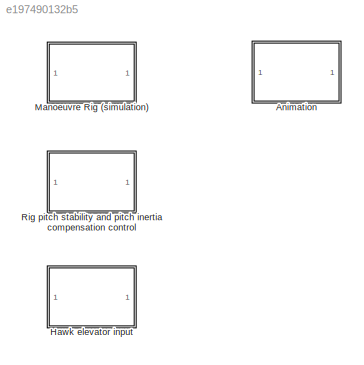
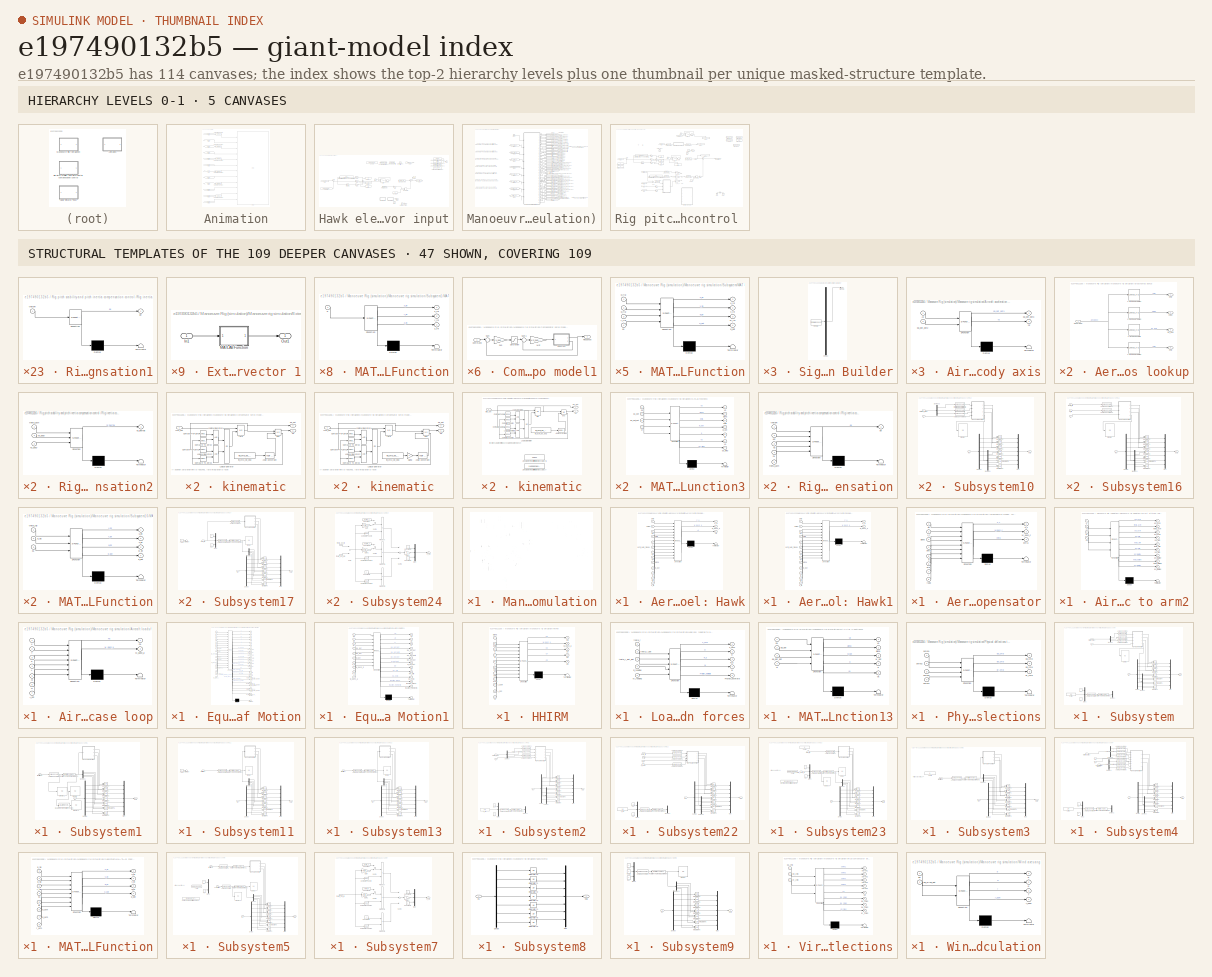
[diagram: thumbnail index - top-2 hierarchy levels (5 canvases) + 47 structural-template representatives of the remaining 109 canvases]
MODEL slx_e197490132b5
KIND model
CONFIG AbsTol = auto
CONFIG FixedStep = 0.001
CONFIG InitFcn = gen_signal\nRead_aero_spreadsheet\nmodel_params3
CONFIG MaxStep = 0.01
CONFIG MinStep = auto
CONFIG RelTol = 1e-3
CONFIG SampleTimeConstraint = Unconstrained
CONFIG Solver = ode4
CONFIG SolverMode = SingleTasking
CONFIG SolverName = ode4
CONFIG StartTime = 0.0
CONFIG StopTime = 20
BLOCK [SubSystem] Animation
  Ports = []
  RequestExecContextInheritance = off
BLOCK [From] Animation/From
  GotoTag = animation_cmp_rotation
  TagVisibility = global
BLOCK [From] Animation/From1
  GotoTag = animation_arm_rotation
  TagVisibility = global
BLOCK [From] Animation/From10
  GotoTag = animation_load_cell_rotation
  TagVisibility = global
BLOCK [From] Animation/From11
  GotoTag = animation_load_cell_translation
  TagVisibility = global
BLOCK [From] Animation/From12
  GotoTag = animation_link_rotation
  TagVisibility = global
BLOCK [From] Animation/From13
  GotoTag = animation_link_translation
  TagVisibility = global
BLOCK [From] Animation/From2
  GotoTag = animation_acm_rotation
  TagVisibility = global
BLOCK [From] Animation/From3
  GotoTag = animation_mass_rotation
  TagVisibility = global
BLOCK [From] Animation/From4
  GotoTag = animation_cmp_translation
  TagVisibility = global
BLOCK [From] Animation/From5
  GotoTag = animation_arm_translation
  TagVisibility = global
BLOCK [From] Animation/From6
  GotoTag = animation_acm_translation
  TagVisibility = global
BLOCK [From] Animation/From7
  GotoTag = animation_mass_translation
  TagVisibility = global
BLOCK [Reference] Animation/Rotation Matrix to VRML Rotation  REF=vrlib/Utilities/Rotation Matrix
to VRML Rotation
  Ports = [1, 1]
  SourceBlock = vrlib/Utilities/Rotation Matrix\nto VRML Rotation
  SourceType = Rotation Matrix to VRML Rotation
  maxzero = 1e-12
BLOCK [Reference] Animation/Rotation Matrix to VRML Rotation1  REF=vrlib/Utilities/Rotation Matrix
to VRML Rotation
  Ports = [1, 1]
  SourceBlock = vrlib/Utilities/Rotation Matrix\nto VRML Rotation
  SourceType = Rotation Matrix to VRML Rotation
  maxzero = 1e-12
BLOCK [Reference] Animation/Rotation Matrix to VRML Rotation3  REF=vrlib/Utilities/Rotation Matrix
to VRML Rotation
  Ports = [1, 1]
  SourceBlock = vrlib/Utilities/Rotation Matrix\nto VRML Rotation
  SourceType = Rotation Matrix to VRML Rotation
  maxzero = 1e-12
BLOCK [Reference] Animation/Rotation Matrix to VRML Rotation4  REF=vrlib/Utilities/Rotation Matrix
to VRML Rotation
  Ports = [1, 1]
  SourceBlock = vrlib/Utilities/Rotation Matrix\nto VRML Rotation
  SourceType = Rotation Matrix to VRML Rotation
  maxzero = 1e-12
BLOCK [Reference] Animation/Rotation Matrix to VRML Rotation5  REF=vrlib/Utilities/Rotation Matrix
to VRML Rotation
  Ports = [1, 1]
  SourceBlock = vrlib/Utilities/Rotation Matrix\nto VRML Rotation
  SourceType = Rotation Matrix to VRML Rotation
  maxzero = 1e-12
BLOCK [Reference] Animation/Rotation Matrix to VRML Rotation6  REF=vrlib/Utilities/Rotation Matrix
to VRML Rotation
  Ports = [1, 1]
  SourceBlock = vrlib/Utilities/Rotation Matrix\nto VRML Rotation
  SourceType = Rotation Matrix to VRML Rotation
  maxzero = 1e-12
BLOCK [Reference] Animation/VR Sink  REF=vrlib/VR Sink
  AllowVariableSize = off
  AutoView = on
  FieldsWritten = Compensator.rotation.4.1.1.double#Compensator.translation.3.1.1.double#Arm.rotation.4.1.1.double#Arm.translation.3.1.1.double#Aircraft_model.rotation.4.1.1.double#Aircraft_model.translation.3.1.1.double#Back_added_mass.rotation.4.1.1.double#Back_added_mass.translation.3.1.1.double#Load_cell.rotation.4.1.1.double#Load_cell.translation.3.1.1.double#Link.rotation.4.1.1.double#Link.translation.3.1.1.d...<+5ch>
  FigureProperties = {'Position', 'Name', 'Viewpoint', 'CameraBound', 'CameraDirection', 'CameraPosition', 'CameraUpVector', 'ZoomFactor', 'Antialiasing', 'Headlight', 'Lighting', 'NavPanel', 'Sound', 'StatusBar', 'Stereo3D', 'Stereo3DCameraOffset', 'Stereo3DHIT', 'ToolBar', 'Textures', 'Transparency', 'Triad', 'Wireframe', 'NavZones', 'NavMode', 'NavSpeed', 'CaptureFileFormat', 'CaptureFileName', 'Record2DCompressMet...<+706ch>
  InstantiateOnLoad = on
  Ports = [12]
  RemoteChange = off
  RemoteView = off
  SampleTime = -1
  SourceBlock = vrlib/VR Sink
  SourceType = Virtual Reality Sink
  VideoDimensions = []
  ViewEnable = on
  WorldFileName = Animation.wrl
BLOCK [SubSystem] Hawk elevator input
  Ports = []
  RequestExecContextInheritance = off
BLOCK [TransferFcn] Hawk elevator input/Butterworth filter (cutoff frequency 10Hz) + differentiating
  Denominator = [2.5330e-04 0.0225 1]
  Numerator = [1 0]
BLOCK [Reference] Hawk elevator input/Chirp Signal  REF=simulink/Sources/Chirp Signal
  Ports = [0, 1]
  SourceBlock = simulink/Sources/Chirp Signal
  SourceType = chirp
  T = 100
  VectorParams1D = on
  f1 = 0.1
  f2 = 1
BLOCK [Clock] Hawk elevator input/Clock
BLOCK [Constant] Hawk elevator input/Constant1
  Value = 2.9881840554008
BLOCK [Constant] Hawk elevator input/Constant2
  Value = 0
BLOCK [Constant] Hawk elevator input/Constant4
  Value = 2.9881840554008
BLOCK [Display] Hawk elevator input/Display2
  Decimation = 1
  Ports = [1]
BLOCK [Display] Hawk elevator input/Display3
  Decimation = 1
  Ports = [1]
BLOCK [Display] Hawk elevator input/Display4
  Decimation = 1
  Ports = [1]
BLOCK [From] Hawk elevator input/From
  GotoTag = AoA_deg
  TagVisibility = global
BLOCK [FromWorkspace] Hawk elevator input/From Workspace
  OutputAfterFinalValue = Setting to zero
  SampleTime = 0
  VariableName = signal
  ZeroCross = on
BLOCK [Gain] Hawk elevator input/Gain
  Gain = 0.2
  OutDataTypeStr = Inherit: Inherit via internal rule
  ParamDataTypeStr = Inherit: Inherit via internal rule
  SaturateOnIntegerOverflow = off
BLOCK [Gain] Hawk elevator input/Gain1
  Gain = 1-0.00001
  OutDataTypeStr = Inherit: Inherit via internal rule
  ParamDataTypeStr = Inherit: Inherit via internal rule
  SaturateOnIntegerOverflow = off
BLOCK [Gain] Hawk elevator input/Gain2
  Gain = 0.1
  OutDataTypeStr = Inherit: Inherit via internal rule
  ParamDataTypeStr = Inherit: Inherit via internal rule
  SaturateOnIntegerOverflow = off
BLOCK [Gain] Hawk elevator input/Gain3
  Gain = 2
  OutDataTypeStr = Inherit: Inherit via internal rule
  ParamDataTypeStr = Inherit: Inherit via internal rule
  SaturateOnIntegerOverflow = off
BLOCK [Gain] Hawk elevator input/Gain4
  Gain = 0.01
  OutDataTypeStr = Inherit: Inherit via internal rule
  ParamDataTypeStr = Inherit: Inherit via internal rule
  SaturateOnIntegerOverflow = off
BLOCK [Gain] Hawk elevator input/Gain5
  Gain = 0.5
  OutDataTypeStr = Inherit: Inherit via internal rule
  ParamDataTypeStr = Inherit: Inherit via internal rule
  SaturateOnIntegerOverflow = off
BLOCK [Gain] Hawk elevator input/Gain6
  Gain = 30
  OutDataTypeStr = Inherit: Inherit via internal rule
  ParamDataTypeStr = Inherit: Inherit via internal rule
  SaturateOnIntegerOverflow = off
BLOCK [Goto] Hawk elevator input/Goto2
  GotoTag = De_cmd_acm_deg
  TagVisibility = global
BLOCK [Integrator] Hawk elevator input/Integrator2
  Ports = [1, 1]
BLOCK [Constant] Hawk elevator input/Linear aero model trim
  Value = 1.165893
BLOCK [Constant] Hawk elevator input/Linear aero model trim (higher accuracy)
  Value = 1.1658924813874
BLOCK [Constant] Hawk elevator input/Linear aero model trim (higher accuracy)1
  Value = 1.1658924813874
BLOCK [Constant] Hawk elevator input/Linear aero model trim (higher accuracy)2
  Value = 3.45
BLOCK [Constant] Hawk elevator input/Linear aero model trim (higher accuracy)3
  Value = 4.4011
BLOCK [ManualSwitch] Hawk elevator input/Manual Switch
BLOCK [Memory] Hawk elevator input/Memory
BLOCK [Constant] Hawk elevator input/Nanjing aero model trim elev (deg)
  Value = -0.76130041477498
BLOCK [Constant] Hawk elevator input/Non-linear model trim
  Value = 4.054
BLOCK [Scope] Hawk elevator input/Scope
  Floating = off
  NumInputPorts = 1
  Ports = [1]
  SaveName = ScopeData7
BLOCK [SubSystem] Hawk elevator input/Signal Builder
  ClipboardFcn = sigbuilder_block('clipboard');
  CloseFcn = sigbuilder_block('close');
  ContinueFcn = sigbuilder_block('continue');
  CopyFcn = sigbuilder_block('copy');
  DeleteFcn = sigbuilder_block('delete');
  LoadFcn = sigbuilder_block('load');
  MaskHideContents = on
  ModelCloseFcn = sigbuilder_block('modelClose');
  NameChangeFcn = sigbuilder_block('namechange');
  OpenFcn = sigbuilder_block('open',[437.6 199.2 550.4 400 ]);
  PauseFcn = sigbuilder_block('pause');
  Ports = [0, 1]
  PreSaveFcn = sigbuilder_block('preSave');
  RequestExecContextInheritance = off
  StartFcn = sigbuilder_block('start');
  StopFcn = sigbuilder_block('stop');
  Tag = STV Subsys
BLOCK [Demux] Hawk elevator input/Signal Builder/Demux
  Outputs = 1
  Ports = [1, 1]
  Tag = STV Demux
BLOCK [FromWorkspace] Hawk elevator input/Signal Builder/FromWs
  SampleTime = 0
  Tag = STV FromWs
  VariableName = tuvar
  ZeroCross = on
BLOCK [Outport] Hawk elevator input/Signal Builder/Signal 1
  IconDisplay = Port number
  Tag = STV Outport
BLOCK [SubSystem] Hawk elevator input/Signal Builder1
  ClipboardFcn = sigbuilder_block('clipboard');
  CloseFcn = sigbuilder_block('close');
  ContinueFcn = sigbuilder_block('continue');
  CopyFcn = sigbuilder_block('copy');
  DeleteFcn = sigbuilder_block('delete');
  LoadFcn = sigbuilder_block('load');
  MaskHideContents = on
  ModelCloseFcn = sigbuilder_block('modelClose');
  NameChangeFcn = sigbuilder_block('namechange');
  OpenFcn = sigbuilder_block('open',[437.6 199.2 550.4 400 ]);
  PauseFcn = sigbuilder_block('pause');
  Ports = [0, 1]
  PreSaveFcn = sigbuilder_block('preSave');
  RequestExecContextInheritance = off
  StartFcn = sigbuilder_block('start');
  StopFcn = sigbuilder_block('stop');
  Tag = STV Subsys
BLOCK [Demux] Hawk elevator input/Signal Builder1/Demux
  Outputs = 1
  Ports = [1, 1]
  Tag = STV Demux
BLOCK [FromWorkspace] Hawk elevator input/Signal Builder1/FromWs
  SampleTime = 0
  Tag = STV FromWs
  VariableName = tuvar
  ZeroCross = on
BLOCK [Outport] Hawk elevator input/Signal Builder1/Signal 1
  IconDisplay = Port number
  Tag = STV Outport
BLOCK [Step] Hawk elevator input/Step1
  After = 40-4.4011
  SampleTime = 0
BLOCK [Sum] Hawk elevator input/Sum
  IconShape = round
  InputSameDT = off
  Inputs = |++
  OutDataTypeStr = Inherit: Inherit via internal rule
  Ports = [2, 1]
  SaturateOnIntegerOverflow = off
BLOCK [Sum] Hawk elevator input/Sum1
  IconShape = round
  InputSameDT = off
  Inputs = +++
  OutDataTypeStr = Inherit: Inherit via internal rule
  Ports = [3, 1]
  SaturateOnIntegerOverflow = off
BLOCK [Sum] Hawk elevator input/Sum2
  IconShape = round
  InputSameDT = off
  Inputs = |+-
  OutDataTypeStr = Inherit: Inherit via internal rule
  Ports = [2, 1]
  SaturateOnIntegerOverflow = off
BLOCK [Sum] Hawk elevator input/Sum3
  IconShape = round
  InputSameDT = off
  Inputs = +-+
  OutDataTypeStr = Inherit: Inherit via internal rule
  Ports = [3, 1]
  SaturateOnIntegerOverflow = off
BLOCK [Switch] Hawk elevator input/Switch
  Criteria = u2 > Threshold
  InputSameDT = off
  SaturateOnIntegerOverflow = off
  Threshold = 40
BLOCK [Constant] Hawk elevator input/ini_acm_de_deg
  Value = ini_acm_de_deg
BLOCK [SubSystem] Manoeuvre Rig (simulation)
  Ports = []
  RequestExecContextInheritance = off
BLOCK [Clock] Manoeuvre Rig (simulation)/Clock
BLOCK [From] Manoeuvre Rig (simulation)/From1
  GotoTag = Da_cmd_acm_deg
BLOCK [From] Manoeuvre Rig (simulation)/From2
  GotoTag = Dae_cmd_acm_deg
BLOCK [From] Manoeuvre Rig (simulation)/From3
  GotoTag = De_cmd_acm_deg
  TagVisibility = global
BLOCK [From] Manoeuvre Rig (simulation)/From4
  GotoTag = Dr_cmd_acm_deg
BLOCK [From] Manoeuvre Rig (simulation)/From5
  GotoTag = Da_cmd_cmp_deg
BLOCK [From] Manoeuvre Rig (simulation)/From6
  GotoTag = De_cmd_cmp_deg
  TagVisibility = global
BLOCK [From] Manoeuvre Rig (simulation)/From7
  GotoTag = Dr_cmd_cmp_deg
BLOCK [From] Manoeuvre Rig (simulation)/From8
  GotoTag = extra_outputs
BLOCK [Goto] Manoeuvre Rig (simulation)/Goto
  GotoTag = Gx_acm_deg_sec
  TagVisibility = global
BLOCK [Goto] Manoeuvre Rig (simulation)/Goto1
  GotoTag = Gy_acm_deg_sec
  TagVisibility = global
BLOCK [Goto] Manoeuvre Rig (simulation)/Goto10
  GotoTag = yaw_acm_deg
  TagVisibility = global
BLOCK [Goto] Manoeuvre Rig (simulation)/Goto11
  GotoTag = yawrate_acm_deg_sec
  TagVisibility = global
BLOCK [Goto] Manoeuvre Rig (simulation)/Goto12
  GotoTag = T_acm_sec
  TagVisibility = global
BLOCK [Goto] Manoeuvre Rig (simulation)/Goto14
  GotoTag = roll_rig_deg
  TagVisibility = global
BLOCK [Goto] Manoeuvre Rig (simulation)/Goto15
  GotoTag = rollrate_rig_deg_sec
  TagVisibility = global
BLOCK [Goto] Manoeuvre Rig (simulation)/Goto16
  GotoTag = pitch_rig_deg
  TagVisibility = global
BLOCK [Goto] Manoeuvre Rig (simulation)/Goto17
  GotoTag = pitchrate_rig_deg_sec
  TagVisibility = global
BLOCK [Goto] Manoeuvre Rig (simulation)/Goto18
  GotoTag = yaw_rig_deg
  TagVisibility = global
BLOCK [Goto] Manoeuvre Rig (simulation)/Goto19
  GotoTag = yawrate_rig_deg_sec
  TagVisibility = global
BLOCK [Goto] Manoeuvre Rig (simulation)/Goto2
  GotoTag = Gz_acm_deg_sec
  TagVisibility = global
BLOCK [Goto] Manoeuvre Rig (simulation)/Goto20
  GotoTag = delta_al_c_deg
  TagVisibility = global
BLOCK [Goto] Manoeuvre Rig (simulation)/Goto21
  GotoTag = delta_al_deg
  TagVisibility = global
BLOCK [Goto] Manoeuvre Rig (simulation)/Goto22
  GotoTag = delta_ar_c_deg
  TagVisibility = global
BLOCK [Goto] Manoeuvre Rig (simulation)/Goto23
  GotoTag = delta_ar_deg
  TagVisibility = global
BLOCK [Goto] Manoeuvre Rig (simulation)/Goto24
  GotoTag = delta_r_c_deg
  TagVisibility = global
BLOCK [Goto] Manoeuvre Rig (simulation)/Goto25
  GotoTag = delta_r_deg
  TagVisibility = global
BLOCK [Goto] Manoeuvre Rig (simulation)/Goto26
  GotoTag = delta_el_c_deg
  TagVisibility = global
BLOCK [Goto] Manoeuvre Rig (simulation)/Goto27
  GotoTag = delta_el_deg
  TagVisibility = global
BLOCK [Goto] Manoeuvre Rig (simulation)/Goto28
  GotoTag = delta_er_c_deg
  TagVisibility = global
BLOCK [Goto] Manoeuvre Rig (simulation)/Goto29
  GotoTag = delta_er_deg
  TagVisibility = global
BLOCK [Goto] Manoeuvre Rig (simulation)/Goto3
  GotoTag = Nx_acm
  TagVisibility = global
BLOCK [Goto] Manoeuvre Rig (simulation)/Goto30
  GotoTag = delta_cmp1_c_deg
  TagVisibility = global
BLOCK [Goto] Manoeuvre Rig (simulation)/Goto31
  GotoTag = delta_cmp1_deg
  TagVisibility = global
BLOCK [Goto] Manoeuvre Rig (simulation)/Goto32
  GotoTag = delta_cmp2_c_deg
  TagVisibility = global
BLOCK [Goto] Manoeuvre Rig (simulation)/Goto33
  GotoTag = delta_cmp2_deg
  TagVisibility = global
BLOCK [Goto] Manoeuvre Rig (simulation)/Goto34
  GotoTag = delta_cmp3_c_deg
  TagVisibility = global
BLOCK [Goto] Manoeuvre Rig (simulation)/Goto35
  GotoTag = delta_cmp3_deg
  TagVisibility = global
BLOCK [Goto] Manoeuvre Rig (simulation)/Goto36
  GotoTag = delta_cmp4_c_deg
  TagVisibility = global
BLOCK [Goto] Manoeuvre Rig (simulation)/Goto37
  GotoTag = delta_cmp4_deg
  TagVisibility = global
BLOCK [Goto] Manoeuvre Rig (simulation)/Goto38
  GotoTag = windspeed_mps
  TagVisibility = global
BLOCK [Goto] Manoeuvre Rig (simulation)/Goto4
  GotoTag = Ny_acm
  TagVisibility = global
BLOCK [Goto] Manoeuvre Rig (simulation)/Goto40
  GotoTag = AoA_deg
  TagVisibility = global
BLOCK [Goto] Manoeuvre Rig (simulation)/Goto41
  GotoTag = AoS_deg
  TagVisibility = global
BLOCK [Goto] Manoeuvre Rig (simulation)/Goto42
  GotoTag = roll_ac_deg
  TagVisibility = global
BLOCK [Goto] Manoeuvre Rig (simulation)/Goto43
  GotoTag = pitch_ac_deg
  TagVisibility = global
BLOCK [Goto] Manoeuvre Rig (simulation)/Goto5
  GotoTag = Nz_acm
  TagVisibility = global
BLOCK [Goto] Manoeuvre Rig (simulation)/Goto6
  GotoTag = roll_acm_deg
  TagVisibility = global
BLOCK [Goto] Manoeuvre Rig (simulation)/Goto7
  GotoTag = rollrate_acm_deg_sec
  TagVisibility = global
BLOCK [Goto] Manoeuvre Rig (simulation)/Goto8
  GotoTag = pitch_acm_deg
  TagVisibility = global
BLOCK [Goto] Manoeuvre Rig (simulation)/Goto9
  GotoTag = pitchrate_acm_deg_sec
  TagVisibility = global
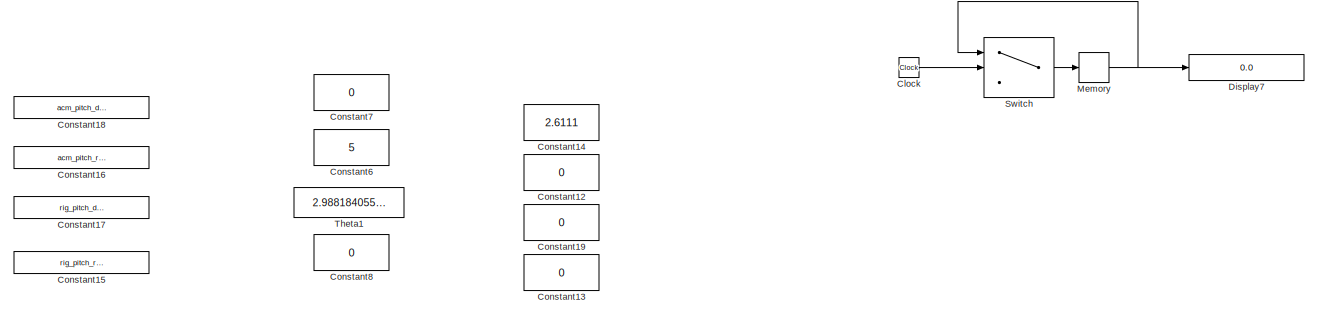
[diagram: Manoeuvre Rig (simulation)/Manoeuvre rig simulation - part 1/30, top left region]
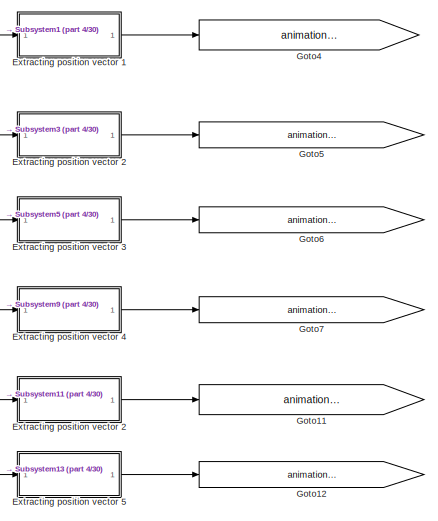
[diagram: Manoeuvre Rig (simulation)/Manoeuvre rig simulation - part 2/30, top left region]
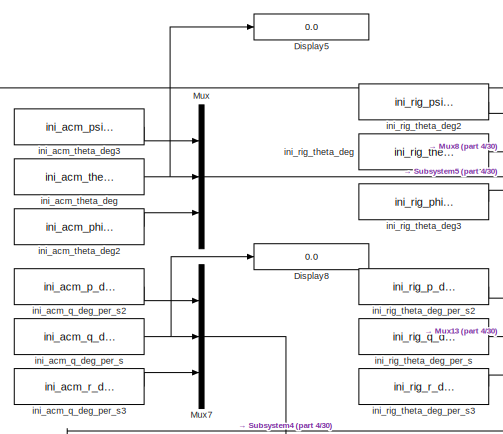
[diagram: Manoeuvre Rig (simulation)/Manoeuvre rig simulation - part 3/30, top left region]
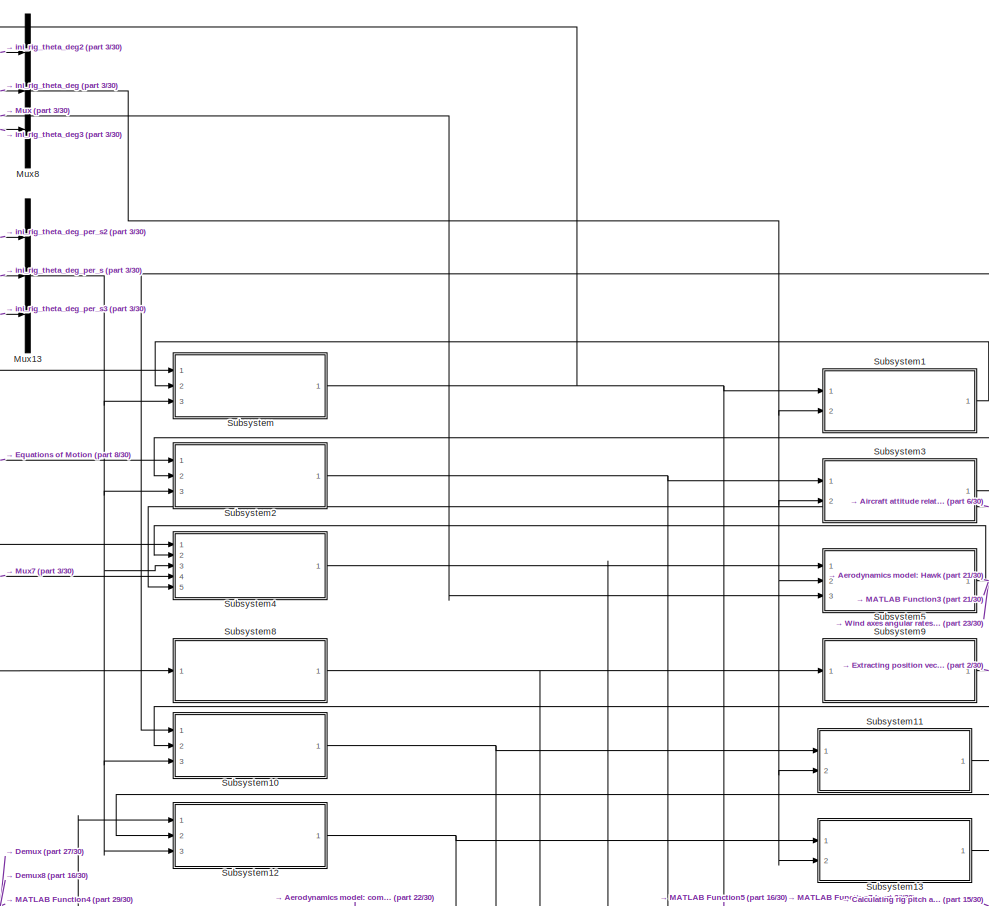
[diagram: Manoeuvre Rig (simulation)/Manoeuvre rig simulation - part 4/30, top left region]
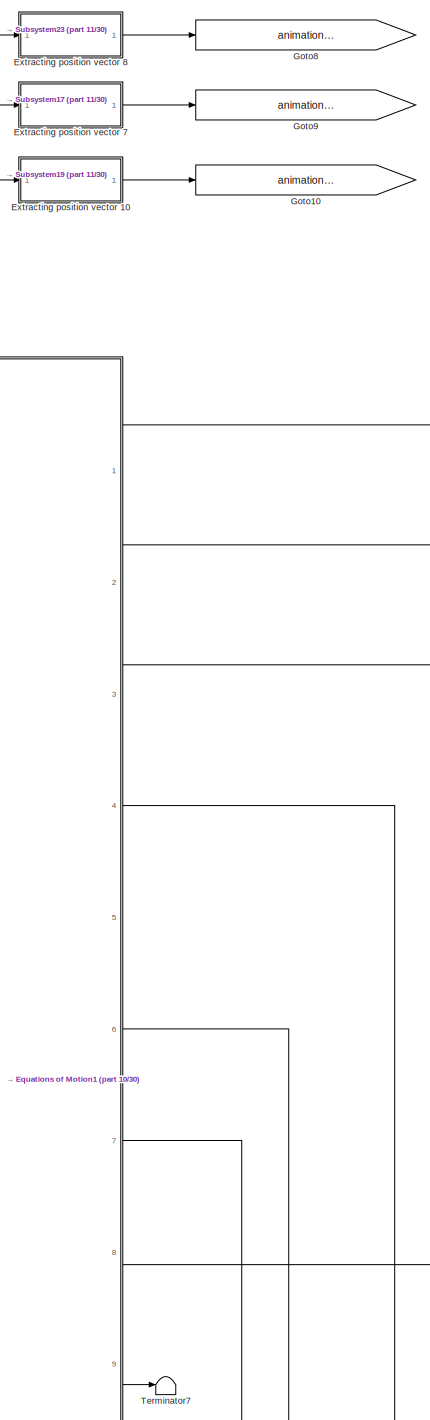
[diagram: Manoeuvre Rig (simulation)/Manoeuvre rig simulation - part 5/30, top right region]
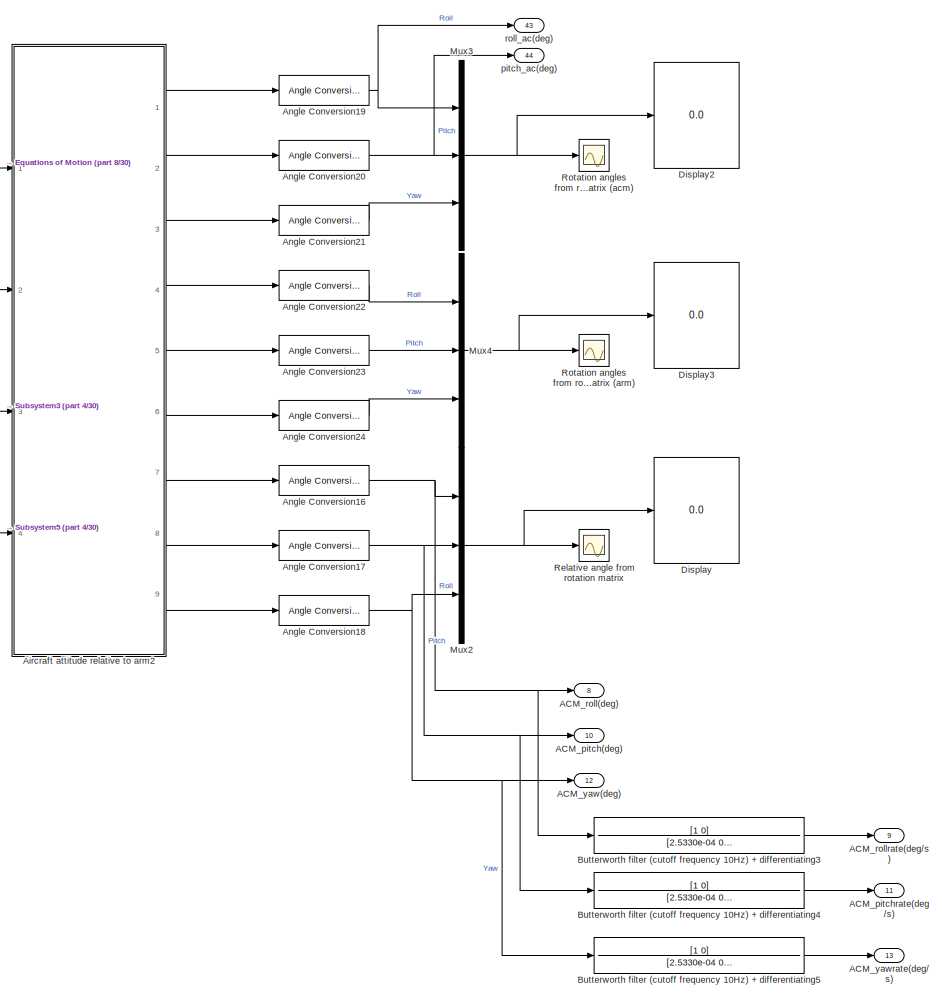
[diagram: Manoeuvre Rig (simulation)/Manoeuvre rig simulation - part 6/30, top center region]
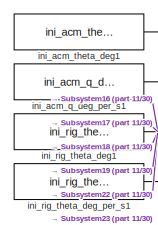
[diagram: Manoeuvre Rig (simulation)/Manoeuvre rig simulation - part 7/30, top center region]
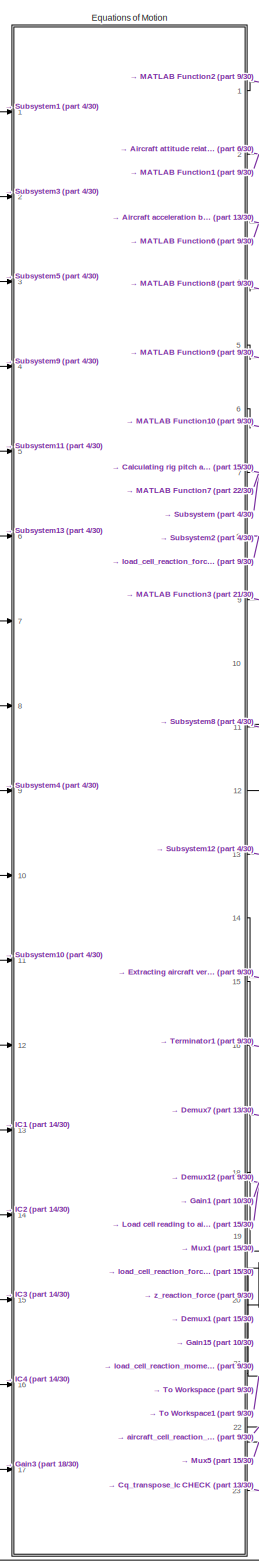
[diagram: Manoeuvre Rig (simulation)/Manoeuvre rig simulation - part 8/30, top left region]
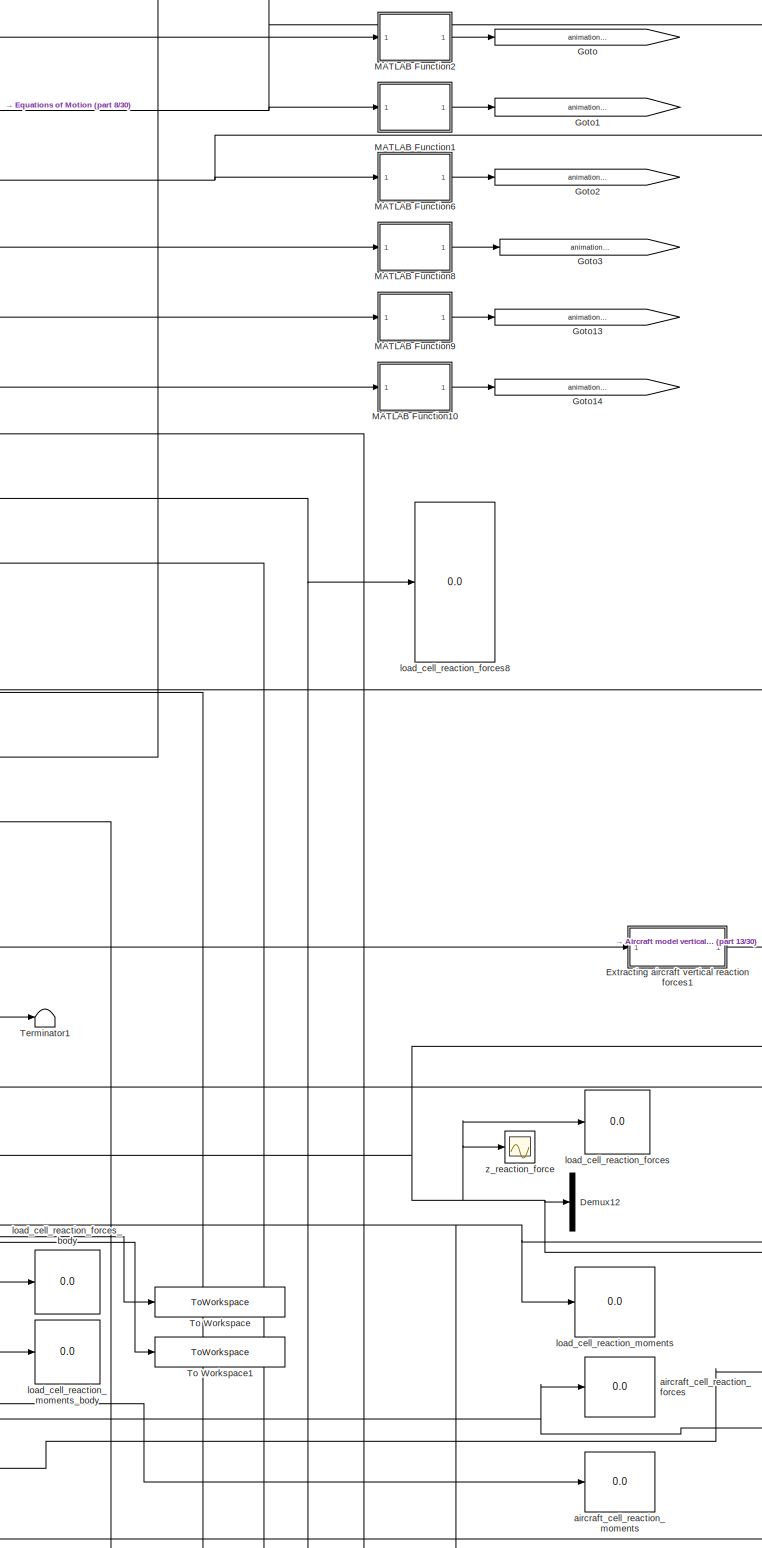
[diagram: Manoeuvre Rig (simulation)/Manoeuvre rig simulation - part 9/30, top left region]
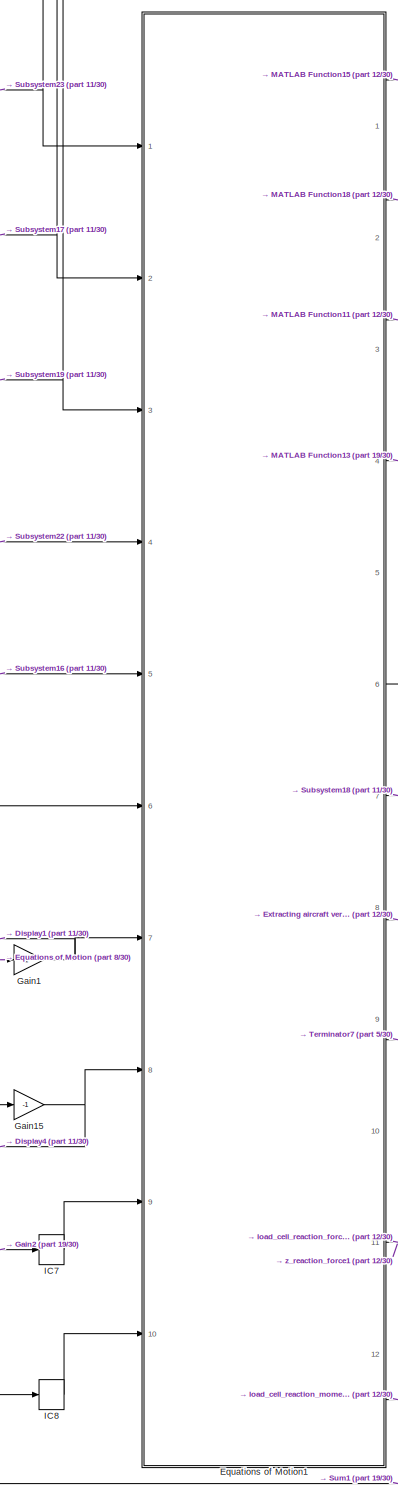
[diagram: Manoeuvre Rig (simulation)/Manoeuvre rig simulation - part 10/30, top right region]
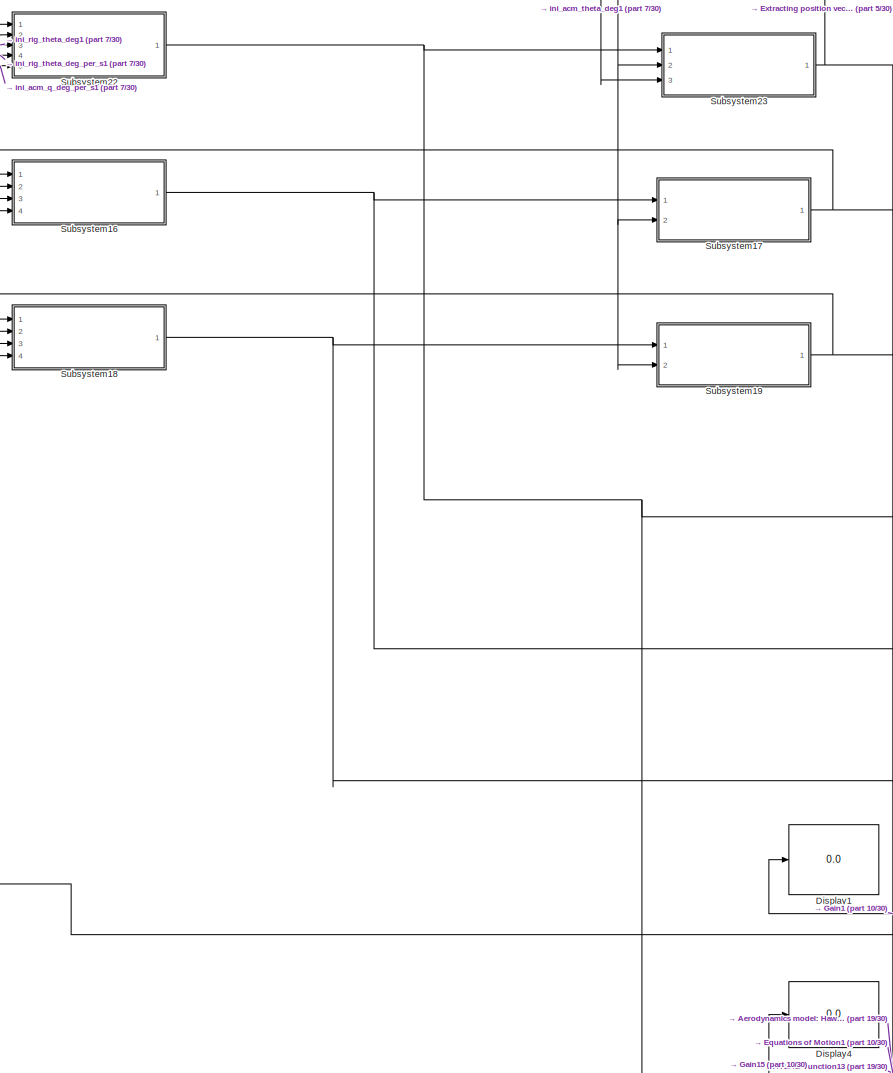
[diagram: Manoeuvre Rig (simulation)/Manoeuvre rig simulation - part 11/30, top right region]
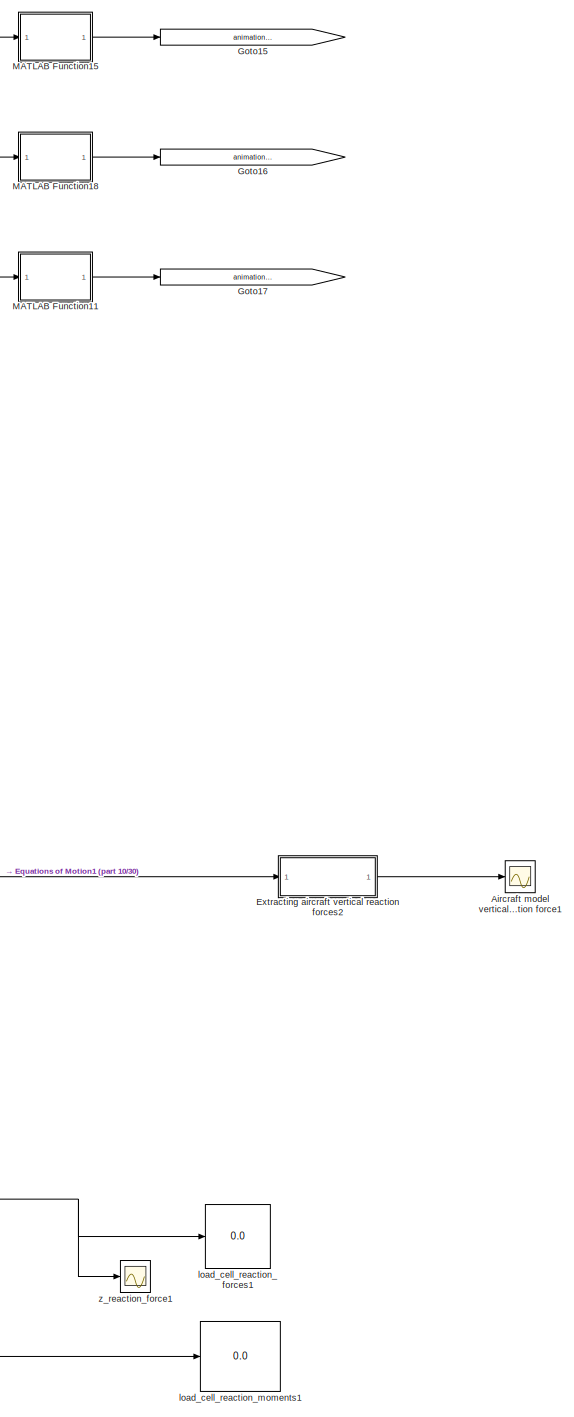
[diagram: Manoeuvre Rig (simulation)/Manoeuvre rig simulation - part 12/30, top right region]
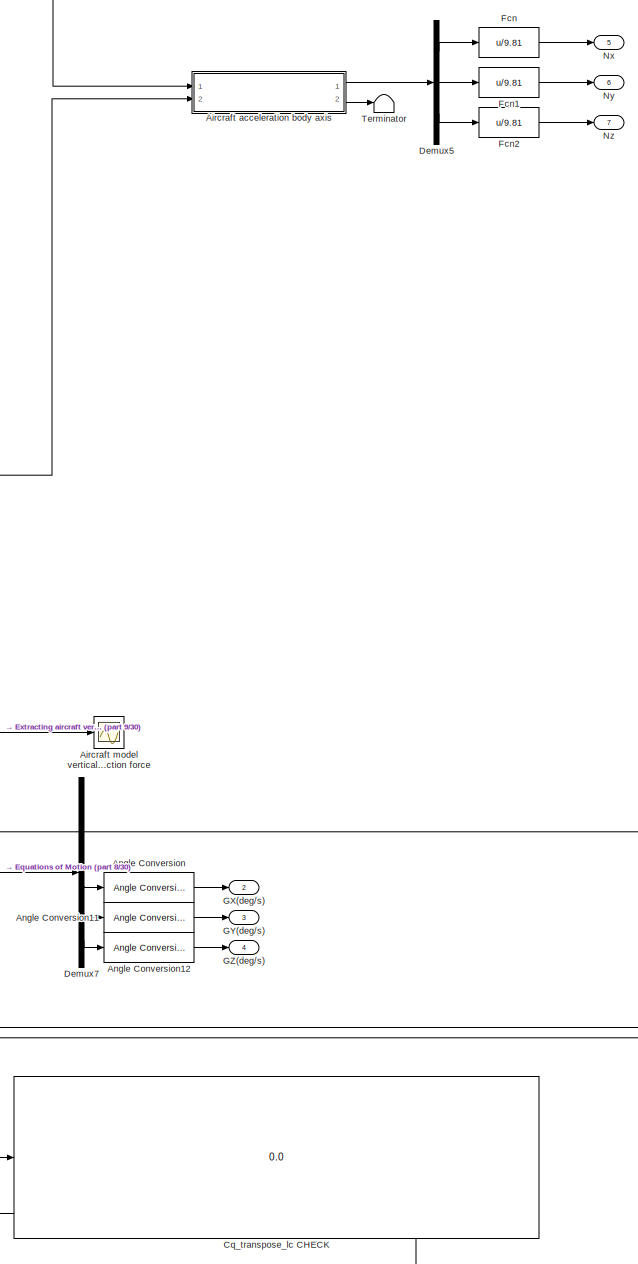
[diagram: Manoeuvre Rig (simulation)/Manoeuvre rig simulation - part 13/30, top center region]
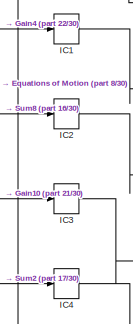
[diagram: Manoeuvre Rig (simulation)/Manoeuvre rig simulation - part 14/30, top left region]
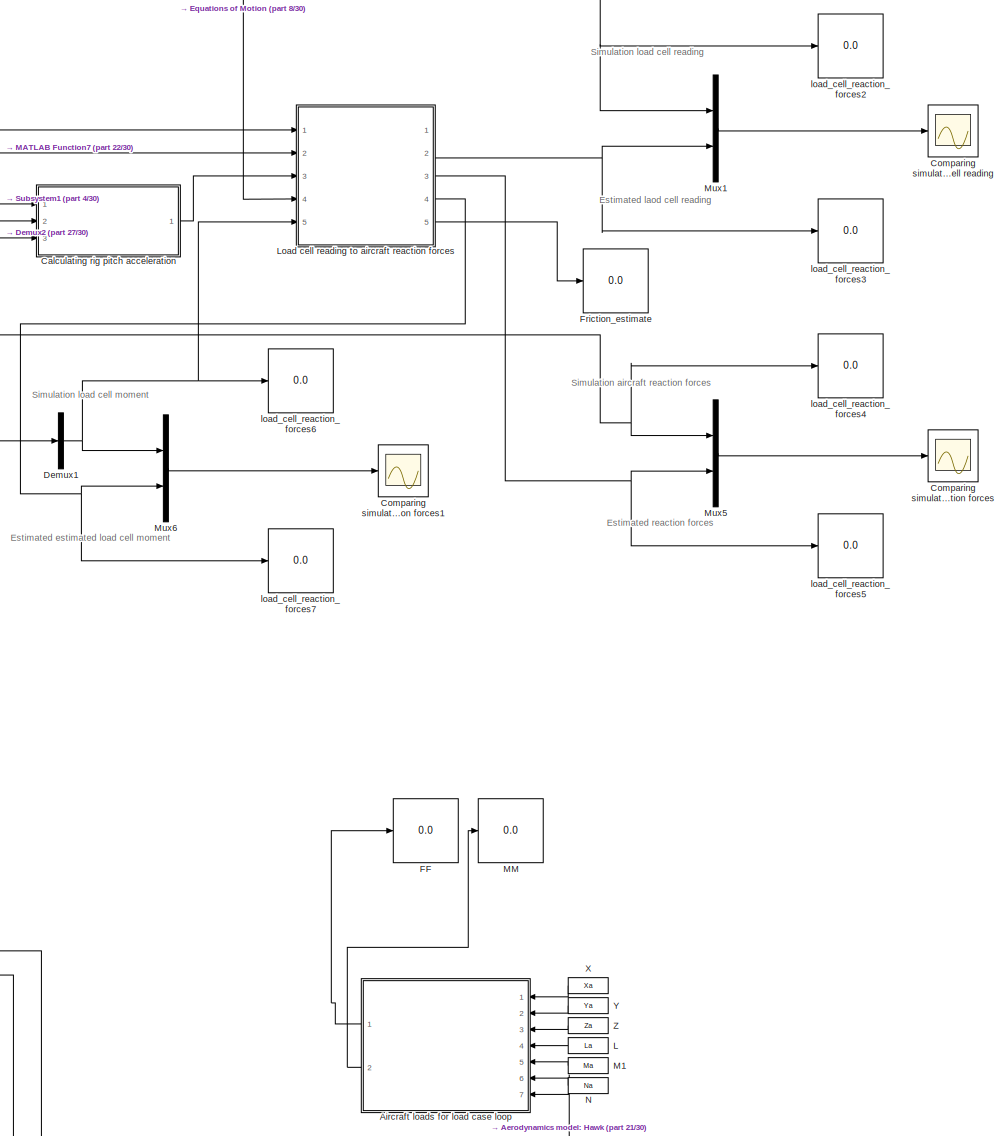
[diagram: Manoeuvre Rig (simulation)/Manoeuvre rig simulation - part 15/30, central region]
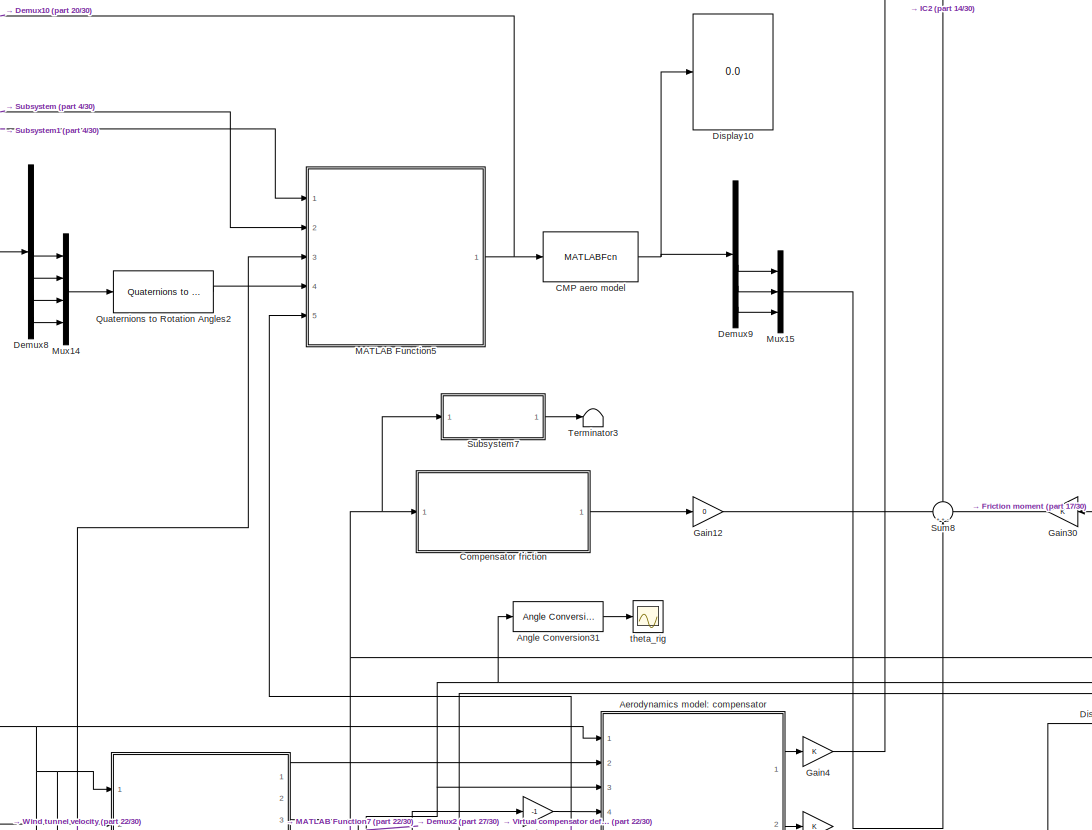
[diagram: Manoeuvre Rig (simulation)/Manoeuvre rig simulation - part 16/30, middle left region]
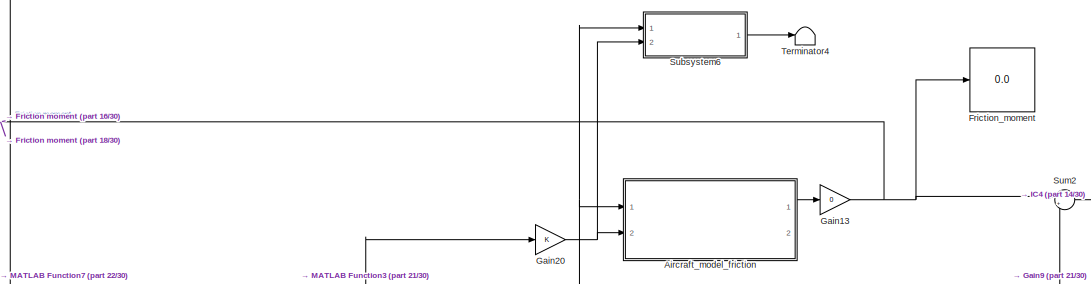
[diagram: Manoeuvre Rig (simulation)/Manoeuvre rig simulation - part 17/30, central region]
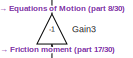
[diagram: Manoeuvre Rig (simulation)/Manoeuvre rig simulation - part 18/30, middle left region]
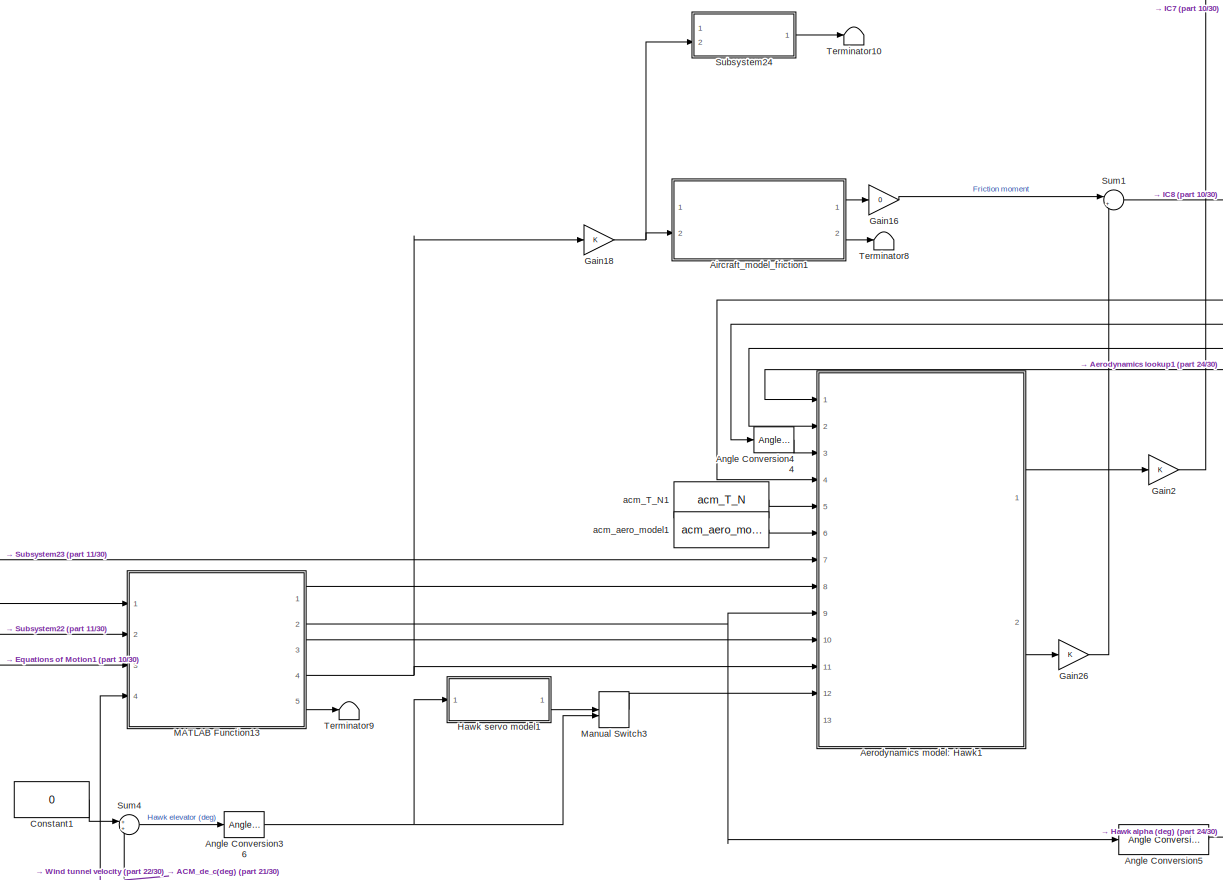
[diagram: Manoeuvre Rig (simulation)/Manoeuvre rig simulation - part 19/30, middle right region]
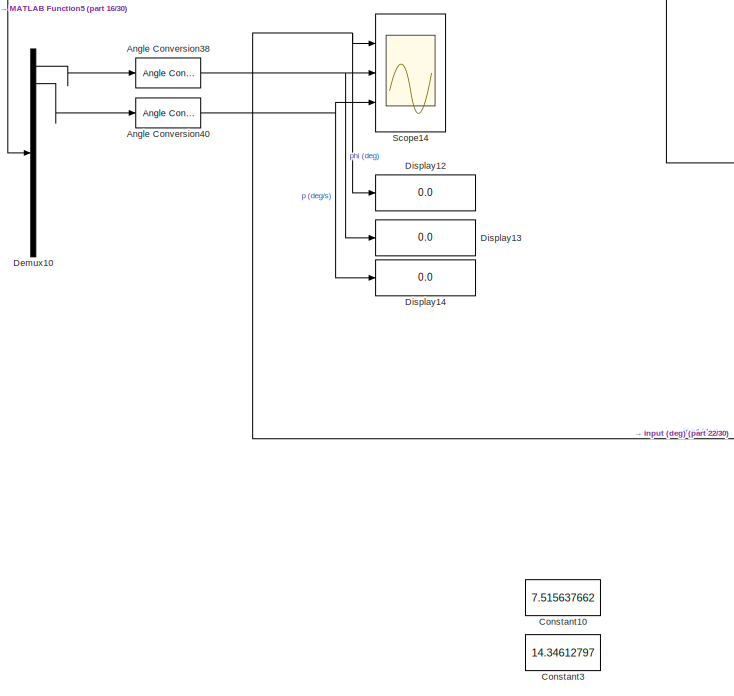
[diagram: Manoeuvre Rig (simulation)/Manoeuvre rig simulation - part 20/30, middle left region]
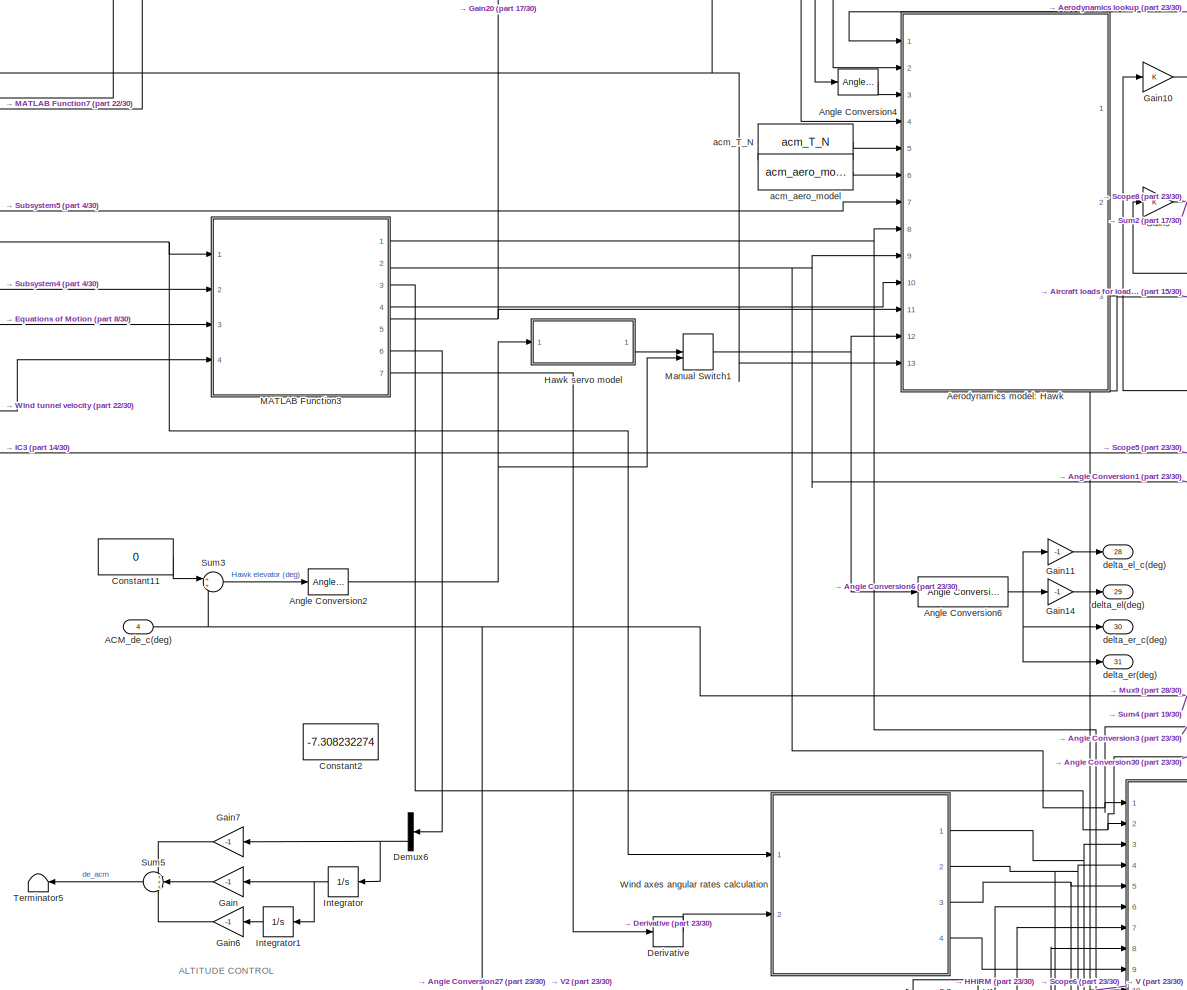
[diagram: Manoeuvre Rig (simulation)/Manoeuvre rig simulation - part 21/30, middle left region]
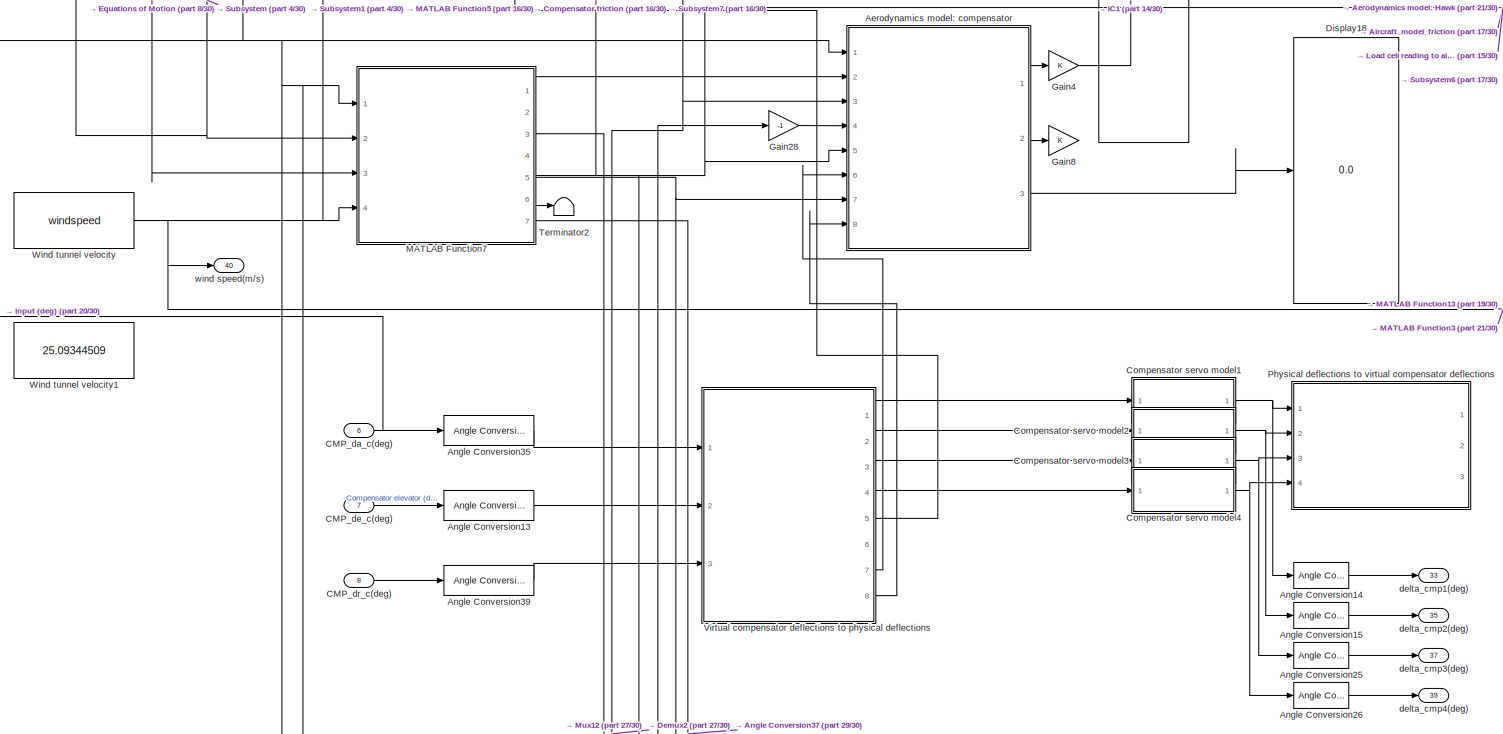
[diagram: Manoeuvre Rig (simulation)/Manoeuvre rig simulation - part 22/30, middle left region]
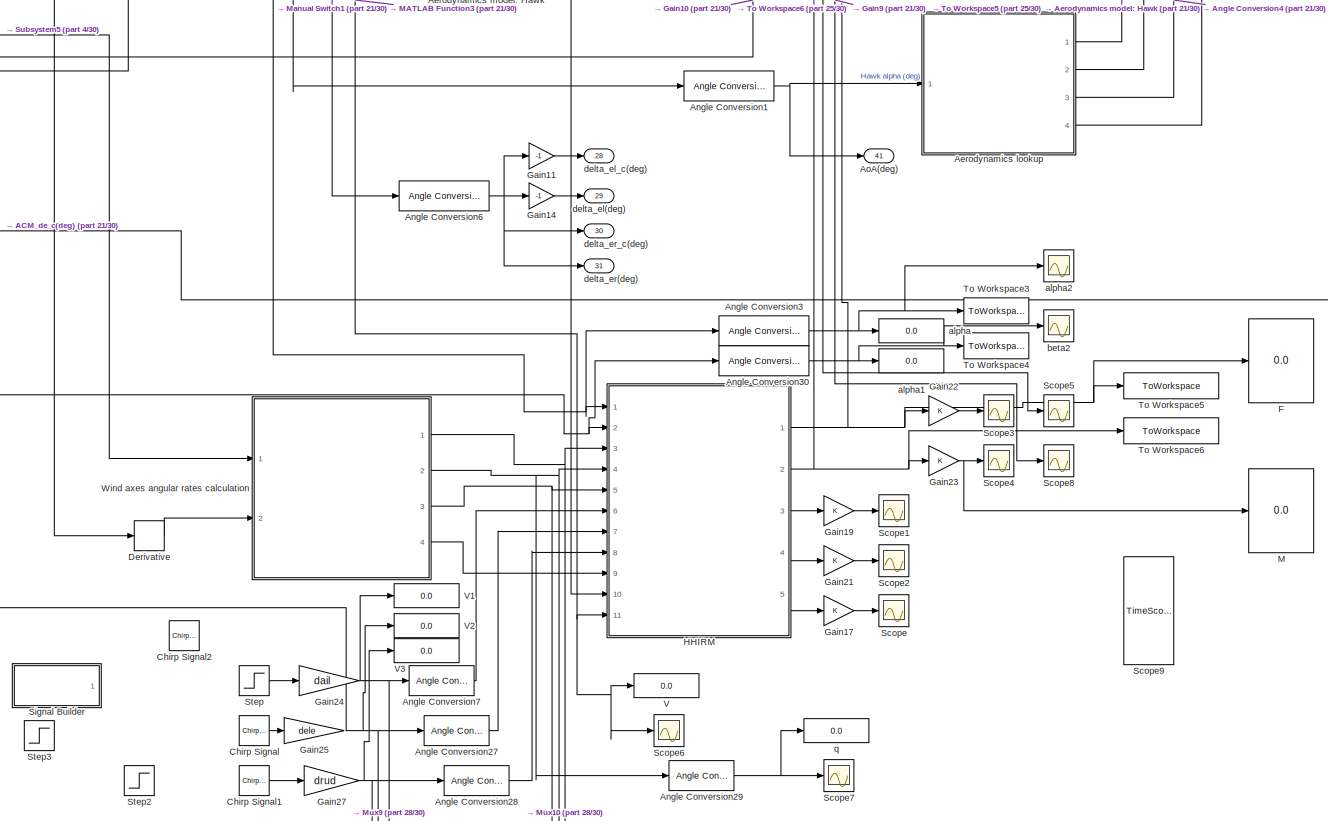
[diagram: Manoeuvre Rig (simulation)/Manoeuvre rig simulation - part 23/30, central region]
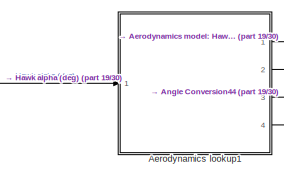
[diagram: Manoeuvre Rig (simulation)/Manoeuvre rig simulation - part 24/30, middle right region]
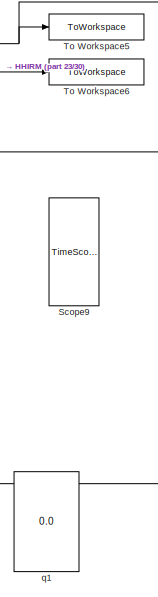
[diagram: Manoeuvre Rig (simulation)/Manoeuvre rig simulation - part 25/30, central region]
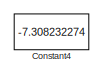
[diagram: Manoeuvre Rig (simulation)/Manoeuvre rig simulation - part 26/30, middle right region]
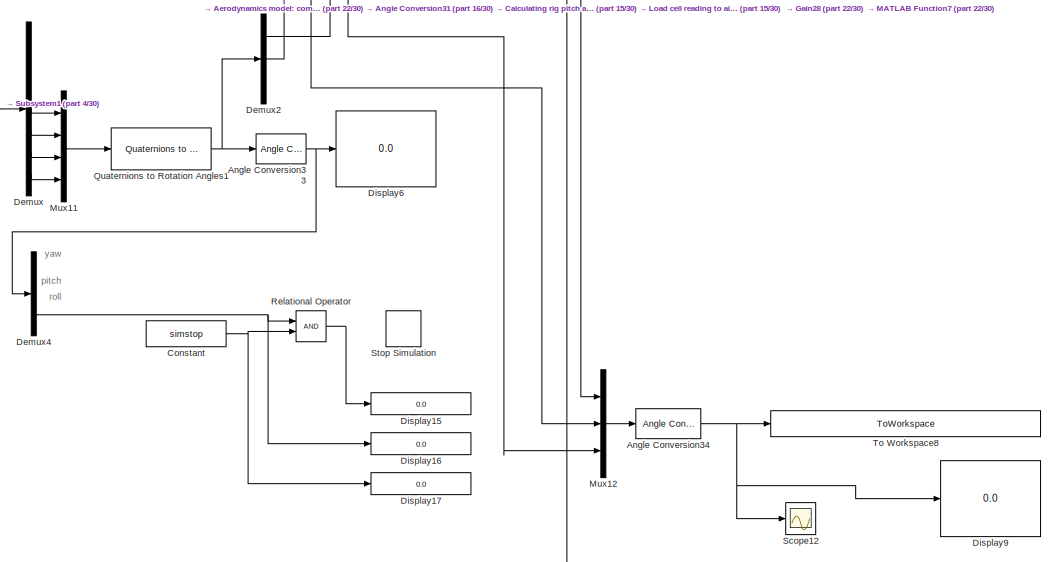
[diagram: Manoeuvre Rig (simulation)/Manoeuvre rig simulation - part 27/30, middle left region]
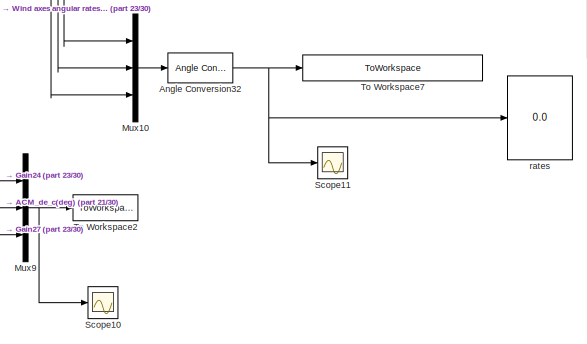
[diagram: Manoeuvre Rig (simulation)/Manoeuvre rig simulation - part 28/30, bottom center region]
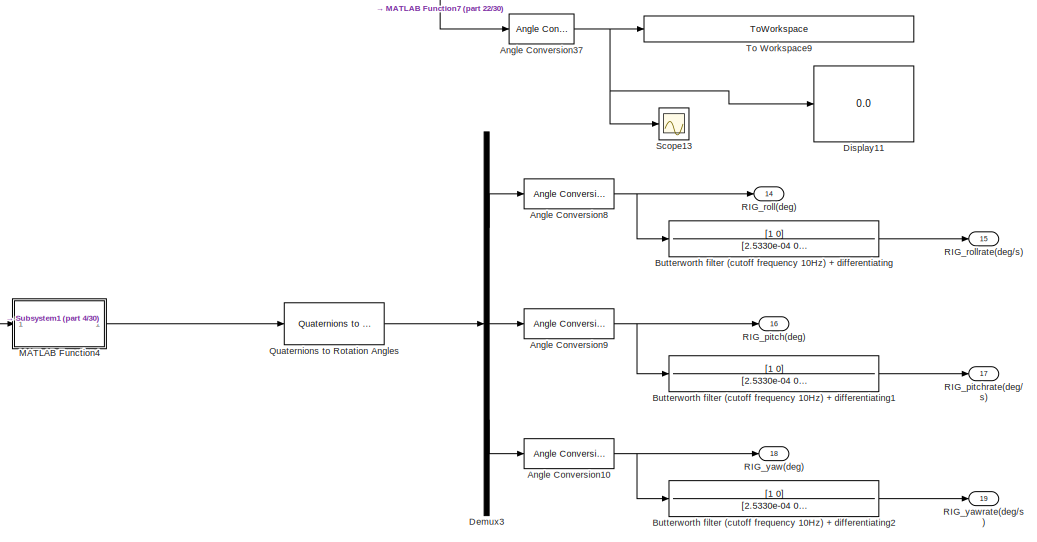
[diagram: Manoeuvre Rig (simulation)/Manoeuvre rig simulation - part 29/30, bottom left region]
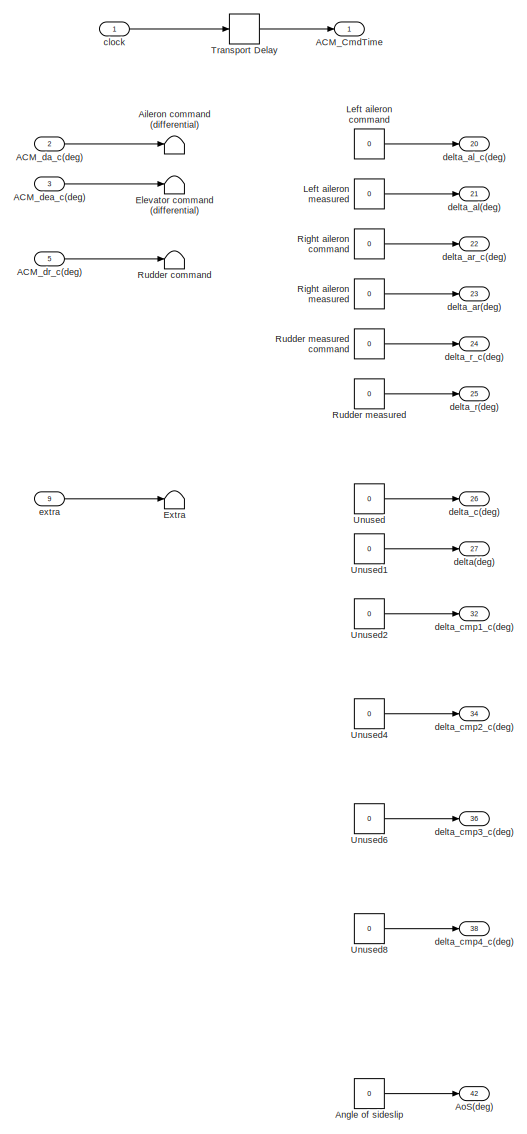
[diagram: Manoeuvre Rig (simulation)/Manoeuvre rig simulation - part 30/30, bottom left region]
BLOCK [SubSystem] Manoeuvre Rig (simulation)/Manoeuvre rig simulation
  Ports = [9, 44]
  RequestExecContextInheritance = off
BLOCK [Outport] Manoeuvre Rig (simulation)/Manoeuvre rig simulation/ACM_CmdTime
  IconDisplay = Port number
BLOCK [Inport] Manoeuvre Rig (simulation)/Manoeuvre rig simulation/ACM_da_c(deg)
  IconDisplay = Port number
  Port = 2
BLOCK [Inport] Manoeuvre Rig (simulation)/Manoeuvre rig simulation/ACM_de_c(deg)
  IconDisplay = Port number
  Port = 4
BLOCK [Inport] Manoeuvre Rig (simulation)/Manoeuvre rig simulation/ACM_dea_c(deg)
  IconDisplay = Port number
  Port = 3
BLOCK [Inport] Manoeuvre Rig (simulation)/Manoeuvre rig simulation/ACM_dr_c(deg)
  IconDisplay = Port number
  Port = 5
BLOCK [Outport] Manoeuvre Rig (simulation)/Manoeuvre rig simulation/ACM_pitch(deg)
  IconDisplay = Port number
  Port = 10
BLOCK [Outport] Manoeuvre Rig (simulation)/Manoeuvre rig simulation/ACM_pitchrate(deg//s)
  IconDisplay = Port number
  Port = 11
BLOCK [Outport] Manoeuvre Rig (simulation)/Manoeuvre rig simulation/ACM_roll(deg)
  IconDisplay = Port number
  Port = 8
BLOCK [Outport] Manoeuvre Rig (simulation)/Manoeuvre rig simulation/ACM_rollrate(deg//s)
  IconDisplay = Port number
  Port = 9
BLOCK [Outport] Manoeuvre Rig (simulation)/Manoeuvre rig simulation/ACM_yaw(deg)
  IconDisplay = Port number
  Port = 12
BLOCK [Outport] Manoeuvre Rig (simulation)/Manoeuvre rig simulation/ACM_yawrate(deg//s)
  IconDisplay = Port number
  Port = 13
BLOCK [SubSystem] Manoeuvre Rig (simulation)/Manoeuvre rig simulation/Aerodynamics lookup
  Commented = on
  Ports = [1, 4]
  RequestExecContextInheritance = off
BLOCK [Lookup_n-D] Manoeuvre Rig (simulation)/Manoeuvre rig simulation/Aerodynamics lookup/1-D Lookup Table
  BreakpointsForDimension1 = breakpoints1
  DiagnosticForOutOfRangeInput = Warning
  InternalRulePriority = Speed
  NumberOfTableDimensions = 1
  Ports = [1, 1]
  RndMeth = Simplest
  Table = de
BLOCK [Lookup_n-D] Manoeuvre Rig (simulation)/Manoeuvre rig simulation/Aerodynamics lookup/1-D Lookup Table1
  BreakpointsForDimension1 = breakpoints1
  DiagnosticForOutOfRangeInput = Warning
  InternalRulePriority = Speed
  NumberOfTableDimensions = 1
  Ports = [1, 1]
  RndMeth = Simplest
  Table = Cm0
BLOCK [Lookup_n-D] Manoeuvre Rig (simulation)/Manoeuvre rig simulation/Aerodynamics lookup/1-D Lookup Table2
  BreakpointsForDimension1 = breakpoints1
  DiagnosticForOutOfRangeInput = Warning
  InternalRulePriority = Speed
  NumberOfTableDimensions = 1
  Ports = [1, 1]
  RndMeth = Simplest
  Table = Cmde
BLOCK [Lookup_n-D] Manoeuvre Rig (simulation)/Manoeuvre rig simulation/Aerodynamics lookup/1-D Lookup Table3
  BreakpointsForDimension1 = breakpoints1
  DiagnosticForOutOfRangeInput = Warning
  InternalRulePriority = Speed
  NumberOfTableDimensions = 1
  Ports = [1, 1]
  RndMeth = Simplest
  Table = Cmq
BLOCK [Inport] Manoeuvre Rig (simulation)/Manoeuvre rig simulation/Aerodynamics lookup/Alpha (deg)
  IconDisplay = Port number
BLOCK [Outport] Manoeuvre Rig (simulation)/Manoeuvre rig simulation/Aerodynamics lookup/Cm0
  IconDisplay = Port number
BLOCK [Outport] Manoeuvre Rig (simulation)/Manoeuvre rig simulation/Aerodynamics lookup/Cmde
  IconDisplay = Port number
  Port = 2
BLOCK [Outport] Manoeuvre Rig (simulation)/Manoeuvre rig simulation/Aerodynamics lookup/Cmq
  IconDisplay = Port number
  Port = 4
BLOCK [Outport] Manoeuvre Rig (simulation)/Manoeuvre rig simulation/Aerodynamics lookup/de_deg
  IconDisplay = Port number
  Port = 3
BLOCK [SubSystem] Manoeuvre Rig (simulation)/Manoeuvre rig simulation/Aerodynamics lookup1
  Commented = on
  Ports = [1, 4]
  RequestExecContextInheritance = off
BLOCK [Lookup_n-D] Manoeuvre Rig (simulation)/Manoeuvre rig simulation/Aerodynamics lookup1/1-D Lookup Table
  BreakpointsForDimension1 = breakpoints1
  DiagnosticForOutOfRangeInput = Warning
  InternalRulePriority = Speed
  NumberOfTableDimensions = 1
  Ports = [1, 1]
  RndMeth = Simplest
  Table = de
BLOCK [Lookup_n-D] Manoeuvre Rig (simulation)/Manoeuvre rig simulation/Aerodynamics lookup1/1-D Lookup Table1
  BreakpointsForDimension1 = breakpoints1
  DiagnosticForOutOfRangeInput = Warning
  InternalRulePriority = Speed
  NumberOfTableDimensions = 1
  Ports = [1, 1]
  RndMeth = Simplest
  Table = Cm0
BLOCK [Lookup_n-D] Manoeuvre Rig (simulation)/Manoeuvre rig simulation/Aerodynamics lookup1/1-D Lookup Table2
  BreakpointsForDimension1 = breakpoints1
  DiagnosticForOutOfRangeInput = Warning
  InternalRulePriority = Speed
  NumberOfTableDimensions = 1
  Ports = [1, 1]
  RndMeth = Simplest
  Table = Cmde
BLOCK [Lookup_n-D] Manoeuvre Rig (simulation)/Manoeuvre rig simulation/Aerodynamics lookup1/1-D Lookup Table3
  BreakpointsForDimension1 = breakpoints1
  DiagnosticForOutOfRangeInput = Warning
  InternalRulePriority = Speed
  NumberOfTableDimensions = 1
  Ports = [1, 1]
  RndMeth = Simplest
  Table = Cmq
BLOCK [Inport] Manoeuvre Rig (simulation)/Manoeuvre rig simulation/Aerodynamics lookup1/Alpha (deg)
  IconDisplay = Port number
BLOCK [Outport] Manoeuvre Rig (simulation)/Manoeuvre rig simulation/Aerodynamics lookup1/Cm0
  IconDisplay = Port number
BLOCK [Outport] Manoeuvre Rig (simulation)/Manoeuvre rig simulation/Aerodynamics lookup1/Cmde
  IconDisplay = Port number
  Port = 2
BLOCK [Outport] Manoeuvre Rig (simulation)/Manoeuvre rig simulation/Aerodynamics lookup1/Cmq
  IconDisplay = Port number
  Port = 4
BLOCK [Outport] Manoeuvre Rig (simulation)/Manoeuvre rig simulation/Aerodynamics lookup1/de_deg
  IconDisplay = Port number
  Port = 3
BLOCK [SubSystem] Manoeuvre Rig (simulation)/Manoeuvre rig simulation/Aerodynamics model: Hawk
  ErrorFcn = Stateflow.Translate.translate
  MinAlgLoopOccurrences = on
  PermitHierarchicalResolution = ExplicitOnly
  Ports = [13, 3]
  RequestExecContextInheritance = off
  SFBlockType = MATLAB Function
BLOCK [Demux] Manoeuvre Rig (simulation)/Manoeuvre rig simulation/Aerodynamics model: Hawk/ Demux 
  Outputs = 1
  Ports = [1, 1]
BLOCK [S-Function] Manoeuvre Rig (simulation)/Manoeuvre rig simulation/Aerodynamics model: Hawk/ SFunction 
  EnableBusSupport = on
  FunctionName = sf_sfun
  PortCounts = [13 4]
  Ports = [13, 4]
  Tag = Stateflow S-Function Simulation_wrapped_4 17
BLOCK [Terminator] Manoeuvre Rig (simulation)/Manoeuvre rig simulation/Aerodynamics model: Hawk/ Terminator 
BLOCK [Outport] Manoeuvre Rig (simulation)/Manoeuvre rig simulation/Aerodynamics model: Hawk/Aa
  IconDisplay = Port number
  Port = 3
BLOCK [Inport] Manoeuvre Rig (simulation)/Manoeuvre rig simulation/Aerodynamics model: Hawk/Cm0
  IconDisplay = Port number
BLOCK [Inport] Manoeuvre Rig (simulation)/Manoeuvre rig simulation/Aerodynamics model: Hawk/Cmde
  IconDisplay = Port number
  Port = 2
BLOCK [Inport] Manoeuvre Rig (simulation)/Manoeuvre rig simulation/Aerodynamics model: Hawk/Cmq
  IconDisplay = Port number
  Port = 4
BLOCK [Outport] Manoeuvre Rig (simulation)/Manoeuvre rig simulation/Aerodynamics model: Hawk/F_a
  IconDisplay = Port number
BLOCK [Outport] Manoeuvre Rig (simulation)/Manoeuvre rig simulation/Aerodynamics model: Hawk/M_dash_a
  IconDisplay = Port number
  Port = 2
BLOCK [Inport] Manoeuvre Rig (simulation)/Manoeuvre rig simulation/Aerodynamics model: Hawk/T
  IconDisplay = Port number
  Port = 5
BLOCK [Inport] Manoeuvre Rig (simulation)/Manoeuvre rig simulation/Aerodynamics model: Hawk/V0
  IconDisplay = Port number
  Port = 8
BLOCK [Inport] Manoeuvre Rig (simulation)/Manoeuvre rig simulation/Aerodynamics model: Hawk/acm_aero_model
  IconDisplay = Port number
  Port = 6
BLOCK [Inport] Manoeuvre Rig (simulation)/Manoeuvre rig simulation/Aerodynamics model: Hawk/alpha
  IconDisplay = Port number
  Port = 9
BLOCK [Inport] Manoeuvre Rig (simulation)/Manoeuvre rig simulation/Aerodynamics model: Hawk/de
  IconDisplay = Port number
  Port = 3
BLOCK [Inport] Manoeuvre Rig (simulation)/Manoeuvre rig simulation/Aerodynamics model: Hawk/eta
  IconDisplay = Port number
  Port = 12
BLOCK [Inport] Manoeuvre Rig (simulation)/Manoeuvre rig simulation/Aerodynamics model: Hawk/q
  IconDisplay = Port number
  Port = 11
BLOCK [Inport] Manoeuvre Rig (simulation)/Manoeuvre rig simulation/Aerodynamics model: Hawk/q_rig
  IconDisplay = Port number
  Port = 13
BLOCK [Inport] Manoeuvre Rig (simulation)/Manoeuvre rig simulation/Aerodynamics model: Hawk/qa
  IconDisplay = Port number
  Port = 7
BLOCK [Inport] Manoeuvre Rig (simulation)/Manoeuvre rig simulation/Aerodynamics model: Hawk/w_dot
  IconDisplay = Port number
  Port = 10
BLOCK [SubSystem] Manoeuvre Rig (simulation)/Manoeuvre rig simulation/Aerodynamics model: Hawk1
  Commented = on
  ErrorFcn = Stateflow.Translate.translate
  MinAlgLoopOccurrences = on
  PermitHierarchicalResolution = ExplicitOnly
  Ports = [13, 2]
  RequestExecContextInheritance = off
  SFBlockType = MATLAB Function
BLOCK [Demux] Manoeuvre Rig (simulation)/Manoeuvre rig simulation/Aerodynamics model: Hawk1/ Demux 
  Outputs = 1
  Ports = [1, 1]
BLOCK [S-Function] Manoeuvre Rig (simulation)/Manoeuvre rig simulation/Aerodynamics model: Hawk1/ SFunction 
  EnableBusSupport = on
  FunctionName = sf_sfun
  PortCounts = [13 3]
  Ports = [13, 3]
  Tag = Stateflow S-Function Simulation_wrapped_4 55
BLOCK [Terminator] Manoeuvre Rig (simulation)/Manoeuvre rig simulation/Aerodynamics model: Hawk1/ Terminator 
BLOCK [Inport] Manoeuvre Rig (simulation)/Manoeuvre rig simulation/Aerodynamics model: Hawk1/Cm0
  IconDisplay = Port number
BLOCK [Inport] Manoeuvre Rig (simulation)/Manoeuvre rig simulation/Aerodynamics model: Hawk1/Cmde
  IconDisplay = Port number
  Port = 2
BLOCK [Inport] Manoeuvre Rig (simulation)/Manoeuvre rig simulation/Aerodynamics model: Hawk1/Cmq
  IconDisplay = Port number
  Port = 4
BLOCK [Outport] Manoeuvre Rig (simulation)/Manoeuvre rig simulation/Aerodynamics model: Hawk1/F_a
  IconDisplay = Port number
BLOCK [Outport] Manoeuvre Rig (simulation)/Manoeuvre rig simulation/Aerodynamics model: Hawk1/M_dash_a
  IconDisplay = Port number
  Port = 2
BLOCK [Inport] Manoeuvre Rig (simulation)/Manoeuvre rig simulation/Aerodynamics model: Hawk1/T
  IconDisplay = Port number
  Port = 5
BLOCK [Inport] Manoeuvre Rig (simulation)/Manoeuvre rig simulation/Aerodynamics model: Hawk1/V0
  IconDisplay = Port number
  Port = 8
BLOCK [Inport] Manoeuvre Rig (simulation)/Manoeuvre rig simulation/Aerodynamics model: Hawk1/acm_aero_model
  IconDisplay = Port number
  Port = 6
BLOCK [Inport] Manoeuvre Rig (simulation)/Manoeuvre rig simulation/Aerodynamics model: Hawk1/alpha
  IconDisplay = Port number
  Port = 9
BLOCK [Inport] Manoeuvre Rig (simulation)/Manoeuvre rig simulation/Aerodynamics model: Hawk1/de
  IconDisplay = Port number
  Port = 3
BLOCK [Inport] Manoeuvre Rig (simulation)/Manoeuvre rig simulation/Aerodynamics model: Hawk1/eta
  IconDisplay = Port number
  Port = 12
BLOCK [Inport] Manoeuvre Rig (simulation)/Manoeuvre rig simulation/Aerodynamics model: Hawk1/q
  IconDisplay = Port number
  Port = 11
BLOCK [Inport] Manoeuvre Rig (simulation)/Manoeuvre rig simulation/Aerodynamics model: Hawk1/q_rig
  IconDisplay = Port number
  Port = 13
BLOCK [Inport] Manoeuvre Rig (simulation)/Manoeuvre rig simulation/Aerodynamics model: Hawk1/qa
  IconDisplay = Port number
  Port = 7
BLOCK [Inport] Manoeuvre Rig (simulation)/Manoeuvre rig simulation/Aerodynamics model: Hawk1/w_dot
  IconDisplay = Port number
  Port = 10
BLOCK [SubSystem] Manoeuvre Rig (simulation)/Manoeuvre rig simulation/Aerodynamics model: compensator
  ErrorFcn = Stateflow.Translate.translate
  MinAlgLoopOccurrences = on
  PermitHierarchicalResolution = ExplicitOnly
  Ports = [8, 3]
  RequestExecContextInheritance = off
  SFBlockType = MATLAB Function
BLOCK [Demux] Manoeuvre Rig (simulation)/Manoeuvre rig simulation/Aerodynamics model: compensator/ Demux 
  Outputs = 1
  Ports = [1, 1]
BLOCK [S-Function] Manoeuvre Rig (simulation)/Manoeuvre rig simulation/Aerodynamics model: compensator/ SFunction 
  EnableBusSupport = on
  FunctionName = sf_sfun
  PortCounts = [8 4]
  Ports = [8, 4]
  Tag = Stateflow S-Function Simulation_wrapped_4 15
BLOCK [Terminator] Manoeuvre Rig (simulation)/Manoeuvre rig simulation/Aerodynamics model: compensator/ Terminator 
BLOCK [Outport] Manoeuvre Rig (simulation)/Manoeuvre rig simulation/Aerodynamics model: compensator/F_c
  IconDisplay = Port number
BLOCK [Outport] Manoeuvre Rig (simulation)/Manoeuvre rig simulation/Aerodynamics model: compensator/M_dash_c
  IconDisplay = Port number
  Port = 2
BLOCK [Inport] Manoeuvre Rig (simulation)/Manoeuvre rig simulation/Aerodynamics model: compensator/V_t
  IconDisplay = Port number
  Port = 2
BLOCK [Inport] Manoeuvre Rig (simulation)/Manoeuvre rig simulation/Aerodynamics model: compensator/alpha
  IconDisplay = Port number
  Port = 3
BLOCK [Inport] Manoeuvre Rig (simulation)/Manoeuvre rig simulation/Aerodynamics model: compensator/beta
  IconDisplay = Port number
  Port = 4
BLOCK [Inport] Manoeuvre Rig (simulation)/Manoeuvre rig simulation/Aerodynamics model: compensator/eta
  IconDisplay = Port number
  Port = 6
BLOCK [Outport] Manoeuvre Rig (simulation)/Manoeuvre rig simulation/Aerodynamics model: compensator/extra
  IconDisplay = Port number
  Port = 3
BLOCK [Inport] Manoeuvre Rig (simulation)/Manoeuvre rig simulation/Aerodynamics model: compensator/q
  IconDisplay = Port number
  Port = 5
BLOCK [Inport] Manoeuvre Rig (simulation)/Manoeuvre rig simulation/Aerodynamics model: compensator/qc
  IconDisplay = Port number
BLOCK [Inport] Manoeuvre Rig (simulation)/Manoeuvre rig simulation/Aerodynamics model: compensator/r
  IconDisplay = Port number
  Port = 7
BLOCK [Inport] Manoeuvre Rig (simulation)/Manoeuvre rig simulation/Aerodynamics model: compensator/rudd
  IconDisplay = Port number
  Port = 8
BLOCK [Terminator] Manoeuvre Rig (simulation)/Manoeuvre rig simulation/Aileron command (differential)
BLOCK [SubSystem] Manoeuvre Rig (simulation)/Manoeuvre rig simulation/Aircraft acceleration body axis
  Commented = on
  ErrorFcn = Stateflow.Translate.translate
  PermitHierarchicalResolution = ExplicitOnly
  Ports = [2, 2]
  RequestExecContextInheritance = off
  SFBlockType = MATLAB Function
  TreatAsAtomicUnit = on
BLOCK [Demux] Manoeuvre Rig (simulation)/Manoeuvre rig simulation/Aircraft acceleration body axis/ Demux 
  Outputs = 1
  Ports = [1, 1]
BLOCK [S-Function] Manoeuvre Rig (simulation)/Manoeuvre rig simulation/Aircraft acceleration body axis/ SFunction 
  EnableBusSupport = on
  FunctionName = sf_sfun
  PortCounts = [2 3]
  Ports = [2, 3]
  Tag = Stateflow S-Function Simulation_wrapped_4 14
BLOCK [Terminator] Manoeuvre Rig (simulation)/Manoeuvre rig simulation/Aircraft acceleration body axis/ Terminator 
BLOCK [Inport] Manoeuvre Rig (simulation)/Manoeuvre rig simulation/Aircraft acceleration body axis/Aa
  IconDisplay = Port number
BLOCK [Outport] Manoeuvre Rig (simulation)/Manoeuvre rig simulation/Aircraft acceleration body axis/nz
  IconDisplay = Port number
  Port = 2
BLOCK [Inport] Manoeuvre Rig (simulation)/Manoeuvre rig simulation/Aircraft acceleration body axis/qa_dot_dot2
  IconDisplay = Port number
  Port = 2
BLOCK [Outport] Manoeuvre Rig (simulation)/Manoeuvre rig simulation/Aircraft acceleration body axis/qa_dot_dot3
  IconDisplay = Port number
BLOCK [SubSystem] Manoeuvre Rig (simulation)/Manoeuvre rig simulation/Aircraft attitude relative to arm2
  Commented = on
  ErrorFcn = Stateflow.Translate.translate
  PermitHierarchicalResolution = ExplicitOnly
  Ports = [4, 9]
  RequestExecContextInheritance = off
  SFBlockType = MATLAB Function
  TreatAsAtomicUnit = on
BLOCK [Demux] Manoeuvre Rig (simulation)/Manoeuvre rig simulation/Aircraft attitude relative to arm2/ Demux 
  Outputs = 1
  Ports = [1, 1]
BLOCK [S-Function] Manoeuvre Rig (simulation)/Manoeuvre rig simulation/Aircraft attitude relative to arm2/ SFunction 
  EnableBusSupport = on
  FunctionName = sf_sfun
  PortCounts = [4 10]
  Ports = [4, 10]
  Tag = Stateflow S-Function Simulation_wrapped_4 22
BLOCK [Terminator] Manoeuvre Rig (simulation)/Manoeuvre rig simulation/Aircraft attitude relative to arm2/ Terminator 
BLOCK [Inport] Manoeuvre Rig (simulation)/Manoeuvre rig simulation/Aircraft attitude relative to arm2/Aa
  IconDisplay = Port number
  Port = 2
BLOCK [Inport] Manoeuvre Rig (simulation)/Manoeuvre rig simulation/Aircraft attitude relative to arm2/Ar
  IconDisplay = Port number
BLOCK [Outport] Manoeuvre Rig (simulation)/Manoeuvre rig simulation/Aircraft attitude relative to arm2/phi_acm
  IconDisplay = Port number
BLOCK [Outport] Manoeuvre Rig (simulation)/Manoeuvre rig simulation/Aircraft attitude relative to arm2/phi_arm
  IconDisplay = Port number
  Port = 4
BLOCK [Outport] Manoeuvre Rig (simulation)/Manoeuvre rig simulation/Aircraft attitude relative to arm2/phi_relative
  IconDisplay = Port number
  Port = 7
BLOCK [Outport] Manoeuvre Rig (simulation)/Manoeuvre rig simulation/Aircraft attitude relative to arm2/psi_acm
  IconDisplay = Port number
  Port = 3
BLOCK [Outport] Manoeuvre Rig (simulation)/Manoeuvre rig simulation/Aircraft attitude relative to arm2/psi_arm
  IconDisplay = Port number
  Port = 6
BLOCK [Outport] Manoeuvre Rig (simulation)/Manoeuvre rig simulation/Aircraft attitude relative to arm2/psi_relative
  IconDisplay = Port number
  Port = 9
BLOCK [Inport] Manoeuvre Rig (simulation)/Manoeuvre rig simulation/Aircraft attitude relative to arm2/qa
  IconDisplay = Port number
  Port = 4
BLOCK [Inport] Manoeuvre Rig (simulation)/Manoeuvre rig simulation/Aircraft attitude relative to arm2/qr
  IconDisplay = Port number
  Port = 3
BLOCK [Outport] Manoeuvre Rig (simulation)/Manoeuvre rig simulation/Aircraft attitude relative to arm2/theta_acm
  IconDisplay = Port number
  Port = 2
BLOCK [Outport] Manoeuvre Rig (simulation)/Manoeuvre rig simulation/Aircraft attitude relative to arm2/theta_arm
  IconDisplay = Port number
  Port = 5
BLOCK [Outport] Manoeuvre Rig (simulation)/Manoeuvre rig simulation/Aircraft attitude relative to arm2/theta_relative
  IconDisplay = Port number
  Port = 8
BLOCK [SubSystem] Manoeuvre Rig (simulation)/Manoeuvre rig simulation/Aircraft loads for load case loop
  Commented = on
  ErrorFcn = Stateflow.Translate.translate
  MinAlgLoopOccurrences = on
  PermitHierarchicalResolution = ExplicitOnly
  Ports = [7, 2]
  RequestExecContextInheritance = off
  SFBlockType = MATLAB Function
BLOCK [Demux] Manoeuvre Rig (simulation)/Manoeuvre rig simulation/Aircraft loads for load case loop/ Demux 
  Outputs = 1
  Ports = [1, 1]
BLOCK [S-Function] Manoeuvre Rig (simulation)/Manoeuvre rig simulation/Aircraft loads for load case loop/ SFunction 
  EnableBusSupport = on
  FunctionName = sf_sfun
  PortCounts = [7 3]
  Ports = [7, 3]
  Tag = Stateflow S-Function Simulation_wrapped_4 65
BLOCK [Terminator] Manoeuvre Rig (simulation)/Manoeuvre rig simulation/Aircraft loads for load case loop/ Terminator 
BLOCK [Inport] Manoeuvre Rig (simulation)/Manoeuvre rig simulation/Aircraft loads for load case loop/A_b2i
  IconDisplay = Port number
  Port = 7
BLOCK [Outport] Manoeuvre Rig (simulation)/Manoeuvre rig simulation/Aircraft loads for load case loop/Fa
  IconDisplay = Port number
BLOCK [Inport] Manoeuvre Rig (simulation)/Manoeuvre rig simulation/Aircraft loads for load case loop/L
  IconDisplay = Port number
  Port = 4
BLOCK [Inport] Manoeuvre Rig (simulation)/Manoeuvre rig simulation/Aircraft loads for load case loop/M
  IconDisplay = Port number
  Port = 5
BLOCK [Outport] Manoeuvre Rig (simulation)/Manoeuvre rig simulation/Aircraft loads for load case loop/M_dash_a
  IconDisplay = Port number
  Port = 2
BLOCK [Inport] Manoeuvre Rig (simulation)/Manoeuvre rig simulation/Aircraft loads for load case loop/N
  IconDisplay = Port number
  Port = 6
BLOCK [Inport] Manoeuvre Rig (simulation)/Manoeuvre rig simulation/Aircraft loads for load case loop/X
  IconDisplay = Port number
BLOCK [Inport] Manoeuvre Rig (simulation)/Manoeuvre rig simulation/Aircraft loads for load case loop/Y
  IconDisplay = Port number
  Port = 2
BLOCK [Inport] Manoeuvre Rig (simulation)/Manoeuvre rig simulation/Aircraft loads for load case loop/Z
  IconDisplay = Port number
  Port = 3
BLOCK [Scope] Manoeuvre Rig (simulation)/Manoeuvre rig simulation/Aircraft model vertical reaction force
  Floating = off
  NumInputPorts = 1
  Ports = [1]
  SaveName = ScopeData38
  YMax = 24
  YMin = 5
  ZoomMode = yonly
BLOCK [Scope] Manoeuvre Rig (simulation)/Manoeuvre rig simulation/Aircraft model vertical reaction force1
  Commented = on
  Floating = off
  NumInputPorts = 1
  Ports = [1]
  SaveName = ScopeData1
  YMax = 24
  YMin = 5
  ZoomMode = yonly
BLOCK [SubSystem] Manoeuvre Rig (simulation)/Manoeuvre rig simulation/Aircraft_model_friction
  ErrorFcn = Stateflow.Translate.translate
  MinAlgLoopOccurrences = on
  PermitHierarchicalResolution = ExplicitOnly
  Ports = [2, 2]
  RequestExecContextInheritance = off
  SFBlockType = MATLAB Function
BLOCK [Demux] Manoeuvre Rig (simulation)/Manoeuvre rig simulation/Aircraft_model_friction/ Demux 
  Outputs = 1
  Ports = [1, 1]
BLOCK [S-Function] Manoeuvre Rig (simulation)/Manoeuvre rig simulation/Aircraft_model_friction/ SFunction 
  EnableBusSupport = on
  FunctionName = sf_sfun
  PortCounts = [2 3]
  Ports = [2, 3]
  Tag = Stateflow S-Function Simulation_wrapped_4 19
BLOCK [Terminator] Manoeuvre Rig (simulation)/Manoeuvre rig simulation/Aircraft_model_friction/ Terminator 
BLOCK [Outport] Manoeuvre Rig (simulation)/Manoeuvre rig simulation/Aircraft_model_friction/Fr_mp
  IconDisplay = Port number
BLOCK [Inport] Manoeuvre Rig (simulation)/Manoeuvre rig simulation/Aircraft_model_friction/theta_dot_mp
  IconDisplay = Port number
  Port = 2
BLOCK [Outport] Manoeuvre Rig (simulation)/Manoeuvre rig simulation/Aircraft_model_friction/theta_dot_relative
  IconDisplay = Port number
  Port = 2
BLOCK [Inport] Manoeuvre Rig (simulation)/Manoeuvre rig simulation/Aircraft_model_friction/theta_dot_rp
  IconDisplay = Port number
BLOCK [SubSystem] Manoeuvre Rig (simulation)/Manoeuvre rig simulation/Aircraft_model_friction1
  Commented = on
  ErrorFcn = Stateflow.Translate.translate
  MinAlgLoopOccurrences = on
  PermitHierarchicalResolution = ExplicitOnly
  Ports = [2, 2]
  RequestExecContextInheritance = off
  SFBlockType = MATLAB Function
BLOCK [Demux] Manoeuvre Rig (simulation)/Manoeuvre rig simulation/Aircraft_model_friction1/ Demux 
  Outputs = 1
  Ports = [1, 1]
BLOCK [S-Function] Manoeuvre Rig (simulation)/Manoeuvre rig simulation/Aircraft_model_friction1/ SFunction 
  EnableBusSupport = on
  FunctionName = sf_sfun
  PortCounts = [2 3]
  Ports = [2, 3]
  Tag = Stateflow S-Function Simulation_wrapped_4 59
BLOCK [Terminator] Manoeuvre Rig (simulation)/Manoeuvre rig simulation/Aircraft_model_friction1/ Terminator 
BLOCK [Outport] Manoeuvre Rig (simulation)/Manoeuvre rig simulation/Aircraft_model_friction1/Fr_mp
  IconDisplay = Port number
BLOCK [Inport] Manoeuvre Rig (simulation)/Manoeuvre rig simulation/Aircraft_model_friction1/theta_dot_mp
  IconDisplay = Port number
  Port = 2
BLOCK [Outport] Manoeuvre Rig (simulation)/Manoeuvre rig simulation/Aircraft_model_friction1/theta_dot_relative
  IconDisplay = Port number
  Port = 2
BLOCK [Inport] Manoeuvre Rig (simulation)/Manoeuvre rig simulation/Aircraft_model_friction1/theta_dot_rp
  IconDisplay = Port number
BLOCK [Reference] Manoeuvre Rig (simulation)/Manoeuvre rig simulation/Angle Conversion  REF=aerolibconvert2/Angle Conversion
  IU = rad
  OU = deg
  Ports = [1, 1]
  SourceBlock = aerolibconvert2/Angle Conversion
  SourceType = Angle Conversion
BLOCK [Reference] Manoeuvre Rig (simulation)/Manoeuvre rig simulation/Angle Conversion1  REF=aerolibconvert2/Angle Conversion
  IU = rad
  OU = deg
  Ports = [1, 1]
  SourceBlock = aerolibconvert2/Angle Conversion
  SourceType = Angle Conversion
BLOCK [Reference] Manoeuvre Rig (simulation)/Manoeuvre rig simulation/Angle Conversion10  REF=aerolibconvert2/Angle Conversion
  IU = rad
  OU = deg
  Ports = [1, 1]
  SourceBlock = aerolibconvert2/Angle Conversion
  SourceType = Angle Conversion
BLOCK [Reference] Manoeuvre Rig (simulation)/Manoeuvre rig simulation/Angle Conversion11  REF=aerolibconvert2/Angle Conversion
  IU = rad
  OU = deg
  Ports = [1, 1]
  SourceBlock = aerolibconvert2/Angle Conversion
  SourceType = Angle Conversion
BLOCK [Reference] Manoeuvre Rig (simulation)/Manoeuvre rig simulation/Angle Conversion12  REF=aerolibconvert2/Angle Conversion
  IU = rad
  OU = deg
  Ports = [1, 1]
  SourceBlock = aerolibconvert2/Angle Conversion
  SourceType = Angle Conversion
BLOCK [Reference] Manoeuvre Rig (simulation)/Manoeuvre rig simulation/Angle Conversion13  REF=aerolibconvert2/Angle Conversion
  IU = deg
  OU = rad
  Ports = [1, 1]
  SourceBlock = aerolibconvert2/Angle Conversion
  SourceType = Angle Conversion
BLOCK [Reference] Manoeuvre Rig (simulation)/Manoeuvre rig simulation/Angle Conversion14  REF=aerolibconvert2/Angle Conversion
  IU = rad
  OU = deg
  Ports = [1, 1]
  SourceBlock = aerolibconvert2/Angle Conversion
  SourceType = Angle Conversion
BLOCK [Reference] Manoeuvre Rig (simulation)/Manoeuvre rig simulation/Angle Conversion15  REF=aerolibconvert2/Angle Conversion
  IU = rad
  OU = deg
  Ports = [1, 1]
  SourceBlock = aerolibconvert2/Angle Conversion
  SourceType = Angle Conversion
BLOCK [Reference] Manoeuvre Rig (simulation)/Manoeuvre rig simulation/Angle Conversion16  REF=aerolibconvert2/Angle Conversion
  IU = rad
  OU = deg
  Ports = [1, 1]
  SourceBlock = aerolibconvert2/Angle Conversion
  SourceType = Angle Conversion
BLOCK [Reference] Manoeuvre Rig (simulation)/Manoeuvre rig simulation/Angle Conversion17  REF=aerolibconvert2/Angle Conversion
  IU = rad
  OU = deg
  Ports = [1, 1]
  SourceBlock = aerolibconvert2/Angle Conversion
  SourceType = Angle Conversion
BLOCK [Reference] Manoeuvre Rig (simulation)/Manoeuvre rig simulation/Angle Conversion18  REF=aerolibconvert2/Angle Conversion
  IU = rad
  OU = deg
  Ports = [1, 1]
  SourceBlock = aerolibconvert2/Angle Conversion
  SourceType = Angle Conversion
BLOCK [Reference] Manoeuvre Rig (simulation)/Manoeuvre rig simulation/Angle Conversion19  REF=aerolibconvert2/Angle Conversion
  IU = rad
  OU = deg
  Ports = [1, 1]
  SourceBlock = aerolibconvert2/Angle Conversion
  SourceType = Angle Conversion
BLOCK [Reference] Manoeuvre Rig (simulation)/Manoeuvre rig simulation/Angle Conversion2  REF=aerolibconvert2/Angle Conversion
  IU = deg
  OU = rad
  Ports = [1, 1]
  SourceBlock = aerolibconvert2/Angle Conversion
  SourceType = Angle Conversion
BLOCK [Reference] Manoeuvre Rig (simulation)/Manoeuvre rig simulation/Angle Conversion20  REF=aerolibconvert2/Angle Conversion
  IU = rad
  OU = deg
  Ports = [1, 1]
  SourceBlock = aerolibconvert2/Angle Conversion
  SourceType = Angle Conversion
BLOCK [Reference] Manoeuvre Rig (simulation)/Manoeuvre rig simulation/Angle Conversion21  REF=aerolibconvert2/Angle Conversion
  IU = rad
  OU = deg
  Ports = [1, 1]
  SourceBlock = aerolibconvert2/Angle Conversion
  SourceType = Angle Conversion
BLOCK [Reference] Manoeuvre Rig (simulation)/Manoeuvre rig simulation/Angle Conversion22  REF=aerolibconvert2/Angle Conversion
  IU = rad
  OU = deg
  Ports = [1, 1]
  SourceBlock = aerolibconvert2/Angle Conversion
  SourceType = Angle Conversion
BLOCK [Reference] Manoeuvre Rig (simulation)/Manoeuvre rig simulation/Angle Conversion23  REF=aerolibconvert2/Angle Conversion
  IU = rad
  OU = deg
  Ports = [1, 1]
  SourceBlock = aerolibconvert2/Angle Conversion
  SourceType = Angle Conversion
BLOCK [Reference] Manoeuvre Rig (simulation)/Manoeuvre rig simulation/Angle Conversion24  REF=aerolibconvert2/Angle Conversion
  IU = rad
  OU = deg
  Ports = [1, 1]
  SourceBlock = aerolibconvert2/Angle Conversion
  SourceType = Angle Conversion
BLOCK [Reference] Manoeuvre Rig (simulation)/Manoeuvre rig simulation/Angle Conversion25  REF=aerolibconvert2/Angle Conversion
  IU = rad
  OU = deg
  Ports = [1, 1]
  SourceBlock = aerolibconvert2/Angle Conversion
  SourceType = Angle Conversion
BLOCK [Reference] Manoeuvre Rig (simulation)/Manoeuvre rig simulation/Angle Conversion26  REF=aerolibconvert2/Angle Conversion
  IU = rad
  OU = deg
  Ports = [1, 1]
  SourceBlock = aerolibconvert2/Angle Conversion
  SourceType = Angle Conversion
BLOCK [Reference] Manoeuvre Rig (simulation)/Manoeuvre rig simulation/Angle Conversion27  REF=aerolibconvert2/Angle Conversion
  IU = deg
  OU = rad
  Ports = [1, 1]
  SourceBlock = aerolibconvert2/Angle Conversion
  SourceType = Angle Conversion
BLOCK [Reference] Manoeuvre Rig (simulation)/Manoeuvre rig simulation/Angle Conversion28  REF=aerolibconvert2/Angle Conversion
  IU = deg
  OU = rad
  Ports = [1, 1]
  SourceBlock = aerolibconvert2/Angle Conversion
  SourceType = Angle Conversion
BLOCK [Reference] Manoeuvre Rig (simulation)/Manoeuvre rig simulation/Angle Conversion29  REF=aerolibconvert2/Angle Conversion
  IU = rad
  OU = deg
  Ports = [1, 1]
  SourceBlock = aerolibconvert2/Angle Conversion
  SourceType = Angle Conversion
BLOCK [Reference] Manoeuvre Rig (simulation)/Manoeuvre rig simulation/Angle Conversion3  REF=aerolibconvert2/Angle Conversion
  IU = rad
  OU = deg
  Ports = [1, 1]
  SourceBlock = aerolibconvert2/Angle Conversion
  SourceType = Angle Conversion
BLOCK [Reference] Manoeuvre Rig (simulation)/Manoeuvre rig simulation/Angle Conversion30  REF=aerolibconvert2/Angle Conversion
  IU = rad
  OU = deg
  Ports = [1, 1]
  SourceBlock = aerolibconvert2/Angle Conversion
  SourceType = Angle Conversion
BLOCK [Reference] Manoeuvre Rig (simulation)/Manoeuvre rig simulation/Angle Conversion31  REF=aerolibconvert2/Angle Conversion
  IU = rad
  OU = deg
  Ports = [1, 1]
  SourceBlock = aerolibconvert2/Angle Conversion
  SourceType = Angle Conversion
BLOCK [Reference] Manoeuvre Rig (simulation)/Manoeuvre rig simulation/Angle Conversion32  REF=aerolibconvert2/Angle Conversion
  IU = rad
  OU = deg
  Ports = [1, 1]
  SourceBlock = aerolibconvert2/Angle Conversion
  SourceType = Angle Conversion
BLOCK [Reference] Manoeuvre Rig (simulation)/Manoeuvre rig simulation/Angle Conversion33  REF=aerolibconvert2/Angle Conversion
  IU = rad
  OU = deg
  Ports = [1, 1]
  SourceBlock = aerolibconvert2/Angle Conversion
  SourceType = Angle Conversion
BLOCK [Reference] Manoeuvre Rig (simulation)/Manoeuvre rig simulation/Angle Conversion34  REF=aerolibconvert2/Angle Conversion
  IU = rad
  OU = deg
  Ports = [1, 1]
  SourceBlock = aerolibconvert2/Angle Conversion
  SourceType = Angle Conversion
BLOCK [Reference] Manoeuvre Rig (simulation)/Manoeuvre rig simulation/Angle Conversion35  REF=aerolibconvert2/Angle Conversion
  IU = deg
  OU = rad
  Ports = [1, 1]
  SourceBlock = aerolibconvert2/Angle Conversion
  SourceType = Angle Conversion
BLOCK [Reference] Manoeuvre Rig (simulation)/Manoeuvre rig simulation/Angle Conversion36  REF=aerolibconvert2/Angle Conversion
  Commented = on
  IU = deg
  OU = rad
  Ports = [1, 1]
  SourceBlock = aerolibconvert2/Angle Conversion
  SourceType = Angle Conversion
BLOCK [Reference] Manoeuvre Rig (simulation)/Manoeuvre rig simulation/Angle Conversion37  REF=aerolibconvert2/Angle Conversion
  IU = rad
  OU = deg
  Ports = [1, 1]
  SourceBlock = aerolibconvert2/Angle Conversion
  SourceType = Angle Conversion
BLOCK [Reference] Manoeuvre Rig (simulation)/Manoeuvre rig simulation/Angle Conversion38  REF=aerolibconvert2/Angle Conversion
  IU = rad
  OU = deg
  Ports = [1, 1]
  SourceBlock = aerolibconvert2/Angle Conversion
  SourceType = Angle Conversion
BLOCK [Reference] Manoeuvre Rig (simulation)/Manoeuvre rig simulation/Angle Conversion39  REF=aerolibconvert2/Angle Conversion
  IU = deg
  OU = rad
  Ports = [1, 1]
  SourceBlock = aerolibconvert2/Angle Conversion
  SourceType = Angle Conversion
BLOCK [Reference] Manoeuvre Rig (simulation)/Manoeuvre rig simulation/Angle Conversion4  REF=aerolibconvert2/Angle Conversion
  IU = deg
  OU = rad
  Ports = [1, 1]
  SourceBlock = aerolibconvert2/Angle Conversion
  SourceType = Angle Conversion
BLOCK [Reference] Manoeuvre Rig (simulation)/Manoeuvre rig simulation/Angle Conversion40  REF=aerolibconvert2/Angle Conversion
  IU = rad
  OU = deg
  Ports = [1, 1]
  SourceBlock = aerolibconvert2/Angle Conversion
  SourceType = Angle Conversion
BLOCK [Reference] Manoeuvre Rig (simulation)/Manoeuvre rig simulation/Angle Conversion44  REF=aerolibconvert2/Angle Conversion
  Commented = on
  IU = deg
  OU = rad
  Ports = [1, 1]
  SourceBlock = aerolibconvert2/Angle Conversion
  SourceType = Angle Conversion
BLOCK [Reference] Manoeuvre Rig (simulation)/Manoeuvre rig simulation/Angle Conversion5  REF=aerolibconvert2/Angle Conversion
  Commented = on
  IU = rad
  OU = deg
  Ports = [1, 1]
  SourceBlock = aerolibconvert2/Angle Conversion
  SourceType = Angle Conversion
BLOCK [Reference] Manoeuvre Rig (simulation)/Manoeuvre rig simulation/Angle Conversion6  REF=aerolibconvert2/Angle Conversion
  IU = rad
  OU = deg
  Ports = [1, 1]
  SourceBlock = aerolibconvert2/Angle Conversion
  SourceType = Angle Conversion
BLOCK [Reference] Manoeuvre Rig (simulation)/Manoeuvre rig simulation/Angle Conversion7  REF=aerolibconvert2/Angle Conversion
  IU = deg
  OU = rad
  Ports = [1, 1]
  SourceBlock = aerolibconvert2/Angle Conversion
  SourceType = Angle Conversion
BLOCK [Reference] Manoeuvre Rig (simulation)/Manoeuvre rig simulation/Angle Conversion8  REF=aerolibconvert2/Angle Conversion
  IU = rad
  OU = deg
  Ports = [1, 1]
  SourceBlock = aerolibconvert2/Angle Conversion
  SourceType = Angle Conversion
BLOCK [Reference] Manoeuvre Rig (simulation)/Manoeuvre rig simulation/Angle Conversion9  REF=aerolibconvert2/Angle Conversion
  IU = rad
  OU = deg
  Ports = [1, 1]
  SourceBlock = aerolibconvert2/Angle Conversion
  SourceType = Angle Conversion
BLOCK [Constant] Manoeuvre Rig (simulation)/Manoeuvre rig simulation/Angle of sideslip
  Value = 0
BLOCK [Outport] Manoeuvre Rig (simulation)/Manoeuvre rig simulation/AoA(deg)
  IconDisplay = Port number
  Port = 41
BLOCK [Outport] Manoeuvre Rig (simulation)/Manoeuvre rig simulation/AoS(deg)
  IconDisplay = Port number
  Port = 42
BLOCK [TransferFcn] Manoeuvre Rig (simulation)/Manoeuvre rig simulation/Butterworth filter (cutoff frequency 10Hz) + differentiating
  Denominator = [2.5330e-04 0.0225 1]
  Numerator = [1 0]
BLOCK [TransferFcn] Manoeuvre Rig (simulation)/Manoeuvre rig simulation/Butterworth filter (cutoff frequency 10Hz) + differentiating1
  Denominator = [2.5330e-04 0.0225 1]
  Numerator = [1 0]
BLOCK [TransferFcn] Manoeuvre Rig (simulation)/Manoeuvre rig simulation/Butterworth filter (cutoff frequency 10Hz) + differentiating2
  Denominator = [2.5330e-04 0.0225 1]
  Numerator = [1 0]
BLOCK [TransferFcn] Manoeuvre Rig (simulation)/Manoeuvre rig simulation/Butterworth filter (cutoff frequency 10Hz) + differentiating3
  Denominator = [2.5330e-04 0.0225 1]
  Numerator = [1 0]
BLOCK [TransferFcn] Manoeuvre Rig (simulation)/Manoeuvre rig simulation/Butterworth filter (cutoff frequency 10Hz) + differentiating4
  Denominator = [2.5330e-04 0.0225 1]
  Numerator = [1 0]
BLOCK [TransferFcn] Manoeuvre Rig (simulation)/Manoeuvre rig simulation/Butterworth filter (cutoff frequency 10Hz) + differentiating5
  Denominator = [2.5330e-04 0.0225 1]
  Numerator = [1 0]
BLOCK [MATLABFcn] Manoeuvre Rig (simulation)/Manoeuvre rig simulation/CMP aero model
  MATLABFcn = Cmp_aero_model
  Ports = [1, 1]
BLOCK [Inport] Manoeuvre Rig (simulation)/Manoeuvre rig simulation/CMP_da_c(deg)
  IconDisplay = Port number
  Port = 6
BLOCK [Inport] Manoeuvre Rig (simulation)/Manoeuvre rig simulation/CMP_de_c(deg)
  IconDisplay = Port number
  Port = 7
BLOCK [Inport] Manoeuvre Rig (simulation)/Manoeuvre rig simulation/CMP_dr_c(deg)
  IconDisplay = Port number
  Port = 8
BLOCK [SubSystem] Manoeuvre Rig (simulation)/Manoeuvre rig simulation/Calculating rig pitch acceleration
  ErrorFcn = Stateflow.Translate.translate
  PermitHierarchicalResolution = ExplicitOnly
  Ports = [3, 1]
  RequestExecContextInheritance = off
  SFBlockType = MATLAB Function
  TreatAsAtomicUnit = on
BLOCK [Demux] Manoeuvre Rig (simulation)/Manoeuvre rig simulation/Calculating rig pitch acceleration/ Demux 
  Outputs = 1
  Ports = [1, 1]
BLOCK [S-Function] Manoeuvre Rig (simulation)/Manoeuvre rig simulation/Calculating rig pitch acceleration/ SFunction 
  EnableBusSupport = on
  FunctionName = sf_sfun
  PortCounts = [3 2]
  Ports = [3, 2]
  Tag = Stateflow S-Function Simulation_wrapped_4 57
BLOCK [Terminator] Manoeuvre Rig (simulation)/Manoeuvre rig simulation/Calculating rig pitch acceleration/ Terminator 
BLOCK [Inport] Manoeuvre Rig (simulation)/Manoeuvre rig simulation/Calculating rig pitch acceleration/qc
  IconDisplay = Port number
BLOCK [Inport] Manoeuvre Rig (simulation)/Manoeuvre rig simulation/Calculating rig pitch acceleration/qc_dot_dot
  IconDisplay = Port number
  Port = 2
BLOCK [Inport] Manoeuvre Rig (simulation)/Manoeuvre rig simulation/Calculating rig pitch acceleration/theta_r
  IconDisplay = Port number
  Port = 3
BLOCK [Outport] Manoeuvre Rig (simulation)/Manoeuvre rig simulation/Calculating rig pitch acceleration/theta_r_dot_dot
  IconDisplay = Port number
BLOCK [Reference] Manoeuvre Rig (simulation)/Manoeuvre rig simulation/Chirp Signal  REF=simulink/Sources/Chirp Signal
  Commented = on
  Ports = [0, 1]
  SourceBlock = simulink/Sources/Chirp Signal
  SourceType = chirp
  T = 120
  VectorParams1D = on
  f1 = 0.5
  f2 = 3
BLOCK [Reference] Manoeuvre Rig (simulation)/Manoeuvre rig simulation/Chirp Signal1  REF=simulink/Sources/Chirp Signal
  Commented = on
  Ports = [0, 1]
  SourceBlock = simulink/Sources/Chirp Signal
  SourceType = chirp
  T = 120
  VectorParams1D = on
  f1 = 0.5
  f2 = 3
BLOCK [Reference] Manoeuvre Rig (simulation)/Manoeuvre rig simulation/Chirp Signal2  REF=simulink/Sources/Chirp Signal
  Ports = [0, 1]
  SourceBlock = simulink/Sources/Chirp Signal
  SourceType = chirp
  T = 120
  VectorParams1D = on
  f1 = 0.5
  f2 = 3
BLOCK [Clock] Manoeuvre Rig (simulation)/Manoeuvre rig simulation/Clock
BLOCK [Scope] Manoeuvre Rig (simulation)/Manoeuvre rig simulation/Comparing simulation aircraft reaction forces and estimated reaction forces
  Floating = off
  NumInputPorts = 1
  Ports = [1]
  SaveName = ScopeData3
  YMax = 15
  YMin = -35
BLOCK [Scope] Manoeuvre Rig (simulation)/Manoeuvre rig simulation/Comparing simulation aircraft reaction forces and estimated reaction forces1
  Floating = off
  NumInputPorts = 1
  Ports = [1]
  SaveName = ScopeData4
  YMax = 15
  YMin = -35
BLOCK [Scope] Manoeuvre Rig (simulation)/Manoeuvre rig simulation/Comparing simulation load cell reading and estimated load cell reading
  Floating = off
  NumInputPorts = 1
  Ports = [1]
  SaveName = ScopeData2
  YMax = 37.5
  YMin = -17.5
BLOCK [SubSystem] Manoeuvre Rig (simulation)/Manoeuvre rig simulation/Compensator friction
  ErrorFcn = Stateflow.Translate.translate
  MinAlgLoopOccurrences = on
  PermitHierarchicalResolution = ExplicitOnly
  Ports = [1, 1]
  RequestExecContextInheritance = off
  SFBlockType = MATLAB Function
BLOCK [Demux] Manoeuvre Rig (simulation)/Manoeuvre rig simulation/Compensator friction/ Demux 
  Outputs = 1
  Ports = [1, 1]
BLOCK [S-Function] Manoeuvre Rig (simulation)/Manoeuvre rig simulation/Compensator friction/ SFunction 
  EnableBusSupport = on
  FunctionName = sf_sfun
  PortCounts = [1 2]
  Ports = [1, 2]
  Tag = Stateflow S-Function Simulation_wrapped_4 20
BLOCK [Terminator] Manoeuvre Rig (simulation)/Manoeuvre rig simulation/Compensator friction/ Terminator 
BLOCK [Outport] Manoeuvre Rig (simulation)/Manoeuvre rig simulation/Compensator friction/Fr_rp
  IconDisplay = Port number
BLOCK [Inport] Manoeuvre Rig (simulation)/Manoeuvre rig simulation/Compensator friction/theta_dot_rp
  IconDisplay = Port number
BLOCK [SubSystem] Manoeuvre Rig (simulation)/Manoeuvre rig simulation/Compensator servo model1
  Commented = on
  Ports = [1, 1]
  RequestExecContextInheritance = off
BLOCK [Inport] Manoeuvre Rig (simulation)/Manoeuvre rig simulation/Compensator servo model1/Command
  IconDisplay = Port number
BLOCK [Gain] Manoeuvre Rig (simulation)/Manoeuvre rig simulation/Compensator servo model1/Mot
  Gain = K2_svo_cmp
  OutDataTypeStr = Inherit: Inherit via internal rule
  ParamDataTypeStr = Inherit: Inherit via internal rule
  SaturateOnIntegerOverflow = off
BLOCK [Outport] Manoeuvre Rig (simulation)/Manoeuvre rig simulation/Compensator servo model1/Response
  IconDisplay = Port number
BLOCK [Saturate] Manoeuvre Rig (simulation)/Manoeuvre rig simulation/Compensator servo model1/Saturation
  InputPortMap = u0
  LowerLimit = -max_rate_sat_cmp
  Ports = [1, 1]
  UpperLimit = max_rate_sat_cmp
BLOCK [Sum] Manoeuvre Rig (simulation)/Manoeuvre rig simulation/Compensator servo model1/Sum
  IconShape = round
  InputSameDT = off
  Inputs = |+-
  OutDataTypeStr = Inherit: Inherit via internal rule
  Ports = [2, 1]
  SaturateOnIntegerOverflow = off
BLOCK [Sum] Manoeuvre Rig (simulation)/Manoeuvre rig simulation/Compensator servo model1/Sum1
  IconShape = round
  InputSameDT = off
  Inputs = |+-
  OutDataTypeStr = Inherit: Inherit via internal rule
  Ports = [2, 1]
  SaturateOnIntegerOverflow = off
BLOCK [Gain] Manoeuvre Rig (simulation)/Manoeuvre rig simulation/Compensator servo model1/Svo
  Gain = K1_svo_cmp
  OutDataTypeStr = Inherit: Inherit via internal rule
  ParamDataTypeStr = Inherit: Inherit via internal rule
  SaturateOnIntegerOverflow = off
BLOCK [SubSystem] Manoeuvre Rig (simulation)/Manoeuvre rig simulation/Compensator servo model1/kinematic
  Ports = [1, 2]
  RequestExecContextInheritance = off
BLOCK [Reference] Manoeuvre Rig (simulation)/Manoeuvre rig simulation/Compensator servo model1/kinematic/Angle Conversion  REF=aerolibconvert2/Angle Conversion
  IU = deg
  OU = rad
  Ports = [1, 1]
  SourceBlock = aerolibconvert2/Angle Conversion
  SourceType = Angle Conversion
BLOCK [Reference] Manoeuvre Rig (simulation)/Manoeuvre rig simulation/Compensator servo model1/kinematic/Compare To Zero  REF=simulink/Logic and Bit
Operations/Compare
To Zero
  OutDataTypeStr = boolean
  Ports = [1, 1]
  SourceBlock = simulink/Logic and Bit\nOperations/Compare\nTo Zero
  SourceType = Compare To Zero
  ZeroCross = off
  relop = >
BLOCK [Reference] Manoeuvre Rig (simulation)/Manoeuvre rig simulation/Compensator servo model1/kinematic/Compare To Zero1  REF=simulink/Logic and Bit
Operations/Compare
To Zero
  OutDataTypeStr = boolean
  Ports = [1, 1]
  SourceBlock = simulink/Logic and Bit\nOperations/Compare\nTo Zero
  SourceType = Compare To Zero
  ZeroCross = off
  relop = <
BLOCK [Reference] Manoeuvre Rig (simulation)/Manoeuvre rig simulation/Compensator servo model1/kinematic/Compare To Zero2  REF=simulink/Logic and Bit
Operations/Compare
To Zero
  OutDataTypeStr = boolean
  Ports = [1, 1]
  SourceBlock = simulink/Logic and Bit\nOperations/Compare\nTo Zero
  SourceType = Compare To Zero
  ZeroCross = off
  relop = >
BLOCK [Reference] Manoeuvre Rig (simulation)/Manoeuvre rig simulation/Compensator servo model1/kinematic/Compare To Zero3  REF=simulink/Logic and Bit
Operations/Compare
To Zero
  OutDataTypeStr = boolean
  Ports = [1, 1]
  SourceBlock = simulink/Logic and Bit\nOperations/Compare\nTo Zero
  SourceType = Compare To Zero
  ZeroCross = off
  relop = <
BLOCK [Logic] Manoeuvre Rig (simulation)/Manoeuvre rig simulation/Compensator servo model1/kinematic/Logical Operator
  AllPortsSameDT = off
  Operator = OR
  OutDataTypeStr = boolean
  Ports = [2, 1]
BLOCK [Logic] Manoeuvre Rig (simulation)/Manoeuvre rig simulation/Compensator servo model1/kinematic/Logical Operator1
  AllPortsSameDT = off
  OutDataTypeStr = boolean
  Ports = [2, 1]
BLOCK [Logic] Manoeuvre Rig (simulation)/Manoeuvre rig simulation/Compensator servo model1/kinematic/Logical Operator2
  AllPortsSameDT = off
  OutDataTypeStr = boolean
  Ports = [2, 1]
BLOCK [Outport] Manoeuvre Rig (simulation)/Manoeuvre rig simulation/Compensator servo model1/kinematic/de
  IconDisplay = Port number
BLOCK [Outport] Manoeuvre Rig (simulation)/Manoeuvre rig simulation/Compensator servo model1/kinematic/de_dot
  IconDisplay = Port number
  Port = 2
BLOCK [Constant] Manoeuvre Rig (simulation)/Manoeuvre rig simulation/Compensator servo model1/kinematic/ini_cmp_de_deg
  Value = ini_cmp_de_deg
BLOCK [Integrator] Manoeuvre Rig (simulation)/Manoeuvre rig simulation/Compensator servo model1/kinematic/pos
  InitialConditionSource = external
  LimitOutput = on
  LowerSaturationLimit = -max_defl_sat_cmp
  Ports = [2, 2]
  ShowSaturationPort = on
  UpperSaturationLimit = max_defl_sat_cmp
  ZeroCross = off
BLOCK [Integrator] Manoeuvre Rig (simulation)/Manoeuvre rig simulation/Compensator servo model1/kinematic/rate
  ExternalReset = level hold
  LowerSaturationLimit = -max_rate_sat
  Ports = [2, 1]
  UpperSaturationLimit = max_rate_sat
  ZeroCross = off
BLOCK [Inport] Manoeuvre Rig (simulation)/Manoeuvre rig simulation/Compensator servo model1/kinematic/rate_dot
  IconDisplay = Port number
BLOCK [SubSystem] Manoeuvre Rig (simulation)/Manoeuvre rig simulation/Compensator servo model2
  Commented = on
  Ports = [1, 1]
  RequestExecContextInheritance = off
BLOCK [Inport] Manoeuvre Rig (simulation)/Manoeuvre rig simulation/Compensator servo model2/Command
  IconDisplay = Port number
BLOCK [Gain] Manoeuvre Rig (simulation)/Manoeuvre rig simulation/Compensator servo model2/Mot
  Gain = K2_svo_cmp
  OutDataTypeStr = Inherit: Inherit via internal rule
  ParamDataTypeStr = Inherit: Inherit via internal rule
  SaturateOnIntegerOverflow = off
BLOCK [Outport] Manoeuvre Rig (simulation)/Manoeuvre rig simulation/Compensator servo model2/Response
  IconDisplay = Port number
BLOCK [Saturate] Manoeuvre Rig (simulation)/Manoeuvre rig simulation/Compensator servo model2/Saturation
  InputPortMap = u0
  LowerLimit = -max_rate_sat_cmp
  Ports = [1, 1]
  UpperLimit = max_rate_sat_cmp
BLOCK [Sum] Manoeuvre Rig (simulation)/Manoeuvre rig simulation/Compensator servo model2/Sum
  IconShape = round
  InputSameDT = off
  Inputs = |+-
  OutDataTypeStr = Inherit: Inherit via internal rule
  Ports = [2, 1]
  SaturateOnIntegerOverflow = off
BLOCK [Sum] Manoeuvre Rig (simulation)/Manoeuvre rig simulation/Compensator servo model2/Sum1
  IconShape = round
  InputSameDT = off
  Inputs = |+-
  OutDataTypeStr = Inherit: Inherit via internal rule
  Ports = [2, 1]
  SaturateOnIntegerOverflow = off
BLOCK [Gain] Manoeuvre Rig (simulation)/Manoeuvre rig simulation/Compensator servo model2/Svo
  Gain = K1_svo_cmp
  OutDataTypeStr = Inherit: Inherit via internal rule
  ParamDataTypeStr = Inherit: Inherit via internal rule
  SaturateOnIntegerOverflow = off
BLOCK [SubSystem] Manoeuvre Rig (simulation)/Manoeuvre rig simulation/Compensator servo model2/kinematic
  Ports = [1, 2]
  RequestExecContextInheritance = off
BLOCK [Reference] Manoeuvre Rig (simulation)/Manoeuvre rig simulation/Compensator servo model2/kinematic/Angle Conversion  REF=aerolibconvert2/Angle Conversion
  IU = deg
  OU = rad
  Ports = [1, 1]
  SourceBlock = aerolibconvert2/Angle Conversion
  SourceType = Angle Conversion
BLOCK [Reference] Manoeuvre Rig (simulation)/Manoeuvre rig simulation/Compensator servo model2/kinematic/Compare To Zero  REF=simulink/Logic and Bit
Operations/Compare
To Zero
  OutDataTypeStr = boolean
  Ports = [1, 1]
  SourceBlock = simulink/Logic and Bit\nOperations/Compare\nTo Zero
  SourceType = Compare To Zero
  ZeroCross = off
  relop = >
BLOCK [Reference] Manoeuvre Rig (simulation)/Manoeuvre rig simulation/Compensator servo model2/kinematic/Compare To Zero1  REF=simulink/Logic and Bit
Operations/Compare
To Zero
  OutDataTypeStr = boolean
  Ports = [1, 1]
  SourceBlock = simulink/Logic and Bit\nOperations/Compare\nTo Zero
  SourceType = Compare To Zero
  ZeroCross = off
  relop = <
BLOCK [Reference] Manoeuvre Rig (simulation)/Manoeuvre rig simulation/Compensator servo model2/kinematic/Compare To Zero2  REF=simulink/Logic and Bit
Operations/Compare
To Zero
  OutDataTypeStr = boolean
  Ports = [1, 1]
  SourceBlock = simulink/Logic and Bit\nOperations/Compare\nTo Zero
  SourceType = Compare To Zero
  ZeroCross = off
  relop = >
BLOCK [Reference] Manoeuvre Rig (simulation)/Manoeuvre rig simulation/Compensator servo model2/kinematic/Compare To Zero3  REF=simulink/Logic and Bit
Operations/Compare
To Zero
  OutDataTypeStr = boolean
  Ports = [1, 1]
  SourceBlock = simulink/Logic and Bit\nOperations/Compare\nTo Zero
  SourceType = Compare To Zero
  ZeroCross = off
  relop = <
BLOCK [Gain] Manoeuvre Rig (simulation)/Manoeuvre rig simulation/Compensator servo model2/kinematic/Gain8
  Gain = -1
  OutDataTypeStr = Inherit: Inherit via internal rule
  ParamDataTypeStr = Inherit: Inherit via internal rule
  SaturateOnIntegerOverflow = off
BLOCK [Logic] Manoeuvre Rig (simulation)/Manoeuvre rig simulation/Compensator servo model2/kinematic/Logical Operator
  AllPortsSameDT = off
  Operator = OR
  OutDataTypeStr = boolean
  Ports = [2, 1]
BLOCK [Logic] Manoeuvre Rig (simulation)/Manoeuvre rig simulation/Compensator servo model2/kinematic/Logical Operator1
  AllPortsSameDT = off
  OutDataTypeStr = boolean
  Ports = [2, 1]
BLOCK [Logic] Manoeuvre Rig (simulation)/Manoeuvre rig simulation/Compensator servo model2/kinematic/Logical Operator2
  AllPortsSameDT = off
  OutDataTypeStr = boolean
  Ports = [2, 1]
BLOCK [Outport] Manoeuvre Rig (simulation)/Manoeuvre rig simulation/Compensator servo model2/kinematic/de
  IconDisplay = Port number
BLOCK [Outport] Manoeuvre Rig (simulation)/Manoeuvre rig simulation/Compensator servo model2/kinematic/de_dot
  IconDisplay = Port number
  Port = 2
BLOCK [Constant] Manoeuvre Rig (simulation)/Manoeuvre rig simulation/Compensator servo model2/kinematic/ini_cmp_de_deg
  Value = ini_cmp_de_deg
BLOCK [Integrator] Manoeuvre Rig (simulation)/Manoeuvre rig simulation/Compensator servo model2/kinematic/pos
  InitialConditionSource = external
  LimitOutput = on
  LowerSaturationLimit = -max_defl_sat_cmp
  Ports = [2, 2]
  ShowSaturationPort = on
  UpperSaturationLimit = max_defl_sat_cmp
  ZeroCross = off
BLOCK [Integrator] Manoeuvre Rig (simulation)/Manoeuvre rig simulation/Compensator servo model2/kinematic/rate
  ExternalReset = level hold
  LowerSaturationLimit = -max_rate_sat
  Ports = [2, 1]
  UpperSaturationLimit = max_rate_sat
  ZeroCross = off
BLOCK [Inport] Manoeuvre Rig (simulation)/Manoeuvre rig simulation/Compensator servo model2/kinematic/rate_dot
  IconDisplay = Port number
BLOCK [SubSystem] Manoeuvre Rig (simulation)/Manoeuvre rig simulation/Compensator servo model3
  Commented = on
  Ports = [1, 1]
  RequestExecContextInheritance = off
BLOCK [Inport] Manoeuvre Rig (simulation)/Manoeuvre rig simulation/Compensator servo model3/Command
  IconDisplay = Port number
BLOCK [Gain] Manoeuvre Rig (simulation)/Manoeuvre rig simulation/Compensator servo model3/Mot
  Gain = K2_svo_cmp
  OutDataTypeStr = Inherit: Inherit via internal rule
  ParamDataTypeStr = Inherit: Inherit via internal rule
  SaturateOnIntegerOverflow = off
BLOCK [Outport] Manoeuvre Rig (simulation)/Manoeuvre rig simulation/Compensator servo model3/Response
  IconDisplay = Port number
BLOCK [Saturate] Manoeuvre Rig (simulation)/Manoeuvre rig simulation/Compensator servo model3/Saturation
  InputPortMap = u0
  LowerLimit = -max_rate_sat_cmp
  Ports = [1, 1]
  UpperLimit = max_rate_sat_cmp
BLOCK [Sum] Manoeuvre Rig (simulation)/Manoeuvre rig simulation/Compensator servo model3/Sum
  IconShape = round
  InputSameDT = off
  Inputs = |+-
  OutDataTypeStr = Inherit: Inherit via internal rule
  Ports = [2, 1]
  SaturateOnIntegerOverflow = off
BLOCK [Sum] Manoeuvre Rig (simulation)/Manoeuvre rig simulation/Compensator servo model3/Sum1
  IconShape = round
  InputSameDT = off
  Inputs = |+-
  OutDataTypeStr = Inherit: Inherit via internal rule
  Ports = [2, 1]
  SaturateOnIntegerOverflow = off
BLOCK [Gain] Manoeuvre Rig (simulation)/Manoeuvre rig simulation/Compensator servo model3/Svo
  Gain = K1_svo_cmp
  OutDataTypeStr = Inherit: Inherit via internal rule
  ParamDataTypeStr = Inherit: Inherit via internal rule
  SaturateOnIntegerOverflow = off
BLOCK [SubSystem] Manoeuvre Rig (simulation)/Manoeuvre rig simulation/Compensator servo model3/kinematic
  Ports = [1, 2]
  RequestExecContextInheritance = off
BLOCK [Reference] Manoeuvre Rig (simulation)/Manoeuvre rig simulation/Compensator servo model3/kinematic/Angle Conversion  REF=aerolibconvert2/Angle Conversion
  IU = deg
  OU = rad
  Ports = [1, 1]
  SourceBlock = aerolibconvert2/Angle Conversion
  SourceType = Angle Conversion
BLOCK [Reference] Manoeuvre Rig (simulation)/Manoeuvre rig simulation/Compensator servo model3/kinematic/Compare To Zero  REF=simulink/Logic and Bit
Operations/Compare
To Zero
  OutDataTypeStr = boolean
  Ports = [1, 1]
  SourceBlock = simulink/Logic and Bit\nOperations/Compare\nTo Zero
  SourceType = Compare To Zero
  ZeroCross = off
  relop = >
BLOCK [Reference] Manoeuvre Rig (simulation)/Manoeuvre rig simulation/Compensator servo model3/kinematic/Compare To Zero1  REF=simulink/Logic and Bit
Operations/Compare
To Zero
  OutDataTypeStr = boolean
  Ports = [1, 1]
  SourceBlock = simulink/Logic and Bit\nOperations/Compare\nTo Zero
  SourceType = Compare To Zero
  ZeroCross = off
  relop = <
BLOCK [Reference] Manoeuvre Rig (simulation)/Manoeuvre rig simulation/Compensator servo model3/kinematic/Compare To Zero2  REF=simulink/Logic and Bit
Operations/Compare
To Zero
  OutDataTypeStr = boolean
  Ports = [1, 1]
  SourceBlock = simulink/Logic and Bit\nOperations/Compare\nTo Zero
  SourceType = Compare To Zero
  ZeroCross = off
  relop = >
BLOCK [Reference] Manoeuvre Rig (simulation)/Manoeuvre rig simulation/Compensator servo model3/kinematic/Compare To Zero3  REF=simulink/Logic and Bit
Operations/Compare
To Zero
  OutDataTypeStr = boolean
  Ports = [1, 1]
  SourceBlock = simulink/Logic and Bit\nOperations/Compare\nTo Zero
  SourceType = Compare To Zero
  ZeroCross = off
  relop = <
BLOCK [Gain] Manoeuvre Rig (simulation)/Manoeuvre rig simulation/Compensator servo model3/kinematic/Gain8
  Gain = -1
  OutDataTypeStr = Inherit: Inherit via internal rule
  ParamDataTypeStr = Inherit: Inherit via internal rule
  SaturateOnIntegerOverflow = off
BLOCK [Logic] Manoeuvre Rig (simulation)/Manoeuvre rig simulation/Compensator servo model3/kinematic/Logical Operator
  AllPortsSameDT = off
  Operator = OR
  OutDataTypeStr = boolean
  Ports = [2, 1]
BLOCK [Logic] Manoeuvre Rig (simulation)/Manoeuvre rig simulation/Compensator servo model3/kinematic/Logical Operator1
  AllPortsSameDT = off
  OutDataTypeStr = boolean
  Ports = [2, 1]
BLOCK [Logic] Manoeuvre Rig (simulation)/Manoeuvre rig simulation/Compensator servo model3/kinematic/Logical Operator2
  AllPortsSameDT = off
  OutDataTypeStr = boolean
  Ports = [2, 1]
BLOCK [Outport] Manoeuvre Rig (simulation)/Manoeuvre rig simulation/Compensator servo model3/kinematic/de
  IconDisplay = Port number
BLOCK [Outport] Manoeuvre Rig (simulation)/Manoeuvre rig simulation/Compensator servo model3/kinematic/de_dot
  IconDisplay = Port number
  Port = 2
BLOCK [Constant] Manoeuvre Rig (simulation)/Manoeuvre rig simulation/Compensator servo model3/kinematic/ini_cmp_de_deg
  Value = ini_cmp_de_deg
BLOCK [Integrator] Manoeuvre Rig (simulation)/Manoeuvre rig simulation/Compensator servo model3/kinematic/pos
  InitialConditionSource = external
  LimitOutput = on
  LowerSaturationLimit = -max_defl_sat_cmp
  Ports = [2, 2]
  ShowSaturationPort = on
  UpperSaturationLimit = max_defl_sat_cmp
  ZeroCross = off
BLOCK [Integrator] Manoeuvre Rig (simulation)/Manoeuvre rig simulation/Compensator servo model3/kinematic/rate
  ExternalReset = level hold
  LowerSaturationLimit = -max_rate_sat
  Ports = [2, 1]
  UpperSaturationLimit = max_rate_sat
  ZeroCross = off
BLOCK [Inport] Manoeuvre Rig (simulation)/Manoeuvre rig simulation/Compensator servo model3/kinematic/rate_dot
  IconDisplay = Port number
BLOCK [SubSystem] Manoeuvre Rig (simulation)/Manoeuvre rig simulation/Compensator servo model4
  Commented = on
  Ports = [1, 1]
  RequestExecContextInheritance = off
BLOCK [Inport] Manoeuvre Rig (simulation)/Manoeuvre rig simulation/Compensator servo model4/Command
  IconDisplay = Port number
BLOCK [Gain] Manoeuvre Rig (simulation)/Manoeuvre rig simulation/Compensator servo model4/Mot
  Gain = K2_svo_cmp
  OutDataTypeStr = Inherit: Inherit via internal rule
  ParamDataTypeStr = Inherit: Inherit via internal rule
  SaturateOnIntegerOverflow = off
BLOCK [Outport] Manoeuvre Rig (simulation)/Manoeuvre rig simulation/Compensator servo model4/Response
  IconDisplay = Port number
BLOCK [Saturate] Manoeuvre Rig (simulation)/Manoeuvre rig simulation/Compensator servo model4/Saturation
  InputPortMap = u0
  LowerLimit = -max_rate_sat_cmp
  Ports = [1, 1]
  UpperLimit = max_rate_sat_cmp
BLOCK [Sum] Manoeuvre Rig (simulation)/Manoeuvre rig simulation/Compensator servo model4/Sum
  IconShape = round
  InputSameDT = off
  Inputs = |+-
  OutDataTypeStr = Inherit: Inherit via internal rule
  Ports = [2, 1]
  SaturateOnIntegerOverflow = off
BLOCK [Sum] Manoeuvre Rig (simulation)/Manoeuvre rig simulation/Compensator servo model4/Sum1
  IconShape = round
  InputSameDT = off
  Inputs = |+-
  OutDataTypeStr = Inherit: Inherit via internal rule
  Ports = [2, 1]
  SaturateOnIntegerOverflow = off
BLOCK [Gain] Manoeuvre Rig (simulation)/Manoeuvre rig simulation/Compensator servo model4/Svo
  Gain = K1_svo_cmp
  OutDataTypeStr = Inherit: Inherit via internal rule
  ParamDataTypeStr = Inherit: Inherit via internal rule
  SaturateOnIntegerOverflow = off
BLOCK [SubSystem] Manoeuvre Rig (simulation)/Manoeuvre rig simulation/Compensator servo model4/kinematic
  Ports = [1, 2]
  RequestExecContextInheritance = off
BLOCK [Reference] Manoeuvre Rig (simulation)/Manoeuvre rig simulation/Compensator servo model4/kinematic/Angle Conversion  REF=aerolibconvert2/Angle Conversion
  IU = deg
  OU = rad
  Ports = [1, 1]
  SourceBlock = aerolibconvert2/Angle Conversion
  SourceType = Angle Conversion
BLOCK [Reference] Manoeuvre Rig (simulation)/Manoeuvre rig simulation/Compensator servo model4/kinematic/Compare To Zero  REF=simulink/Logic and Bit
Operations/Compare
To Zero
  OutDataTypeStr = boolean
  Ports = [1, 1]
  SourceBlock = simulink/Logic and Bit\nOperations/Compare\nTo Zero
  SourceType = Compare To Zero
  ZeroCross = off
  relop = >
BLOCK [Reference] Manoeuvre Rig (simulation)/Manoeuvre rig simulation/Compensator servo model4/kinematic/Compare To Zero1  REF=simulink/Logic and Bit
Operations/Compare
To Zero
  OutDataTypeStr = boolean
  Ports = [1, 1]
  SourceBlock = simulink/Logic and Bit\nOperations/Compare\nTo Zero
  SourceType = Compare To Zero
  ZeroCross = off
  relop = <
BLOCK [Reference] Manoeuvre Rig (simulation)/Manoeuvre rig simulation/Compensator servo model4/kinematic/Compare To Zero2  REF=simulink/Logic and Bit
Operations/Compare
To Zero
  OutDataTypeStr = boolean
  Ports = [1, 1]
  SourceBlock = simulink/Logic and Bit\nOperations/Compare\nTo Zero
  SourceType = Compare To Zero
  ZeroCross = off
  relop = >
BLOCK [Reference] Manoeuvre Rig (simulation)/Manoeuvre rig simulation/Compensator servo model4/kinematic/Compare To Zero3  REF=simulink/Logic and Bit
Operations/Compare
To Zero
  OutDataTypeStr = boolean
  Ports = [1, 1]
  SourceBlock = simulink/Logic and Bit\nOperations/Compare\nTo Zero
  SourceType = Compare To Zero
  ZeroCross = off
  relop = <
BLOCK [Logic] Manoeuvre Rig (simulation)/Manoeuvre rig simulation/Compensator servo model4/kinematic/Logical Operator
  AllPortsSameDT = off
  Operator = OR
  OutDataTypeStr = boolean
  Ports = [2, 1]
BLOCK [Logic] Manoeuvre Rig (simulation)/Manoeuvre rig simulation/Compensator servo model4/kinematic/Logical Operator1
  AllPortsSameDT = off
  OutDataTypeStr = boolean
  Ports = [2, 1]
BLOCK [Logic] Manoeuvre Rig (simulation)/Manoeuvre rig simulation/Compensator servo model4/kinematic/Logical Operator2
  AllPortsSameDT = off
  OutDataTypeStr = boolean
  Ports = [2, 1]
BLOCK [Outport] Manoeuvre Rig (simulation)/Manoeuvre rig simulation/Compensator servo model4/kinematic/de
  IconDisplay = Port number
BLOCK [Outport] Manoeuvre Rig (simulation)/Manoeuvre rig simulation/Compensator servo model4/kinematic/de_dot
  IconDisplay = Port number
  Port = 2
BLOCK [Constant] Manoeuvre Rig (simulation)/Manoeuvre rig simulation/Compensator servo model4/kinematic/ini_cmp_de_deg
  Value = ini_cmp_de_deg
BLOCK [Integrator] Manoeuvre Rig (simulation)/Manoeuvre rig simulation/Compensator servo model4/kinematic/pos
  InitialConditionSource = external
  LimitOutput = on
  LowerSaturationLimit = -max_defl_sat_cmp
  Ports = [2, 2]
  ShowSaturationPort = on
  UpperSaturationLimit = max_defl_sat_cmp
  ZeroCross = off
BLOCK [Integrator] Manoeuvre Rig (simulation)/Manoeuvre rig simulation/Compensator servo model4/kinematic/rate
  ExternalReset = level hold
  LowerSaturationLimit = -max_rate_sat
  Ports = [2, 1]
  UpperSaturationLimit = max_rate_sat
  ZeroCross = off
BLOCK [Inport] Manoeuvre Rig (simulation)/Manoeuvre rig simulation/Compensator servo model4/kinematic/rate_dot
  IconDisplay = Port number
BLOCK [Constant] Manoeuvre Rig (simulation)/Manoeuvre rig simulation/Constant
  Commented = on
  Value = simstop
BLOCK [Constant] Manoeuvre Rig (simulation)/Manoeuvre rig simulation/Constant1
  Commented = on
  Value = 0
BLOCK [Constant] Manoeuvre Rig (simulation)/Manoeuvre rig simulation/Constant10
  Value = 7.515637662
BLOCK [Constant] Manoeuvre Rig (simulation)/Manoeuvre rig simulation/Constant11
  Value = 0
BLOCK [Constant] Manoeuvre Rig (simulation)/Manoeuvre rig simulation/Constant12
  Commented = on
  Value = 0
BLOCK [Constant] Manoeuvre Rig (simulation)/Manoeuvre rig simulation/Constant13
  Commented = on
  Value = 0
BLOCK [Constant] Manoeuvre Rig (simulation)/Manoeuvre rig simulation/Constant14
  Commented = on
  Value = 2.6111
BLOCK [Constant] Manoeuvre Rig (simulation)/Manoeuvre rig simulation/Constant15
  Commented = on
  Value = rig_pitch_rate_deg_s_ini
BLOCK [Constant] Manoeuvre Rig (simulation)/Manoeuvre rig simulation/Constant16
  Commented = on
  Value = acm_pitch_rate_deg_s_ini
BLOCK [Constant] Manoeuvre Rig (simulation)/Manoeuvre rig simulation/Constant17
  Commented = on
  Value = rig_pitch_deg_ini
BLOCK [Constant] Manoeuvre Rig (simulation)/Manoeuvre rig simulation/Constant18
  Commented = on
  Value = acm_pitch_deg_ini
BLOCK [Constant] Manoeuvre Rig (simulation)/Manoeuvre rig simulation/Constant19
  Commented = on
  Value = 0
BLOCK [Constant] Manoeuvre Rig (simulation)/Manoeuvre rig simulation/Constant2
  Value = -7.308232274
BLOCK [Constant] Manoeuvre Rig (simulation)/Manoeuvre rig simulation/Constant3
  Value = 14.34612797
BLOCK [Constant] Manoeuvre Rig (simulation)/Manoeuvre rig simulation/Constant4
  Commented = on
  Value = -7.308232274
BLOCK [Constant] Manoeuvre Rig (simulation)/Manoeuvre rig simulation/Constant6
  Commented = on
  Value = 5
BLOCK [Constant] Manoeuvre Rig (simulation)/Manoeuvre rig simulation/Constant7
  Commented = on
  Value = 0
BLOCK [Constant] Manoeuvre Rig (simulation)/Manoeuvre rig simulation/Constant8
  Commented = on
  Value = 0
BLOCK [Display] Manoeuvre Rig (simulation)/Manoeuvre rig simulation/Cq_transpose_lc CHECK
  Decimation = 1
  Ports = [1]
BLOCK [Demux] Manoeuvre Rig (simulation)/Manoeuvre rig simulation/Demux
  DisplayOption = bar
  Outputs = 7
  Ports = [1, 7]
BLOCK [Demux] Manoeuvre Rig (simulation)/Manoeuvre rig simulation/Demux1
  DisplayOption = bar
  Outputs = 3
  Ports = [1, 3]
BLOCK [Demux] Manoeuvre Rig (simulation)/Manoeuvre rig simulation/Demux10
  DisplayOption = bar
  Outputs = 11
  Ports = [1, 11]
BLOCK [Demux] Manoeuvre Rig (simulation)/Manoeuvre rig simulation/Demux12
  DisplayOption = bar
  Outputs = 3
  Ports = [1, 3]
BLOCK [Demux] Manoeuvre Rig (simulation)/Manoeuvre rig simulation/Demux2
  DisplayOption = bar
  Outputs = 3
  Ports = [1, 3]
BLOCK [Demux] Manoeuvre Rig (simulation)/Manoeuvre rig simulation/Demux3
  DisplayOption = bar
  Outputs = 3
  Ports = [1, 3]
BLOCK [Demux] Manoeuvre Rig (simulation)/Manoeuvre rig simulation/Demux4
  Commented = on
  DisplayOption = bar
  Outputs = 3
  Ports = [1, 3]
BLOCK [Demux] Manoeuvre Rig (simulation)/Manoeuvre rig simulation/Demux5
  DisplayOption = bar
  Outputs = 3
  Ports = [1, 3]
BLOCK [Demux] Manoeuvre Rig (simulation)/Manoeuvre rig simulation/Demux6
  DisplayOption = bar
  Outputs = 3
  Ports = [1, 3]
BLOCK [Demux] Manoeuvre Rig (simulation)/Manoeuvre rig simulation/Demux7
  DisplayOption = bar
  Outputs = 6
  Ports = [1, 6]
BLOCK [Demux] Manoeuvre Rig (simulation)/Manoeuvre rig simulation/Demux8
  DisplayOption = bar
  Outputs = 7
  Ports = [1, 7]
BLOCK [Demux] Manoeuvre Rig (simulation)/Manoeuvre rig simulation/Demux9
  DisplayOption = bar
  Outputs = 6
  Ports = [1, 6]
BLOCK [Derivative] Manoeuvre Rig (simulation)/Manoeuvre rig simulation/Derivative
BLOCK [Display] Manoeuvre Rig (simulation)/Manoeuvre rig simulation/Display
  Decimation = 1
  Ports = [1]
BLOCK [Display] Manoeuvre Rig (simulation)/Manoeuvre rig simulation/Display1
  Commented = on
  Decimation = 1
  Ports = [1]
BLOCK [Display] Manoeuvre Rig (simulation)/Manoeuvre rig simulation/Display10
  Decimation = 1
  Ports = [1]
BLOCK [Display] Manoeuvre Rig (simulation)/Manoeuvre rig simulation/Display11
  Decimation = 1
  Ports = [1]
BLOCK [Display] Manoeuvre Rig (simulation)/Manoeuvre rig simulation/Display12
  Decimation = 1
  Ports = [1]
BLOCK [Display] Manoeuvre Rig (simulation)/Manoeuvre rig simulation/Display13
  Decimation = 1
  Ports = [1]
BLOCK [Display] Manoeuvre Rig (simulation)/Manoeuvre rig simulation/Display14
  Decimation = 1
  Ports = [1]
BLOCK [Display] Manoeuvre Rig (simulation)/Manoeuvre rig simulation/Display15
  Commented = on
  Decimation = 1
  Ports = [1]
BLOCK [Display] Manoeuvre Rig (simulation)/Manoeuvre rig simulation/Display16
  Commented = on
  Decimation = 1
  Ports = [1]
BLOCK [Display] Manoeuvre Rig (simulation)/Manoeuvre rig simulation/Display17
  Commented = on
  Decimation = 1
  Ports = [1]
BLOCK [Display] Manoeuvre Rig (simulation)/Manoeuvre rig simulation/Display18
  Decimation = 1
  Ports = [1]
BLOCK [Display] Manoeuvre Rig (simulation)/Manoeuvre rig simulation/Display2
  Decimation = 1
  Ports = [1]
BLOCK [Display] Manoeuvre Rig (simulation)/Manoeuvre rig simulation/Display3
  Decimation = 1
  Ports = [1]
BLOCK [Display] Manoeuvre Rig (simulation)/Manoeuvre rig simulation/Display4
  Commented = on
  Decimation = 1
  Ports = [1]
BLOCK [Display] Manoeuvre Rig (simulation)/Manoeuvre rig simulation/Display5
  Decimation = 1
  Format = long
  Ports = [1]
BLOCK [Display] Manoeuvre Rig (simulation)/Manoeuvre rig simulation/Display6
  Decimation = 1
  Ports = [1]
BLOCK [Display] Manoeuvre Rig (simulation)/Manoeuvre rig simulation/Display7
  Decimation = 1
  Format = long
  Ports = [1]
BLOCK [Display] Manoeuvre Rig (simulation)/Manoeuvre rig simulation/Display8
  Decimation = 1
  Format = long
  Ports = [1]
BLOCK [Display] Manoeuvre Rig (simulation)/Manoeuvre rig simulation/Display9
  Decimation = 1
  Ports = [1]
BLOCK [Terminator] Manoeuvre Rig (simulation)/Manoeuvre rig simulation/Elevator command (differential)
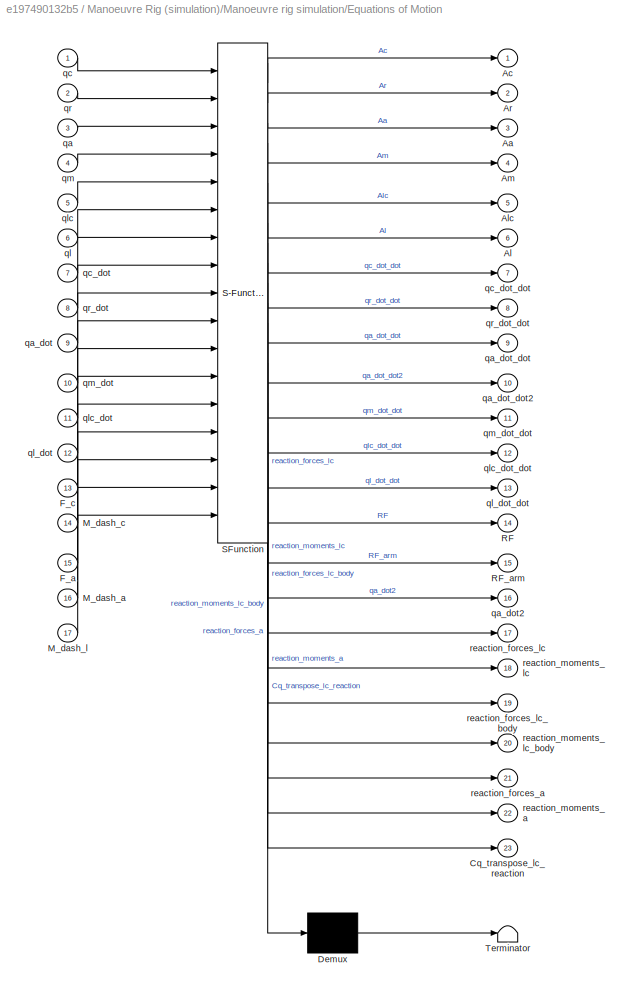
BLOCK [SubSystem] Manoeuvre Rig (simulation)/Manoeuvre rig simulation/Equations of Motion
  ErrorFcn = Stateflow.Translate.translate
  MinAlgLoopOccurrences = on
  PermitHierarchicalResolution = ExplicitOnly
  Ports = [17, 23]
  RequestExecContextInheritance = off
  SFBlockType = MATLAB Function
BLOCK [Demux] Manoeuvre Rig (simulation)/Manoeuvre rig simulation/Equations of Motion/ Demux 
  Outputs = 1
  Ports = [1, 1]
BLOCK [S-Function] Manoeuvre Rig (simulation)/Manoeuvre rig simulation/Equations of Motion/ SFunction 
  EnableBusSupport = on
  FunctionName = sf_sfun
  PortCounts = [17 24]
  Ports = [17, 24]
  Tag = Stateflow S-Function Simulation_wrapped_4 2
BLOCK [Terminator] Manoeuvre Rig (simulation)/Manoeuvre rig simulation/Equations of Motion/ Terminator 
BLOCK [Outport] Manoeuvre Rig (simulation)/Manoeuvre rig simulation/Equations of Motion/Aa
  IconDisplay = Port number
  Port = 3
BLOCK [Outport] Manoeuvre Rig (simulation)/Manoeuvre rig simulation/Equations of Motion/Ac
  IconDisplay = Port number
BLOCK [Outport] Manoeuvre Rig (simulation)/Manoeuvre rig simulation/Equations of Motion/Al
  IconDisplay = Port number
  Port = 6
BLOCK [Outport] Manoeuvre Rig (simulation)/Manoeuvre rig simulation/Equations of Motion/Alc
  IconDisplay = Port number
  Port = 5
BLOCK [Outport] Manoeuvre Rig (simulation)/Manoeuvre rig simulation/Equations of Motion/Am
  IconDisplay = Port number
  Port = 4
BLOCK [Outport] Manoeuvre Rig (simulation)/Manoeuvre rig simulation/Equations of Motion/Ar
  IconDisplay = Port number
  Port = 2
BLOCK [Outport] Manoeuvre Rig (simulation)/Manoeuvre rig simulation/Equations of Motion/Cq_transpose_lc_reaction
  IconDisplay = Port number
  Port = 23
BLOCK [Inport] Manoeuvre Rig (simulation)/Manoeuvre rig simulation/Equations of Motion/F_a
  IconDisplay = Port number
  Port = 15
BLOCK [Inport] Manoeuvre Rig (simulation)/Manoeuvre rig simulation/Equations of Motion/F_c
  IconDisplay = Port number
  Port = 13
BLOCK [Inport] Manoeuvre Rig (simulation)/Manoeuvre rig simulation/Equations of Motion/M_dash_a
  IconDisplay = Port number
  Port = 16
BLOCK [Inport] Manoeuvre Rig (simulation)/Manoeuvre rig simulation/Equations of Motion/M_dash_c
  IconDisplay = Port number
  Port = 14
BLOCK [Inport] Manoeuvre Rig (simulation)/Manoeuvre rig simulation/Equations of Motion/M_dash_l
  IconDisplay = Port number
  Port = 17
BLOCK [Outport] Manoeuvre Rig (simulation)/Manoeuvre rig simulation/Equations of Motion/RF
  IconDisplay = Port number
  Port = 14
BLOCK [Outport] Manoeuvre Rig (simulation)/Manoeuvre rig simulation/Equations of Motion/RF_arm
  IconDisplay = Port number
  Port = 15
BLOCK [Inport] Manoeuvre Rig (simulation)/Manoeuvre rig simulation/Equations of Motion/qa
  IconDisplay = Port number
  Port = 3
BLOCK [Inport] Manoeuvre Rig (simulation)/Manoeuvre rig simulation/Equations of Motion/qa_dot
  IconDisplay = Port number
  Port = 9
BLOCK [Outport] Manoeuvre Rig (simulation)/Manoeuvre rig simulation/Equations of Motion/qa_dot2
  IconDisplay = Port number
  Port = 16
BLOCK [Outport] Manoeuvre Rig (simulation)/Manoeuvre rig simulation/Equations of Motion/qa_dot_dot
  IconDisplay = Port number
  Port = 9
BLOCK [Outport] Manoeuvre Rig (simulation)/Manoeuvre rig simulation/Equations of Motion/qa_dot_dot2
  IconDisplay = Port number
  Port = 10
BLOCK [Inport] Manoeuvre Rig (simulation)/Manoeuvre rig simulation/Equations of Motion/qc
  IconDisplay = Port number
BLOCK [Inport] Manoeuvre Rig (simulation)/Manoeuvre rig simulation/Equations of Motion/qc_dot
  IconDisplay = Port number
  Port = 7
BLOCK [Outport] Manoeuvre Rig (simulation)/Manoeuvre rig simulation/Equations of Motion/qc_dot_dot
  IconDisplay = Port number
  Port = 7
BLOCK [Inport] Manoeuvre Rig (simulation)/Manoeuvre rig simulation/Equations of Motion/ql
  IconDisplay = Port number
  Port = 6
BLOCK [Inport] Manoeuvre Rig (simulation)/Manoeuvre rig simulation/Equations of Motion/ql_dot
  IconDisplay = Port number
  Port = 12
BLOCK [Outport] Manoeuvre Rig (simulation)/Manoeuvre rig simulation/Equations of Motion/ql_dot_dot
  IconDisplay = Port number
  Port = 13
BLOCK [Inport] Manoeuvre Rig (simulation)/Manoeuvre rig simulation/Equations of Motion/qlc
  IconDisplay = Port number
  Port = 5
BLOCK [Inport] Manoeuvre Rig (simulation)/Manoeuvre rig simulation/Equations of Motion/qlc_dot
  IconDisplay = Port number
  Port = 11
BLOCK [Outport] Manoeuvre Rig (simulation)/Manoeuvre rig simulation/Equations of Motion/qlc_dot_dot
  IconDisplay = Port number
  Port = 12
BLOCK [Inport] Manoeuvre Rig (simulation)/Manoeuvre rig simulation/Equations of Motion/qm
  IconDisplay = Port number
  Port = 4
BLOCK [Inport] Manoeuvre Rig (simulation)/Manoeuvre rig simulation/Equations of Motion/qm_dot
  IconDisplay = Port number
  Port = 10
BLOCK [Outport] Manoeuvre Rig (simulation)/Manoeuvre rig simulation/Equations of Motion/qm_dot_dot
  IconDisplay = Port number
  Port = 11
BLOCK [Inport] Manoeuvre Rig (simulation)/Manoeuvre rig simulation/Equations of Motion/qr
  IconDisplay = Port number
  Port = 2
BLOCK [Inport] Manoeuvre Rig (simulation)/Manoeuvre rig simulation/Equations of Motion/qr_dot
  IconDisplay = Port number
  Port = 8
BLOCK [Outport] Manoeuvre Rig (simulation)/Manoeuvre rig simulation/Equations of Motion/qr_dot_dot
  IconDisplay = Port number
  Port = 8
BLOCK [Outport] Manoeuvre Rig (simulation)/Manoeuvre rig simulation/Equations of Motion/reaction_forces_a
  IconDisplay = Port number
  Port = 21
BLOCK [Outport] Manoeuvre Rig (simulation)/Manoeuvre rig simulation/Equations of Motion/reaction_forces_lc
  IconDisplay = Port number
  Port = 17
BLOCK [Outport] Manoeuvre Rig (simulation)/Manoeuvre rig simulation/Equations of Motion/reaction_forces_lc_body
  IconDisplay = Port number
  Port = 19
BLOCK [Outport] Manoeuvre Rig (simulation)/Manoeuvre rig simulation/Equations of Motion/reaction_moments_a
  IconDisplay = Port number
  Port = 22
BLOCK [Outport] Manoeuvre Rig (simulation)/Manoeuvre rig simulation/Equations of Motion/reaction_moments_lc
  IconDisplay = Port number
  Port = 18
BLOCK [Outport] Manoeuvre Rig (simulation)/Manoeuvre rig simulation/Equations of Motion/reaction_moments_lc_body
  IconDisplay = Port number
  Port = 20
BLOCK [SubSystem] Manoeuvre Rig (simulation)/Manoeuvre rig simulation/Equations of Motion1
  Commented = on
  ErrorFcn = Stateflow.Translate.translate
  MinAlgLoopOccurrences = on
  PermitHierarchicalResolution = ExplicitOnly
  Ports = [10, 12]
  RequestExecContextInheritance = off
  SFBlockType = MATLAB Function
BLOCK [Demux] Manoeuvre Rig (simulation)/Manoeuvre rig simulation/Equations of Motion1/ Demux 
  Outputs = 1
  Ports = [1, 1]
BLOCK [S-Function] Manoeuvre Rig (simulation)/Manoeuvre rig simulation/Equations of Motion1/ SFunction 
  EnableBusSupport = on
  FunctionName = sf_sfun
  PortCounts = [10 13]
  Ports = [10, 13]
  Tag = Stateflow S-Function Simulation_wrapped_4 61
BLOCK [Terminator] Manoeuvre Rig (simulation)/Manoeuvre rig simulation/Equations of Motion1/ Terminator 
BLOCK [Outport] Manoeuvre Rig (simulation)/Manoeuvre rig simulation/Equations of Motion1/Aa
  IconDisplay = Port number
BLOCK [Outport] Manoeuvre Rig (simulation)/Manoeuvre rig simulation/Equations of Motion1/Al
  IconDisplay = Port number
  Port = 3
BLOCK [Outport] Manoeuvre Rig (simulation)/Manoeuvre rig simulation/Equations of Motion1/Alc
  IconDisplay = Port number
  Port = 2
BLOCK [Inport] Manoeuvre Rig (simulation)/Manoeuvre rig simulation/Equations of Motion1/F_a
  IconDisplay = Port number
  Port = 9
BLOCK [Inport] Manoeuvre Rig (simulation)/Manoeuvre rig simulation/Equations of Motion1/F_lc
  IconDisplay = Port number
  Port = 7
BLOCK [Inport] Manoeuvre Rig (simulation)/Manoeuvre rig simulation/Equations of Motion1/M_dash_a
  IconDisplay = Port number
  Port = 10
BLOCK [Inport] Manoeuvre Rig (simulation)/Manoeuvre rig simulation/Equations of Motion1/M_dash_lc
  IconDisplay = Port number
  Port = 8
BLOCK [Outport] Manoeuvre Rig (simulation)/Manoeuvre rig simulation/Equations of Motion1/RF
  IconDisplay = Port number
  Port = 8
BLOCK [Outport] Manoeuvre Rig (simulation)/Manoeuvre rig simulation/Equations of Motion1/RF_arm
  IconDisplay = Port number
  Port = 9
BLOCK [Inport] Manoeuvre Rig (simulation)/Manoeuvre rig simulation/Equations of Motion1/qa
  IconDisplay = Port number
BLOCK [Inport] Manoeuvre Rig (simulation)/Manoeuvre rig simulation/Equations of Motion1/qa_dot
  IconDisplay = Port number
  Port = 4
BLOCK [Outport] Manoeuvre Rig (simulation)/Manoeuvre rig simulation/Equations of Motion1/qa_dot2
  IconDisplay = Port number
  Port = 10
BLOCK [Outport] Manoeuvre Rig (simulation)/Manoeuvre rig simulation/Equations of Motion1/qa_dot_dot
  IconDisplay = Port number
  Port = 4
BLOCK [Outport] Manoeuvre Rig (simulation)/Manoeuvre rig simulation/Equations of Motion1/qa_dot_dot2
  IconDisplay = Port number
  Port = 5
BLOCK [Inport] Manoeuvre Rig (simulation)/Manoeuvre rig simulation/Equations of Motion1/ql
  IconDisplay = Port number
  Port = 3
BLOCK [Inport] Manoeuvre Rig (simulation)/Manoeuvre rig simulation/Equations of Motion1/ql_dot
  IconDisplay = Port number
  Port = 6
BLOCK [Outport] Manoeuvre Rig (simulation)/Manoeuvre rig simulation/Equations of Motion1/ql_dot_dot
  IconDisplay = Port number
  Port = 7
BLOCK [Inport] Manoeuvre Rig (simulation)/Manoeuvre rig simulation/Equations of Motion1/qlc
  IconDisplay = Port number
  Port = 2
BLOCK [Inport] Manoeuvre Rig (simulation)/Manoeuvre rig simulation/Equations of Motion1/qlc_dot
  IconDisplay = Port number
  Port = 5
BLOCK [Outport] Manoeuvre Rig (simulation)/Manoeuvre rig simulation/Equations of Motion1/qlc_dot_dot
  IconDisplay = Port number
  Port = 6
BLOCK [Outport] Manoeuvre Rig (simulation)/Manoeuvre rig simulation/Equations of Motion1/reaction_forces
  IconDisplay = Port number
  Port = 11
BLOCK [Outport] Manoeuvre Rig (simulation)/Manoeuvre rig simulation/Equations of Motion1/reaction_moments
  IconDisplay = Port number
  Port = 12
BLOCK [Terminator] Manoeuvre Rig (simulation)/Manoeuvre rig simulation/Extra
BLOCK [SubSystem] Manoeuvre Rig (simulation)/Manoeuvre rig simulation/Extracting aircraft vertical reaction forces1
  ErrorFcn = Stateflow.Translate.translate
  PermitHierarchicalResolution = ExplicitOnly
  Ports = [1, 1]
  RequestExecContextInheritance = off
  SFBlockType = MATLAB Function
  TreatAsAtomicUnit = on
BLOCK [Demux] Manoeuvre Rig (simulation)/Manoeuvre rig simulation/Extracting aircraft vertical reaction forces1/ Demux 
  Outputs = 1
  Ports = [1, 1]
BLOCK [S-Function] Manoeuvre Rig (simulation)/Manoeuvre rig simulation/Extracting aircraft vertical reaction forces1/ SFunction 
  EnableBusSupport = on
  FunctionName = sf_sfun
  PortCounts = [1 2]
  Ports = [1, 2]
  Tag = Stateflow S-Function Simulation_wrapped_4 43
BLOCK [Terminator] Manoeuvre Rig (simulation)/Manoeuvre rig simulation/Extracting aircraft vertical reaction forces1/ Terminator 
BLOCK [Inport] Manoeuvre Rig (simulation)/Manoeuvre rig simulation/Extracting aircraft vertical reaction forces1/RF
  IconDisplay = Port number
BLOCK [Outport] Manoeuvre Rig (simulation)/Manoeuvre rig simulation/Extracting aircraft vertical reaction forces1/RF_a
  IconDisplay = Port number
BLOCK [SubSystem] Manoeuvre Rig (simulation)/Manoeuvre rig simulation/Extracting aircraft vertical reaction forces2
  Commented = on
  ErrorFcn = Stateflow.Translate.translate
  PermitHierarchicalResolution = ExplicitOnly
  Ports = [1, 1]
  RequestExecContextInheritance = off
  SFBlockType = MATLAB Function
  TreatAsAtomicUnit = on
BLOCK [Demux] Manoeuvre Rig (simulation)/Manoeuvre rig simulation/Extracting aircraft vertical reaction forces2/ Demux 
  Outputs = 1
  Ports = [1, 1]
BLOCK [S-Function] Manoeuvre Rig (simulation)/Manoeuvre rig simulation/Extracting aircraft vertical reaction forces2/ SFunction 
  EnableBusSupport = on
  FunctionName = sf_sfun
  PortCounts = [1 2]
  Ports = [1, 2]
  Tag = Stateflow S-Function Simulation_wrapped_4 62
BLOCK [Terminator] Manoeuvre Rig (simulation)/Manoeuvre rig simulation/Extracting aircraft vertical reaction forces2/ Terminator 
BLOCK [Inport] Manoeuvre Rig (simulation)/Manoeuvre rig simulation/Extracting aircraft vertical reaction forces2/RF
  IconDisplay = Port number
BLOCK [Outport] Manoeuvre Rig (simulation)/Manoeuvre rig simulation/Extracting aircraft vertical reaction forces2/RF_a
  IconDisplay = Port number
BLOCK [SubSystem] Manoeuvre Rig (simulation)/Manoeuvre rig simulation/Extracting position vector 1
  Ports = [1, 1]
  RequestExecContextInheritance = off
BLOCK [Inport] Manoeuvre Rig (simulation)/Manoeuvre rig simulation/Extracting position vector 1/In1
  IconDisplay = Port number
BLOCK [SubSystem] Manoeuvre Rig (simulation)/Manoeuvre rig simulation/Extracting position vector 1/MATLAB Function
  ErrorFcn = Stateflow.Translate.translate
  PermitHierarchicalResolution = ExplicitOnly
  Ports = [1, 1]
  RequestExecContextInheritance = off
  SFBlockType = MATLAB Function
  TreatAsAtomicUnit = on
BLOCK [Demux] Manoeuvre Rig (simulation)/Manoeuvre rig simulation/Extracting position vector 1/MATLAB Function/ Demux 
  Outputs = 1
  Ports = [1, 1]
BLOCK [S-Function] Manoeuvre Rig (simulation)/Manoeuvre rig simulation/Extracting position vector 1/MATLAB Function/ SFunction 
  EnableBusSupport = on
  FunctionName = sf_sfun
  PortCounts = [1 2]
  Ports = [1, 2]
  Tag = Stateflow S-Function Simulation_wrapped_4 8
BLOCK [Terminator] Manoeuvre Rig (simulation)/Manoeuvre rig simulation/Extracting position vector 1/MATLAB Function/ Terminator 
BLOCK [Inport] Manoeuvre Rig (simulation)/Manoeuvre rig simulation/Extracting position vector 1/MATLAB Function/u
  IconDisplay = Port number
BLOCK [Outport] Manoeuvre Rig (simulation)/Manoeuvre rig simulation/Extracting position vector 1/MATLAB Function/y
  IconDisplay = Port number
BLOCK [Outport] Manoeuvre Rig (simulation)/Manoeuvre rig simulation/Extracting position vector 1/Out1
  IconDisplay = Port number
BLOCK [SubSystem] Manoeuvre Rig (simulation)/Manoeuvre rig simulation/Extracting position vector 10
  Commented = on
  Ports = [1, 1]
  RequestExecContextInheritance = off
BLOCK [Inport] Manoeuvre Rig (simulation)/Manoeuvre rig simulation/Extracting position vector 10/In1
  IconDisplay = Port number
BLOCK [SubSystem] Manoeuvre Rig (simulation)/Manoeuvre rig simulation/Extracting position vector 10/MATLAB Function
  ErrorFcn = Stateflow.Translate.translate
  PermitHierarchicalResolution = ExplicitOnly
  Ports = [1, 1]
  RequestExecContextInheritance = off
  SFBlockType = MATLAB Function
  TreatAsAtomicUnit = on
BLOCK [Demux] Manoeuvre Rig (simulation)/Manoeuvre rig simulation/Extracting position vector 10/MATLAB Function/ Demux 
  Outputs = 1
  Ports = [1, 1]
BLOCK [S-Function] Manoeuvre Rig (simulation)/Manoeuvre rig simulation/Extracting position vector 10/MATLAB Function/ SFunction 
  EnableBusSupport = on
  FunctionName = sf_sfun
  PortCounts = [1 2]
  Ports = [1, 2]
  Tag = Stateflow S-Function Simulation_wrapped_4 63
BLOCK [Terminator] Manoeuvre Rig (simulation)/Manoeuvre rig simulation/Extracting position vector 10/MATLAB Function/ Terminator 
BLOCK [Inport] Manoeuvre Rig (simulation)/Manoeuvre rig simulation/Extracting position vector 10/MATLAB Function/u
  IconDisplay = Port number
BLOCK [Outport] Manoeuvre Rig (simulation)/Manoeuvre rig simulation/Extracting position vector 10/MATLAB Function/y
  IconDisplay = Port number
BLOCK [Outport] Manoeuvre Rig (simulation)/Manoeuvre rig simulation/Extracting position vector 10/Out1
  IconDisplay = Port number
BLOCK [SubSystem] Manoeuvre Rig (simulation)/Manoeuvre rig simulation/Extracting position vector 2
  Ports = [1, 1]
  RequestExecContextInheritance = off
BLOCK [SubSystem] Manoeuvre Rig (simulation)/Manoeuvre rig simulation/Extracting position vector 2 
  Ports = [1, 1]
  RequestExecContextInheritance = off
BLOCK [Inport] Manoeuvre Rig (simulation)/Manoeuvre rig simulation/Extracting position vector 2 /In1
  IconDisplay = Port number
BLOCK [SubSystem] Manoeuvre Rig (simulation)/Manoeuvre rig simulation/Extracting position vector 2 /MATLAB Function
  ErrorFcn = Stateflow.Translate.translate
  PermitHierarchicalResolution = ExplicitOnly
  Ports = [1, 1]
  RequestExecContextInheritance = off
  SFBlockType = MATLAB Function
  TreatAsAtomicUnit = on
BLOCK [Demux] Manoeuvre Rig (simulation)/Manoeuvre rig simulation/Extracting position vector 2 /MATLAB Function/ Demux 
  Outputs = 1
  Ports = [1, 1]
BLOCK [S-Function] Manoeuvre Rig (simulation)/Manoeuvre rig simulation/Extracting position vector 2 /MATLAB Function/ SFunction 
  EnableBusSupport = on
  FunctionName = sf_sfun
  PortCounts = [1 2]
  Ports = [1, 2]
  Tag = Stateflow S-Function Simulation_wrapped_4 9
BLOCK [Terminator] Manoeuvre Rig (simulation)/Manoeuvre rig simulation/Extracting position vector 2 /MATLAB Function/ Terminator 
BLOCK [Inport] Manoeuvre Rig (simulation)/Manoeuvre rig simulation/Extracting position vector 2 /MATLAB Function/u
  IconDisplay = Port number
BLOCK [Outport] Manoeuvre Rig (simulation)/Manoeuvre rig simulation/Extracting position vector 2 /MATLAB Function/y
  IconDisplay = Port number
BLOCK [Outport] Manoeuvre Rig (simulation)/Manoeuvre rig simulation/Extracting position vector 2 /Out1
  IconDisplay = Port number
BLOCK [Inport] Manoeuvre Rig (simulation)/Manoeuvre rig simulation/Extracting position vector 2/In1
  IconDisplay = Port number
BLOCK [SubSystem] Manoeuvre Rig (simulation)/Manoeuvre rig simulation/Extracting position vector 2/MATLAB Function
  ErrorFcn = Stateflow.Translate.translate
  PermitHierarchicalResolution = ExplicitOnly
  Ports = [1, 1]
  RequestExecContextInheritance = off
  SFBlockType = MATLAB Function
  TreatAsAtomicUnit = on
BLOCK [Demux] Manoeuvre Rig (simulation)/Manoeuvre rig simulation/Extracting position vector 2/MATLAB Function/ Demux 
  Outputs = 1
  Ports = [1, 1]
BLOCK [S-Function] Manoeuvre Rig (simulation)/Manoeuvre rig simulation/Extracting position vector 2/MATLAB Function/ SFunction 
  EnableBusSupport = on
  FunctionName = sf_sfun
  PortCounts = [1 2]
  Ports = [1, 2]
  Tag = Stateflow S-Function Simulation_wrapped_4 50
BLOCK [Terminator] Manoeuvre Rig (simulation)/Manoeuvre rig simulation/Extracting position vector 2/MATLAB Function/ Terminator 
BLOCK [Inport] Manoeuvre Rig (simulation)/Manoeuvre rig simulation/Extracting position vector 2/MATLAB Function/u
  IconDisplay = Port number
BLOCK [Outport] Manoeuvre Rig (simulation)/Manoeuvre rig simulation/Extracting position vector 2/MATLAB Function/y
  IconDisplay = Port number
BLOCK [Outport] Manoeuvre Rig (simulation)/Manoeuvre rig simulation/Extracting position vector 2/Out1
  IconDisplay = Port number
BLOCK [SubSystem] Manoeuvre Rig (simulation)/Manoeuvre rig simulation/Extracting position vector 3
  Ports = [1, 1]
  RequestExecContextInheritance = off
BLOCK [Inport] Manoeuvre Rig (simulation)/Manoeuvre rig simulation/Extracting position vector 3/In1
  IconDisplay = Port number
BLOCK [SubSystem] Manoeuvre Rig (simulation)/Manoeuvre rig simulation/Extracting position vector 3/MATLAB Function
  ErrorFcn = Stateflow.Translate.translate
  PermitHierarchicalResolution = ExplicitOnly
  Ports = [1, 1]
  RequestExecContextInheritance = off
  SFBlockType = MATLAB Function
  TreatAsAtomicUnit = on
BLOCK [Demux] Manoeuvre Rig (simulation)/Manoeuvre rig simulation/Extracting position vector 3/MATLAB Function/ Demux 
  Outputs = 1
  Ports = [1, 1]
BLOCK [S-Function] Manoeuvre Rig (simulation)/Manoeuvre rig simulation/Extracting position vector 3/MATLAB Function/ SFunction 
  EnableBusSupport = on
  FunctionName = sf_sfun
  PortCounts = [1 2]
  Ports = [1, 2]
  Tag = Stateflow S-Function Simulation_wrapped_4 10
BLOCK [Terminator] Manoeuvre Rig (simulation)/Manoeuvre rig simulation/Extracting position vector 3/MATLAB Function/ Terminator 
BLOCK [Inport] Manoeuvre Rig (simulation)/Manoeuvre rig simulation/Extracting position vector 3/MATLAB Function/u
  IconDisplay = Port number
BLOCK [Outport] Manoeuvre Rig (simulation)/Manoeuvre rig simulation/Extracting position vector 3/MATLAB Function/y
  IconDisplay = Port number
BLOCK [Outport] Manoeuvre Rig (simulation)/Manoeuvre rig simulation/Extracting position vector 3/Out1
  IconDisplay = Port number
BLOCK [SubSystem] Manoeuvre Rig (simulation)/Manoeuvre rig simulation/Extracting position vector 4
  Ports = [1, 1]
  RequestExecContextInheritance = off
BLOCK [Inport] Manoeuvre Rig (simulation)/Manoeuvre rig simulation/Extracting position vector 4/In1
  IconDisplay = Port number
BLOCK [SubSystem] Manoeuvre Rig (simulation)/Manoeuvre rig simulation/Extracting position vector 4/MATLAB Function
  ErrorFcn = Stateflow.Translate.translate
  PermitHierarchicalResolution = ExplicitOnly
  Ports = [1, 1]
  RequestExecContextInheritance = off
  SFBlockType = MATLAB Function
  TreatAsAtomicUnit = on
BLOCK [Demux] Manoeuvre Rig (simulation)/Manoeuvre rig simulation/Extracting position vector 4/MATLAB Function/ Demux 
  Outputs = 1
  Ports = [1, 1]
BLOCK [S-Function] Manoeuvre Rig (simulation)/Manoeuvre rig simulation/Extracting position vector 4/MATLAB Function/ SFunction 
  EnableBusSupport = on
  FunctionName = sf_sfun
  PortCounts = [1 2]
  Ports = [1, 2]
  Tag = Stateflow S-Function Simulation_wrapped_4 5
BLOCK [Terminator] Manoeuvre Rig (simulation)/Manoeuvre rig simulation/Extracting position vector 4/MATLAB Function/ Terminator 
BLOCK [Inport] Manoeuvre Rig (simulation)/Manoeuvre rig simulation/Extracting position vector 4/MATLAB Function/u
  IconDisplay = Port number
BLOCK [Outport] Manoeuvre Rig (simulation)/Manoeuvre rig simulation/Extracting position vector 4/MATLAB Function/y
  IconDisplay = Port number
BLOCK [Outport] Manoeuvre Rig (simulation)/Manoeuvre rig simulation/Extracting position vector 4/Out1
  IconDisplay = Port number
BLOCK [SubSystem] Manoeuvre Rig (simulation)/Manoeuvre rig simulation/Extracting position vector 5
  Ports = [1, 1]
  RequestExecContextInheritance = off
BLOCK [Inport] Manoeuvre Rig (simulation)/Manoeuvre rig simulation/Extracting position vector 5/In1
  IconDisplay = Port number
BLOCK [SubSystem] Manoeuvre Rig (simulation)/Manoeuvre rig simulation/Extracting position vector 5/MATLAB Function
  ErrorFcn = Stateflow.Translate.translate
  PermitHierarchicalResolution = ExplicitOnly
  Ports = [1, 1]
  RequestExecContextInheritance = off
  SFBlockType = MATLAB Function
  TreatAsAtomicUnit = on
BLOCK [Demux] Manoeuvre Rig (simulation)/Manoeuvre rig simulation/Extracting position vector 5/MATLAB Function/ Demux 
  Outputs = 1
  Ports = [1, 1]
BLOCK [S-Function] Manoeuvre Rig (simulation)/Manoeuvre rig simulation/Extracting position vector 5/MATLAB Function/ SFunction 
  EnableBusSupport = on
  FunctionName = sf_sfun
  PortCounts = [1 2]
  Ports = [1, 2]
  Tag = Stateflow S-Function Simulation_wrapped_4 51
BLOCK [Terminator] Manoeuvre Rig (simulation)/Manoeuvre rig simulation/Extracting position vector 5/MATLAB Function/ Terminator 
BLOCK [Inport] Manoeuvre Rig (simulation)/Manoeuvre rig simulation/Extracting position vector 5/MATLAB Function/u
  IconDisplay = Port number
BLOCK [Outport] Manoeuvre Rig (simulation)/Manoeuvre rig simulation/Extracting position vector 5/MATLAB Function/y
  IconDisplay = Port number
BLOCK [Outport] Manoeuvre Rig (simulation)/Manoeuvre rig simulation/Extracting position vector 5/Out1
  IconDisplay = Port number
BLOCK [SubSystem] Manoeuvre Rig (simulation)/Manoeuvre rig simulation/Extracting position vector 7
  Commented = on
  Ports = [1, 1]
  RequestExecContextInheritance = off
BLOCK [Inport] Manoeuvre Rig (simulation)/Manoeuvre rig simulation/Extracting position vector 7/In1
  IconDisplay = Port number
BLOCK [SubSystem] Manoeuvre Rig (simulation)/Manoeuvre rig simulation/Extracting position vector 7/MATLAB Function
  ErrorFcn = Stateflow.Translate.translate
  PermitHierarchicalResolution = ExplicitOnly
  Ports = [1, 1]
  RequestExecContextInheritance = off
  SFBlockType = MATLAB Function
  TreatAsAtomicUnit = on
BLOCK [Demux] Manoeuvre Rig (simulation)/Manoeuvre rig simulation/Extracting position vector 7/MATLAB Function/ Demux 
  Outputs = 1
  Ports = [1, 1]
BLOCK [S-Function] Manoeuvre Rig (simulation)/Manoeuvre rig simulation/Extracting position vector 7/MATLAB Function/ SFunction 
  EnableBusSupport = on
  FunctionName = sf_sfun
  PortCounts = [1 2]
  Ports = [1, 2]
  Tag = Stateflow S-Function Simulation_wrapped_4 66
BLOCK [Terminator] Manoeuvre Rig (simulation)/Manoeuvre rig simulation/Extracting position vector 7/MATLAB Function/ Terminator 
BLOCK [Inport] Manoeuvre Rig (simulation)/Manoeuvre rig simulation/Extracting position vector 7/MATLAB Function/u
  IconDisplay = Port number
BLOCK [Outport] Manoeuvre Rig (simulation)/Manoeuvre rig simulation/Extracting position vector 7/MATLAB Function/y
  IconDisplay = Port number
BLOCK [Outport] Manoeuvre Rig (simulation)/Manoeuvre rig simulation/Extracting position vector 7/Out1
  IconDisplay = Port number
BLOCK [SubSystem] Manoeuvre Rig (simulation)/Manoeuvre rig simulation/Extracting position vector 8
  Commented = on
  Ports = [1, 1]
  RequestExecContextInheritance = off
BLOCK [Inport] Manoeuvre Rig (simulation)/Manoeuvre rig simulation/Extracting position vector 8/In1
  IconDisplay = Port number
BLOCK [SubSystem] Manoeuvre Rig (simulation)/Manoeuvre rig simulation/Extracting position vector 8/MATLAB Function
  ErrorFcn = Stateflow.Translate.translate
  PermitHierarchicalResolution = ExplicitOnly
  Ports = [1, 1]
  RequestExecContextInheritance = off
  SFBlockType = MATLAB Function
  TreatAsAtomicUnit = on
BLOCK [Demux] Manoeuvre Rig (simulation)/Manoeuvre rig simulation/Extracting position vector 8/MATLAB Function/ Demux 
  Outputs = 1
  Ports = [1, 1]
BLOCK [S-Function] Manoeuvre Rig (simulation)/Manoeuvre rig simulation/Extracting position vector 8/MATLAB Function/ SFunction 
  EnableBusSupport = on
  FunctionName = sf_sfun
  PortCounts = [1 2]
  Ports = [1, 2]
  Tag = Stateflow S-Function Simulation_wrapped_4 67
BLOCK [Terminator] Manoeuvre Rig (simulation)/Manoeuvre rig simulation/Extracting position vector 8/MATLAB Function/ Terminator 
BLOCK [Inport] Manoeuvre Rig (simulation)/Manoeuvre rig simulation/Extracting position vector 8/MATLAB Function/u
  IconDisplay = Port number
BLOCK [Outport] Manoeuvre Rig (simulation)/Manoeuvre rig simulation/Extracting position vector 8/MATLAB Function/y
  IconDisplay = Port number
BLOCK [Outport] Manoeuvre Rig (simulation)/Manoeuvre rig simulation/Extracting position vector 8/Out1
  IconDisplay = Port number
BLOCK [Display] Manoeuvre Rig (simulation)/Manoeuvre rig simulation/F
  Decimation = 1
  Ports = [1]
BLOCK [Display] Manoeuvre Rig (simulation)/Manoeuvre rig simulation/FF
  Decimation = 1
  Ports = [1]
BLOCK [Fcn] Manoeuvre Rig (simulation)/Manoeuvre rig simulation/Fcn
  Expr = u/9.81
BLOCK [Fcn] Manoeuvre Rig (simulation)/Manoeuvre rig simulation/Fcn1
  Expr = u/9.81
BLOCK [Fcn] Manoeuvre Rig (simulation)/Manoeuvre rig simulation/Fcn2
  Expr = u/9.81
BLOCK [Display] Manoeuvre Rig (simulation)/Manoeuvre rig simulation/Friction_estimate
  Decimation = 1
  Ports = [1]
BLOCK [Display] Manoeuvre Rig (simulation)/Manoeuvre rig simulation/Friction_moment
  Decimation = 1
  Ports = [1]
BLOCK [Outport] Manoeuvre Rig (simulation)/Manoeuvre rig simulation/GX(deg//s)
  IconDisplay = Port number
  Port = 2
BLOCK [Outport] Manoeuvre Rig (simulation)/Manoeuvre rig simulation/GY(deg//s)
  IconDisplay = Port number
  Port = 3
BLOCK [Outport] Manoeuvre Rig (simulation)/Manoeuvre rig simulation/GZ(deg//s)
  IconDisplay = Port number
  Port = 4
BLOCK [Gain] Manoeuvre Rig (simulation)/Manoeuvre rig simulation/Gain
  Gain = -1
  OutDataTypeStr = Inherit: Inherit via internal rule
  ParamDataTypeStr = Inherit: Inherit via internal rule
  SaturateOnIntegerOverflow = off
BLOCK [Gain] Manoeuvre Rig (simulation)/Manoeuvre rig simulation/Gain1
  Commented = on
  Gain = -1
  OutDataTypeStr = Inherit: Inherit via internal rule
  ParamDataTypeStr = Inherit: Inherit via internal rule
  SaturateOnIntegerOverflow = off
BLOCK [Gain] Manoeuvre Rig (simulation)/Manoeuvre rig simulation/Gain10
  OutDataTypeStr = Inherit: Inherit via internal rule
  ParamDataTypeStr = Inherit: Inherit via internal rule
  SaturateOnIntegerOverflow = off
BLOCK [Gain] Manoeuvre Rig (simulation)/Manoeuvre rig simulation/Gain11
  Gain = -1
  OutDataTypeStr = Inherit: Inherit via internal rule
  ParamDataTypeStr = Inherit: Inherit via internal rule
  SaturateOnIntegerOverflow = off
BLOCK [Gain] Manoeuvre Rig (simulation)/Manoeuvre rig simulation/Gain12
  Gain = 0
  OutDataTypeStr = Inherit: Inherit via internal rule
  ParamDataTypeStr = Inherit: Inherit via internal rule
  SaturateOnIntegerOverflow = off
BLOCK [Gain] Manoeuvre Rig (simulation)/Manoeuvre rig simulation/Gain13
  Gain = 0
  OutDataTypeStr = Inherit: Inherit via internal rule
  ParamDataTypeStr = Inherit: Inherit via internal rule
  SaturateOnIntegerOverflow = off
BLOCK [Gain] Manoeuvre Rig (simulation)/Manoeuvre rig simulation/Gain14
  Gain = -1
  OutDataTypeStr = Inherit: Inherit via internal rule
  ParamDataTypeStr = Inherit: Inherit via internal rule
  SaturateOnIntegerOverflow = off
BLOCK [Gain] Manoeuvre Rig (simulation)/Manoeuvre rig simulation/Gain15
  Commented = on
  Gain = -1
  OutDataTypeStr = Inherit: Inherit via internal rule
  ParamDataTypeStr = Inherit: Inherit via internal rule
  SaturateOnIntegerOverflow = off
BLOCK [Gain] Manoeuvre Rig (simulation)/Manoeuvre rig simulation/Gain16
  Commented = on
  Gain = 0
  OutDataTypeStr = Inherit: Inherit via internal rule
  ParamDataTypeStr = Inherit: Inherit via internal rule
  SaturateOnIntegerOverflow = off
BLOCK [Gain] Manoeuvre Rig (simulation)/Manoeuvre rig simulation/Gain17
  OutDataTypeStr = Inherit: Inherit via internal rule
  ParamDataTypeStr = Inherit: Inherit via internal rule
  SaturateOnIntegerOverflow = off
BLOCK [Gain] Manoeuvre Rig (simulation)/Manoeuvre rig simulation/Gain18
  Commented = on
  OutDataTypeStr = Inherit: Inherit via internal rule
  ParamDataTypeStr = Inherit: Inherit via internal rule
  SaturateOnIntegerOverflow = off
BLOCK [Gain] Manoeuvre Rig (simulation)/Manoeuvre rig simulation/Gain19
  OutDataTypeStr = Inherit: Inherit via internal rule
  ParamDataTypeStr = Inherit: Inherit via internal rule
  SaturateOnIntegerOverflow = off
BLOCK [Gain] Manoeuvre Rig (simulation)/Manoeuvre rig simulation/Gain2
  Commented = on
  OutDataTypeStr = Inherit: Inherit via internal rule
  ParamDataTypeStr = Inherit: Inherit via internal rule
  SaturateOnIntegerOverflow = off
BLOCK [Gain] Manoeuvre Rig (simulation)/Manoeuvre rig simulation/Gain20
  OutDataTypeStr = Inherit: Inherit via internal rule
  ParamDataTypeStr = Inherit: Inherit via internal rule
  SaturateOnIntegerOverflow = off
BLOCK [Gain] Manoeuvre Rig (simulation)/Manoeuvre rig simulation/Gain21
  OutDataTypeStr = Inherit: Inherit via internal rule
  ParamDataTypeStr = Inherit: Inherit via internal rule
  SaturateOnIntegerOverflow = off
BLOCK [Gain] Manoeuvre Rig (simulation)/Manoeuvre rig simulation/Gain22
  OutDataTypeStr = Inherit: Inherit via internal rule
  ParamDataTypeStr = Inherit: Inherit via internal rule
  SaturateOnIntegerOverflow = off
BLOCK [Gain] Manoeuvre Rig (simulation)/Manoeuvre rig simulation/Gain23
  OutDataTypeStr = Inherit: Inherit via internal rule
  ParamDataTypeStr = Inherit: Inherit via internal rule
  SaturateOnIntegerOverflow = off
BLOCK [Gain] Manoeuvre Rig (simulation)/Manoeuvre rig simulation/Gain24
  Commented = on
  Gain = dail
  OutDataTypeStr = Inherit: Inherit via internal rule
  ParamDataTypeStr = Inherit: Inherit via internal rule
  SaturateOnIntegerOverflow = off
BLOCK [Gain] Manoeuvre Rig (simulation)/Manoeuvre rig simulation/Gain25
  Commented = on
  Gain = dele
  OutDataTypeStr = Inherit: Inherit via internal rule
  ParamDataTypeStr = Inherit: Inherit via internal rule
  SaturateOnIntegerOverflow = off
BLOCK [Gain] Manoeuvre Rig (simulation)/Manoeuvre rig simulation/Gain26
  Commented = on
  OutDataTypeStr = Inherit: Inherit via internal rule
  ParamDataTypeStr = Inherit: Inherit via internal rule
  SaturateOnIntegerOverflow = off
BLOCK [Gain] Manoeuvre Rig (simulation)/Manoeuvre rig simulation/Gain27
  Commented = on
  Gain = drud
  OutDataTypeStr = Inherit: Inherit via internal rule
  ParamDataTypeStr = Inherit: Inherit via internal rule
  SaturateOnIntegerOverflow = off
BLOCK [Gain] Manoeuvre Rig (simulation)/Manoeuvre rig simulation/Gain28
  Gain = -1
  OutDataTypeStr = Inherit: Inherit via internal rule
  ParamDataTypeStr = Inherit: Inherit via internal rule
  SaturateOnIntegerOverflow = off
BLOCK [Gain] Manoeuvre Rig (simulation)/Manoeuvre rig simulation/Gain3
  Gain = -1
  OutDataTypeStr = Inherit: Inherit via internal rule
  ParamDataTypeStr = Inherit: Inherit via internal rule
  SaturateOnIntegerOverflow = off
BLOCK [Gain] Manoeuvre Rig (simulation)/Manoeuvre rig simulation/Gain30
  OutDataTypeStr = Inherit: Inherit via internal rule
  ParamDataTypeStr = Inherit: Inherit via internal rule
  SaturateOnIntegerOverflow = off
BLOCK [Gain] Manoeuvre Rig (simulation)/Manoeuvre rig simulation/Gain4
  OutDataTypeStr = Inherit: Inherit via internal rule
  ParamDataTypeStr = Inherit: Inherit via internal rule
  SaturateOnIntegerOverflow = off
BLOCK [Gain] Manoeuvre Rig (simulation)/Manoeuvre rig simulation/Gain6
  Gain = -1
  OutDataTypeStr = Inherit: Inherit via internal rule
  ParamDataTypeStr = Inherit: Inherit via internal rule
  SaturateOnIntegerOverflow = off
BLOCK [Gain] Manoeuvre Rig (simulation)/Manoeuvre rig simulation/Gain7
  Gain = -1
  OutDataTypeStr = Inherit: Inherit via internal rule
  ParamDataTypeStr = Inherit: Inherit via internal rule
  SaturateOnIntegerOverflow = off
BLOCK [Gain] Manoeuvre Rig (simulation)/Manoeuvre rig simulation/Gain8
  OutDataTypeStr = Inherit: Inherit via internal rule
  ParamDataTypeStr = Inherit: Inherit via internal rule
  SaturateOnIntegerOverflow = off
BLOCK [Gain] Manoeuvre Rig (simulation)/Manoeuvre rig simulation/Gain9
  OutDataTypeStr = Inherit: Inherit via internal rule
  ParamDataTypeStr = Inherit: Inherit via internal rule
  SaturateOnIntegerOverflow = off
BLOCK [Goto] Manoeuvre Rig (simulation)/Manoeuvre rig simulation/Goto
  GotoTag = animation_cmp_rotation
  TagVisibility = global
BLOCK [Goto] Manoeuvre Rig (simulation)/Manoeuvre rig simulation/Goto1
  GotoTag = animation_arm_rotation
  TagVisibility = global
BLOCK [Goto] Manoeuvre Rig (simulation)/Manoeuvre rig simulation/Goto10
  Commented = on
  GotoTag = animation_l2_translation
  TagVisibility = global
BLOCK [Goto] Manoeuvre Rig (simulation)/Manoeuvre rig simulation/Goto11
  GotoTag = animation_load_cell_translation
  TagVisibility = global
BLOCK [Goto] Manoeuvre Rig (simulation)/Manoeuvre rig simulation/Goto12
  GotoTag = animation_link_translation
  TagVisibility = global
BLOCK [Goto] Manoeuvre Rig (simulation)/Manoeuvre rig simulation/Goto13
  GotoTag = animation_load_cell_rotation
  TagVisibility = global
BLOCK [Goto] Manoeuvre Rig (simulation)/Manoeuvre rig simulation/Goto14
  GotoTag = animation_link_rotation
  TagVisibility = global
BLOCK [Goto] Manoeuvre Rig (simulation)/Manoeuvre rig simulation/Goto15
  Commented = on
  GotoTag = animation_acm2_rotation
  TagVisibility = global
BLOCK [Goto] Manoeuvre Rig (simulation)/Manoeuvre rig simulation/Goto16
  Commented = on
  GotoTag = animation_lc2_rotation
  TagVisibility = global
BLOCK [Goto] Manoeuvre Rig (simulation)/Manoeuvre rig simulation/Goto17
  Commented = on
  GotoTag = animation_l2_rotation
  TagVisibility = global
BLOCK [Goto] Manoeuvre Rig (simulation)/Manoeuvre rig simulation/Goto2
  GotoTag = animation_acm_rotation
  TagVisibility = global
BLOCK [Goto] Manoeuvre Rig (simulation)/Manoeuvre rig simulation/Goto3
  GotoTag = animation_mass_rotation
  TagVisibility = global
BLOCK [Goto] Manoeuvre Rig (simulation)/Manoeuvre rig simulation/Goto4
  GotoTag = animation_cmp_translation
  TagVisibility = global
BLOCK [Goto] Manoeuvre Rig (simulation)/Manoeuvre rig simulation/Goto5
  GotoTag = animation_arm_translation
  TagVisibility = global
BLOCK [Goto] Manoeuvre Rig (simulation)/Manoeuvre rig simulation/Goto6
  GotoTag = animation_acm_translation
  TagVisibility = global
BLOCK [Goto] Manoeuvre Rig (simulation)/Manoeuvre rig simulation/Goto7
  GotoTag = animation_mass_translation
  TagVisibility = global
BLOCK [Goto] Manoeuvre Rig (simulation)/Manoeuvre rig simulation/Goto8
  Commented = on
  GotoTag = animation_acm2_translation
  TagVisibility = global
BLOCK [Goto] Manoeuvre Rig (simulation)/Manoeuvre rig simulation/Goto9
  Commented = on
  GotoTag = animation_lc2_translation
  TagVisibility = global
BLOCK [SubSystem] Manoeuvre Rig (simulation)/Manoeuvre rig simulation/HHIRM
  ErrorFcn = Stateflow.Translate.translate
  MinAlgLoopOccurrences = on
  PermitHierarchicalResolution = ExplicitOnly
  Ports = [11, 5]
  RequestExecContextInheritance = off
  SFBlockType = MATLAB Function
BLOCK [Demux] Manoeuvre Rig (simulation)/Manoeuvre rig simulation/HHIRM/ Demux 
  Outputs = 1
  Ports = [1, 1]
BLOCK [S-Function] Manoeuvre Rig (simulation)/Manoeuvre rig simulation/HHIRM/ SFunction 
  EnableBusSupport = on
  FunctionName = sf_sfun
  PortCounts = [11 6]
  Ports = [11, 6]
  Tag = Stateflow S-Function Simulation_wrapped_4 60
BLOCK [Terminator] Manoeuvre Rig (simulation)/Manoeuvre rig simulation/HHIRM/ Terminator 
BLOCK [Inport] Manoeuvre Rig (simulation)/Manoeuvre rig simulation/HHIRM/A_b2i
  IconDisplay = Port number
  Port = 10
BLOCK [Inport] Manoeuvre Rig (simulation)/Manoeuvre rig simulation/HHIRM/A_b2w
  IconDisplay = Port number
  Port = 9
BLOCK [Outport] Manoeuvre Rig (simulation)/Manoeuvre rig simulation/HHIRM/CX
  IconDisplay = Port number
  Port = 3
BLOCK [Outport] Manoeuvre Rig (simulation)/Manoeuvre rig simulation/HHIRM/CY
  IconDisplay = Port number
  Port = 4
BLOCK [Outport] Manoeuvre Rig (simulation)/Manoeuvre rig simulation/HHIRM/CZ
  IconDisplay = Port number
  Port = 5
BLOCK [Outport] Manoeuvre Rig (simulation)/Manoeuvre rig simulation/HHIRM/Fa
  IconDisplay = Port number
BLOCK [Outport] Manoeuvre Rig (simulation)/Manoeuvre rig simulation/HHIRM/M_dash_a
  IconDisplay = Port number
  Port = 2
BLOCK [Inport] Manoeuvre Rig (simulation)/Manoeuvre rig simulation/HHIRM/V
  IconDisplay = Port number
  Port = 11
BLOCK [Inport] Manoeuvre Rig (simulation)/Manoeuvre rig simulation/HHIRM/alpha
  IconDisplay = Port number
BLOCK [Inport] Manoeuvre Rig (simulation)/Manoeuvre rig simulation/HHIRM/beta
  IconDisplay = Port number
  Port = 2
BLOCK [Inport] Manoeuvre Rig (simulation)/Manoeuvre rig simulation/HHIRM/dail
  IconDisplay = Port number
  Port = 6
BLOCK [Inport] Manoeuvre Rig (simulation)/Manoeuvre rig simulation/HHIRM/dele
  IconDisplay = Port number
  Port = 7
BLOCK [Inport] Manoeuvre Rig (simulation)/Manoeuvre rig simulation/HHIRM/drud
  IconDisplay = Port number
  Port = 8
BLOCK [Inport] Manoeuvre Rig (simulation)/Manoeuvre rig simulation/HHIRM/p
  IconDisplay = Port number
  Port = 3
BLOCK [Inport] Manoeuvre Rig (simulation)/Manoeuvre rig simulation/HHIRM/q
  IconDisplay = Port number
  Port = 4
BLOCK [Inport] Manoeuvre Rig (simulation)/Manoeuvre rig simulation/HHIRM/r
  IconDisplay = Port number
  Port = 5
BLOCK [SubSystem] Manoeuvre Rig (simulation)/Manoeuvre rig simulation/Hawk servo model
  Ports = [1, 1]
  RequestExecContextInheritance = off
BLOCK [Inport] Manoeuvre Rig (simulation)/Manoeuvre rig simulation/Hawk servo model/Command
  IconDisplay = Port number
BLOCK [Gain] Manoeuvre Rig (simulation)/Manoeuvre rig simulation/Hawk servo model/Mot
  Gain = K2_svo_acm
  OutDataTypeStr = Inherit: Inherit via internal rule
  ParamDataTypeStr = Inherit: Inherit via internal rule
  SaturateOnIntegerOverflow = off
BLOCK [Outport] Manoeuvre Rig (simulation)/Manoeuvre rig simulation/Hawk servo model/Response
  IconDisplay = Port number
BLOCK [Saturate] Manoeuvre Rig (simulation)/Manoeuvre rig simulation/Hawk servo model/Saturation
  InputPortMap = u0
  LowerLimit = -max_rate_sat_acm
  Ports = [1, 1]
  UpperLimit = max_rate_sat_acm
BLOCK [Sum] Manoeuvre Rig (simulation)/Manoeuvre rig simulation/Hawk servo model/Sum
  IconShape = round
  InputSameDT = off
  Inputs = |+-
  OutDataTypeStr = Inherit: Inherit via internal rule
  Ports = [2, 1]
  SaturateOnIntegerOverflow = off
BLOCK [Sum] Manoeuvre Rig (simulation)/Manoeuvre rig simulation/Hawk servo model/Sum1
  IconShape = round
  InputSameDT = off
  Inputs = |+-
  OutDataTypeStr = Inherit: Inherit via internal rule
  Ports = [2, 1]
  SaturateOnIntegerOverflow = off
BLOCK [Gain] Manoeuvre Rig (simulation)/Manoeuvre rig simulation/Hawk servo model/Svo
  Gain = K1_svo_acm
  OutDataTypeStr = Inherit: Inherit via internal rule
  ParamDataTypeStr = Inherit: Inherit via internal rule
  SaturateOnIntegerOverflow = off
BLOCK [SubSystem] Manoeuvre Rig (simulation)/Manoeuvre rig simulation/Hawk servo model/kinematic
  Ports = [1, 2]
  RequestExecContextInheritance = off
BLOCK [Reference] Manoeuvre Rig (simulation)/Manoeuvre rig simulation/Hawk servo model/kinematic/Angle Conversion  REF=aerolibconvert2/Angle Conversion
  IU = deg
  OU = rad
  Ports = [1, 1]
  SourceBlock = aerolibconvert2/Angle Conversion
  SourceType = Angle Conversion
BLOCK [Reference] Manoeuvre Rig (simulation)/Manoeuvre rig simulation/Hawk servo model/kinematic/Compare To Zero  REF=simulink/Logic and Bit
Operations/Compare
To Zero
  OutDataTypeStr = boolean
  Ports = [1, 1]
  SourceBlock = simulink/Logic and Bit\nOperations/Compare\nTo Zero
  SourceType = Compare To Zero
  ZeroCross = off
  relop = >
BLOCK [Reference] Manoeuvre Rig (simulation)/Manoeuvre rig simulation/Hawk servo model/kinematic/Compare To Zero1  REF=simulink/Logic and Bit
Operations/Compare
To Zero
  OutDataTypeStr = boolean
  Ports = [1, 1]
  SourceBlock = simulink/Logic and Bit\nOperations/Compare\nTo Zero
  SourceType = Compare To Zero
  ZeroCross = off
  relop = <
BLOCK [Reference] Manoeuvre Rig (simulation)/Manoeuvre rig simulation/Hawk servo model/kinematic/Compare To Zero2  REF=simulink/Logic and Bit
Operations/Compare
To Zero
  OutDataTypeStr = boolean
  Ports = [1, 1]
  SourceBlock = simulink/Logic and Bit\nOperations/Compare\nTo Zero
  SourceType = Compare To Zero
  ZeroCross = off
  relop = >
BLOCK [Reference] Manoeuvre Rig (simulation)/Manoeuvre rig simulation/Hawk servo model/kinematic/Compare To Zero3  REF=simulink/Logic and Bit
Operations/Compare
To Zero
  OutDataTypeStr = boolean
  Ports = [1, 1]
  SourceBlock = simulink/Logic and Bit\nOperations/Compare\nTo Zero
  SourceType = Compare To Zero
  ZeroCross = off
  relop = <
BLOCK [Constant] Manoeuvre Rig (simulation)/Manoeuvre rig simulation/Hawk servo model/kinematic/Linear aero model trim (higher accuracy)
  Value = 1.1658924813874*pi/180
BLOCK [Constant] Manoeuvre Rig (simulation)/Manoeuvre rig simulation/Hawk servo model/kinematic/Linear aero model trim (higher accuracy)1
  Value = 4.4011
BLOCK [Logic] Manoeuvre Rig (simulation)/Manoeuvre rig simulation/Hawk servo model/kinematic/Logical Operator
  AllPortsSameDT = off
  Operator = OR
  OutDataTypeStr = boolean
  Ports = [2, 1]
BLOCK [Logic] Manoeuvre Rig (simulation)/Manoeuvre rig simulation/Hawk servo model/kinematic/Logical Operator1
  AllPortsSameDT = off
  OutDataTypeStr = boolean
  Ports = [2, 1]
BLOCK [Logic] Manoeuvre Rig (simulation)/Manoeuvre rig simulation/Hawk servo model/kinematic/Logical Operator2
  AllPortsSameDT = off
  OutDataTypeStr = boolean
  Ports = [2, 1]
BLOCK [Outport] Manoeuvre Rig (simulation)/Manoeuvre rig simulation/Hawk servo model/kinematic/de
  IconDisplay = Port number
BLOCK [Outport] Manoeuvre Rig (simulation)/Manoeuvre rig simulation/Hawk servo model/kinematic/de_dot
  IconDisplay = Port number
  Port = 2
BLOCK [Constant] Manoeuvre Rig (simulation)/Manoeuvre rig simulation/Hawk servo model/kinematic/ini_acm_de_deg
  Value = ini_acm_de_deg
BLOCK [Integrator] Manoeuvre Rig (simulation)/Manoeuvre rig simulation/Hawk servo model/kinematic/pos
  InitialConditionSource = external
  LimitOutput = on
  LowerSaturationLimit = -max_defl_sat_acm
  Ports = [2, 2]
  ShowSaturationPort = on
  UpperSaturationLimit = max_defl_sat_acm
  ZeroCross = off
BLOCK [Integrator] Manoeuvre Rig (simulation)/Manoeuvre rig simulation/Hawk servo model/kinematic/rate
  ExternalReset = level hold
  LowerSaturationLimit = -max_rate_sat
  Ports = [2, 1]
  UpperSaturationLimit = max_rate_sat
  ZeroCross = off
BLOCK [Inport] Manoeuvre Rig (simulation)/Manoeuvre rig simulation/Hawk servo model/kinematic/rate_dot
  IconDisplay = Port number
BLOCK [SubSystem] Manoeuvre Rig (simulation)/Manoeuvre rig simulation/Hawk servo model1
  Commented = on
  Ports = [1, 1]
  RequestExecContextInheritance = off
BLOCK [Inport] Manoeuvre Rig (simulation)/Manoeuvre rig simulation/Hawk servo model1/Command
  IconDisplay = Port number
BLOCK [Gain] Manoeuvre Rig (simulation)/Manoeuvre rig simulation/Hawk servo model1/Mot
  Gain = K2_svo_acm
  OutDataTypeStr = Inherit: Inherit via internal rule
  ParamDataTypeStr = Inherit: Inherit via internal rule
  SaturateOnIntegerOverflow = off
BLOCK [Outport] Manoeuvre Rig (simulation)/Manoeuvre rig simulation/Hawk servo model1/Response
  IconDisplay = Port number
BLOCK [Saturate] Manoeuvre Rig (simulation)/Manoeuvre rig simulation/Hawk servo model1/Saturation
  InputPortMap = u0
  LowerLimit = -max_rate_sat_acm
  Ports = [1, 1]
  UpperLimit = max_rate_sat_acm
BLOCK [Sum] Manoeuvre Rig (simulation)/Manoeuvre rig simulation/Hawk servo model1/Sum
  IconShape = round
  InputSameDT = off
  Inputs = |+-
  OutDataTypeStr = Inherit: Inherit via internal rule
  Ports = [2, 1]
  SaturateOnIntegerOverflow = off
BLOCK [Sum] Manoeuvre Rig (simulation)/Manoeuvre rig simulation/Hawk servo model1/Sum1
  IconShape = round
  InputSameDT = off
  Inputs = |+-
  OutDataTypeStr = Inherit: Inherit via internal rule
  Ports = [2, 1]
  SaturateOnIntegerOverflow = off
BLOCK [Gain] Manoeuvre Rig (simulation)/Manoeuvre rig simulation/Hawk servo model1/Svo
  Gain = K1_svo_acm
  OutDataTypeStr = Inherit: Inherit via internal rule
  ParamDataTypeStr = Inherit: Inherit via internal rule
  SaturateOnIntegerOverflow = off
BLOCK [SubSystem] Manoeuvre Rig (simulation)/Manoeuvre rig simulation/Hawk servo model1/kinematic
  Ports = [1, 2]
  RequestExecContextInheritance = off
BLOCK [Reference] Manoeuvre Rig (simulation)/Manoeuvre rig simulation/Hawk servo model1/kinematic/Angle Conversion  REF=aerolibconvert2/Angle Conversion
  IU = deg
  OU = rad
  Ports = [1, 1]
  SourceBlock = aerolibconvert2/Angle Conversion
  SourceType = Angle Conversion
BLOCK [Reference] Manoeuvre Rig (simulation)/Manoeuvre rig simulation/Hawk servo model1/kinematic/Compare To Zero  REF=simulink/Logic and Bit
Operations/Compare
To Zero
  OutDataTypeStr = boolean
  Ports = [1, 1]
  SourceBlock = simulink/Logic and Bit\nOperations/Compare\nTo Zero
  SourceType = Compare To Zero
  ZeroCross = off
  relop = >
BLOCK [Reference] Manoeuvre Rig (simulation)/Manoeuvre rig simulation/Hawk servo model1/kinematic/Compare To Zero1  REF=simulink/Logic and Bit
Operations/Compare
To Zero
  OutDataTypeStr = boolean
  Ports = [1, 1]
  SourceBlock = simulink/Logic and Bit\nOperations/Compare\nTo Zero
  SourceType = Compare To Zero
  ZeroCross = off
  relop = <
BLOCK [Reference] Manoeuvre Rig (simulation)/Manoeuvre rig simulation/Hawk servo model1/kinematic/Compare To Zero2  REF=simulink/Logic and Bit
Operations/Compare
To Zero
  OutDataTypeStr = boolean
  Ports = [1, 1]
  SourceBlock = simulink/Logic and Bit\nOperations/Compare\nTo Zero
  SourceType = Compare To Zero
  ZeroCross = off
  relop = >
BLOCK [Reference] Manoeuvre Rig (simulation)/Manoeuvre rig simulation/Hawk servo model1/kinematic/Compare To Zero3  REF=simulink/Logic and Bit
Operations/Compare
To Zero
  OutDataTypeStr = boolean
  Ports = [1, 1]
  SourceBlock = simulink/Logic and Bit\nOperations/Compare\nTo Zero
  SourceType = Compare To Zero
  ZeroCross = off
  relop = <
BLOCK [Constant] Manoeuvre Rig (simulation)/Manoeuvre rig simulation/Hawk servo model1/kinematic/Linear aero model trim (higher accuracy)
  Value = 1.1658924813874*pi/180
BLOCK [Constant] Manoeuvre Rig (simulation)/Manoeuvre rig simulation/Hawk servo model1/kinematic/Linear aero model trim (higher accuracy)1
  Value = 4.4011
BLOCK [Logic] Manoeuvre Rig (simulation)/Manoeuvre rig simulation/Hawk servo model1/kinematic/Logical Operator
  AllPortsSameDT = off
  Operator = OR
  OutDataTypeStr = boolean
  Ports = [2, 1]
BLOCK [Logic] Manoeuvre Rig (simulation)/Manoeuvre rig simulation/Hawk servo model1/kinematic/Logical Operator1
  AllPortsSameDT = off
  OutDataTypeStr = boolean
  Ports = [2, 1]
BLOCK [Logic] Manoeuvre Rig (simulation)/Manoeuvre rig simulation/Hawk servo model1/kinematic/Logical Operator2
  AllPortsSameDT = off
  OutDataTypeStr = boolean
  Ports = [2, 1]
BLOCK [Outport] Manoeuvre Rig (simulation)/Manoeuvre rig simulation/Hawk servo model1/kinematic/de
  IconDisplay = Port number
BLOCK [Outport] Manoeuvre Rig (simulation)/Manoeuvre rig simulation/Hawk servo model1/kinematic/de_dot
  IconDisplay = Port number
  Port = 2
BLOCK [Constant] Manoeuvre Rig (simulation)/Manoeuvre rig simulation/Hawk servo model1/kinematic/ini_acm_de_deg
  Value = ini_acm_de_deg
BLOCK [Integrator] Manoeuvre Rig (simulation)/Manoeuvre rig simulation/Hawk servo model1/kinematic/pos
  InitialConditionSource = external
  LimitOutput = on
  LowerSaturationLimit = -max_defl_sat_acm
  Ports = [2, 2]
  ShowSaturationPort = on
  UpperSaturationLimit = max_defl_sat_acm
  ZeroCross = off
BLOCK [Integrator] Manoeuvre Rig (simulation)/Manoeuvre rig simulation/Hawk servo model1/kinematic/rate
  ExternalReset = level hold
  LowerSaturationLimit = -max_rate_sat
  Ports = [2, 1]
  UpperSaturationLimit = max_rate_sat
  ZeroCross = off
BLOCK [Inport] Manoeuvre Rig (simulation)/Manoeuvre rig simulation/Hawk servo model1/kinematic/rate_dot
  IconDisplay = Port number
BLOCK [InitialCondition] Manoeuvre Rig (simulation)/Manoeuvre rig simulation/IC1
  Value = 0
BLOCK [InitialCondition] Manoeuvre Rig (simulation)/Manoeuvre rig simulation/IC2
  Value = 0
BLOCK [InitialCondition] Manoeuvre Rig (simulation)/Manoeuvre rig simulation/IC3
  Value = 0
BLOCK [InitialCondition] Manoeuvre Rig (simulation)/Manoeuvre rig simulation/IC4
  Value = 0
BLOCK [InitialCondition] Manoeuvre Rig (simulation)/Manoeuvre rig simulation/IC7
  Commented = on
  Value = 0
BLOCK [InitialCondition] Manoeuvre Rig (simulation)/Manoeuvre rig simulation/IC8
  Commented = on
  Value = 0
BLOCK [Integrator] Manoeuvre Rig (simulation)/Manoeuvre rig simulation/Integrator
  Ports = [1, 1]
BLOCK [Integrator] Manoeuvre Rig (simulation)/Manoeuvre rig simulation/Integrator1
  Ports = [1, 1]
BLOCK [Constant] Manoeuvre Rig (simulation)/Manoeuvre rig simulation/L
  Commented = on
  Value = La
BLOCK [Constant] Manoeuvre Rig (simulation)/Manoeuvre rig simulation/Left aileron command
  Value = 0
BLOCK [Constant] Manoeuvre Rig (simulation)/Manoeuvre rig simulation/Left aileron measured
  Value = 0
BLOCK [SubSystem] Manoeuvre Rig (simulation)/Manoeuvre rig simulation/Load cell reading to aircraft reaction forces
  ErrorFcn = Stateflow.Translate.translate
  PermitHierarchicalResolution = ExplicitOnly
  Ports = [5, 5]
  RequestExecContextInheritance = off
  SFBlockType = MATLAB Function
  TreatAsAtomicUnit = on
BLOCK [Demux] Manoeuvre Rig (simulation)/Manoeuvre rig simulation/Load cell reading to aircraft reaction forces/ Demux 
  Outputs = 1
  Ports = [1, 1]
BLOCK [S-Function] Manoeuvre Rig (simulation)/Manoeuvre rig simulation/Load cell reading to aircraft reaction forces/ SFunction 
  EnableBusSupport = on
  FunctionName = sf_sfun
  PortCounts = [5 6]
  Ports = [5, 6]
  Tag = Stateflow S-Function Simulation_wrapped_4 56
BLOCK [Terminator] Manoeuvre Rig (simulation)/Manoeuvre rig simulation/Load cell reading to aircraft reaction forces/ Terminator 
BLOCK [Outport] Manoeuvre Rig (simulation)/Manoeuvre rig simulation/Load cell reading to aircraft reaction forces/F_acm
  IconDisplay = Port number
BLOCK [Outport] Manoeuvre Rig (simulation)/Manoeuvre rig simulation/Load cell reading to aircraft reaction forces/Friction_estimate
  IconDisplay = Port number
  Port = 5
BLOCK [Outport] Manoeuvre Rig (simulation)/Manoeuvre rig simulation/Load cell reading to aircraft reaction forces/M
  IconDisplay = Port number
  Port = 4
BLOCK [Inport] Manoeuvre Rig (simulation)/Manoeuvre rig simulation/Load cell reading to aircraft reaction forces/M_reading
  IconDisplay = Port number
  Port = 5
BLOCK [Outport] Manoeuvre Rig (simulation)/Manoeuvre rig simulation/Load cell reading to aircraft reaction forces/R
  IconDisplay = Port number
  Port = 2
BLOCK [Outport] Manoeuvre Rig (simulation)/Manoeuvre rig simulation/Load cell reading to aircraft reaction forces/R_a
  IconDisplay = Port number
  Port = 3
BLOCK [Inport] Manoeuvre Rig (simulation)/Manoeuvre rig simulation/Load cell reading to aircraft reaction forces/R_reading
  IconDisplay = Port number
  Port = 4
BLOCK [Inport] Manoeuvre Rig (simulation)/Manoeuvre rig simulation/Load cell reading to aircraft reaction forces/theta_r
  IconDisplay = Port number
BLOCK [Inport] Manoeuvre Rig (simulation)/Manoeuvre rig simulation/Load cell reading to aircraft reaction forces/theta_r_dot
  IconDisplay = Port number
  Port = 2
BLOCK [Inport] Manoeuvre Rig (simulation)/Manoeuvre rig simulation/Load cell reading to aircraft reaction forces/theta_r_dot_dot
  IconDisplay = Port number
  Port = 3
BLOCK [Display] Manoeuvre Rig (simulation)/Manoeuvre rig simulation/M
  Decimation = 1
  Ports = [1]
BLOCK [Constant] Manoeuvre Rig (simulation)/Manoeuvre rig simulation/M1
  Commented = on
  Value = Ma
BLOCK [SubSystem] Manoeuvre Rig (simulation)/Manoeuvre rig simulation/MATLAB Function1
  ErrorFcn = Stateflow.Translate.translate
  PermitHierarchicalResolution = ExplicitOnly
  Ports = [1, 1]
  RequestExecContextInheritance = off
  SFBlockType = MATLAB Function
  TreatAsAtomicUnit = on
BLOCK [Demux] Manoeuvre Rig (simulation)/Manoeuvre rig simulation/MATLAB Function1/ Demux 
  Outputs = 1
  Ports = [1, 1]
BLOCK [S-Function] Manoeuvre Rig (simulation)/Manoeuvre rig simulation/MATLAB Function1/ SFunction 
  EnableBusSupport = on
  FunctionName = sf_sfun
  PortCounts = [1 2]
  Ports = [1, 2]
  Tag = Stateflow S-Function Simulation_wrapped_4 1
BLOCK [Terminator] Manoeuvre Rig (simulation)/Manoeuvre rig simulation/MATLAB Function1/ Terminator 
BLOCK [Inport] Manoeuvre Rig (simulation)/Manoeuvre rig simulation/MATLAB Function1/A2
  IconDisplay = Port number
BLOCK [Outport] Manoeuvre Rig (simulation)/Manoeuvre rig simulation/MATLAB Function1/A22
  IconDisplay = Port number
BLOCK [SubSystem] Manoeuvre Rig (simulation)/Manoeuvre rig simulation/MATLAB Function10
  ErrorFcn = Stateflow.Translate.translate
  PermitHierarchicalResolution = ExplicitOnly
  Ports = [1, 1]
  RequestExecContextInheritance = off
  SFBlockType = MATLAB Function
  TreatAsAtomicUnit = on
BLOCK [Demux] Manoeuvre Rig (simulation)/Manoeuvre rig simulation/MATLAB Function10/ Demux 
  Outputs = 1
  Ports = [1, 1]
BLOCK [S-Function] Manoeuvre Rig (simulation)/Manoeuvre rig simulation/MATLAB Function10/ SFunction 
  EnableBusSupport = on
  FunctionName = sf_sfun
  PortCounts = [1 2]
  Ports = [1, 2]
  Tag = Stateflow S-Function Simulation_wrapped_4 53
BLOCK [Terminator] Manoeuvre Rig (simulation)/Manoeuvre rig simulation/MATLAB Function10/ Terminator 
BLOCK [Inport] Manoeuvre Rig (simulation)/Manoeuvre rig simulation/MATLAB Function10/A3
  IconDisplay = Port number
BLOCK [Outport] Manoeuvre Rig (simulation)/Manoeuvre rig simulation/MATLAB Function10/A33
  IconDisplay = Port number
BLOCK [SubSystem] Manoeuvre Rig (simulation)/Manoeuvre rig simulation/MATLAB Function11
  Commented = on
  ErrorFcn = Stateflow.Translate.translate
  PermitHierarchicalResolution = ExplicitOnly
  Ports = [1, 1]
  RequestExecContextInheritance = off
  SFBlockType = MATLAB Function
  TreatAsAtomicUnit = on
BLOCK [Demux] Manoeuvre Rig (simulation)/Manoeuvre rig simulation/MATLAB Function11/ Demux 
  Outputs = 1
  Ports = [1, 1]
BLOCK [S-Function] Manoeuvre Rig (simulation)/Manoeuvre rig simulation/MATLAB Function11/ SFunction 
  EnableBusSupport = on
  FunctionName = sf_sfun
  PortCounts = [1 2]
  Ports = [1, 2]
  Tag = Stateflow S-Function Simulation_wrapped_4 69
BLOCK [Terminator] Manoeuvre Rig (simulation)/Manoeuvre rig simulation/MATLAB Function11/ Terminator 
BLOCK [Inport] Manoeuvre Rig (simulation)/Manoeuvre rig simulation/MATLAB Function11/A3
  IconDisplay = Port number
BLOCK [Outport] Manoeuvre Rig (simulation)/Manoeuvre rig simulation/MATLAB Function11/A33
  IconDisplay = Port number
BLOCK [SubSystem] Manoeuvre Rig (simulation)/Manoeuvre rig simulation/MATLAB Function13
  Commented = on
  ErrorFcn = Stateflow.Translate.translate
  MinAlgLoopOccurrences = on
  PermitHierarchicalResolution = ExplicitOnly
  Ports = [4, 5]
  RequestExecContextInheritance = off
  SFBlockType = MATLAB Function
BLOCK [Demux] Manoeuvre Rig (simulation)/Manoeuvre rig simulation/MATLAB Function13/ Demux 
  Outputs = 1
  Ports = [1, 1]
BLOCK [S-Function] Manoeuvre Rig (simulation)/Manoeuvre rig simulation/MATLAB Function13/ SFunction 
  EnableBusSupport = on
  FunctionName = sf_sfun
  PortCounts = [4 6]
  Ports = [4, 6]
  Tag = Stateflow S-Function Simulation_wrapped_4 71
BLOCK [Terminator] Manoeuvre Rig (simulation)/Manoeuvre rig simulation/MATLAB Function13/ Terminator 
BLOCK [Outport] Manoeuvre Rig (simulation)/Manoeuvre rig simulation/MATLAB Function13/V0
  IconDisplay = Port number
BLOCK [Outport] Manoeuvre Rig (simulation)/Manoeuvre rig simulation/MATLAB Function13/Va
  IconDisplay = Port number
  Port = 5
BLOCK [Inport] Manoeuvre Rig (simulation)/Manoeuvre rig simulation/MATLAB Function13/Vt
  IconDisplay = Port number
  Port = 4
BLOCK [Outport] Manoeuvre Rig (simulation)/Manoeuvre rig simulation/MATLAB Function13/alpha
  IconDisplay = Port number
  Port = 2
BLOCK [Outport] Manoeuvre Rig (simulation)/Manoeuvre rig simulation/MATLAB Function13/q
  IconDisplay = Port number
  Port = 4
BLOCK [Inport] Manoeuvre Rig (simulation)/Manoeuvre rig simulation/MATLAB Function13/qa
  IconDisplay = Port number
BLOCK [Inport] Manoeuvre Rig (simulation)/Manoeuvre rig simulation/MATLAB Function13/qa_dot
  IconDisplay = Port number
  Port = 2
BLOCK [Inport] Manoeuvre Rig (simulation)/Manoeuvre rig simulation/MATLAB Function13/qa_dot_dot
  IconDisplay = Port number
  Port = 3
BLOCK [Outport] Manoeuvre Rig (simulation)/Manoeuvre rig simulation/MATLAB Function13/w_dot
  IconDisplay = Port number
  Port = 3
BLOCK [SubSystem] Manoeuvre Rig (simulation)/Manoeuvre rig simulation/MATLAB Function15
  Commented = on
  ErrorFcn = Stateflow.Translate.translate
  PermitHierarchicalResolution = ExplicitOnly
  Ports = [1, 1]
  RequestExecContextInheritance = off
  SFBlockType = MATLAB Function
  TreatAsAtomicUnit = on
BLOCK [Demux] Manoeuvre Rig (simulation)/Manoeuvre rig simulation/MATLAB Function15/ Demux 
  Outputs = 1
  Ports = [1, 1]
BLOCK [S-Function] Manoeuvre Rig (simulation)/Manoeuvre rig simulation/MATLAB Function15/ SFunction 
  EnableBusSupport = on
  FunctionName = sf_sfun
  PortCounts = [1 2]
  Ports = [1, 2]
  Tag = Stateflow S-Function Simulation_wrapped_4 73
BLOCK [Terminator] Manoeuvre Rig (simulation)/Manoeuvre rig simulation/MATLAB Function15/ Terminator 
BLOCK [Inport] Manoeuvre Rig (simulation)/Manoeuvre rig simulation/MATLAB Function15/A3
  IconDisplay = Port number
BLOCK [Outport] Manoeuvre Rig (simulation)/Manoeuvre rig simulation/MATLAB Function15/A33
  IconDisplay = Port number
BLOCK [SubSystem] Manoeuvre Rig (simulation)/Manoeuvre rig simulation/MATLAB Function18
  Commented = on
  ErrorFcn = Stateflow.Translate.translate
  PermitHierarchicalResolution = ExplicitOnly
  Ports = [1, 1]
  RequestExecContextInheritance = off
  SFBlockType = MATLAB Function
  TreatAsAtomicUnit = on
BLOCK [Demux] Manoeuvre Rig (simulation)/Manoeuvre rig simulation/MATLAB Function18/ Demux 
  Outputs = 1
  Ports = [1, 1]
BLOCK [S-Function] Manoeuvre Rig (simulation)/Manoeuvre rig simulation/MATLAB Function18/ SFunction 
  EnableBusSupport = on
  FunctionName = sf_sfun
  PortCounts = [1 2]
  Ports = [1, 2]
  Tag = Stateflow S-Function Simulation_wrapped_4 76
BLOCK [Terminator] Manoeuvre Rig (simulation)/Manoeuvre rig simulation/MATLAB Function18/ Terminator 
BLOCK [Inport] Manoeuvre Rig (simulation)/Manoeuvre rig simulation/MATLAB Function18/A3
  IconDisplay = Port number
BLOCK [Outport] Manoeuvre Rig (simulation)/Manoeuvre rig simulation/MATLAB Function18/A33
  IconDisplay = Port number
BLOCK [SubSystem] Manoeuvre Rig (simulation)/Manoeuvre rig simulation/MATLAB Function2
  ErrorFcn = Stateflow.Translate.translate
  PermitHierarchicalResolution = ExplicitOnly
  Ports = [1, 1]
  RequestExecContextInheritance = off
  SFBlockType = MATLAB Function
  TreatAsAtomicUnit = on
BLOCK [Demux] Manoeuvre Rig (simulation)/Manoeuvre rig simulation/MATLAB Function2/ Demux 
  Outputs = 1
  Ports = [1, 1]
BLOCK [S-Function] Manoeuvre Rig (simulation)/Manoeuvre rig simulation/MATLAB Function2/ SFunction 
  EnableBusSupport = on
  FunctionName = sf_sfun
  PortCounts = [1 2]
  Ports = [1, 2]
  Tag = Stateflow S-Function Simulation_wrapped_4 3
BLOCK [Terminator] Manoeuvre Rig (simulation)/Manoeuvre rig simulation/MATLAB Function2/ Terminator 
BLOCK [Inport] Manoeuvre Rig (simulation)/Manoeuvre rig simulation/MATLAB Function2/A1
  IconDisplay = Port number
BLOCK [Outport] Manoeuvre Rig (simulation)/Manoeuvre rig simulation/MATLAB Function2/A11
  IconDisplay = Port number
BLOCK [SubSystem] Manoeuvre Rig (simulation)/Manoeuvre rig simulation/MATLAB Function3
  ErrorFcn = Stateflow.Translate.translate
  MinAlgLoopOccurrences = on
  PermitHierarchicalResolution = ExplicitOnly
  Ports = [4, 7]
  RequestExecContextInheritance = off
  SFBlockType = MATLAB Function
BLOCK [Demux] Manoeuvre Rig (simulation)/Manoeuvre rig simulation/MATLAB Function3/ Demux 
  Outputs = 1
  Ports = [1, 1]
BLOCK [S-Function] Manoeuvre Rig (simulation)/Manoeuvre rig simulation/MATLAB Function3/ SFunction 
  EnableBusSupport = on
  FunctionName = sf_sfun
  PortCounts = [4 8]
  Ports = [4, 8]
  Tag = Stateflow S-Function Simulation_wrapped_4 4
BLOCK [Terminator] Manoeuvre Rig (simulation)/Manoeuvre rig simulation/MATLAB Function3/ Terminator 
BLOCK [Outport] Manoeuvre Rig (simulation)/Manoeuvre rig simulation/MATLAB Function3/V0
  IconDisplay = Port number
BLOCK [Outport] Manoeuvre Rig (simulation)/Manoeuvre rig simulation/MATLAB Function3/Va
  IconDisplay = Port number
  Port = 6
BLOCK [Inport] Manoeuvre Rig (simulation)/Manoeuvre rig simulation/MATLAB Function3/Vt
  IconDisplay = Port number
  Port = 4
BLOCK [Outport] Manoeuvre Rig (simulation)/Manoeuvre rig simulation/MATLAB Function3/alpha
  IconDisplay = Port number
  Port = 2
BLOCK [Outport] Manoeuvre Rig (simulation)/Manoeuvre rig simulation/MATLAB Function3/beta
  IconDisplay = Port number
  Port = 3
BLOCK [Outport] Manoeuvre Rig (simulation)/Manoeuvre rig simulation/MATLAB Function3/q
  IconDisplay = Port number
  Port = 5
BLOCK [Inport] Manoeuvre Rig (simulation)/Manoeuvre rig simulation/MATLAB Function3/qa
  IconDisplay = Port number
BLOCK [Inport] Manoeuvre Rig (simulation)/Manoeuvre rig simulation/MATLAB Function3/qa_dot
  IconDisplay = Port number
  Port = 2
BLOCK [Inport] Manoeuvre Rig (simulation)/Manoeuvre rig simulation/MATLAB Function3/qa_dot_dot
  IconDisplay = Port number
  Port = 3
BLOCK [Outport] Manoeuvre Rig (simulation)/Manoeuvre rig simulation/MATLAB Function3/qa_wind
  IconDisplay = Port number
  Port = 7
BLOCK [Outport] Manoeuvre Rig (simulation)/Manoeuvre rig simulation/MATLAB Function3/w_dot
  IconDisplay = Port number
  Port = 4
BLOCK [SubSystem] Manoeuvre Rig (simulation)/Manoeuvre rig simulation/MATLAB Function4
  ErrorFcn = Stateflow.Translate.translate
  PermitHierarchicalResolution = ExplicitOnly
  Ports = [1, 1]
  RequestExecContextInheritance = off
  SFBlockType = MATLAB Function
  TreatAsAtomicUnit = on
BLOCK [Demux] Manoeuvre Rig (simulation)/Manoeuvre rig simulation/MATLAB Function4/ Demux 
  Outputs = 1
  Ports = [1, 1]
BLOCK [S-Function] Manoeuvre Rig (simulation)/Manoeuvre rig simulation/MATLAB Function4/ SFunction 
  EnableBusSupport = on
  FunctionName = sf_sfun
  PortCounts = [1 2]
  Ports = [1, 2]
  Tag = Stateflow S-Function Simulation_wrapped_4 11
BLOCK [Terminator] Manoeuvre Rig (simulation)/Manoeuvre rig simulation/MATLAB Function4/ Terminator 
BLOCK [Inport] Manoeuvre Rig (simulation)/Manoeuvre rig simulation/MATLAB Function4/q1
  IconDisplay = Port number
BLOCK [Outport] Manoeuvre Rig (simulation)/Manoeuvre rig simulation/MATLAB Function4/q2
  IconDisplay = Port number
BLOCK [SubSystem] Manoeuvre Rig (simulation)/Manoeuvre rig simulation/MATLAB Function5
  ErrorFcn = Stateflow.Translate.translate
  MinAlgLoopOccurrences = on
  PermitHierarchicalResolution = ExplicitOnly
  Ports = [5, 1]
  RequestExecContextInheritance = off
  SFBlockType = MATLAB Function
BLOCK [Demux] Manoeuvre Rig (simulation)/Manoeuvre rig simulation/MATLAB Function5/ Demux 
  Outputs = 1
  Ports = [1, 1]
BLOCK [S-Function] Manoeuvre Rig (simulation)/Manoeuvre rig simulation/MATLAB Function5/ SFunction 
  EnableBusSupport = on
  FunctionName = sf_sfun
  PortCounts = [5 2]
  Ports = [5, 2]
  Tag = Stateflow S-Function Simulation_wrapped_4 64
BLOCK [Terminator] Manoeuvre Rig (simulation)/Manoeuvre rig simulation/MATLAB Function5/ Terminator 
BLOCK [Inport] Manoeuvre Rig (simulation)/Manoeuvre rig simulation/MATLAB Function5/Vt
  IconDisplay = Port number
  Port = 3
BLOCK [Outport] Manoeuvre Rig (simulation)/Manoeuvre rig simulation/MATLAB Function5/input
  IconDisplay = Port number
BLOCK [Inport] Manoeuvre Rig (simulation)/Manoeuvre rig simulation/MATLAB Function5/qc
  IconDisplay = Port number
BLOCK [Inport] Manoeuvre Rig (simulation)/Manoeuvre rig simulation/MATLAB Function5/qc_dot
  IconDisplay = Port number
  Port = 2
BLOCK [Inport] Manoeuvre Rig (simulation)/Manoeuvre rig simulation/MATLAB Function5/rotation_angles
  IconDisplay = Port number
  Port = 4
BLOCK [Inport] Manoeuvre Rig (simulation)/Manoeuvre rig simulation/MATLAB Function5/s
  IconDisplay = Port number
  Port = 5
BLOCK [SubSystem] Manoeuvre Rig (simulation)/Manoeuvre rig simulation/MATLAB Function6
  ErrorFcn = Stateflow.Translate.translate
  PermitHierarchicalResolution = ExplicitOnly
  Ports = [1, 1]
  RequestExecContextInheritance = off
  SFBlockType = MATLAB Function
  TreatAsAtomicUnit = on
BLOCK [Demux] Manoeuvre Rig (simulation)/Manoeuvre rig simulation/MATLAB Function6/ Demux 
  Outputs = 1
  Ports = [1, 1]
BLOCK [S-Function] Manoeuvre Rig (simulation)/Manoeuvre rig simulation/MATLAB Function6/ SFunction 
  EnableBusSupport = on
  FunctionName = sf_sfun
  PortCounts = [1 2]
  Ports = [1, 2]
  Tag = Stateflow S-Function Simulation_wrapped_4 7
BLOCK [Terminator] Manoeuvre Rig (simulation)/Manoeuvre rig simulation/MATLAB Function6/ Terminator 
BLOCK [Inport] Manoeuvre Rig (simulation)/Manoeuvre rig simulation/MATLAB Function6/A3
  IconDisplay = Port number
BLOCK [Outport] Manoeuvre Rig (simulation)/Manoeuvre rig simulation/MATLAB Function6/A33
  IconDisplay = Port number
BLOCK [SubSystem] Manoeuvre Rig (simulation)/Manoeuvre rig simulation/MATLAB Function7
  ErrorFcn = Stateflow.Translate.translate
  MinAlgLoopOccurrences = on
  PermitHierarchicalResolution = ExplicitOnly
  Ports = [4, 7]
  RequestExecContextInheritance = off
  SFBlockType = MATLAB Function
BLOCK [Demux] Manoeuvre Rig (simulation)/Manoeuvre rig simulation/MATLAB Function7/ Demux 
  Outputs = 1
  Ports = [1, 1]
BLOCK [S-Function] Manoeuvre Rig (simulation)/Manoeuvre rig simulation/MATLAB Function7/ SFunction 
  EnableBusSupport = on
  FunctionName = sf_sfun
  PortCounts = [4 8]
  Ports = [4, 8]
  Tag = Stateflow S-Function Simulation_wrapped_4 16
BLOCK [Terminator] Manoeuvre Rig (simulation)/Manoeuvre rig simulation/MATLAB Function7/ Terminator 
BLOCK [Outport] Manoeuvre Rig (simulation)/Manoeuvre rig simulation/MATLAB Function7/V_t
  IconDisplay = Port number
BLOCK [Outport] Manoeuvre Rig (simulation)/Manoeuvre rig simulation/MATLAB Function7/Vc
  IconDisplay = Port number
  Port = 6
BLOCK [Inport] Manoeuvre Rig (simulation)/Manoeuvre rig simulation/MATLAB Function7/Vt
  IconDisplay = Port number
  Port = 4
BLOCK [Outport] Manoeuvre Rig (simulation)/Manoeuvre rig simulation/MATLAB Function7/omega_dashc_dot
  IconDisplay = Port number
  Port = 7
BLOCK [Outport] Manoeuvre Rig (simulation)/Manoeuvre rig simulation/MATLAB Function7/p
  IconDisplay = Port number
  Port = 3
BLOCK [Outport] Manoeuvre Rig (simulation)/Manoeuvre rig simulation/MATLAB Function7/q
  IconDisplay = Port number
  Port = 4
BLOCK [Inport] Manoeuvre Rig (simulation)/Manoeuvre rig simulation/MATLAB Function7/qc
  IconDisplay = Port number
BLOCK [Inport] Manoeuvre Rig (simulation)/Manoeuvre rig simulation/MATLAB Function7/qc_dot
  IconDisplay = Port number
  Port = 2
BLOCK [Inport] Manoeuvre Rig (simulation)/Manoeuvre rig simulation/MATLAB Function7/qc_dot_dot
  IconDisplay = Port number
  Port = 3
BLOCK [Outport] Manoeuvre Rig (simulation)/Manoeuvre rig simulation/MATLAB Function7/r
  IconDisplay = Port number
  Port = 5
BLOCK [Outport] Manoeuvre Rig (simulation)/Manoeuvre rig simulation/MATLAB Function7/theta_rig
  IconDisplay = Port number
  Port = 2
BLOCK [SubSystem] Manoeuvre Rig (simulation)/Manoeuvre rig simulation/MATLAB Function8
  ErrorFcn = Stateflow.Translate.translate
  PermitHierarchicalResolution = ExplicitOnly
  Ports = [1, 1]
  RequestExecContextInheritance = off
  SFBlockType = MATLAB Function
  TreatAsAtomicUnit = on
BLOCK [Demux] Manoeuvre Rig (simulation)/Manoeuvre rig simulation/MATLAB Function8/ Demux 
  Outputs = 1
  Ports = [1, 1]
BLOCK [S-Function] Manoeuvre Rig (simulation)/Manoeuvre rig simulation/MATLAB Function8/ SFunction 
  EnableBusSupport = on
  FunctionName = sf_sfun
  PortCounts = [1 2]
  Ports = [1, 2]
  Tag = Stateflow S-Function Simulation_wrapped_4 18
BLOCK [Terminator] Manoeuvre Rig (simulation)/Manoeuvre rig simulation/MATLAB Function8/ Terminator 
BLOCK [Inport] Manoeuvre Rig (simulation)/Manoeuvre rig simulation/MATLAB Function8/A3
  IconDisplay = Port number
BLOCK [Outport] Manoeuvre Rig (simulation)/Manoeuvre rig simulation/MATLAB Function8/A33
  IconDisplay = Port number
BLOCK [SubSystem] Manoeuvre Rig (simulation)/Manoeuvre rig simulation/MATLAB Function9
  ErrorFcn = Stateflow.Translate.translate
  PermitHierarchicalResolution = ExplicitOnly
  Ports = [1, 1]
  RequestExecContextInheritance = off
  SFBlockType = MATLAB Function
  TreatAsAtomicUnit = on
BLOCK [Demux] Manoeuvre Rig (simulation)/Manoeuvre rig simulation/MATLAB Function9/ Demux 
  Outputs = 1
  Ports = [1, 1]
BLOCK [S-Function] Manoeuvre Rig (simulation)/Manoeuvre rig simulation/MATLAB Function9/ SFunction 
  EnableBusSupport = on
  FunctionName = sf_sfun
  PortCounts = [1 2]
  Ports = [1, 2]
  Tag = Stateflow S-Function Simulation_wrapped_4 52
BLOCK [Terminator] Manoeuvre Rig (simulation)/Manoeuvre rig simulation/MATLAB Function9/ Terminator 
BLOCK [Inport] Manoeuvre Rig (simulation)/Manoeuvre rig simulation/MATLAB Function9/A3
  IconDisplay = Port number
BLOCK [Outport] Manoeuvre Rig (simulation)/Manoeuvre rig simulation/MATLAB Function9/A33
  IconDisplay = Port number
BLOCK [Display] Manoeuvre Rig (simulation)/Manoeuvre rig simulation/MM
  Decimation = 1
  Ports = [1]
BLOCK [ManualSwitch] Manoeuvre Rig (simulation)/Manoeuvre rig simulation/Manual Switch1
  CurrentSetting = 0
BLOCK [ManualSwitch] Manoeuvre Rig (simulation)/Manoeuvre rig simulation/Manual Switch3
  Commented = on
  CurrentSetting = 0
BLOCK [Memory] Manoeuvre Rig (simulation)/Manoeuvre rig simulation/Memory
BLOCK [Mux] Manoeuvre Rig (simulation)/Manoeuvre rig simulation/Mux
  DisplayOption = bar
  Inputs = 3
  Ports = [3, 1]
BLOCK [Mux] Manoeuvre Rig (simulation)/Manoeuvre rig simulation/Mux1
  DisplayOption = bar
  Inputs = 2
  Ports = [2, 1]
BLOCK [Mux] Manoeuvre Rig (simulation)/Manoeuvre rig simulation/Mux10
  DisplayOption = bar
  Inputs = 3
  Ports = [3, 1]
BLOCK [Mux] Manoeuvre Rig (simulation)/Manoeuvre rig simulation/Mux11
  DisplayOption = bar
  Ports = [4, 1]
BLOCK [Mux] Manoeuvre Rig (simulation)/Manoeuvre rig simulation/Mux12
  DisplayOption = bar
  Inputs = 3
  Ports = [3, 1]
BLOCK [Mux] Manoeuvre Rig (simulation)/Manoeuvre rig simulation/Mux13
  DisplayOption = bar
  Inputs = 3
  Ports = [3, 1]
BLOCK [Mux] Manoeuvre Rig (simulation)/Manoeuvre rig simulation/Mux14
  DisplayOption = bar
  Ports = [4, 1]
BLOCK [Mux] Manoeuvre Rig (simulation)/Manoeuvre rig simulation/Mux15
  DisplayOption = bar
  Inputs = 3
  Ports = [3, 1]
BLOCK [Mux] Manoeuvre Rig (simulation)/Manoeuvre rig simulation/Mux2
  DisplayOption = bar
  Inputs = 3
  Ports = [3, 1]
BLOCK [Mux] Manoeuvre Rig (simulation)/Manoeuvre rig simulation/Mux3
  DisplayOption = bar
  Inputs = 3
  Ports = [3, 1]
BLOCK [Mux] Manoeuvre Rig (simulation)/Manoeuvre rig simulation/Mux4
  DisplayOption = bar
  Inputs = 3
  Ports = [3, 1]
BLOCK [Mux] Manoeuvre Rig (simulation)/Manoeuvre rig simulation/Mux5
  DisplayOption = bar
  Inputs = 2
  Ports = [2, 1]
BLOCK [Mux] Manoeuvre Rig (simulation)/Manoeuvre rig simulation/Mux6
  DisplayOption = bar
  Inputs = 2
  Ports = [2, 1]
BLOCK [Mux] Manoeuvre Rig (simulation)/Manoeuvre rig simulation/Mux7
  DisplayOption = bar
  Inputs = 3
  Ports = [3, 1]
BLOCK [Mux] Manoeuvre Rig (simulation)/Manoeuvre rig simulation/Mux8
  DisplayOption = bar
  Inputs = 3
  Ports = [3, 1]
BLOCK [Mux] Manoeuvre Rig (simulation)/Manoeuvre rig simulation/Mux9
  DisplayOption = bar
  Inputs = 3
  Ports = [3, 1]
BLOCK [Constant] Manoeuvre Rig (simulation)/Manoeuvre rig simulation/N
  Commented = on
  Value = Na
BLOCK [Outport] Manoeuvre Rig (simulation)/Manoeuvre rig simulation/Nx
  IconDisplay = Port number
  Port = 5
BLOCK [Outport] Manoeuvre Rig (simulation)/Manoeuvre rig simulation/Ny
  IconDisplay = Port number
  Port = 6
BLOCK [Outport] Manoeuvre Rig (simulation)/Manoeuvre rig simulation/Nz
  IconDisplay = Port number
  Port = 7
BLOCK [SubSystem] Manoeuvre Rig (simulation)/Manoeuvre rig simulation/Physical deflections to virtual compensator deflections
  Commented = on
  ErrorFcn = Stateflow.Translate.translate
  PermitHierarchicalResolution = ExplicitOnly
  Ports = [4, 3]
  RequestExecContextInheritance = off
  SFBlockType = MATLAB Function
  TreatAsAtomicUnit = on
BLOCK [Demux] Manoeuvre Rig (simulation)/Manoeuvre rig simulation/Physical deflections to virtual compensator deflections/ Demux 
  Outputs = 1
  Ports = [1, 1]
BLOCK [S-Function] Manoeuvre Rig (simulation)/Manoeuvre rig simulation/Physical deflections to virtual compensator deflections/ SFunction 
  EnableBusSupport = on
  FunctionName = sf_sfun
  PortCounts = [4 4]
  Ports = [4, 4]
  Tag = Stateflow S-Function Simulation_wrapped_4 23
BLOCK [Terminator] Manoeuvre Rig (simulation)/Manoeuvre rig simulation/Physical deflections to virtual compensator deflections/ Terminator 
BLOCK [Outport] Manoeuvre Rig (simulation)/Manoeuvre rig simulation/Physical deflections to virtual compensator deflections/da_cmp
  IconDisplay = Port number
BLOCK [Outport] Manoeuvre Rig (simulation)/Manoeuvre rig simulation/Physical deflections to virtual compensator deflections/de_cmp
  IconDisplay = Port number
  Port = 2
BLOCK [Outport] Manoeuvre Rig (simulation)/Manoeuvre rig simulation/Physical deflections to virtual compensator deflections/dr_cmp
  IconDisplay = Port number
  Port = 3
BLOCK [Inport] Manoeuvre Rig (simulation)/Manoeuvre rig simulation/Physical deflections to virtual compensator deflections/servo1
  IconDisplay = Port number
BLOCK [Inport] Manoeuvre Rig (simulation)/Manoeuvre rig simulation/Physical deflections to virtual compensator deflections/servo2
  IconDisplay = Port number
  Port = 2
BLOCK [Inport] Manoeuvre Rig (simulation)/Manoeuvre rig simulation/Physical deflections to virtual compensator deflections/servo3
  IconDisplay = Port number
  Port = 3
BLOCK [Inport] Manoeuvre Rig (simulation)/Manoeuvre rig simulation/Physical deflections to virtual compensator deflections/servo4
  IconDisplay = Port number
  Port = 4
BLOCK [Reference] Manoeuvre Rig (simulation)/Manoeuvre rig simulation/Quaternions to Rotation Angles  REF=aerolibtransform2/Quaternions to Rotation Angles
  AttributesFormatString = Rotation Order: %<rotationOrder>
  Ports = [1, 1]
  SourceBlock = aerolibtransform2/Quaternions to Rotation Angles
  SourceType = Quat2Ang
  rotationOrder = ZYX
BLOCK [Reference] Manoeuvre Rig (simulation)/Manoeuvre rig simulation/Quaternions to Rotation Angles1  REF=aerolibtransform2/Quaternions to Rotation Angles
  AttributesFormatString = Rotation Order: %<rotationOrder>
  Ports = [1, 1]
  SourceBlock = aerolibtransform2/Quaternions to Rotation Angles
  SourceType = Quat2Ang
  rotationOrder = ZYX
BLOCK [Reference] Manoeuvre Rig (simulation)/Manoeuvre rig simulation/Quaternions to Rotation Angles2  REF=aerolibtransform2/Quaternions to Rotation Angles
  AttributesFormatString = Rotation Order: %<rotationOrder>
  Ports = [1, 1]
  SourceBlock = aerolibtransform2/Quaternions to Rotation Angles
  SourceType = Quat2Ang
  rotationOrder = ZYX
BLOCK [Outport] Manoeuvre Rig (simulation)/Manoeuvre rig simulation/RIG_pitch(deg)
  IconDisplay = Port number
  Port = 16
BLOCK [Outport] Manoeuvre Rig (simulation)/Manoeuvre rig simulation/RIG_pitchrate(deg//s)
  IconDisplay = Port number
  Port = 17
BLOCK [Outport] Manoeuvre Rig (simulation)/Manoeuvre rig simulation/RIG_roll(deg)
  IconDisplay = Port number
  Port = 14
BLOCK [Outport] Manoeuvre Rig (simulation)/Manoeuvre rig simulation/RIG_rollrate(deg//s)
  IconDisplay = Port number
  Port = 15
BLOCK [Outport] Manoeuvre Rig (simulation)/Manoeuvre rig simulation/RIG_yaw(deg)
  IconDisplay = Port number
  Port = 18
BLOCK [Outport] Manoeuvre Rig (simulation)/Manoeuvre rig simulation/RIG_yawrate(deg//s)
  IconDisplay = Port number
  Port = 19
BLOCK [RelationalOperator] Manoeuvre Rig (simulation)/Manoeuvre rig simulation/Relational Operator
  Commented = on
  InputSameDT = off
  OutDataTypeStr = boolean
  Ports = [2, 1]
BLOCK [Scope] Manoeuvre Rig (simulation)/Manoeuvre rig simulation/Relative angle from rotation matrix
  DataFormat = StructureWithTime
  Floating = off
  NumInputPorts = 1
  Ports = [1]
  SampleTime = 0
  SaveName = ScopeData17
  ShowLegends = on
  YMax = 12.5
  ZoomMode = yonly
BLOCK [Constant] Manoeuvre Rig (simulation)/Manoeuvre rig simulation/Right aileron command
  Value = 0
BLOCK [Constant] Manoeuvre Rig (simulation)/Manoeuvre rig simulation/Right aileron measured
  Value = 0
BLOCK [Scope] Manoeuvre Rig (simulation)/Manoeuvre rig simulation/Rotation angles from rotation matrix (acm)
  DataFormat = StructureWithTime
  Floating = off
  NumInputPorts = 1
  Ports = [1]
  SampleTime = 0
  SaveName = ScopeData19
  ShowLegends = on
  YMax = 12.5
  ZoomMode = yonly
BLOCK [Scope] Manoeuvre Rig (simulation)/Manoeuvre rig simulation/Rotation angles from rotation matrix (arm)
  DataFormat = StructureWithTime
  Floating = off
  NumInputPorts = 1
  Ports = [1]
  SampleTime = 0
  SaveName = ScopeData20
  ShowLegends = on
  YMax = 12.5
  ZoomMode = yonly
BLOCK [Terminator] Manoeuvre Rig (simulation)/Manoeuvre rig simulation/Rudder command
BLOCK [Constant] Manoeuvre Rig (simulation)/Manoeuvre rig simulation/Rudder measured
  Value = 0
BLOCK [Constant] Manoeuvre Rig (simulation)/Manoeuvre rig simulation/Rudder measured command
  Value = 0
BLOCK [Scope] Manoeuvre Rig (simulation)/Manoeuvre rig simulation/Scope
  Floating = off
  LimitDataPoints = off
  NumInputPorts = 1
  Ports = [1]
  SaveName = ScopeData6
  YMax = 0.2
  YMin = -0.5
  ZoomMode = yonly
BLOCK [Scope] Manoeuvre Rig (simulation)/Manoeuvre rig simulation/Scope1
  Floating = off
  LimitDataPoints = off
  NumInputPorts = 1
  Ports = [1]
  SaveName = ScopeData8
  YMax = 0.1775
  YMin = 0.12
BLOCK [Scope] Manoeuvre Rig (simulation)/Manoeuvre rig simulation/Scope10
  Floating = off
  NumInputPorts = 1
  Ports = [1]
  SaveName = ScopeData21
  YMax = 0
  YMin = -3.25
BLOCK [Scope] Manoeuvre Rig (simulation)/Manoeuvre rig simulation/Scope11
  Floating = off
  LimitDataPoints = off
  NumInputPorts = 1
  Ports = [1]
  SaveName = ScopeData30
  YMax = 0
  YMin = -17.5
BLOCK [Scope] Manoeuvre Rig (simulation)/Manoeuvre rig simulation/Scope12
  Floating = off
  LimitDataPoints = off
  NumInputPorts = 1
  Ports = [1]
  SaveName = ScopeData33
  YMax = 1000
  YMin = 0
BLOCK [Scope] Manoeuvre Rig (simulation)/Manoeuvre rig simulation/Scope13
  Floating = off
  LimitDataPoints = off
  NumInputPorts = 1
  Ports = [1]
  SaveName = ScopeData34
  YMax = 275
  YMin = -275
BLOCK [Scope] Manoeuvre Rig (simulation)/Manoeuvre rig simulation/Scope14
  Floating = off
  LimitDataPoints = off
  NumInputPorts = 3
  Ports = [3]
  SaveName = ScopeData35
  YMax = 42~157.5~-1190
  YMin = 38~127.5~-1240
  ZoomMode = yonly
BLOCK [Scope] Manoeuvre Rig (simulation)/Manoeuvre rig simulation/Scope2
  Floating = off
  LimitDataPoints = off
  NumInputPorts = 1
  Ports = [1]
  SaveName = ScopeData9
  YMax = 14
  YMin = 0
BLOCK [Scope] Manoeuvre Rig (simulation)/Manoeuvre rig simulation/Scope3
  Floating = off
  LimitDataPoints = off
  NumInputPorts = 1
  Ports = [1]
  SaveName = ScopeData10
  YMax = 700
  YMin = -700
  ZoomMode = xonly
BLOCK [Scope] Manoeuvre Rig (simulation)/Manoeuvre rig simulation/Scope4
  Floating = off
  LimitDataPoints = off
  NumInputPorts = 1
  Ports = [1]
  SaveName = ScopeData11
  YMax = 8
  YMin = -8
BLOCK [Scope] Manoeuvre Rig (simulation)/Manoeuvre rig simulation/Scope5
  Floating = off
  LimitDataPoints = off
  NumInputPorts = 1
  Ports = [1]
  SaveName = ScopeData12
  YMax = 1
  YMin = -21
  ZoomMode = yonly
BLOCK [Scope] Manoeuvre Rig (simulation)/Manoeuvre rig simulation/Scope6
  Floating = off
  NumInputPorts = 1
  Ports = [1]
  SaveName = ScopeData13
  YMax = 14
  YMin = 0
BLOCK [Scope] Manoeuvre Rig (simulation)/Manoeuvre rig simulation/Scope7
  Floating = off
  NumInputPorts = 1
  Ports = [1]
  SaveName = ScopeData15
  YMax = 14
  YMin = 0
BLOCK [Scope] Manoeuvre Rig (simulation)/Manoeuvre rig simulation/Scope8
  Floating = off
  LimitDataPoints = off
  NumInputPorts = 1
  Ports = [1]
  SaveName = ScopeData18
  YMax = 0.0225
  YMin = -0.02
BLOCK [TimeScope] Manoeuvre Rig (simulation)/Manoeuvre rig simulation/Scope9
  NumInputPorts = 5
  Ports = [5]
  ScopeSpecificationString = Simulink.scopes.TimeScopeBlockCfg('CurrentConfiguration', extmgr.ConfigurationSet(extmgr.Configuration('Core','General UI',true),extmgr.Configuration('Core','Source UI',true),extmgr.Configuration('Sources','WiredSimulink',true,'DataLoggingLimitDataPoints',true,'DataLoggingVariableName','ScopeData21','DataLoggingDecimation','1','DataLoggingDecimateData',true,'DataLoggingSaveFormat','Array'),extmgr....<+3777ch>
BLOCK [SubSystem] Manoeuvre Rig (simulation)/Manoeuvre rig simulation/Signal Builder
  ClipboardFcn = sigbuilder_block('clipboard');
  CloseFcn = sigbuilder_block('close');
  ContinueFcn = sigbuilder_block('continue');
  CopyFcn = sigbuilder_block('copy');
  DeleteFcn = sigbuilder_block('delete');
  LoadFcn = sigbuilder_block('load');
  MaskHideContents = on
  ModelCloseFcn = sigbuilder_block('modelClose');
  NameChangeFcn = sigbuilder_block('namechange');
  OpenFcn = sigbuilder_block('open',[437.6 199.2 550.4 400 ]);
  PauseFcn = sigbuilder_block('pause');
  Ports = [0, 1]
  PreSaveFcn = sigbuilder_block('preSave');
  RequestExecContextInheritance = off
  StartFcn = sigbuilder_block('start');
  StopFcn = sigbuilder_block('stop');
  Tag = STV Subsys
BLOCK [Demux] Manoeuvre Rig (simulation)/Manoeuvre rig simulation/Signal Builder/Demux
  Outputs = 1
  Ports = [1, 1]
  Tag = STV Demux
BLOCK [FromWorkspace] Manoeuvre Rig (simulation)/Manoeuvre rig simulation/Signal Builder/FromWs
  SampleTime = 0
  Tag = STV FromWs
  VariableName = tuvar
  ZeroCross = on
BLOCK [Outport] Manoeuvre Rig (simulation)/Manoeuvre rig simulation/Signal Builder/Signal 1
  IconDisplay = Port number
  Tag = STV Outport
BLOCK [Step] Manoeuvre Rig (simulation)/Manoeuvre rig simulation/Step
  Commented = on
  SampleTime = 0
  Time = 0.01
BLOCK [Step] Manoeuvre Rig (simulation)/Manoeuvre rig simulation/Step2
  SampleTime = 0
BLOCK [Step] Manoeuvre Rig (simulation)/Manoeuvre rig simulation/Step3
  SampleTime = 0
BLOCK [Stop] Manoeuvre Rig (simulation)/Manoeuvre rig simulation/Stop Simulation
  Commented = on
BLOCK [SubSystem] Manoeuvre Rig (simulation)/Manoeuvre rig simulation/Subsystem
  Ports = [3, 1]
  RequestExecContextInheritance = off
BLOCK [Reference] Manoeuvre Rig (simulation)/Manoeuvre rig simulation/Subsystem/Angle Conversion  REF=aerolibconvert2/Angle Conversion
  IU = deg
  OU = rad
  Ports = [1, 1]
  SourceBlock = aerolibconvert2/Angle Conversion
  SourceType = Angle Conversion
BLOCK [Reference] Manoeuvre Rig (simulation)/Manoeuvre rig simulation/Subsystem/Angle Conversion1  REF=aerolibconvert2/Angle Conversion
  IU = deg
  OU = rad
  Ports = [1, 1]
  SourceBlock = aerolibconvert2/Angle Conversion
  SourceType = Angle Conversion
BLOCK [Reference] Manoeuvre Rig (simulation)/Manoeuvre rig simulation/Subsystem/Angle Conversion2  REF=aerolibconvert2/Angle Conversion
  IU = deg
  OU = rad
  Ports = [1, 1]
  SourceBlock = aerolibconvert2/Angle Conversion
  SourceType = Angle Conversion
BLOCK [Reference] Manoeuvre Rig (simulation)/Manoeuvre rig simulation/Subsystem/Angle Conversion3  REF=aerolibconvert2/Angle Conversion
  IU = deg
  OU = rad
  Ports = [1, 1]
  SourceBlock = aerolibconvert2/Angle Conversion
  SourceType = Angle Conversion
BLOCK [Demux] Manoeuvre Rig (simulation)/Manoeuvre rig simulation/Subsystem/Demux
  DisplayOption = bar
  Outputs = 7
  Ports = [1, 7]
BLOCK [Demux] Manoeuvre Rig (simulation)/Manoeuvre rig simulation/Subsystem/Demux1
  DisplayOption = bar
  Ports = [1, 4]
BLOCK [Demux] Manoeuvre Rig (simulation)/Manoeuvre rig simulation/Subsystem/Demux2
  DisplayOption = bar
  Ports = [1, 4]
BLOCK [Demux] Manoeuvre Rig (simulation)/Manoeuvre rig simulation/Subsystem/Demux3
  DisplayOption = bar
  Outputs = 3
  Ports = [1, 3]
BLOCK [Display] Manoeuvre Rig (simulation)/Manoeuvre rig simulation/Subsystem/Display
  Decimation = 1
  Ports = [1]
BLOCK [Inport] Manoeuvre Rig (simulation)/Manoeuvre rig simulation/Subsystem/In1
  IconDisplay = Port number
BLOCK [Integrator] Manoeuvre Rig (simulation)/Manoeuvre rig simulation/Subsystem/Integrator70
  InitialConditionSource = external
  Ports = [2, 1]
BLOCK [Integrator] Manoeuvre Rig (simulation)/Manoeuvre rig simulation/Subsystem/Integrator71
  InitialConditionSource = external
  Ports = [2, 1]
BLOCK [Integrator] Manoeuvre Rig (simulation)/Manoeuvre rig simulation/Subsystem/Integrator72
  InitialConditionSource = external
  Ports = [2, 1]
BLOCK [Integrator] Manoeuvre Rig (simulation)/Manoeuvre rig simulation/Subsystem/Integrator73
  InitialConditionSource = external
  Ports = [2, 1]
BLOCK [Integrator] Manoeuvre Rig (simulation)/Manoeuvre rig simulation/Subsystem/Integrator74
  InitialConditionSource = external
  Ports = [2, 1]
BLOCK [Integrator] Manoeuvre Rig (simulation)/Manoeuvre rig simulation/Subsystem/Integrator75
  InitialConditionSource = external
  Ports = [2, 1]
BLOCK [Integrator] Manoeuvre Rig (simulation)/Manoeuvre rig simulation/Subsystem/Integrator76
  InitialConditionSource = external
  Ports = [2, 1]
BLOCK [SubSystem] Manoeuvre Rig (simulation)/Manoeuvre rig simulation/Subsystem/MATLAB Function
  ErrorFcn = Stateflow.Translate.translate
  PermitHierarchicalResolution = ExplicitOnly
  Ports = [4, 4]
  RequestExecContextInheritance = off
  SFBlockType = MATLAB Function
BLOCK [Demux] Manoeuvre Rig (simulation)/Manoeuvre rig simulation/Subsystem/MATLAB Function/ Demux 
  Outputs = 1
  Ports = [1, 1]
BLOCK [S-Function] Manoeuvre Rig (simulation)/Manoeuvre rig simulation/Subsystem/MATLAB Function/ SFunction 
  EnableBusSupport = on
  FunctionName = sf_sfun
  PortCounts = [4 5]
  Ports = [4, 5]
  Tag = Stateflow S-Function Simulation_wrapped_4 38
BLOCK [Terminator] Manoeuvre Rig (simulation)/Manoeuvre rig simulation/Subsystem/MATLAB Function/ Terminator 
BLOCK [Inport] Manoeuvre Rig (simulation)/Manoeuvre rig simulation/Subsystem/MATLAB Function/p_rig
  IconDisplay = Port number
BLOCK [Inport] Manoeuvre Rig (simulation)/Manoeuvre rig simulation/Subsystem/MATLAB Function/q1
  IconDisplay = Port number
  Port = 4
BLOCK [Outport] Manoeuvre Rig (simulation)/Manoeuvre rig simulation/Subsystem/MATLAB Function/q_dot
  IconDisplay = Port number
  Port = 4
BLOCK [Inport] Manoeuvre Rig (simulation)/Manoeuvre rig simulation/Subsystem/MATLAB Function/q_rig
  IconDisplay = Port number
  Port = 2
BLOCK [Inport] Manoeuvre Rig (simulation)/Manoeuvre rig simulation/Subsystem/MATLAB Function/r_rig
  IconDisplay = Port number
  Port = 3
BLOCK [Outport] Manoeuvre Rig (simulation)/Manoeuvre rig simulation/Subsystem/MATLAB Function/u_ini
  IconDisplay = Port number
BLOCK [Outport] Manoeuvre Rig (simulation)/Manoeuvre rig simulation/Subsystem/MATLAB Function/v_ini
  IconDisplay = Port number
  Port = 2
BLOCK [Outport] Manoeuvre Rig (simulation)/Manoeuvre rig simulation/Subsystem/MATLAB Function/w_ini
  IconDisplay = Port number
  Port = 3
BLOCK [Mux] Manoeuvre Rig (simulation)/Manoeuvre rig simulation/Subsystem/Mux
  DisplayOption = bar
  Inputs = 7
  Ports = [7, 1]
BLOCK [Mux] Manoeuvre Rig (simulation)/Manoeuvre rig simulation/Subsystem/Mux2
  DisplayOption = bar
  Inputs = 3
  Ports = [3, 1]
BLOCK [Outport] Manoeuvre Rig (simulation)/Manoeuvre rig simulation/Subsystem/Out1
  IconDisplay = Port number
BLOCK [Constant] Manoeuvre Rig (simulation)/Manoeuvre rig simulation/Subsystem/Phi
  Value = 0
BLOCK [Constant] Manoeuvre Rig (simulation)/Manoeuvre rig simulation/Subsystem/Psi
  Value = 0
BLOCK [Reference] Manoeuvre Rig (simulation)/Manoeuvre rig simulation/Subsystem/Rotation Angles to Quaternions  REF=aerolibtransform2/Rotation Angles to Quaternions
  AttributesFormatString = Rotation Order: %<rotationOrder>
  Ports = [1, 1]
  SourceBlock = aerolibtransform2/Rotation Angles to Quaternions
  SourceType = Ang2Quat
  rotationOrder = ZYX
BLOCK [Inport] Manoeuvre Rig (simulation)/Manoeuvre rig simulation/Subsystem/q
  IconDisplay = Port number
  Port = 2
BLOCK [Constant] Manoeuvre Rig (simulation)/Manoeuvre rig simulation/Subsystem/q_rig1
  Value = 10
BLOCK [Inport] Manoeuvre Rig (simulation)/Manoeuvre rig simulation/Subsystem/rotation_rates
  IconDisplay = Port number
  Port = 3
BLOCK [SubSystem] Manoeuvre Rig (simulation)/Manoeuvre rig simulation/Subsystem1
  Ports = [2, 1]
  RequestExecContextInheritance = off
BLOCK [Reference] Manoeuvre Rig (simulation)/Manoeuvre rig simulation/Subsystem1/Angle Conversion  REF=aerolibconvert2/Angle Conversion
  IU = deg
  OU = rad
  Ports = [1, 1]
  SourceBlock = aerolibconvert2/Angle Conversion
  SourceType = Angle Conversion
BLOCK [Demux] Manoeuvre Rig (simulation)/Manoeuvre rig simulation/Subsystem1/Demux
  DisplayOption = bar
  Outputs = 7
  Ports = [1, 7]
BLOCK [Demux] Manoeuvre Rig (simulation)/Manoeuvre rig simulation/Subsystem1/Demux1
  DisplayOption = bar
  Ports = [1, 4]
BLOCK [Display] Manoeuvre Rig (simulation)/Manoeuvre rig simulation/Subsystem1/Display
  Decimation = 1
  Ports = [1]
BLOCK [Display] Manoeuvre Rig (simulation)/Manoeuvre rig simulation/Subsystem1/Display1
  Decimation = 1
  Ports = [1]
BLOCK [Display] Manoeuvre Rig (simulation)/Manoeuvre rig simulation/Subsystem1/Display2
  Decimation = 1
  Ports = [1]
BLOCK [Inport] Manoeuvre Rig (simulation)/Manoeuvre rig simulation/Subsystem1/In1
  IconDisplay = Port number
BLOCK [Integrator] Manoeuvre Rig (simulation)/Manoeuvre rig simulation/Subsystem1/Integrator70
  InitialCondition = -0.38
  InitialConditionSource = external
  Ports = [2, 1]
BLOCK [Integrator] Manoeuvre Rig (simulation)/Manoeuvre rig simulation/Subsystem1/Integrator71
  InitialConditionSource = external
  Ports = [2, 1]
BLOCK [Integrator] Manoeuvre Rig (simulation)/Manoeuvre rig simulation/Subsystem1/Integrator72
  InitialConditionSource = external
  Ports = [2, 1]
BLOCK [Integrator] Manoeuvre Rig (simulation)/Manoeuvre rig simulation/Subsystem1/Integrator73
  InitialCondition = 1
  InitialConditionSource = external
  Ports = [2, 1]
BLOCK [Integrator] Manoeuvre Rig (simulation)/Manoeuvre rig simulation/Subsystem1/Integrator74
  InitialConditionSource = external
  Ports = [2, 1]
BLOCK [Integrator] Manoeuvre Rig (simulation)/Manoeuvre rig simulation/Subsystem1/Integrator75
  InitialConditionSource = external
  Ports = [2, 1]
BLOCK [Integrator] Manoeuvre Rig (simulation)/Manoeuvre rig simulation/Subsystem1/Integrator76
  InitialConditionSource = external
  Ports = [2, 1]
BLOCK [SubSystem] Manoeuvre Rig (simulation)/Manoeuvre rig simulation/Subsystem1/MATLAB Function
  ErrorFcn = Stateflow.Translate.translate
  PermitHierarchicalResolution = ExplicitOnly
  Ports = [1, 3]
  RequestExecContextInheritance = off
  SFBlockType = MATLAB Function
BLOCK [Demux] Manoeuvre Rig (simulation)/Manoeuvre rig simulation/Subsystem1/MATLAB Function/ Demux 
  Outputs = 1
  Ports = [1, 1]
BLOCK [S-Function] Manoeuvre Rig (simulation)/Manoeuvre rig simulation/Subsystem1/MATLAB Function/ SFunction 
  EnableBusSupport = on
  FunctionName = sf_sfun
  PortCounts = [1 4]
  Ports = [1, 4]
  Tag = Stateflow S-Function Simulation_wrapped_4 35
BLOCK [Terminator] Manoeuvre Rig (simulation)/Manoeuvre rig simulation/Subsystem1/MATLAB Function/ Terminator 
BLOCK [Inport] Manoeuvre Rig (simulation)/Manoeuvre rig simulation/Subsystem1/MATLAB Function/q
  IconDisplay = Port number
BLOCK [Outport] Manoeuvre Rig (simulation)/Manoeuvre rig simulation/Subsystem1/MATLAB Function/x_ini
  IconDisplay = Port number
BLOCK [Outport] Manoeuvre Rig (simulation)/Manoeuvre rig simulation/Subsystem1/MATLAB Function/y_ini
  IconDisplay = Port number
  Port = 2
BLOCK [Outport] Manoeuvre Rig (simulation)/Manoeuvre rig simulation/Subsystem1/MATLAB Function/z_ini
  IconDisplay = Port number
  Port = 3
BLOCK [Mux] Manoeuvre Rig (simulation)/Manoeuvre rig simulation/Subsystem1/Mux
  DisplayOption = bar
  Inputs = 7
  Ports = [7, 1]
BLOCK [Outport] Manoeuvre Rig (simulation)/Manoeuvre rig simulation/Subsystem1/Out1
  IconDisplay = Port number
BLOCK [Reference] Manoeuvre Rig (simulation)/Manoeuvre rig simulation/Subsystem1/Quaternions to Rotation Angles  REF=aerolibtransform2/Quaternions to Rotation Angles
  AttributesFormatString = Rotation Order: %<rotationOrder>
  Ports = [1, 1]
  SourceBlock = aerolibtransform2/Quaternions to Rotation Angles
  SourceType = Quat2Ang
  rotationOrder = ZYX
BLOCK [Reference] Manoeuvre Rig (simulation)/Manoeuvre rig simulation/Subsystem1/Rotation Angles to Quaternions  REF=aerolibtransform2/Rotation Angles to Quaternions
  AttributesFormatString = Rotation Order: %<rotationOrder>
  Ports = [1, 1]
  SourceBlock = aerolibtransform2/Rotation Angles to Quaternions
  SourceType = Ang2Quat
  rotationOrder = ZYX
BLOCK [Inport] Manoeuvre Rig (simulation)/Manoeuvre rig simulation/Subsystem1/rig attitude
  IconDisplay = Port number
  Port = 2
BLOCK [SubSystem] Manoeuvre Rig (simulation)/Manoeuvre rig simulation/Subsystem10
  Ports = [3, 1]
  RequestExecContextInheritance = off
BLOCK [Reference] Manoeuvre Rig (simulation)/Manoeuvre rig simulation/Subsystem10/Angle Conversion1  REF=aerolibconvert2/Angle Conversion
  IU = deg
  OU = rad
  Ports = [1, 1]
  SourceBlock = aerolibconvert2/Angle Conversion
  SourceType = Angle Conversion
BLOCK [Reference] Manoeuvre Rig (simulation)/Manoeuvre rig simulation/Subsystem10/Angle Conversion2  REF=aerolibconvert2/Angle Conversion
  IU = deg
  OU = rad
  Ports = [1, 1]
  SourceBlock = aerolibconvert2/Angle Conversion
  SourceType = Angle Conversion
BLOCK [Reference] Manoeuvre Rig (simulation)/Manoeuvre rig simulation/Subsystem10/Angle Conversion3  REF=aerolibconvert2/Angle Conversion
  IU = deg
  OU = rad
  Ports = [1, 1]
  SourceBlock = aerolibconvert2/Angle Conversion
  SourceType = Angle Conversion
BLOCK [Demux] Manoeuvre Rig (simulation)/Manoeuvre rig simulation/Subsystem10/Demux
  DisplayOption = bar
  Outputs = 7
  Ports = [1, 7]
BLOCK [Demux] Manoeuvre Rig (simulation)/Manoeuvre rig simulation/Subsystem10/Demux1
  DisplayOption = bar
  Ports = [1, 4]
BLOCK [Demux] Manoeuvre Rig (simulation)/Manoeuvre rig simulation/Subsystem10/Demux3
  DisplayOption = bar
  Outputs = 3
  Ports = [1, 3]
BLOCK [Display] Manoeuvre Rig (simulation)/Manoeuvre rig simulation/Subsystem10/Display
  Decimation = 1
  Ports = [1]
BLOCK [Inport] Manoeuvre Rig (simulation)/Manoeuvre rig simulation/Subsystem10/In1
  IconDisplay = Port number
BLOCK [Integrator] Manoeuvre Rig (simulation)/Manoeuvre rig simulation/Subsystem10/Integrator70
  InitialConditionSource = external
  Ports = [2, 1]
BLOCK [Integrator] Manoeuvre Rig (simulation)/Manoeuvre rig simulation/Subsystem10/Integrator71
  InitialConditionSource = external
  Ports = [2, 1]
BLOCK [Integrator] Manoeuvre Rig (simulation)/Manoeuvre rig simulation/Subsystem10/Integrator72
  InitialConditionSource = external
  Ports = [2, 1]
BLOCK [Integrator] Manoeuvre Rig (simulation)/Manoeuvre rig simulation/Subsystem10/Integrator73
  InitialConditionSource = external
  Ports = [2, 1]
BLOCK [Integrator] Manoeuvre Rig (simulation)/Manoeuvre rig simulation/Subsystem10/Integrator74
  InitialConditionSource = external
  Ports = [2, 1]
BLOCK [Integrator] Manoeuvre Rig (simulation)/Manoeuvre rig simulation/Subsystem10/Integrator75
  InitialConditionSource = external
  Ports = [2, 1]
BLOCK [Integrator] Manoeuvre Rig (simulation)/Manoeuvre rig simulation/Subsystem10/Integrator76
  InitialConditionSource = external
  Ports = [2, 1]
BLOCK [SubSystem] Manoeuvre Rig (simulation)/Manoeuvre rig simulation/Subsystem10/MATLAB Function
  ErrorFcn = Stateflow.Translate.translate
  PermitHierarchicalResolution = ExplicitOnly
  Ports = [4, 4]
  RequestExecContextInheritance = off
  SFBlockType = MATLAB Function
BLOCK [Demux] Manoeuvre Rig (simulation)/Manoeuvre rig simulation/Subsystem10/MATLAB Function/ Demux 
  Outputs = 1
  Ports = [1, 1]
BLOCK [S-Function] Manoeuvre Rig (simulation)/Manoeuvre rig simulation/Subsystem10/MATLAB Function/ SFunction 
  EnableBusSupport = on
  FunctionName = sf_sfun
  PortCounts = [4 5]
  Ports = [4, 5]
  Tag = Stateflow S-Function Simulation_wrapped_4 29
BLOCK [Terminator] Manoeuvre Rig (simulation)/Manoeuvre rig simulation/Subsystem10/MATLAB Function/ Terminator 
BLOCK [Inport] Manoeuvre Rig (simulation)/Manoeuvre rig simulation/Subsystem10/MATLAB Function/p_rig
  IconDisplay = Port number
BLOCK [Inport] Manoeuvre Rig (simulation)/Manoeuvre rig simulation/Subsystem10/MATLAB Function/q1
  IconDisplay = Port number
  Port = 4
BLOCK [Outport] Manoeuvre Rig (simulation)/Manoeuvre rig simulation/Subsystem10/MATLAB Function/q_dot
  IconDisplay = Port number
  Port = 4
BLOCK [Inport] Manoeuvre Rig (simulation)/Manoeuvre rig simulation/Subsystem10/MATLAB Function/q_rig
  IconDisplay = Port number
  Port = 2
BLOCK [Inport] Manoeuvre Rig (simulation)/Manoeuvre rig simulation/Subsystem10/MATLAB Function/r_rig
  IconDisplay = Port number
  Port = 3
BLOCK [Outport] Manoeuvre Rig (simulation)/Manoeuvre rig simulation/Subsystem10/MATLAB Function/u_ini
  IconDisplay = Port number
BLOCK [Outport] Manoeuvre Rig (simulation)/Manoeuvre rig simulation/Subsystem10/MATLAB Function/v_ini
  IconDisplay = Port number
  Port = 2
BLOCK [Outport] Manoeuvre Rig (simulation)/Manoeuvre rig simulation/Subsystem10/MATLAB Function/w_ini
  IconDisplay = Port number
  Port = 3
BLOCK [Mux] Manoeuvre Rig (simulation)/Manoeuvre rig simulation/Subsystem10/Mux
  DisplayOption = bar
  Inputs = 7
  Ports = [7, 1]
BLOCK [Outport] Manoeuvre Rig (simulation)/Manoeuvre rig simulation/Subsystem10/Out1
  IconDisplay = Port number
BLOCK [Inport] Manoeuvre Rig (simulation)/Manoeuvre rig simulation/Subsystem10/q
  IconDisplay = Port number
  Port = 2
BLOCK [Inport] Manoeuvre Rig (simulation)/Manoeuvre rig simulation/Subsystem10/rotation_rates
  IconDisplay = Port number
  Port = 3
BLOCK [SubSystem] Manoeuvre Rig (simulation)/Manoeuvre rig simulation/Subsystem11
  Ports = [2, 1]
  RequestExecContextInheritance = off
BLOCK [Reference] Manoeuvre Rig (simulation)/Manoeuvre rig simulation/Subsystem11/Angle Conversion  REF=aerolibconvert2/Angle Conversion
  IU = deg
  OU = rad
  Ports = [1, 1]
  SourceBlock = aerolibconvert2/Angle Conversion
  SourceType = Angle Conversion
BLOCK [Demux] Manoeuvre Rig (simulation)/Manoeuvre rig simulation/Subsystem11/Demux
  DisplayOption = bar
  Outputs = 7
  Ports = [1, 7]
BLOCK [Demux] Manoeuvre Rig (simulation)/Manoeuvre rig simulation/Subsystem11/Demux1
  DisplayOption = bar
  Ports = [1, 4]
BLOCK [Display] Manoeuvre Rig (simulation)/Manoeuvre rig simulation/Subsystem11/Display
  Decimation = 1
  Ports = [1]
BLOCK [Inport] Manoeuvre Rig (simulation)/Manoeuvre rig simulation/Subsystem11/In1
  IconDisplay = Port number
BLOCK [Integrator] Manoeuvre Rig (simulation)/Manoeuvre rig simulation/Subsystem11/Integrator70
  InitialCondition = 0.8
  InitialConditionSource = external
  Ports = [2, 1]
BLOCK [Integrator] Manoeuvre Rig (simulation)/Manoeuvre rig simulation/Subsystem11/Integrator71
  InitialConditionSource = external
  Ports = [2, 1]
BLOCK [Integrator] Manoeuvre Rig (simulation)/Manoeuvre rig simulation/Subsystem11/Integrator72
  InitialCondition = 0.3183
  InitialConditionSource = external
  Ports = [2, 1]
BLOCK [Integrator] Manoeuvre Rig (simulation)/Manoeuvre rig simulation/Subsystem11/Integrator73
  InitialCondition = 1
  InitialConditionSource = external
  Ports = [2, 1]
BLOCK [Integrator] Manoeuvre Rig (simulation)/Manoeuvre rig simulation/Subsystem11/Integrator74
  InitialConditionSource = external
  Ports = [2, 1]
BLOCK [Integrator] Manoeuvre Rig (simulation)/Manoeuvre rig simulation/Subsystem11/Integrator75
  InitialConditionSource = external
  Ports = [2, 1]
BLOCK [Integrator] Manoeuvre Rig (simulation)/Manoeuvre rig simulation/Subsystem11/Integrator76
  InitialConditionSource = external
  Ports = [2, 1]
BLOCK [SubSystem] Manoeuvre Rig (simulation)/Manoeuvre rig simulation/Subsystem11/MATLAB Function
  ErrorFcn = Stateflow.Translate.translate
  PermitHierarchicalResolution = ExplicitOnly
  Ports = [1, 3]
  RequestExecContextInheritance = off
  SFBlockType = MATLAB Function
BLOCK [Demux] Manoeuvre Rig (simulation)/Manoeuvre rig simulation/Subsystem11/MATLAB Function/ Demux 
  Outputs = 1
  Ports = [1, 1]
BLOCK [S-Function] Manoeuvre Rig (simulation)/Manoeuvre rig simulation/Subsystem11/MATLAB Function/ SFunction 
  EnableBusSupport = on
  FunctionName = sf_sfun
  PortCounts = [1 4]
  Ports = [1, 4]
  Tag = Stateflow S-Function Simulation_wrapped_4 6
BLOCK [Terminator] Manoeuvre Rig (simulation)/Manoeuvre rig simulation/Subsystem11/MATLAB Function/ Terminator 
BLOCK [Inport] Manoeuvre Rig (simulation)/Manoeuvre rig simulation/Subsystem11/MATLAB Function/q
  IconDisplay = Port number
BLOCK [Outport] Manoeuvre Rig (simulation)/Manoeuvre rig simulation/Subsystem11/MATLAB Function/x_ini
  IconDisplay = Port number
BLOCK [Outport] Manoeuvre Rig (simulation)/Manoeuvre rig simulation/Subsystem11/MATLAB Function/y_ini
  IconDisplay = Port number
  Port = 2
BLOCK [Outport] Manoeuvre Rig (simulation)/Manoeuvre rig simulation/Subsystem11/MATLAB Function/z_ini
  IconDisplay = Port number
  Port = 3
BLOCK [Mux] Manoeuvre Rig (simulation)/Manoeuvre rig simulation/Subsystem11/Mux
  DisplayOption = bar
  Inputs = 7
  Ports = [7, 1]
BLOCK [Outport] Manoeuvre Rig (simulation)/Manoeuvre rig simulation/Subsystem11/Out1
  IconDisplay = Port number
BLOCK [Reference] Manoeuvre Rig (simulation)/Manoeuvre rig simulation/Subsystem11/Rotation Angles to Quaternions  REF=aerolibtransform2/Rotation Angles to Quaternions
  AttributesFormatString = Rotation Order: %<rotationOrder>
  Ports = [1, 1]
  SourceBlock = aerolibtransform2/Rotation Angles to Quaternions
  SourceType = Ang2Quat
  rotationOrder = ZYX
BLOCK [Terminator] Manoeuvre Rig (simulation)/Manoeuvre rig simulation/Subsystem11/Terminator
BLOCK [Constant] Manoeuvre Rig (simulation)/Manoeuvre rig simulation/Subsystem11/Theta
  Value = 0
BLOCK [Inport] Manoeuvre Rig (simulation)/Manoeuvre rig simulation/Subsystem11/rig attitude
  IconDisplay = Port number
  Port = 2
BLOCK [SubSystem] Manoeuvre Rig (simulation)/Manoeuvre rig simulation/Subsystem12
  Ports = [3, 1]
  RequestExecContextInheritance = off
BLOCK [Reference] Manoeuvre Rig (simulation)/Manoeuvre rig simulation/Subsystem12/Angle Conversion1  REF=aerolibconvert2/Angle Conversion
  IU = deg
  OU = rad
  Ports = [1, 1]
  SourceBlock = aerolibconvert2/Angle Conversion
  SourceType = Angle Conversion
BLOCK [Reference] Manoeuvre Rig (simulation)/Manoeuvre rig simulation/Subsystem12/Angle Conversion2  REF=aerolibconvert2/Angle Conversion
  IU = deg
  OU = rad
  Ports = [1, 1]
  SourceBlock = aerolibconvert2/Angle Conversion
  SourceType = Angle Conversion
BLOCK [Reference] Manoeuvre Rig (simulation)/Manoeuvre rig simulation/Subsystem12/Angle Conversion3  REF=aerolibconvert2/Angle Conversion
  IU = deg
  OU = rad
  Ports = [1, 1]
  SourceBlock = aerolibconvert2/Angle Conversion
  SourceType = Angle Conversion
BLOCK [Demux] Manoeuvre Rig (simulation)/Manoeuvre rig simulation/Subsystem12/Demux
  DisplayOption = bar
  Outputs = 7
  Ports = [1, 7]
BLOCK [Demux] Manoeuvre Rig (simulation)/Manoeuvre rig simulation/Subsystem12/Demux1
  DisplayOption = bar
  Ports = [1, 4]
BLOCK [Demux] Manoeuvre Rig (simulation)/Manoeuvre rig simulation/Subsystem12/Demux3
  DisplayOption = bar
  Outputs = 3
  Ports = [1, 3]
BLOCK [Display] Manoeuvre Rig (simulation)/Manoeuvre rig simulation/Subsystem12/Display
  Decimation = 1
  Ports = [1]
BLOCK [Inport] Manoeuvre Rig (simulation)/Manoeuvre rig simulation/Subsystem12/In1
  IconDisplay = Port number
BLOCK [Integrator] Manoeuvre Rig (simulation)/Manoeuvre rig simulation/Subsystem12/Integrator70
  InitialConditionSource = external
  Ports = [2, 1]
BLOCK [Integrator] Manoeuvre Rig (simulation)/Manoeuvre rig simulation/Subsystem12/Integrator71
  InitialConditionSource = external
  Ports = [2, 1]
BLOCK [Integrator] Manoeuvre Rig (simulation)/Manoeuvre rig simulation/Subsystem12/Integrator72
  InitialConditionSource = external
  Ports = [2, 1]
BLOCK [Integrator] Manoeuvre Rig (simulation)/Manoeuvre rig simulation/Subsystem12/Integrator73
  InitialConditionSource = external
  Ports = [2, 1]
BLOCK [Integrator] Manoeuvre Rig (simulation)/Manoeuvre rig simulation/Subsystem12/Integrator74
  InitialConditionSource = external
  Ports = [2, 1]
BLOCK [Integrator] Manoeuvre Rig (simulation)/Manoeuvre rig simulation/Subsystem12/Integrator75
  InitialConditionSource = external
  Ports = [2, 1]
BLOCK [Integrator] Manoeuvre Rig (simulation)/Manoeuvre rig simulation/Subsystem12/Integrator76
  InitialConditionSource = external
  Ports = [2, 1]
BLOCK [SubSystem] Manoeuvre Rig (simulation)/Manoeuvre rig simulation/Subsystem12/MATLAB Function
  ErrorFcn = Stateflow.Translate.translate
  PermitHierarchicalResolution = ExplicitOnly
  Ports = [4, 4]
  RequestExecContextInheritance = off
  SFBlockType = MATLAB Function
BLOCK [Demux] Manoeuvre Rig (simulation)/Manoeuvre rig simulation/Subsystem12/MATLAB Function/ Demux 
  Outputs = 1
  Ports = [1, 1]
BLOCK [S-Function] Manoeuvre Rig (simulation)/Manoeuvre rig simulation/Subsystem12/MATLAB Function/ SFunction 
  EnableBusSupport = on
  FunctionName = sf_sfun
  PortCounts = [4 5]
  Ports = [4, 5]
  Tag = Stateflow S-Function Simulation_wrapped_4 54
BLOCK [Terminator] Manoeuvre Rig (simulation)/Manoeuvre rig simulation/Subsystem12/MATLAB Function/ Terminator 
BLOCK [Inport] Manoeuvre Rig (simulation)/Manoeuvre rig simulation/Subsystem12/MATLAB Function/p_rig
  IconDisplay = Port number
BLOCK [Inport] Manoeuvre Rig (simulation)/Manoeuvre rig simulation/Subsystem12/MATLAB Function/q1
  IconDisplay = Port number
  Port = 4
BLOCK [Outport] Manoeuvre Rig (simulation)/Manoeuvre rig simulation/Subsystem12/MATLAB Function/q_dot
  IconDisplay = Port number
  Port = 4
BLOCK [Inport] Manoeuvre Rig (simulation)/Manoeuvre rig simulation/Subsystem12/MATLAB Function/q_rig
  IconDisplay = Port number
  Port = 2
BLOCK [Inport] Manoeuvre Rig (simulation)/Manoeuvre rig simulation/Subsystem12/MATLAB Function/r_rig
  IconDisplay = Port number
  Port = 3
BLOCK [Outport] Manoeuvre Rig (simulation)/Manoeuvre rig simulation/Subsystem12/MATLAB Function/u_ini
  IconDisplay = Port number
BLOCK [Outport] Manoeuvre Rig (simulation)/Manoeuvre rig simulation/Subsystem12/MATLAB Function/v_ini
  IconDisplay = Port number
  Port = 2
BLOCK [Outport] Manoeuvre Rig (simulation)/Manoeuvre rig simulation/Subsystem12/MATLAB Function/w_ini
  IconDisplay = Port number
  Port = 3
BLOCK [Mux] Manoeuvre Rig (simulation)/Manoeuvre rig simulation/Subsystem12/Mux
  DisplayOption = bar
  Inputs = 7
  Ports = [7, 1]
BLOCK [Outport] Manoeuvre Rig (simulation)/Manoeuvre rig simulation/Subsystem12/Out1
  IconDisplay = Port number
BLOCK [Inport] Manoeuvre Rig (simulation)/Manoeuvre rig simulation/Subsystem12/q
  IconDisplay = Port number
  Port = 2
BLOCK [Inport] Manoeuvre Rig (simulation)/Manoeuvre rig simulation/Subsystem12/rotation_rates
  IconDisplay = Port number
  Port = 3
BLOCK [SubSystem] Manoeuvre Rig (simulation)/Manoeuvre rig simulation/Subsystem13
  Ports = [2, 1]
  RequestExecContextInheritance = off
BLOCK [Reference] Manoeuvre Rig (simulation)/Manoeuvre rig simulation/Subsystem13/Angle Conversion  REF=aerolibconvert2/Angle Conversion
  IU = deg
  OU = rad
  Ports = [1, 1]
  SourceBlock = aerolibconvert2/Angle Conversion
  SourceType = Angle Conversion
BLOCK [Demux] Manoeuvre Rig (simulation)/Manoeuvre rig simulation/Subsystem13/Demux
  DisplayOption = bar
  Outputs = 7
  Ports = [1, 7]
BLOCK [Demux] Manoeuvre Rig (simulation)/Manoeuvre rig simulation/Subsystem13/Demux1
  DisplayOption = bar
  Ports = [1, 4]
BLOCK [Display] Manoeuvre Rig (simulation)/Manoeuvre rig simulation/Subsystem13/Display
  Decimation = 1
  Ports = [1]
BLOCK [Inport] Manoeuvre Rig (simulation)/Manoeuvre rig simulation/Subsystem13/In1
  IconDisplay = Port number
BLOCK [Integrator] Manoeuvre Rig (simulation)/Manoeuvre rig simulation/Subsystem13/Integrator70
  InitialCondition = 0.8
  InitialConditionSource = external
  Ports = [2, 1]
BLOCK [Integrator] Manoeuvre Rig (simulation)/Manoeuvre rig simulation/Subsystem13/Integrator71
  InitialConditionSource = external
  Ports = [2, 1]
BLOCK [Integrator] Manoeuvre Rig (simulation)/Manoeuvre rig simulation/Subsystem13/Integrator72
  InitialCondition = 0.1433
  InitialConditionSource = external
  Ports = [2, 1]
BLOCK [Integrator] Manoeuvre Rig (simulation)/Manoeuvre rig simulation/Subsystem13/Integrator73
  InitialCondition = 1
  InitialConditionSource = external
  Ports = [2, 1]
BLOCK [Integrator] Manoeuvre Rig (simulation)/Manoeuvre rig simulation/Subsystem13/Integrator74
  InitialConditionSource = external
  Ports = [2, 1]
BLOCK [Integrator] Manoeuvre Rig (simulation)/Manoeuvre rig simulation/Subsystem13/Integrator75
  InitialConditionSource = external
  Ports = [2, 1]
BLOCK [Integrator] Manoeuvre Rig (simulation)/Manoeuvre rig simulation/Subsystem13/Integrator76
  InitialConditionSource = external
  Ports = [2, 1]
BLOCK [SubSystem] Manoeuvre Rig (simulation)/Manoeuvre rig simulation/Subsystem13/MATLAB Function
  ErrorFcn = Stateflow.Translate.translate
  PermitHierarchicalResolution = ExplicitOnly
  Ports = [1, 3]
  RequestExecContextInheritance = off
  SFBlockType = MATLAB Function
BLOCK [Demux] Manoeuvre Rig (simulation)/Manoeuvre rig simulation/Subsystem13/MATLAB Function/ Demux 
  Outputs = 1
  Ports = [1, 1]
BLOCK [S-Function] Manoeuvre Rig (simulation)/Manoeuvre rig simulation/Subsystem13/MATLAB Function/ SFunction 
  EnableBusSupport = on
  FunctionName = sf_sfun
  PortCounts = [1 4]
  Ports = [1, 4]
  Tag = Stateflow S-Function Simulation_wrapped_4 13
BLOCK [Terminator] Manoeuvre Rig (simulation)/Manoeuvre rig simulation/Subsystem13/MATLAB Function/ Terminator 
BLOCK [Inport] Manoeuvre Rig (simulation)/Manoeuvre rig simulation/Subsystem13/MATLAB Function/q
  IconDisplay = Port number
BLOCK [Outport] Manoeuvre Rig (simulation)/Manoeuvre rig simulation/Subsystem13/MATLAB Function/x_ini
  IconDisplay = Port number
BLOCK [Outport] Manoeuvre Rig (simulation)/Manoeuvre rig simulation/Subsystem13/MATLAB Function/y_ini
  IconDisplay = Port number
  Port = 2
BLOCK [Outport] Manoeuvre Rig (simulation)/Manoeuvre rig simulation/Subsystem13/MATLAB Function/z_ini
  IconDisplay = Port number
  Port = 3
BLOCK [Mux] Manoeuvre Rig (simulation)/Manoeuvre rig simulation/Subsystem13/Mux
  DisplayOption = bar
  Inputs = 7
  Ports = [7, 1]
BLOCK [Outport] Manoeuvre Rig (simulation)/Manoeuvre rig simulation/Subsystem13/Out1
  IconDisplay = Port number
BLOCK [Reference] Manoeuvre Rig (simulation)/Manoeuvre rig simulation/Subsystem13/Rotation Angles to Quaternions  REF=aerolibtransform2/Rotation Angles to Quaternions
  AttributesFormatString = Rotation Order: %<rotationOrder>
  Ports = [1, 1]
  SourceBlock = aerolibtransform2/Rotation Angles to Quaternions
  SourceType = Ang2Quat
  rotationOrder = ZYX
BLOCK [Inport] Manoeuvre Rig (simulation)/Manoeuvre rig simulation/Subsystem13/rig attitude
  IconDisplay = Port number
  Port = 2
BLOCK [SubSystem] Manoeuvre Rig (simulation)/Manoeuvre rig simulation/Subsystem16
  Commented = on
  Ports = [4, 1]
  RequestExecContextInheritance = off
BLOCK [Reference] Manoeuvre Rig (simulation)/Manoeuvre rig simulation/Subsystem16/Angle Conversion1  REF=aerolibconvert2/Angle Conversion
  IU = deg
  OU = rad
  Ports = [1, 1]
  SourceBlock = aerolibconvert2/Angle Conversion
  SourceType = Angle Conversion
BLOCK [Reference] Manoeuvre Rig (simulation)/Manoeuvre rig simulation/Subsystem16/Angle Conversion2  REF=aerolibconvert2/Angle Conversion
  IU = deg
  OU = rad
  Ports = [1, 1]
  SourceBlock = aerolibconvert2/Angle Conversion
  SourceType = Angle Conversion
BLOCK [Demux] Manoeuvre Rig (simulation)/Manoeuvre rig simulation/Subsystem16/Demux
  DisplayOption = bar
  Outputs = 7
  Ports = [1, 7]
BLOCK [Demux] Manoeuvre Rig (simulation)/Manoeuvre rig simulation/Subsystem16/Demux1
  DisplayOption = bar
  Ports = [1, 4]
BLOCK [Display] Manoeuvre Rig (simulation)/Manoeuvre rig simulation/Subsystem16/Display
  Decimation = 1
  Ports = [1]
BLOCK [Inport] Manoeuvre Rig (simulation)/Manoeuvre rig simulation/Subsystem16/In1
  IconDisplay = Port number
BLOCK [Integrator] Manoeuvre Rig (simulation)/Manoeuvre rig simulation/Subsystem16/Integrator70
  InitialConditionSource = external
  Ports = [2, 1]
BLOCK [Integrator] Manoeuvre Rig (simulation)/Manoeuvre rig simulation/Subsystem16/Integrator71
  InitialConditionSource = external
  Ports = [2, 1]
BLOCK [Integrator] Manoeuvre Rig (simulation)/Manoeuvre rig simulation/Subsystem16/Integrator72
  InitialConditionSource = external
  Ports = [2, 1]
BLOCK [Integrator] Manoeuvre Rig (simulation)/Manoeuvre rig simulation/Subsystem16/Integrator73
  InitialConditionSource = external
  Ports = [2, 1]
BLOCK [Integrator] Manoeuvre Rig (simulation)/Manoeuvre rig simulation/Subsystem16/Integrator74
  InitialConditionSource = external
  Ports = [2, 1]
BLOCK [Integrator] Manoeuvre Rig (simulation)/Manoeuvre rig simulation/Subsystem16/Integrator75
  InitialConditionSource = external
  Ports = [2, 1]
BLOCK [Integrator] Manoeuvre Rig (simulation)/Manoeuvre rig simulation/Subsystem16/Integrator76
  InitialConditionSource = external
  Ports = [2, 1]
BLOCK [SubSystem] Manoeuvre Rig (simulation)/Manoeuvre rig simulation/Subsystem16/MATLAB Function
  ErrorFcn = Stateflow.Translate.translate
  PermitHierarchicalResolution = ExplicitOnly
  Ports = [3, 4]
  RequestExecContextInheritance = off
  SFBlockType = MATLAB Function
BLOCK [Demux] Manoeuvre Rig (simulation)/Manoeuvre rig simulation/Subsystem16/MATLAB Function/ Demux 
  Outputs = 1
  Ports = [1, 1]
BLOCK [S-Function] Manoeuvre Rig (simulation)/Manoeuvre rig simulation/Subsystem16/MATLAB Function/ SFunction 
  EnableBusSupport = on
  FunctionName = sf_sfun
  PortCounts = [3 5]
  Ports = [3, 5]
  Tag = Stateflow S-Function Simulation_wrapped_4 81
BLOCK [Terminator] Manoeuvre Rig (simulation)/Manoeuvre rig simulation/Subsystem16/MATLAB Function/ Terminator 
BLOCK [Inport] Manoeuvre Rig (simulation)/Manoeuvre rig simulation/Subsystem16/MATLAB Function/q1
  IconDisplay = Port number
  Port = 3
BLOCK [Outport] Manoeuvre Rig (simulation)/Manoeuvre rig simulation/Subsystem16/MATLAB Function/q_dot
  IconDisplay = Port number
  Port = 4
BLOCK [Inport] Manoeuvre Rig (simulation)/Manoeuvre rig simulation/Subsystem16/MATLAB Function/q_rig
  IconDisplay = Port number
  Port = 2
BLOCK [Inport] Manoeuvre Rig (simulation)/Manoeuvre rig simulation/Subsystem16/MATLAB Function/theta_rig
  IconDisplay = Port number
BLOCK [Outport] Manoeuvre Rig (simulation)/Manoeuvre rig simulation/Subsystem16/MATLAB Function/u_ini
  IconDisplay = Port number
BLOCK [Outport] Manoeuvre Rig (simulation)/Manoeuvre rig simulation/Subsystem16/MATLAB Function/v_ini
  IconDisplay = Port number
  Port = 2
BLOCK [Outport] Manoeuvre Rig (simulation)/Manoeuvre rig simulation/Subsystem16/MATLAB Function/w_ini
  IconDisplay = Port number
  Port = 3
BLOCK [Mux] Manoeuvre Rig (simulation)/Manoeuvre rig simulation/Subsystem16/Mux
  DisplayOption = bar
  Inputs = 7
  Ports = [7, 1]
BLOCK [Outport] Manoeuvre Rig (simulation)/Manoeuvre rig simulation/Subsystem16/Out1
  IconDisplay = Port number
BLOCK [Inport] Manoeuvre Rig (simulation)/Manoeuvre rig simulation/Subsystem16/q
  IconDisplay = Port number
  Port = 2
BLOCK [Inport] Manoeuvre Rig (simulation)/Manoeuvre rig simulation/Subsystem16/q_rig
  IconDisplay = Port number
  Port = 4
BLOCK [Inport] Manoeuvre Rig (simulation)/Manoeuvre rig simulation/Subsystem16/theta_rig
  IconDisplay = Port number
  Port = 3
BLOCK [SubSystem] Manoeuvre Rig (simulation)/Manoeuvre rig simulation/Subsystem17
  Commented = on
  Ports = [2, 1]
  RequestExecContextInheritance = off
BLOCK [Reference] Manoeuvre Rig (simulation)/Manoeuvre rig simulation/Subsystem17/Angle Conversion  REF=aerolibconvert2/Angle Conversion
  IU = deg
  OU = rad
  Ports = [1, 1]
  SourceBlock = aerolibconvert2/Angle Conversion
  SourceType = Angle Conversion
BLOCK [Reference] Manoeuvre Rig (simulation)/Manoeuvre rig simulation/Subsystem17/Angle Conversion1  REF=aerolibconvert2/Angle Conversion
  IU = deg
  OU = rad
  Ports = [1, 1]
  SourceBlock = aerolibconvert2/Angle Conversion
  SourceType = Angle Conversion
BLOCK [Demux] Manoeuvre Rig (simulation)/Manoeuvre rig simulation/Subsystem17/Demux
  DisplayOption = bar
  Outputs = 7
  Ports = [1, 7]
BLOCK [Demux] Manoeuvre Rig (simulation)/Manoeuvre rig simulation/Subsystem17/Demux1
  DisplayOption = bar
  Ports = [1, 4]
BLOCK [Display] Manoeuvre Rig (simulation)/Manoeuvre rig simulation/Subsystem17/Display
  Decimation = 1
  Ports = [1]
BLOCK [Inport] Manoeuvre Rig (simulation)/Manoeuvre rig simulation/Subsystem17/In1
  IconDisplay = Port number
BLOCK [Integrator] Manoeuvre Rig (simulation)/Manoeuvre rig simulation/Subsystem17/Integrator70
  InitialCondition = 0.8
  InitialConditionSource = external
  Ports = [2, 1]
BLOCK [Integrator] Manoeuvre Rig (simulation)/Manoeuvre rig simulation/Subsystem17/Integrator71
  InitialConditionSource = external
  Ports = [2, 1]
BLOCK [Integrator] Manoeuvre Rig (simulation)/Manoeuvre rig simulation/Subsystem17/Integrator72
  InitialCondition = 0.3183
  InitialConditionSource = external
  Ports = [2, 1]
BLOCK [Integrator] Manoeuvre Rig (simulation)/Manoeuvre rig simulation/Subsystem17/Integrator73
  InitialCondition = 1
  InitialConditionSource = external
  Ports = [2, 1]
BLOCK [Integrator] Manoeuvre Rig (simulation)/Manoeuvre rig simulation/Subsystem17/Integrator74
  InitialConditionSource = external
  Ports = [2, 1]
BLOCK [Integrator] Manoeuvre Rig (simulation)/Manoeuvre rig simulation/Subsystem17/Integrator75
  InitialConditionSource = external
  Ports = [2, 1]
BLOCK [Integrator] Manoeuvre Rig (simulation)/Manoeuvre rig simulation/Subsystem17/Integrator76
  InitialConditionSource = external
  Ports = [2, 1]
BLOCK [SubSystem] Manoeuvre Rig (simulation)/Manoeuvre rig simulation/Subsystem17/MATLAB Function
  ErrorFcn = Stateflow.Translate.translate
  PermitHierarchicalResolution = ExplicitOnly
  Ports = [1, 3]
  RequestExecContextInheritance = off
  SFBlockType = MATLAB Function
BLOCK [Demux] Manoeuvre Rig (simulation)/Manoeuvre rig simulation/Subsystem17/MATLAB Function/ Demux 
  Outputs = 1
  Ports = [1, 1]
BLOCK [S-Function] Manoeuvre Rig (simulation)/Manoeuvre rig simulation/Subsystem17/MATLAB Function/ SFunction 
  EnableBusSupport = on
  FunctionName = sf_sfun
  PortCounts = [1 4]
  Ports = [1, 4]
  Tag = Stateflow S-Function Simulation_wrapped_4 82
BLOCK [Terminator] Manoeuvre Rig (simulation)/Manoeuvre rig simulation/Subsystem17/MATLAB Function/ Terminator 
BLOCK [Inport] Manoeuvre Rig (simulation)/Manoeuvre rig simulation/Subsystem17/MATLAB Function/theta_rig
  IconDisplay = Port number
BLOCK [Outport] Manoeuvre Rig (simulation)/Manoeuvre rig simulation/Subsystem17/MATLAB Function/x_ini
  IconDisplay = Port number
BLOCK [Outport] Manoeuvre Rig (simulation)/Manoeuvre rig simulation/Subsystem17/MATLAB Function/y_ini
  IconDisplay = Port number
  Port = 2
BLOCK [Outport] Manoeuvre Rig (simulation)/Manoeuvre rig simulation/Subsystem17/MATLAB Function/z_ini
  IconDisplay = Port number
  Port = 3
BLOCK [Mux] Manoeuvre Rig (simulation)/Manoeuvre rig simulation/Subsystem17/Mux
  DisplayOption = bar
  Inputs = 7
  Ports = [7, 1]
BLOCK [Mux] Manoeuvre Rig (simulation)/Manoeuvre rig simulation/Subsystem17/Mux2
  DisplayOption = bar
  Inputs = 3
  Ports = [3, 1]
BLOCK [Outport] Manoeuvre Rig (simulation)/Manoeuvre rig simulation/Subsystem17/Out1
  IconDisplay = Port number
BLOCK [Constant] Manoeuvre Rig (simulation)/Manoeuvre rig simulation/Subsystem17/Phi
  Value = 0
BLOCK [Constant] Manoeuvre Rig (simulation)/Manoeuvre rig simulation/Subsystem17/Psi
  Value = 0
BLOCK [Reference] Manoeuvre Rig (simulation)/Manoeuvre rig simulation/Subsystem17/Rotation Angles to Quaternions  REF=aerolibtransform2/Rotation Angles to Quaternions
  AttributesFormatString = Rotation Order: %<rotationOrder>
  Ports = [1, 1]
  SourceBlock = aerolibtransform2/Rotation Angles to Quaternions
  SourceType = Ang2Quat
  rotationOrder = ZYX
BLOCK [Terminator] Manoeuvre Rig (simulation)/Manoeuvre rig simulation/Subsystem17/Terminator
BLOCK [Constant] Manoeuvre Rig (simulation)/Manoeuvre rig simulation/Subsystem17/Theta
  Value = 0
BLOCK [Inport] Manoeuvre Rig (simulation)/Manoeuvre rig simulation/Subsystem17/theta_rig
  IconDisplay = Port number
  Port = 2
BLOCK [SubSystem] Manoeuvre Rig (simulation)/Manoeuvre rig simulation/Subsystem18
  Commented = on
  Ports = [4, 1]
  RequestExecContextInheritance = off
BLOCK [Reference] Manoeuvre Rig (simulation)/Manoeuvre rig simulation/Subsystem18/Angle Conversion1  REF=aerolibconvert2/Angle Conversion
  IU = deg
  OU = rad
  Ports = [1, 1]
  SourceBlock = aerolibconvert2/Angle Conversion
  SourceType = Angle Conversion
BLOCK [Reference] Manoeuvre Rig (simulation)/Manoeuvre rig simulation/Subsystem18/Angle Conversion2  REF=aerolibconvert2/Angle Conversion
  IU = deg
  OU = rad
  Ports = [1, 1]
  SourceBlock = aerolibconvert2/Angle Conversion
  SourceType = Angle Conversion
BLOCK [Demux] Manoeuvre Rig (simulation)/Manoeuvre rig simulation/Subsystem18/Demux
  DisplayOption = bar
  Outputs = 7
  Ports = [1, 7]
BLOCK [Demux] Manoeuvre Rig (simulation)/Manoeuvre rig simulation/Subsystem18/Demux1
  DisplayOption = bar
  Ports = [1, 4]
BLOCK [Display] Manoeuvre Rig (simulation)/Manoeuvre rig simulation/Subsystem18/Display
  Decimation = 1
  Ports = [1]
BLOCK [Inport] Manoeuvre Rig (simulation)/Manoeuvre rig simulation/Subsystem18/In1
  IconDisplay = Port number
BLOCK [Integrator] Manoeuvre Rig (simulation)/Manoeuvre rig simulation/Subsystem18/Integrator70
  InitialConditionSource = external
  Ports = [2, 1]
BLOCK [Integrator] Manoeuvre Rig (simulation)/Manoeuvre rig simulation/Subsystem18/Integrator71
  InitialConditionSource = external
  Ports = [2, 1]
BLOCK [Integrator] Manoeuvre Rig (simulation)/Manoeuvre rig simulation/Subsystem18/Integrator72
  InitialConditionSource = external
  Ports = [2, 1]
BLOCK [Integrator] Manoeuvre Rig (simulation)/Manoeuvre rig simulation/Subsystem18/Integrator73
  InitialConditionSource = external
  Ports = [2, 1]
BLOCK [Integrator] Manoeuvre Rig (simulation)/Manoeuvre rig simulation/Subsystem18/Integrator74
  InitialConditionSource = external
  Ports = [2, 1]
BLOCK [Integrator] Manoeuvre Rig (simulation)/Manoeuvre rig simulation/Subsystem18/Integrator75
  InitialConditionSource = external
  Ports = [2, 1]
BLOCK [Integrator] Manoeuvre Rig (simulation)/Manoeuvre rig simulation/Subsystem18/Integrator76
  InitialConditionSource = external
  Ports = [2, 1]
BLOCK [SubSystem] Manoeuvre Rig (simulation)/Manoeuvre rig simulation/Subsystem18/MATLAB Function
  ErrorFcn = Stateflow.Translate.translate
  PermitHierarchicalResolution = ExplicitOnly
  Ports = [3, 4]
  RequestExecContextInheritance = off
  SFBlockType = MATLAB Function
BLOCK [Demux] Manoeuvre Rig (simulation)/Manoeuvre rig simulation/Subsystem18/MATLAB Function/ Demux 
  Outputs = 1
  Ports = [1, 1]
BLOCK [S-Function] Manoeuvre Rig (simulation)/Manoeuvre rig simulation/Subsystem18/MATLAB Function/ SFunction 
  EnableBusSupport = on
  FunctionName = sf_sfun
  PortCounts = [3 5]
  Ports = [3, 5]
  Tag = Stateflow S-Function Simulation_wrapped_4 83
BLOCK [Terminator] Manoeuvre Rig (simulation)/Manoeuvre rig simulation/Subsystem18/MATLAB Function/ Terminator 
BLOCK [Inport] Manoeuvre Rig (simulation)/Manoeuvre rig simulation/Subsystem18/MATLAB Function/q1
  IconDisplay = Port number
  Port = 3
BLOCK [Outport] Manoeuvre Rig (simulation)/Manoeuvre rig simulation/Subsystem18/MATLAB Function/q_dot
  IconDisplay = Port number
  Port = 4
BLOCK [Inport] Manoeuvre Rig (simulation)/Manoeuvre rig simulation/Subsystem18/MATLAB Function/q_rig
  IconDisplay = Port number
  Port = 2
BLOCK [Inport] Manoeuvre Rig (simulation)/Manoeuvre rig simulation/Subsystem18/MATLAB Function/theta_rig
  IconDisplay = Port number
BLOCK [Outport] Manoeuvre Rig (simulation)/Manoeuvre rig simulation/Subsystem18/MATLAB Function/u_ini
  IconDisplay = Port number
BLOCK [Outport] Manoeuvre Rig (simulation)/Manoeuvre rig simulation/Subsystem18/MATLAB Function/v_ini
  IconDisplay = Port number
  Port = 2
BLOCK [Outport] Manoeuvre Rig (simulation)/Manoeuvre rig simulation/Subsystem18/MATLAB Function/w_ini
  IconDisplay = Port number
  Port = 3
BLOCK [Mux] Manoeuvre Rig (simulation)/Manoeuvre rig simulation/Subsystem18/Mux
  DisplayOption = bar
  Inputs = 7
  Ports = [7, 1]
BLOCK [Outport] Manoeuvre Rig (simulation)/Manoeuvre rig simulation/Subsystem18/Out1
  IconDisplay = Port number
BLOCK [Inport] Manoeuvre Rig (simulation)/Manoeuvre rig simulation/Subsystem18/q
  IconDisplay = Port number
  Port = 2
BLOCK [Inport] Manoeuvre Rig (simulation)/Manoeuvre rig simulation/Subsystem18/q_rig
  IconDisplay = Port number
  Port = 4
BLOCK [Inport] Manoeuvre Rig (simulation)/Manoeuvre rig simulation/Subsystem18/theta_rig
  IconDisplay = Port number
  Port = 3
BLOCK [SubSystem] Manoeuvre Rig (simulation)/Manoeuvre rig simulation/Subsystem19
  Commented = on
  Ports = [2, 1]
  RequestExecContextInheritance = off
BLOCK [Reference] Manoeuvre Rig (simulation)/Manoeuvre rig simulation/Subsystem19/Angle Conversion  REF=aerolibconvert2/Angle Conversion
  IU = deg
  OU = rad
  Ports = [1, 1]
  SourceBlock = aerolibconvert2/Angle Conversion
  SourceType = Angle Conversion
BLOCK [Reference] Manoeuvre Rig (simulation)/Manoeuvre rig simulation/Subsystem19/Angle Conversion1  REF=aerolibconvert2/Angle Conversion
  IU = deg
  OU = rad
  Ports = [1, 1]
  SourceBlock = aerolibconvert2/Angle Conversion
  SourceType = Angle Conversion
BLOCK [Demux] Manoeuvre Rig (simulation)/Manoeuvre rig simulation/Subsystem19/Demux
  DisplayOption = bar
  Outputs = 7
  Ports = [1, 7]
BLOCK [Demux] Manoeuvre Rig (simulation)/Manoeuvre rig simulation/Subsystem19/Demux1
  DisplayOption = bar
  Ports = [1, 4]
BLOCK [Display] Manoeuvre Rig (simulation)/Manoeuvre rig simulation/Subsystem19/Display
  Decimation = 1
  Ports = [1]
BLOCK [Inport] Manoeuvre Rig (simulation)/Manoeuvre rig simulation/Subsystem19/In1
  IconDisplay = Port number
BLOCK [Integrator] Manoeuvre Rig (simulation)/Manoeuvre rig simulation/Subsystem19/Integrator70
  InitialCondition = 0.8
  InitialConditionSource = external
  Ports = [2, 1]
BLOCK [Integrator] Manoeuvre Rig (simulation)/Manoeuvre rig simulation/Subsystem19/Integrator71
  InitialConditionSource = external
  Ports = [2, 1]
BLOCK [Integrator] Manoeuvre Rig (simulation)/Manoeuvre rig simulation/Subsystem19/Integrator72
  InitialCondition = 0.1433
  InitialConditionSource = external
  Ports = [2, 1]
BLOCK [Integrator] Manoeuvre Rig (simulation)/Manoeuvre rig simulation/Subsystem19/Integrator73
  InitialCondition = 1
  InitialConditionSource = external
  Ports = [2, 1]
BLOCK [Integrator] Manoeuvre Rig (simulation)/Manoeuvre rig simulation/Subsystem19/Integrator74
  InitialConditionSource = external
  Ports = [2, 1]
BLOCK [Integrator] Manoeuvre Rig (simulation)/Manoeuvre rig simulation/Subsystem19/Integrator75
  InitialConditionSource = external
  Ports = [2, 1]
BLOCK [Integrator] Manoeuvre Rig (simulation)/Manoeuvre rig simulation/Subsystem19/Integrator76
  InitialConditionSource = external
  Ports = [2, 1]
BLOCK [SubSystem] Manoeuvre Rig (simulation)/Manoeuvre rig simulation/Subsystem19/MATLAB Function
  ErrorFcn = Stateflow.Translate.translate
  PermitHierarchicalResolution = ExplicitOnly
  Ports = [1, 3]
  RequestExecContextInheritance = off
  SFBlockType = MATLAB Function
BLOCK [Demux] Manoeuvre Rig (simulation)/Manoeuvre rig simulation/Subsystem19/MATLAB Function/ Demux 
  Outputs = 1
  Ports = [1, 1]
BLOCK [S-Function] Manoeuvre Rig (simulation)/Manoeuvre rig simulation/Subsystem19/MATLAB Function/ SFunction 
  EnableBusSupport = on
  FunctionName = sf_sfun
  PortCounts = [1 4]
  Ports = [1, 4]
  Tag = Stateflow S-Function Simulation_wrapped_4 84
BLOCK [Terminator] Manoeuvre Rig (simulation)/Manoeuvre rig simulation/Subsystem19/MATLAB Function/ Terminator 
BLOCK [Inport] Manoeuvre Rig (simulation)/Manoeuvre rig simulation/Subsystem19/MATLAB Function/theta_rig
  IconDisplay = Port number
BLOCK [Outport] Manoeuvre Rig (simulation)/Manoeuvre rig simulation/Subsystem19/MATLAB Function/x_ini
  IconDisplay = Port number
BLOCK [Outport] Manoeuvre Rig (simulation)/Manoeuvre rig simulation/Subsystem19/MATLAB Function/y_ini
  IconDisplay = Port number
  Port = 2
BLOCK [Outport] Manoeuvre Rig (simulation)/Manoeuvre rig simulation/Subsystem19/MATLAB Function/z_ini
  IconDisplay = Port number
  Port = 3
BLOCK [Mux] Manoeuvre Rig (simulation)/Manoeuvre rig simulation/Subsystem19/Mux
  DisplayOption = bar
  Inputs = 7
  Ports = [7, 1]
BLOCK [Mux] Manoeuvre Rig (simulation)/Manoeuvre rig simulation/Subsystem19/Mux2
  DisplayOption = bar
  Inputs = 3
  Ports = [3, 1]
BLOCK [Outport] Manoeuvre Rig (simulation)/Manoeuvre rig simulation/Subsystem19/Out1
  IconDisplay = Port number
BLOCK [Constant] Manoeuvre Rig (simulation)/Manoeuvre rig simulation/Subsystem19/Phi
  Value = 0
BLOCK [Constant] Manoeuvre Rig (simulation)/Manoeuvre rig simulation/Subsystem19/Psi
  Value = 0
BLOCK [Reference] Manoeuvre Rig (simulation)/Manoeuvre rig simulation/Subsystem19/Rotation Angles to Quaternions  REF=aerolibtransform2/Rotation Angles to Quaternions
  AttributesFormatString = Rotation Order: %<rotationOrder>
  Ports = [1, 1]
  SourceBlock = aerolibtransform2/Rotation Angles to Quaternions
  SourceType = Ang2Quat
  rotationOrder = ZYX
BLOCK [Terminator] Manoeuvre Rig (simulation)/Manoeuvre rig simulation/Subsystem19/Terminator
BLOCK [Constant] Manoeuvre Rig (simulation)/Manoeuvre rig simulation/Subsystem19/Theta
  Value = 0
BLOCK [Inport] Manoeuvre Rig (simulation)/Manoeuvre rig simulation/Subsystem19/theta_rig
  IconDisplay = Port number
  Port = 2
BLOCK [SubSystem] Manoeuvre Rig (simulation)/Manoeuvre rig simulation/Subsystem2
  Ports = [3, 1]
  RequestExecContextInheritance = off
BLOCK [Reference] Manoeuvre Rig (simulation)/Manoeuvre rig simulation/Subsystem2/Angle Conversion  REF=aerolibconvert2/Angle Conversion
  IU = deg
  OU = rad
  Ports = [1, 1]
  SourceBlock = aerolibconvert2/Angle Conversion
  SourceType = Angle Conversion
BLOCK [Reference] Manoeuvre Rig (simulation)/Manoeuvre rig simulation/Subsystem2/Angle Conversion1  REF=aerolibconvert2/Angle Conversion
  IU = deg
  OU = rad
  Ports = [1, 1]
  SourceBlock = aerolibconvert2/Angle Conversion
  SourceType = Angle Conversion
BLOCK [Reference] Manoeuvre Rig (simulation)/Manoeuvre rig simulation/Subsystem2/Angle Conversion2  REF=aerolibconvert2/Angle Conversion
  IU = deg
  OU = rad
  Ports = [1, 1]
  SourceBlock = aerolibconvert2/Angle Conversion
  SourceType = Angle Conversion
BLOCK [Reference] Manoeuvre Rig (simulation)/Manoeuvre rig simulation/Subsystem2/Angle Conversion3  REF=aerolibconvert2/Angle Conversion
  IU = deg
  OU = rad
  Ports = [1, 1]
  SourceBlock = aerolibconvert2/Angle Conversion
  SourceType = Angle Conversion
BLOCK [Demux] Manoeuvre Rig (simulation)/Manoeuvre rig simulation/Subsystem2/Demux
  DisplayOption = bar
  Outputs = 7
  Ports = [1, 7]
BLOCK [Demux] Manoeuvre Rig (simulation)/Manoeuvre rig simulation/Subsystem2/Demux1
  DisplayOption = bar
  Ports = [1, 4]
BLOCK [Demux] Manoeuvre Rig (simulation)/Manoeuvre rig simulation/Subsystem2/Demux2
  DisplayOption = bar
  Ports = [1, 4]
BLOCK [Demux] Manoeuvre Rig (simulation)/Manoeuvre rig simulation/Subsystem2/Demux3
  DisplayOption = bar
  Outputs = 3
  Ports = [1, 3]
BLOCK [Inport] Manoeuvre Rig (simulation)/Manoeuvre rig simulation/Subsystem2/In1
  IconDisplay = Port number
BLOCK [Integrator] Manoeuvre Rig (simulation)/Manoeuvre rig simulation/Subsystem2/Integrator70
  InitialConditionSource = external
  Ports = [2, 1]
BLOCK [Integrator] Manoeuvre Rig (simulation)/Manoeuvre rig simulation/Subsystem2/Integrator71
  InitialConditionSource = external
  Ports = [2, 1]
BLOCK [Integrator] Manoeuvre Rig (simulation)/Manoeuvre rig simulation/Subsystem2/Integrator72
  InitialConditionSource = external
  Ports = [2, 1]
BLOCK [Integrator] Manoeuvre Rig (simulation)/Manoeuvre rig simulation/Subsystem2/Integrator73
  InitialConditionSource = external
  Ports = [2, 1]
BLOCK [Integrator] Manoeuvre Rig (simulation)/Manoeuvre rig simulation/Subsystem2/Integrator74
  InitialConditionSource = external
  Ports = [2, 1]
BLOCK [Integrator] Manoeuvre Rig (simulation)/Manoeuvre rig simulation/Subsystem2/Integrator75
  InitialConditionSource = external
  Ports = [2, 1]
BLOCK [Integrator] Manoeuvre Rig (simulation)/Manoeuvre rig simulation/Subsystem2/Integrator76
  InitialConditionSource = external
  Ports = [2, 1]
BLOCK [SubSystem] Manoeuvre Rig (simulation)/Manoeuvre rig simulation/Subsystem2/MATLAB Function
  ErrorFcn = Stateflow.Translate.translate
  PermitHierarchicalResolution = ExplicitOnly
  Ports = [4, 4]
  RequestExecContextInheritance = off
  SFBlockType = MATLAB Function
BLOCK [Demux] Manoeuvre Rig (simulation)/Manoeuvre rig simulation/Subsystem2/MATLAB Function/ Demux 
  Outputs = 1
  Ports = [1, 1]
BLOCK [S-Function] Manoeuvre Rig (simulation)/Manoeuvre rig simulation/Subsystem2/MATLAB Function/ SFunction 
  EnableBusSupport = on
  FunctionName = sf_sfun
  PortCounts = [4 5]
  Ports = [4, 5]
  Tag = Stateflow S-Function Simulation_wrapped_4 39
BLOCK [Terminator] Manoeuvre Rig (simulation)/Manoeuvre rig simulation/Subsystem2/MATLAB Function/ Terminator 
BLOCK [Inport] Manoeuvre Rig (simulation)/Manoeuvre rig simulation/Subsystem2/MATLAB Function/p_rig
  IconDisplay = Port number
BLOCK [Inport] Manoeuvre Rig (simulation)/Manoeuvre rig simulation/Subsystem2/MATLAB Function/q1
  IconDisplay = Port number
  Port = 4
BLOCK [Outport] Manoeuvre Rig (simulation)/Manoeuvre rig simulation/Subsystem2/MATLAB Function/q_dot
  IconDisplay = Port number
  Port = 4
BLOCK [Inport] Manoeuvre Rig (simulation)/Manoeuvre rig simulation/Subsystem2/MATLAB Function/q_rig
  IconDisplay = Port number
  Port = 2
BLOCK [Inport] Manoeuvre Rig (simulation)/Manoeuvre rig simulation/Subsystem2/MATLAB Function/r_rig
  IconDisplay = Port number
  Port = 3
BLOCK [Outport] Manoeuvre Rig (simulation)/Manoeuvre rig simulation/Subsystem2/MATLAB Function/u_ini
  IconDisplay = Port number
BLOCK [Outport] Manoeuvre Rig (simulation)/Manoeuvre rig simulation/Subsystem2/MATLAB Function/v_ini
  IconDisplay = Port number
  Port = 2
BLOCK [Outport] Manoeuvre Rig (simulation)/Manoeuvre rig simulation/Subsystem2/MATLAB Function/w_ini
  IconDisplay = Port number
  Port = 3
BLOCK [Mux] Manoeuvre Rig (simulation)/Manoeuvre rig simulation/Subsystem2/Mux
  DisplayOption = bar
  Inputs = 7
  Ports = [7, 1]
BLOCK [Mux] Manoeuvre Rig (simulation)/Manoeuvre rig simulation/Subsystem2/Mux2
  DisplayOption = bar
  Inputs = 3
  Ports = [3, 1]
BLOCK [Outport] Manoeuvre Rig (simulation)/Manoeuvre rig simulation/Subsystem2/Out1
  IconDisplay = Port number
BLOCK [Constant] Manoeuvre Rig (simulation)/Manoeuvre rig simulation/Subsystem2/Phi
  Value = 0
BLOCK [Constant] Manoeuvre Rig (simulation)/Manoeuvre rig simulation/Subsystem2/Psi
  Value = 0
BLOCK [Reference] Manoeuvre Rig (simulation)/Manoeuvre rig simulation/Subsystem2/Rotation Angles to Quaternions  REF=aerolibtransform2/Rotation Angles to Quaternions
  AttributesFormatString = Rotation Order: %<rotationOrder>
  Ports = [1, 1]
  SourceBlock = aerolibtransform2/Rotation Angles to Quaternions
  SourceType = Ang2Quat
  rotationOrder = ZYX
BLOCK [Inport] Manoeuvre Rig (simulation)/Manoeuvre rig simulation/Subsystem2/q
  IconDisplay = Port number
  Port = 2
BLOCK [Constant] Manoeuvre Rig (simulation)/Manoeuvre rig simulation/Subsystem2/q_rig1
  Value = 10
BLOCK [Inport] Manoeuvre Rig (simulation)/Manoeuvre rig simulation/Subsystem2/rotation_rates
  IconDisplay = Port number
  Port = 3
BLOCK [SubSystem] Manoeuvre Rig (simulation)/Manoeuvre rig simulation/Subsystem22
  Commented = on
  Ports = [5, 1]
  RequestExecContextInheritance = off
BLOCK [Reference] Manoeuvre Rig (simulation)/Manoeuvre rig simulation/Subsystem22/Angle Conversion  REF=aerolibconvert2/Angle Conversion
  IU = deg
  OU = rad
  Ports = [1, 1]
  SourceBlock = aerolibconvert2/Angle Conversion
  SourceType = Angle Conversion
BLOCK [Reference] Manoeuvre Rig (simulation)/Manoeuvre rig simulation/Subsystem22/Angle Conversion1  REF=aerolibconvert2/Angle Conversion
  IU = deg
  OU = rad
  Ports = [1, 1]
  SourceBlock = aerolibconvert2/Angle Conversion
  SourceType = Angle Conversion
BLOCK [Reference] Manoeuvre Rig (simulation)/Manoeuvre rig simulation/Subsystem22/Angle Conversion2  REF=aerolibconvert2/Angle Conversion
  IU = deg
  OU = rad
  Ports = [1, 1]
  SourceBlock = aerolibconvert2/Angle Conversion
  SourceType = Angle Conversion
BLOCK [Reference] Manoeuvre Rig (simulation)/Manoeuvre rig simulation/Subsystem22/Angle Conversion3  REF=aerolibconvert2/Angle Conversion
  IU = deg
  OU = rad
  Ports = [1, 1]
  SourceBlock = aerolibconvert2/Angle Conversion
  SourceType = Angle Conversion
BLOCK [Demux] Manoeuvre Rig (simulation)/Manoeuvre rig simulation/Subsystem22/Demux
  DisplayOption = bar
  Outputs = 7
  Ports = [1, 7]
BLOCK [Demux] Manoeuvre Rig (simulation)/Manoeuvre rig simulation/Subsystem22/Demux1
  DisplayOption = bar
  Ports = [1, 4]
BLOCK [Demux] Manoeuvre Rig (simulation)/Manoeuvre rig simulation/Subsystem22/Demux2
  DisplayOption = bar
  Ports = [1, 4]
BLOCK [Inport] Manoeuvre Rig (simulation)/Manoeuvre rig simulation/Subsystem22/In1
  IconDisplay = Port number
BLOCK [Integrator] Manoeuvre Rig (simulation)/Manoeuvre rig simulation/Subsystem22/Integrator70
  InitialConditionSource = external
  Ports = [2, 1]
BLOCK [Integrator] Manoeuvre Rig (simulation)/Manoeuvre rig simulation/Subsystem22/Integrator71
  InitialConditionSource = external
  Ports = [2, 1]
BLOCK [Integrator] Manoeuvre Rig (simulation)/Manoeuvre rig simulation/Subsystem22/Integrator72
  InitialConditionSource = external
  Ports = [2, 1]
BLOCK [Integrator] Manoeuvre Rig (simulation)/Manoeuvre rig simulation/Subsystem22/Integrator73
  InitialConditionSource = external
  Ports = [2, 1]
BLOCK [Integrator] Manoeuvre Rig (simulation)/Manoeuvre rig simulation/Subsystem22/Integrator74
  InitialConditionSource = external
  Ports = [2, 1]
BLOCK [Integrator] Manoeuvre Rig (simulation)/Manoeuvre rig simulation/Subsystem22/Integrator75
  InitialConditionSource = external
  Ports = [2, 1]
BLOCK [Integrator] Manoeuvre Rig (simulation)/Manoeuvre rig simulation/Subsystem22/Integrator76
  InitialConditionSource = external
  Ports = [2, 1]
BLOCK [SubSystem] Manoeuvre Rig (simulation)/Manoeuvre rig simulation/Subsystem22/MATLAB Function
  ErrorFcn = Stateflow.Translate.translate
  PermitHierarchicalResolution = ExplicitOnly
  Ports = [4, 4]
  RequestExecContextInheritance = off
  SFBlockType = MATLAB Function
BLOCK [Demux] Manoeuvre Rig (simulation)/Manoeuvre rig simulation/Subsystem22/MATLAB Function/ Demux 
  Outputs = 1
  Ports = [1, 1]
BLOCK [S-Function] Manoeuvre Rig (simulation)/Manoeuvre rig simulation/Subsystem22/MATLAB Function/ SFunction 
  EnableBusSupport = on
  FunctionName = sf_sfun
  PortCounts = [4 5]
  Ports = [4, 5]
  Tag = Stateflow S-Function Simulation_wrapped_4 87
BLOCK [Terminator] Manoeuvre Rig (simulation)/Manoeuvre rig simulation/Subsystem22/MATLAB Function/ Terminator 
BLOCK [Inport] Manoeuvre Rig (simulation)/Manoeuvre rig simulation/Subsystem22/MATLAB Function/q1
  IconDisplay = Port number
  Port = 3
BLOCK [Inport] Manoeuvre Rig (simulation)/Manoeuvre rig simulation/Subsystem22/MATLAB Function/q_acm
  IconDisplay = Port number
  Port = 4
BLOCK [Outport] Manoeuvre Rig (simulation)/Manoeuvre rig simulation/Subsystem22/MATLAB Function/q_dot
  IconDisplay = Port number
  Port = 4
BLOCK [Inport] Manoeuvre Rig (simulation)/Manoeuvre rig simulation/Subsystem22/MATLAB Function/q_rig
  IconDisplay = Port number
  Port = 2
BLOCK [Inport] Manoeuvre Rig (simulation)/Manoeuvre rig simulation/Subsystem22/MATLAB Function/theta_rig
  IconDisplay = Port number
BLOCK [Outport] Manoeuvre Rig (simulation)/Manoeuvre rig simulation/Subsystem22/MATLAB Function/u_ini
  IconDisplay = Port number
BLOCK [Outport] Manoeuvre Rig (simulation)/Manoeuvre rig simulation/Subsystem22/MATLAB Function/v_ini
  IconDisplay = Port number
  Port = 2
BLOCK [Outport] Manoeuvre Rig (simulation)/Manoeuvre rig simulation/Subsystem22/MATLAB Function/w_ini
  IconDisplay = Port number
  Port = 3
BLOCK [Mux] Manoeuvre Rig (simulation)/Manoeuvre rig simulation/Subsystem22/Mux
  DisplayOption = bar
  Inputs = 7
  Ports = [7, 1]
BLOCK [Mux] Manoeuvre Rig (simulation)/Manoeuvre rig simulation/Subsystem22/Mux2
  DisplayOption = bar
  Inputs = 3
  Ports = [3, 1]
BLOCK [Outport] Manoeuvre Rig (simulation)/Manoeuvre rig simulation/Subsystem22/Out1
  IconDisplay = Port number
BLOCK [Constant] Manoeuvre Rig (simulation)/Manoeuvre rig simulation/Subsystem22/Phi
  Value = 0
BLOCK [Constant] Manoeuvre Rig (simulation)/Manoeuvre rig simulation/Subsystem22/Psi
  Value = 0
BLOCK [Reference] Manoeuvre Rig (simulation)/Manoeuvre rig simulation/Subsystem22/Rotation Angles to Quaternions  REF=aerolibtransform2/Rotation Angles to Quaternions
  AttributesFormatString = Rotation Order: %<rotationOrder>
  Ports = [1, 1]
  SourceBlock = aerolibtransform2/Rotation Angles to Quaternions
  SourceType = Ang2Quat
  rotationOrder = ZYX
BLOCK [Inport] Manoeuvre Rig (simulation)/Manoeuvre rig simulation/Subsystem22/q
  IconDisplay = Port number
  Port = 2
BLOCK [Inport] Manoeuvre Rig (simulation)/Manoeuvre rig simulation/Subsystem22/q_acm
  IconDisplay = Port number
  Port = 5
BLOCK [Inport] Manoeuvre Rig (simulation)/Manoeuvre rig simulation/Subsystem22/q_rig
  IconDisplay = Port number
  Port = 4
BLOCK [Constant] Manoeuvre Rig (simulation)/Manoeuvre rig simulation/Subsystem22/q_rig1
  Value = 10
BLOCK [Inport] Manoeuvre Rig (simulation)/Manoeuvre rig simulation/Subsystem22/theta_rig
  IconDisplay = Port number
  Port = 3
BLOCK [SubSystem] Manoeuvre Rig (simulation)/Manoeuvre rig simulation/Subsystem23
  Commented = on
  Ports = [3, 1]
  RequestExecContextInheritance = off
BLOCK [Reference] Manoeuvre Rig (simulation)/Manoeuvre rig simulation/Subsystem23/Angle Conversion  REF=aerolibconvert2/Angle Conversion
  IU = deg
  OU = rad
  Ports = [1, 1]
  SourceBlock = aerolibconvert2/Angle Conversion
  SourceType = Angle Conversion
BLOCK [Reference] Manoeuvre Rig (simulation)/Manoeuvre rig simulation/Subsystem23/Angle Conversion1  REF=aerolibconvert2/Angle Conversion
  IU = deg
  OU = rad
  Ports = [1, 1]
  SourceBlock = aerolibconvert2/Angle Conversion
  SourceType = Angle Conversion
BLOCK [Demux] Manoeuvre Rig (simulation)/Manoeuvre rig simulation/Subsystem23/Demux
  DisplayOption = bar
  Outputs = 7
  Ports = [1, 7]
BLOCK [Demux] Manoeuvre Rig (simulation)/Manoeuvre rig simulation/Subsystem23/Demux1
  DisplayOption = bar
  Ports = [1, 4]
BLOCK [Display] Manoeuvre Rig (simulation)/Manoeuvre rig simulation/Subsystem23/Display
  Decimation = 1
  Ports = [1]
BLOCK [Display] Manoeuvre Rig (simulation)/Manoeuvre rig simulation/Subsystem23/Display1
  Decimation = 1
  Ports = [1]
BLOCK [Inport] Manoeuvre Rig (simulation)/Manoeuvre rig simulation/Subsystem23/In1
  IconDisplay = Port number
BLOCK [Integrator] Manoeuvre Rig (simulation)/Manoeuvre rig simulation/Subsystem23/Integrator70
  InitialCondition = 0.8
  InitialConditionSource = external
  Ports = [2, 1]
BLOCK [Integrator] Manoeuvre Rig (simulation)/Manoeuvre rig simulation/Subsystem23/Integrator71
  InitialConditionSource = external
  Ports = [2, 1]
BLOCK [Integrator] Manoeuvre Rig (simulation)/Manoeuvre rig simulation/Subsystem23/Integrator72
  InitialConditionSource = external
  Ports = [2, 1]
BLOCK [Integrator] Manoeuvre Rig (simulation)/Manoeuvre rig simulation/Subsystem23/Integrator73
  InitialCondition = 1
  InitialConditionSource = external
  Ports = [2, 1]
BLOCK [Integrator] Manoeuvre Rig (simulation)/Manoeuvre rig simulation/Subsystem23/Integrator74
  InitialConditionSource = external
  Ports = [2, 1]
BLOCK [Integrator] Manoeuvre Rig (simulation)/Manoeuvre rig simulation/Subsystem23/Integrator75
  InitialConditionSource = external
  Ports = [2, 1]
BLOCK [Integrator] Manoeuvre Rig (simulation)/Manoeuvre rig simulation/Subsystem23/Integrator76
  InitialConditionSource = external
  Ports = [2, 1]
BLOCK [SubSystem] Manoeuvre Rig (simulation)/Manoeuvre rig simulation/Subsystem23/MATLAB Function
  ErrorFcn = Stateflow.Translate.translate
  PermitHierarchicalResolution = ExplicitOnly
  Ports = [1, 3]
  RequestExecContextInheritance = off
  SFBlockType = MATLAB Function
BLOCK [Demux] Manoeuvre Rig (simulation)/Manoeuvre rig simulation/Subsystem23/MATLAB Function/ Demux 
  Outputs = 1
  Ports = [1, 1]
BLOCK [S-Function] Manoeuvre Rig (simulation)/Manoeuvre rig simulation/Subsystem23/MATLAB Function/ SFunction 
  EnableBusSupport = on
  FunctionName = sf_sfun
  PortCounts = [1 4]
  Ports = [1, 4]
  Tag = Stateflow S-Function Simulation_wrapped_4 88
BLOCK [Terminator] Manoeuvre Rig (simulation)/Manoeuvre rig simulation/Subsystem23/MATLAB Function/ Terminator 
BLOCK [Inport] Manoeuvre Rig (simulation)/Manoeuvre rig simulation/Subsystem23/MATLAB Function/theta_rig
  IconDisplay = Port number
BLOCK [Outport] Manoeuvre Rig (simulation)/Manoeuvre rig simulation/Subsystem23/MATLAB Function/x_ini
  IconDisplay = Port number
BLOCK [Outport] Manoeuvre Rig (simulation)/Manoeuvre rig simulation/Subsystem23/MATLAB Function/y_ini
  IconDisplay = Port number
  Port = 2
BLOCK [Outport] Manoeuvre Rig (simulation)/Manoeuvre rig simulation/Subsystem23/MATLAB Function/z_ini
  IconDisplay = Port number
  Port = 3
BLOCK [Mux] Manoeuvre Rig (simulation)/Manoeuvre rig simulation/Subsystem23/Mux
  DisplayOption = bar
  Inputs = 7
  Ports = [7, 1]
BLOCK [Mux] Manoeuvre Rig (simulation)/Manoeuvre rig simulation/Subsystem23/Mux2
  DisplayOption = bar
  Inputs = 3
  Ports = [3, 1]
BLOCK [Constant] Manoeuvre Rig (simulation)/Manoeuvre rig simulation/Subsystem23/Nanjing aero model trim alpha (deg)
  Value = 5.1293037176162
BLOCK [Outport] Manoeuvre Rig (simulation)/Manoeuvre rig simulation/Subsystem23/Out1
  IconDisplay = Port number
BLOCK [Constant] Manoeuvre Rig (simulation)/Manoeuvre rig simulation/Subsystem23/Phi
  Value = 0
BLOCK [Constant] Manoeuvre Rig (simulation)/Manoeuvre rig simulation/Subsystem23/Psi
  Value = 0
BLOCK [Reference] Manoeuvre Rig (simulation)/Manoeuvre rig simulation/Subsystem23/Rotation Angles to Quaternions  REF=aerolibtransform2/Rotation Angles to Quaternions
  AttributesFormatString = Rotation Order: %<rotationOrder>
  Ports = [1, 1]
  SourceBlock = aerolibtransform2/Rotation Angles to Quaternions
  SourceType = Ang2Quat
  rotationOrder = ZYX
BLOCK [Constant] Manoeuvre Rig (simulation)/Manoeuvre rig simulation/Subsystem23/Theta
  Value = 2.9881840554008
BLOCK [Constant] Manoeuvre Rig (simulation)/Manoeuvre rig simulation/Subsystem23/Theta1
  Value = 0
BLOCK [Inport] Manoeuvre Rig (simulation)/Manoeuvre rig simulation/Subsystem23/pitch_acm_ini
  IconDisplay = Port number
  Port = 3
BLOCK [Inport] Manoeuvre Rig (simulation)/Manoeuvre rig simulation/Subsystem23/theta_rig
  IconDisplay = Port number
  Port = 2
BLOCK [SubSystem] Manoeuvre Rig (simulation)/Manoeuvre rig simulation/Subsystem24
  Commented = on
  Ports = [2, 1]
  RequestExecContextInheritance = off
BLOCK [Reference] Manoeuvre Rig (simulation)/Manoeuvre rig simulation/Subsystem24/Compare To Zero  REF=simulink/Logic and Bit
Operations/Compare
To Zero
  OutDataTypeStr = boolean
  Ports = [1, 1]
  SourceBlock = simulink/Logic and Bit\nOperations/Compare\nTo Zero
  SourceType = Compare To Zero
  ZeroCross = on
  relop = <
BLOCK [Reference] Manoeuvre Rig (simulation)/Manoeuvre rig simulation/Subsystem24/Compare To Zero1  REF=simulink/Logic and Bit
Operations/Compare
To Zero
  OutDataTypeStr = boolean
  Ports = [1, 1]
  SourceBlock = simulink/Logic and Bit\nOperations/Compare\nTo Zero
  SourceType = Compare To Zero
  ZeroCross = on
  relop = >
BLOCK [Reference] Manoeuvre Rig (simulation)/Manoeuvre rig simulation/Subsystem24/Compare To Zero2  REF=simulink/Logic and Bit
Operations/Compare
To Zero
  OutDataTypeStr = boolean
  Ports = [1, 1]
  SourceBlock = simulink/Logic and Bit\nOperations/Compare\nTo Zero
  SourceType = Compare To Zero
  ZeroCross = on
  relop = ==
BLOCK [Constant] Manoeuvre Rig (simulation)/Manoeuvre rig simulation/Subsystem24/Constant
  Value = -Fr_mp_1
BLOCK [Constant] Manoeuvre Rig (simulation)/Manoeuvre rig simulation/Subsystem24/Constant1
  Value = +Fr_mp_1
BLOCK [Constant] Manoeuvre Rig (simulation)/Manoeuvre rig simulation/Subsystem24/Constant2
  Value = 0
BLOCK [Constant] Manoeuvre Rig (simulation)/Manoeuvre rig simulation/Subsystem24/Constant3
  Value = 0
BLOCK [Constant] Manoeuvre Rig (simulation)/Manoeuvre rig simulation/Subsystem24/Constant4
  Value = 0
BLOCK [Outport] Manoeuvre Rig (simulation)/Manoeuvre rig simulation/Subsystem24/Fr_mp
  IconDisplay = Port number
BLOCK [Gain] Manoeuvre Rig (simulation)/Manoeuvre rig simulation/Subsystem24/Gain
  Gain = Fr_mp_2
  OutDataTypeStr = Inherit: Inherit via internal rule
  ParamDataTypeStr = Inherit: Inherit via internal rule
  SaturateOnIntegerOverflow = off
BLOCK [Gain] Manoeuvre Rig (simulation)/Manoeuvre rig simulation/Subsystem24/Gain1
  Gain = Fr_mp_2
  OutDataTypeStr = Inherit: Inherit via internal rule
  ParamDataTypeStr = Inherit: Inherit via internal rule
  SaturateOnIntegerOverflow = off
BLOCK [Gain] Manoeuvre Rig (simulation)/Manoeuvre rig simulation/Subsystem24/Gain2
  Gain = -1
  OutDataTypeStr = Inherit: Inherit via internal rule
  ParamDataTypeStr = Inherit: Inherit via internal rule
  SaturateOnIntegerOverflow = off
BLOCK [Mux] Manoeuvre Rig (simulation)/Manoeuvre rig simulation/Subsystem24/Mux
  DisplayOption = bar
  Inputs = 3
  Ports = [3, 1]
BLOCK [Product] Manoeuvre Rig (simulation)/Manoeuvre rig simulation/Subsystem24/Product
  InputSameDT = off
  OutDataTypeStr = Inherit: Inherit via internal rule
  Ports = [2, 1]
  RndMeth = Floor
  SaturateOnIntegerOverflow = off
BLOCK [Product] Manoeuvre Rig (simulation)/Manoeuvre rig simulation/Subsystem24/Product1
  InputSameDT = off
  OutDataTypeStr = Inherit: Inherit via internal rule
  Ports = [2, 1]
  RndMeth = Floor
  SaturateOnIntegerOverflow = off
BLOCK [Product] Manoeuvre Rig (simulation)/Manoeuvre rig simulation/Subsystem24/Product2
  InputSameDT = off
  OutDataTypeStr = Inherit: Inherit via internal rule
  Ports = [2, 1]
  RndMeth = Floor
  SaturateOnIntegerOverflow = off
BLOCK [Sum] Manoeuvre Rig (simulation)/Manoeuvre rig simulation/Subsystem24/Sum
  InputSameDT = off
  Inputs = -+
  OutDataTypeStr = Inherit: Inherit via internal rule
  Ports = [2, 1]
  SaturateOnIntegerOverflow = off
BLOCK [Sum] Manoeuvre Rig (simulation)/Manoeuvre rig simulation/Subsystem24/Sum1
  InputSameDT = off
  OutDataTypeStr = Inherit: Inherit via internal rule
  Ports = [2, 1]
  SaturateOnIntegerOverflow = off
BLOCK [Sum] Manoeuvre Rig (simulation)/Manoeuvre rig simulation/Subsystem24/Sum2
  InputSameDT = off
  OutDataTypeStr = Inherit: Inherit via internal rule
  Ports = [2, 1]
  SaturateOnIntegerOverflow = off
BLOCK [Sum] Manoeuvre Rig (simulation)/Manoeuvre rig simulation/Subsystem24/Sum3
  InputSameDT = off
  Inputs = +++
  OutDataTypeStr = Inherit: Inherit via internal rule
  Ports = [3, 1]
  SaturateOnIntegerOverflow = off
BLOCK [Inport] Manoeuvre Rig (simulation)/Manoeuvre rig simulation/Subsystem24/theta_dot_mp
  IconDisplay = Port number
  Port = 2
BLOCK [Inport] Manoeuvre Rig (simulation)/Manoeuvre rig simulation/Subsystem24/theta_dot_rp
  IconDisplay = Port number
BLOCK [SubSystem] Manoeuvre Rig (simulation)/Manoeuvre rig simulation/Subsystem3
  Ports = [2, 1]
  RequestExecContextInheritance = off
BLOCK [Reference] Manoeuvre Rig (simulation)/Manoeuvre rig simulation/Subsystem3/Angle Conversion  REF=aerolibconvert2/Angle Conversion
  IU = deg
  OU = rad
  Ports = [1, 1]
  SourceBlock = aerolibconvert2/Angle Conversion
  SourceType = Angle Conversion
BLOCK [Demux] Manoeuvre Rig (simulation)/Manoeuvre rig simulation/Subsystem3/Demux
  DisplayOption = bar
  Outputs = 7
  Ports = [1, 7]
BLOCK [Demux] Manoeuvre Rig (simulation)/Manoeuvre rig simulation/Subsystem3/Demux1
  DisplayOption = bar
  Ports = [1, 4]
BLOCK [Inport] Manoeuvre Rig (simulation)/Manoeuvre rig simulation/Subsystem3/In1
  IconDisplay = Port number
BLOCK [Integrator] Manoeuvre Rig (simulation)/Manoeuvre rig simulation/Subsystem3/Integrator70
  InitialCondition = 0.2615
  InitialConditionSource = external
  Ports = [2, 1]
BLOCK [Integrator] Manoeuvre Rig (simulation)/Manoeuvre rig simulation/Subsystem3/Integrator71
  InitialConditionSource = external
  Ports = [2, 1]
BLOCK [Integrator] Manoeuvre Rig (simulation)/Manoeuvre rig simulation/Subsystem3/Integrator72
  InitialCondition = 0.109
  InitialConditionSource = external
  Ports = [2, 1]
BLOCK [Integrator] Manoeuvre Rig (simulation)/Manoeuvre rig simulation/Subsystem3/Integrator73
  InitialCondition = 1
  InitialConditionSource = external
  Ports = [2, 1]
BLOCK [Integrator] Manoeuvre Rig (simulation)/Manoeuvre rig simulation/Subsystem3/Integrator74
  InitialConditionSource = external
  Ports = [2, 1]
BLOCK [Integrator] Manoeuvre Rig (simulation)/Manoeuvre rig simulation/Subsystem3/Integrator75
  InitialConditionSource = external
  Ports = [2, 1]
BLOCK [Integrator] Manoeuvre Rig (simulation)/Manoeuvre rig simulation/Subsystem3/Integrator76
  InitialConditionSource = external
  Ports = [2, 1]
BLOCK [SubSystem] Manoeuvre Rig (simulation)/Manoeuvre rig simulation/Subsystem3/MATLAB Function
  ErrorFcn = Stateflow.Translate.translate
  PermitHierarchicalResolution = ExplicitOnly
  Ports = [1, 3]
  RequestExecContextInheritance = off
  SFBlockType = MATLAB Function
BLOCK [Demux] Manoeuvre Rig (simulation)/Manoeuvre rig simulation/Subsystem3/MATLAB Function/ Demux 
  Outputs = 1
  Ports = [1, 1]
BLOCK [S-Function] Manoeuvre Rig (simulation)/Manoeuvre rig simulation/Subsystem3/MATLAB Function/ SFunction 
  EnableBusSupport = on
  FunctionName = sf_sfun
  PortCounts = [1 4]
  Ports = [1, 4]
  Tag = Stateflow S-Function Simulation_wrapped_4 36
BLOCK [Terminator] Manoeuvre Rig (simulation)/Manoeuvre rig simulation/Subsystem3/MATLAB Function/ Terminator 
BLOCK [Inport] Manoeuvre Rig (simulation)/Manoeuvre rig simulation/Subsystem3/MATLAB Function/q
  IconDisplay = Port number
BLOCK [Outport] Manoeuvre Rig (simulation)/Manoeuvre rig simulation/Subsystem3/MATLAB Function/x_ini
  IconDisplay = Port number
BLOCK [Outport] Manoeuvre Rig (simulation)/Manoeuvre rig simulation/Subsystem3/MATLAB Function/y_ini
  IconDisplay = Port number
  Port = 2
BLOCK [Outport] Manoeuvre Rig (simulation)/Manoeuvre rig simulation/Subsystem3/MATLAB Function/z_ini
  IconDisplay = Port number
  Port = 3
BLOCK [Mux] Manoeuvre Rig (simulation)/Manoeuvre rig simulation/Subsystem3/Mux
  DisplayOption = bar
  Inputs = 7
  Ports = [7, 1]
BLOCK [Outport] Manoeuvre Rig (simulation)/Manoeuvre rig simulation/Subsystem3/Out1
  IconDisplay = Port number
BLOCK [Reference] Manoeuvre Rig (simulation)/Manoeuvre rig simulation/Subsystem3/Rotation Angles to Quaternions  REF=aerolibtransform2/Rotation Angles to Quaternions
  AttributesFormatString = Rotation Order: %<rotationOrder>
  Ports = [1, 1]
  SourceBlock = aerolibtransform2/Rotation Angles to Quaternions
  SourceType = Ang2Quat
  rotationOrder = ZYX
BLOCK [Constant] Manoeuvre Rig (simulation)/Manoeuvre rig simulation/Subsystem3/Theta
  Value = 0
BLOCK [Inport] Manoeuvre Rig (simulation)/Manoeuvre rig simulation/Subsystem3/rig attitude
  IconDisplay = Port number
  Port = 2
BLOCK [SubSystem] Manoeuvre Rig (simulation)/Manoeuvre rig simulation/Subsystem4
  Ports = [5, 1]
  RequestExecContextInheritance = off
BLOCK [Reference] Manoeuvre Rig (simulation)/Manoeuvre rig simulation/Subsystem4/Angle Conversion  REF=aerolibconvert2/Angle Conversion
  IU = deg
  OU = rad
  Ports = [1, 1]
  SourceBlock = aerolibconvert2/Angle Conversion
  SourceType = Angle Conversion
BLOCK [Reference] Manoeuvre Rig (simulation)/Manoeuvre rig simulation/Subsystem4/Angle Conversion1  REF=aerolibconvert2/Angle Conversion
  IU = deg
  OU = rad
  Ports = [1, 1]
  SourceBlock = aerolibconvert2/Angle Conversion
  SourceType = Angle Conversion
BLOCK [Reference] Manoeuvre Rig (simulation)/Manoeuvre rig simulation/Subsystem4/Angle Conversion2  REF=aerolibconvert2/Angle Conversion
  IU = deg
  OU = rad
  Ports = [1, 1]
  SourceBlock = aerolibconvert2/Angle Conversion
  SourceType = Angle Conversion
BLOCK [Reference] Manoeuvre Rig (simulation)/Manoeuvre rig simulation/Subsystem4/Angle Conversion3  REF=aerolibconvert2/Angle Conversion
  IU = deg
  OU = rad
  Ports = [1, 1]
  SourceBlock = aerolibconvert2/Angle Conversion
  SourceType = Angle Conversion
BLOCK [Reference] Manoeuvre Rig (simulation)/Manoeuvre rig simulation/Subsystem4/Angle Conversion4  REF=aerolibconvert2/Angle Conversion
  IU = deg
  OU = rad
  Ports = [1, 1]
  SourceBlock = aerolibconvert2/Angle Conversion
  SourceType = Angle Conversion
BLOCK [Reference] Manoeuvre Rig (simulation)/Manoeuvre rig simulation/Subsystem4/Angle Conversion5  REF=aerolibconvert2/Angle Conversion
  IU = deg
  OU = rad
  Ports = [1, 1]
  SourceBlock = aerolibconvert2/Angle Conversion
  SourceType = Angle Conversion
BLOCK [Reference] Manoeuvre Rig (simulation)/Manoeuvre rig simulation/Subsystem4/Angle Conversion6  REF=aerolibconvert2/Angle Conversion
  IU = deg
  OU = rad
  Ports = [1, 1]
  SourceBlock = aerolibconvert2/Angle Conversion
  SourceType = Angle Conversion
BLOCK [Demux] Manoeuvre Rig (simulation)/Manoeuvre rig simulation/Subsystem4/Demux
  DisplayOption = bar
  Outputs = 7
  Ports = [1, 7]
BLOCK [Demux] Manoeuvre Rig (simulation)/Manoeuvre rig simulation/Subsystem4/Demux1
  DisplayOption = bar
  Ports = [1, 4]
BLOCK [Demux] Manoeuvre Rig (simulation)/Manoeuvre rig simulation/Subsystem4/Demux2
  DisplayOption = bar
  Ports = [1, 4]
BLOCK [Demux] Manoeuvre Rig (simulation)/Manoeuvre rig simulation/Subsystem4/Demux3
  DisplayOption = bar
  Outputs = 3
  Ports = [1, 3]
BLOCK [Demux] Manoeuvre Rig (simulation)/Manoeuvre rig simulation/Subsystem4/Demux5
  DisplayOption = bar
  Outputs = 3
  Ports = [1, 3]
BLOCK [Inport] Manoeuvre Rig (simulation)/Manoeuvre rig simulation/Subsystem4/In1
  IconDisplay = Port number
BLOCK [Integrator] Manoeuvre Rig (simulation)/Manoeuvre rig simulation/Subsystem4/Integrator70
  InitialConditionSource = external
  Ports = [2, 1]
BLOCK [Integrator] Manoeuvre Rig (simulation)/Manoeuvre rig simulation/Subsystem4/Integrator71
  InitialConditionSource = external
  Ports = [2, 1]
BLOCK [Integrator] Manoeuvre Rig (simulation)/Manoeuvre rig simulation/Subsystem4/Integrator72
  InitialConditionSource = external
  Ports = [2, 1]
BLOCK [Integrator] Manoeuvre Rig (simulation)/Manoeuvre rig simulation/Subsystem4/Integrator73
  InitialConditionSource = external
  Ports = [2, 1]
BLOCK [Integrator] Manoeuvre Rig (simulation)/Manoeuvre rig simulation/Subsystem4/Integrator74
  InitialConditionSource = external
  Ports = [2, 1]
BLOCK [Integrator] Manoeuvre Rig (simulation)/Manoeuvre rig simulation/Subsystem4/Integrator75
  InitialConditionSource = external
  Ports = [2, 1]
BLOCK [Integrator] Manoeuvre Rig (simulation)/Manoeuvre rig simulation/Subsystem4/Integrator76
  InitialConditionSource = external
  Ports = [2, 1]
BLOCK [SubSystem] Manoeuvre Rig (simulation)/Manoeuvre rig simulation/Subsystem4/MATLAB Function
  ErrorFcn = Stateflow.Translate.translate
  PermitHierarchicalResolution = ExplicitOnly
  Ports = [8, 4]
  RequestExecContextInheritance = off
  SFBlockType = MATLAB Function
BLOCK [Demux] Manoeuvre Rig (simulation)/Manoeuvre rig simulation/Subsystem4/MATLAB Function/ Demux 
  Outputs = 1
  Ports = [1, 1]
BLOCK [S-Function] Manoeuvre Rig (simulation)/Manoeuvre rig simulation/Subsystem4/MATLAB Function/ SFunction 
  EnableBusSupport = on
  FunctionName = sf_sfun
  PortCounts = [8 5]
  Ports = [8, 5]
  Tag = Stateflow S-Function Simulation_wrapped_4 40
BLOCK [Terminator] Manoeuvre Rig (simulation)/Manoeuvre rig simulation/Subsystem4/MATLAB Function/ Terminator 
BLOCK [Inport] Manoeuvre Rig (simulation)/Manoeuvre rig simulation/Subsystem4/MATLAB Function/p_acm
  IconDisplay = Port number
  Port = 6
BLOCK [Inport] Manoeuvre Rig (simulation)/Manoeuvre rig simulation/Subsystem4/MATLAB Function/p_rig
  IconDisplay = Port number
BLOCK [Inport] Manoeuvre Rig (simulation)/Manoeuvre rig simulation/Subsystem4/MATLAB Function/q1
  IconDisplay = Port number
  Port = 4
BLOCK [Inport] Manoeuvre Rig (simulation)/Manoeuvre rig simulation/Subsystem4/MATLAB Function/q_acm
  IconDisplay = Port number
  Port = 7
BLOCK [Outport] Manoeuvre Rig (simulation)/Manoeuvre rig simulation/Subsystem4/MATLAB Function/q_dot
  IconDisplay = Port number
  Port = 4
BLOCK [Inport] Manoeuvre Rig (simulation)/Manoeuvre rig simulation/Subsystem4/MATLAB Function/q_rig
  IconDisplay = Port number
  Port = 2
BLOCK [Inport] Manoeuvre Rig (simulation)/Manoeuvre rig simulation/Subsystem4/MATLAB Function/qr
  IconDisplay = Port number
  Port = 5
BLOCK [Inport] Manoeuvre Rig (simulation)/Manoeuvre rig simulation/Subsystem4/MATLAB Function/r_acm
  IconDisplay = Port number
  Port = 8
BLOCK [Inport] Manoeuvre Rig (simulation)/Manoeuvre rig simulation/Subsystem4/MATLAB Function/r_rig
  IconDisplay = Port number
  Port = 3
BLOCK [Outport] Manoeuvre Rig (simulation)/Manoeuvre rig simulation/Subsystem4/MATLAB Function/u_ini
  IconDisplay = Port number
BLOCK [Outport] Manoeuvre Rig (simulation)/Manoeuvre rig simulation/Subsystem4/MATLAB Function/v_ini
  IconDisplay = Port number
  Port = 2
BLOCK [Outport] Manoeuvre Rig (simulation)/Manoeuvre rig simulation/Subsystem4/MATLAB Function/w_ini
  IconDisplay = Port number
  Port = 3
BLOCK [Mux] Manoeuvre Rig (simulation)/Manoeuvre rig simulation/Subsystem4/Mux
  DisplayOption = bar
  Inputs = 7
  Ports = [7, 1]
BLOCK [Mux] Manoeuvre Rig (simulation)/Manoeuvre rig simulation/Subsystem4/Mux2
  DisplayOption = bar
  Inputs = 3
  Ports = [3, 1]
BLOCK [Outport] Manoeuvre Rig (simulation)/Manoeuvre rig simulation/Subsystem4/Out1
  IconDisplay = Port number
BLOCK [Constant] Manoeuvre Rig (simulation)/Manoeuvre rig simulation/Subsystem4/Phi
  Value = 0
BLOCK [Constant] Manoeuvre Rig (simulation)/Manoeuvre rig simulation/Subsystem4/Psi
  Value = 0
BLOCK [Reference] Manoeuvre Rig (simulation)/Manoeuvre rig simulation/Subsystem4/Rotation Angles to Quaternions  REF=aerolibtransform2/Rotation Angles to Quaternions
  AttributesFormatString = Rotation Order: %<rotationOrder>
  Ports = [1, 1]
  SourceBlock = aerolibtransform2/Rotation Angles to Quaternions
  SourceType = Ang2Quat
  rotationOrder = ZYX
BLOCK [Inport] Manoeuvre Rig (simulation)/Manoeuvre rig simulation/Subsystem4/angular rates (body)
  IconDisplay = Port number
  Port = 4
BLOCK [Constant] Manoeuvre Rig (simulation)/Manoeuvre rig simulation/Subsystem4/q_rig1
  Value = 10
BLOCK [Inport] Manoeuvre Rig (simulation)/Manoeuvre rig simulation/Subsystem4/qa
  IconDisplay = Port number
  Port = 2
BLOCK [Inport] Manoeuvre Rig (simulation)/Manoeuvre rig simulation/Subsystem4/qr
  IconDisplay = Port number
  Port = 5
BLOCK [Inport] Manoeuvre Rig (simulation)/Manoeuvre rig simulation/Subsystem4/rotation_rates
  IconDisplay = Port number
  Port = 3
BLOCK [SubSystem] Manoeuvre Rig (simulation)/Manoeuvre rig simulation/Subsystem5
  Ports = [3, 1]
  RequestExecContextInheritance = off
BLOCK [Reference] Manoeuvre Rig (simulation)/Manoeuvre rig simulation/Subsystem5/Angle Conversion  REF=aerolibconvert2/Angle Conversion
  IU = deg
  OU = rad
  Ports = [1, 1]
  SourceBlock = aerolibconvert2/Angle Conversion
  SourceType = Angle Conversion
BLOCK [Reference] Manoeuvre Rig (simulation)/Manoeuvre rig simulation/Subsystem5/Angle Conversion1  REF=aerolibconvert2/Angle Conversion
  IU = deg
  OU = rad
  Ports = [1, 1]
  SourceBlock = aerolibconvert2/Angle Conversion
  SourceType = Angle Conversion
BLOCK [Demux] Manoeuvre Rig (simulation)/Manoeuvre rig simulation/Subsystem5/Demux
  DisplayOption = bar
  Outputs = 7
  Ports = [1, 7]
BLOCK [Demux] Manoeuvre Rig (simulation)/Manoeuvre rig simulation/Subsystem5/Demux1
  DisplayOption = bar
  Ports = [1, 4]
BLOCK [Display] Manoeuvre Rig (simulation)/Manoeuvre rig simulation/Subsystem5/Display
  Decimation = 1
  Ports = [1]
BLOCK [Display] Manoeuvre Rig (simulation)/Manoeuvre rig simulation/Subsystem5/Display1
  Decimation = 1
  Ports = [1]
BLOCK [Inport] Manoeuvre Rig (simulation)/Manoeuvre rig simulation/Subsystem5/In1
  IconDisplay = Port number
BLOCK [Integrator] Manoeuvre Rig (simulation)/Manoeuvre rig simulation/Subsystem5/Integrator70
  InitialCondition = 0.8
  InitialConditionSource = external
  Ports = [2, 1]
BLOCK [Integrator] Manoeuvre Rig (simulation)/Manoeuvre rig simulation/Subsystem5/Integrator71
  InitialConditionSource = external
  Ports = [2, 1]
BLOCK [Integrator] Manoeuvre Rig (simulation)/Manoeuvre rig simulation/Subsystem5/Integrator72
  InitialConditionSource = external
  Ports = [2, 1]
BLOCK [Integrator] Manoeuvre Rig (simulation)/Manoeuvre rig simulation/Subsystem5/Integrator73
  InitialCondition = 1
  InitialConditionSource = external
  Ports = [2, 1]
BLOCK [Integrator] Manoeuvre Rig (simulation)/Manoeuvre rig simulation/Subsystem5/Integrator74
  InitialConditionSource = external
  Ports = [2, 1]
BLOCK [Integrator] Manoeuvre Rig (simulation)/Manoeuvre rig simulation/Subsystem5/Integrator75
  InitialConditionSource = external
  Ports = [2, 1]
BLOCK [Integrator] Manoeuvre Rig (simulation)/Manoeuvre rig simulation/Subsystem5/Integrator76
  InitialConditionSource = external
  Ports = [2, 1]
BLOCK [SubSystem] Manoeuvre Rig (simulation)/Manoeuvre rig simulation/Subsystem5/MATLAB Function
  ErrorFcn = Stateflow.Translate.translate
  PermitHierarchicalResolution = ExplicitOnly
  Ports = [1, 3]
  RequestExecContextInheritance = off
  SFBlockType = MATLAB Function
BLOCK [Demux] Manoeuvre Rig (simulation)/Manoeuvre rig simulation/Subsystem5/MATLAB Function/ Demux 
  Outputs = 1
  Ports = [1, 1]
BLOCK [S-Function] Manoeuvre Rig (simulation)/Manoeuvre rig simulation/Subsystem5/MATLAB Function/ SFunction 
  EnableBusSupport = on
  FunctionName = sf_sfun
  PortCounts = [1 4]
  Ports = [1, 4]
  Tag = Stateflow S-Function Simulation_wrapped_4 37
BLOCK [Terminator] Manoeuvre Rig (simulation)/Manoeuvre rig simulation/Subsystem5/MATLAB Function/ Terminator 
BLOCK [Inport] Manoeuvre Rig (simulation)/Manoeuvre rig simulation/Subsystem5/MATLAB Function/q
  IconDisplay = Port number
BLOCK [Outport] Manoeuvre Rig (simulation)/Manoeuvre rig simulation/Subsystem5/MATLAB Function/x_ini
  IconDisplay = Port number
BLOCK [Outport] Manoeuvre Rig (simulation)/Manoeuvre rig simulation/Subsystem5/MATLAB Function/y_ini
  IconDisplay = Port number
  Port = 2
BLOCK [Outport] Manoeuvre Rig (simulation)/Manoeuvre rig simulation/Subsystem5/MATLAB Function/z_ini
  IconDisplay = Port number
  Port = 3
BLOCK [Mux] Manoeuvre Rig (simulation)/Manoeuvre rig simulation/Subsystem5/Mux
  DisplayOption = bar
  Inputs = 7
  Ports = [7, 1]
BLOCK [Mux] Manoeuvre Rig (simulation)/Manoeuvre rig simulation/Subsystem5/Mux2
  DisplayOption = bar
  Inputs = 3
  Ports = [3, 1]
BLOCK [Constant] Manoeuvre Rig (simulation)/Manoeuvre rig simulation/Subsystem5/Nanjing aero model trim alpha (deg)
  Value = 5.1293037176162
BLOCK [Outport] Manoeuvre Rig (simulation)/Manoeuvre rig simulation/Subsystem5/Out1
  IconDisplay = Port number
BLOCK [Constant] Manoeuvre Rig (simulation)/Manoeuvre rig simulation/Subsystem5/Phi
  Value = 0
BLOCK [Constant] Manoeuvre Rig (simulation)/Manoeuvre rig simulation/Subsystem5/Psi
  Value = 0
BLOCK [Reference] Manoeuvre Rig (simulation)/Manoeuvre rig simulation/Subsystem5/Rotation Angles to Quaternions  REF=aerolibtransform2/Rotation Angles to Quaternions
  AttributesFormatString = Rotation Order: %<rotationOrder>
  Ports = [1, 1]
  SourceBlock = aerolibtransform2/Rotation Angles to Quaternions
  SourceType = Ang2Quat
  rotationOrder = ZYX
BLOCK [Reference] Manoeuvre Rig (simulation)/Manoeuvre rig simulation/Subsystem5/Rotation Angles to Quaternions1  REF=aerolibtransform2/Rotation Angles to Quaternions
  AttributesFormatString = Rotation Order: %<rotationOrder>
  Ports = [1, 1]
  SourceBlock = aerolibtransform2/Rotation Angles to Quaternions
  SourceType = Ang2Quat
  rotationOrder = ZYX
BLOCK [Constant] Manoeuvre Rig (simulation)/Manoeuvre rig simulation/Subsystem5/Theta
  Value = 2.9881840554008
BLOCK [Inport] Manoeuvre Rig (simulation)/Manoeuvre rig simulation/Subsystem5/acm attitude
  IconDisplay = Port number
  Port = 3
BLOCK [Inport] Manoeuvre Rig (simulation)/Manoeuvre rig simulation/Subsystem5/rig attitude
  IconDisplay = Port number
  Port = 2
BLOCK [SubSystem] Manoeuvre Rig (simulation)/Manoeuvre rig simulation/Subsystem6
  Ports = [2, 1]
  RequestExecContextInheritance = off
BLOCK [Reference] Manoeuvre Rig (simulation)/Manoeuvre rig simulation/Subsystem6/Compare To Zero  REF=simulink/Logic and Bit
Operations/Compare
To Zero
  OutDataTypeStr = boolean
  Ports = [1, 1]
  SourceBlock = simulink/Logic and Bit\nOperations/Compare\nTo Zero
  SourceType = Compare To Zero
  ZeroCross = on
  relop = <
BLOCK [Reference] Manoeuvre Rig (simulation)/Manoeuvre rig simulation/Subsystem6/Compare To Zero1  REF=simulink/Logic and Bit
Operations/Compare
To Zero
  OutDataTypeStr = boolean
  Ports = [1, 1]
  SourceBlock = simulink/Logic and Bit\nOperations/Compare\nTo Zero
  SourceType = Compare To Zero
  ZeroCross = on
  relop = >
BLOCK [Reference] Manoeuvre Rig (simulation)/Manoeuvre rig simulation/Subsystem6/Compare To Zero2  REF=simulink/Logic and Bit
Operations/Compare
To Zero
  OutDataTypeStr = boolean
  Ports = [1, 1]
  SourceBlock = simulink/Logic and Bit\nOperations/Compare\nTo Zero
  SourceType = Compare To Zero
  ZeroCross = on
  relop = ==
BLOCK [Constant] Manoeuvre Rig (simulation)/Manoeuvre rig simulation/Subsystem6/Constant
  Value = -Fr_mp_1
BLOCK [Constant] Manoeuvre Rig (simulation)/Manoeuvre rig simulation/Subsystem6/Constant1
  Value = +Fr_mp_1
BLOCK [Constant] Manoeuvre Rig (simulation)/Manoeuvre rig simulation/Subsystem6/Constant2
  Value = 0
BLOCK [Constant] Manoeuvre Rig (simulation)/Manoeuvre rig simulation/Subsystem6/Constant3
  Value = 0
BLOCK [Constant] Manoeuvre Rig (simulation)/Manoeuvre rig simulation/Subsystem6/Constant4
  Value = 0
BLOCK [Outport] Manoeuvre Rig (simulation)/Manoeuvre rig simulation/Subsystem6/Fr_mp
  IconDisplay = Port number
BLOCK [Gain] Manoeuvre Rig (simulation)/Manoeuvre rig simulation/Subsystem6/Gain
  Gain = Fr_mp_2
  OutDataTypeStr = Inherit: Inherit via internal rule
  ParamDataTypeStr = Inherit: Inherit via internal rule
  SaturateOnIntegerOverflow = off
BLOCK [Gain] Manoeuvre Rig (simulation)/Manoeuvre rig simulation/Subsystem6/Gain1
  Gain = Fr_mp_2
  OutDataTypeStr = Inherit: Inherit via internal rule
  ParamDataTypeStr = Inherit: Inherit via internal rule
  SaturateOnIntegerOverflow = off
BLOCK [Gain] Manoeuvre Rig (simulation)/Manoeuvre rig simulation/Subsystem6/Gain2
  Gain = -1
  OutDataTypeStr = Inherit: Inherit via internal rule
  ParamDataTypeStr = Inherit: Inherit via internal rule
  SaturateOnIntegerOverflow = off
BLOCK [Mux] Manoeuvre Rig (simulation)/Manoeuvre rig simulation/Subsystem6/Mux
  DisplayOption = bar
  Inputs = 3
  Ports = [3, 1]
BLOCK [Product] Manoeuvre Rig (simulation)/Manoeuvre rig simulation/Subsystem6/Product
  InputSameDT = off
  OutDataTypeStr = Inherit: Inherit via internal rule
  Ports = [2, 1]
  RndMeth = Floor
  SaturateOnIntegerOverflow = off
BLOCK [Product] Manoeuvre Rig (simulation)/Manoeuvre rig simulation/Subsystem6/Product1
  InputSameDT = off
  OutDataTypeStr = Inherit: Inherit via internal rule
  Ports = [2, 1]
  RndMeth = Floor
  SaturateOnIntegerOverflow = off
BLOCK [Product] Manoeuvre Rig (simulation)/Manoeuvre rig simulation/Subsystem6/Product2
  InputSameDT = off
  OutDataTypeStr = Inherit: Inherit via internal rule
  Ports = [2, 1]
  RndMeth = Floor
  SaturateOnIntegerOverflow = off
BLOCK [Sum] Manoeuvre Rig (simulation)/Manoeuvre rig simulation/Subsystem6/Sum
  InputSameDT = off
  Inputs = -+
  OutDataTypeStr = Inherit: Inherit via internal rule
  Ports = [2, 1]
  SaturateOnIntegerOverflow = off
BLOCK [Sum] Manoeuvre Rig (simulation)/Manoeuvre rig simulation/Subsystem6/Sum1
  InputSameDT = off
  OutDataTypeStr = Inherit: Inherit via internal rule
  Ports = [2, 1]
  SaturateOnIntegerOverflow = off
BLOCK [Sum] Manoeuvre Rig (simulation)/Manoeuvre rig simulation/Subsystem6/Sum2
  InputSameDT = off
  OutDataTypeStr = Inherit: Inherit via internal rule
  Ports = [2, 1]
  SaturateOnIntegerOverflow = off
BLOCK [Sum] Manoeuvre Rig (simulation)/Manoeuvre rig simulation/Subsystem6/Sum3
  InputSameDT = off
  Inputs = +++
  OutDataTypeStr = Inherit: Inherit via internal rule
  Ports = [3, 1]
  SaturateOnIntegerOverflow = off
BLOCK [Inport] Manoeuvre Rig (simulation)/Manoeuvre rig simulation/Subsystem6/theta_dot_mp
  IconDisplay = Port number
  Port = 2
BLOCK [Inport] Manoeuvre Rig (simulation)/Manoeuvre rig simulation/Subsystem6/theta_dot_rp
  IconDisplay = Port number
BLOCK [SubSystem] Manoeuvre Rig (simulation)/Manoeuvre rig simulation/Subsystem7
  Ports = [1, 1]
  RequestExecContextInheritance = off
BLOCK [Reference] Manoeuvre Rig (simulation)/Manoeuvre rig simulation/Subsystem7/Compare To Zero  REF=simulink/Logic and Bit
Operations/Compare
To Zero
  OutDataTypeStr = boolean
  Ports = [1, 1]
  SourceBlock = simulink/Logic and Bit\nOperations/Compare\nTo Zero
  SourceType = Compare To Zero
  ZeroCross = on
  relop = <
BLOCK [Reference] Manoeuvre Rig (simulation)/Manoeuvre rig simulation/Subsystem7/Compare To Zero1  REF=simulink/Logic and Bit
Operations/Compare
To Zero
  OutDataTypeStr = boolean
  Ports = [1, 1]
  SourceBlock = simulink/Logic and Bit\nOperations/Compare\nTo Zero
  SourceType = Compare To Zero
  ZeroCross = on
  relop = >
BLOCK [Reference] Manoeuvre Rig (simulation)/Manoeuvre rig simulation/Subsystem7/Compare To Zero2  REF=simulink/Logic and Bit
Operations/Compare
To Zero
  OutDataTypeStr = boolean
  Ports = [1, 1]
  SourceBlock = simulink/Logic and Bit\nOperations/Compare\nTo Zero
  SourceType = Compare To Zero
  ZeroCross = on
  relop = ==
BLOCK [Constant] Manoeuvre Rig (simulation)/Manoeuvre rig simulation/Subsystem7/Constant
  Value = -Fr_rp_1
BLOCK [Constant] Manoeuvre Rig (simulation)/Manoeuvre rig simulation/Subsystem7/Constant1
  Value = +Fr_rp_1
BLOCK [Constant] Manoeuvre Rig (simulation)/Manoeuvre rig simulation/Subsystem7/Constant2
  Value = 0
BLOCK [Constant] Manoeuvre Rig (simulation)/Manoeuvre rig simulation/Subsystem7/Constant3
  Value = 0
BLOCK [Constant] Manoeuvre Rig (simulation)/Manoeuvre rig simulation/Subsystem7/Constant4
  Value = 0
BLOCK [Outport] Manoeuvre Rig (simulation)/Manoeuvre rig simulation/Subsystem7/Fr_mp
  IconDisplay = Port number
BLOCK [Gain] Manoeuvre Rig (simulation)/Manoeuvre rig simulation/Subsystem7/Gain
  Gain = Fr_rp_2
  OutDataTypeStr = Inherit: Inherit via internal rule
  ParamDataTypeStr = Inherit: Inherit via internal rule
  SaturateOnIntegerOverflow = off
BLOCK [Gain] Manoeuvre Rig (simulation)/Manoeuvre rig simulation/Subsystem7/Gain1
  Gain = Fr_rp_2
  OutDataTypeStr = Inherit: Inherit via internal rule
  ParamDataTypeStr = Inherit: Inherit via internal rule
  SaturateOnIntegerOverflow = off
BLOCK [Gain] Manoeuvre Rig (simulation)/Manoeuvre rig simulation/Subsystem7/Gain2
  Gain = -1
  OutDataTypeStr = Inherit: Inherit via internal rule
  ParamDataTypeStr = Inherit: Inherit via internal rule
  SaturateOnIntegerOverflow = off
BLOCK [Mux] Manoeuvre Rig (simulation)/Manoeuvre rig simulation/Subsystem7/Mux
  DisplayOption = bar
  Inputs = 3
  Ports = [3, 1]
BLOCK [Product] Manoeuvre Rig (simulation)/Manoeuvre rig simulation/Subsystem7/Product
  InputSameDT = off
  OutDataTypeStr = Inherit: Inherit via internal rule
  Ports = [2, 1]
  RndMeth = Floor
  SaturateOnIntegerOverflow = off
BLOCK [Product] Manoeuvre Rig (simulation)/Manoeuvre rig simulation/Subsystem7/Product1
  InputSameDT = off
  OutDataTypeStr = Inherit: Inherit via internal rule
  Ports = [2, 1]
  RndMeth = Floor
  SaturateOnIntegerOverflow = off
BLOCK [Product] Manoeuvre Rig (simulation)/Manoeuvre rig simulation/Subsystem7/Product2
  InputSameDT = off
  OutDataTypeStr = Inherit: Inherit via internal rule
  Ports = [2, 1]
  RndMeth = Floor
  SaturateOnIntegerOverflow = off
BLOCK [Sum] Manoeuvre Rig (simulation)/Manoeuvre rig simulation/Subsystem7/Sum1
  InputSameDT = off
  OutDataTypeStr = Inherit: Inherit via internal rule
  Ports = [2, 1]
  SaturateOnIntegerOverflow = off
BLOCK [Sum] Manoeuvre Rig (simulation)/Manoeuvre rig simulation/Subsystem7/Sum2
  InputSameDT = off
  OutDataTypeStr = Inherit: Inherit via internal rule
  Ports = [2, 1]
  SaturateOnIntegerOverflow = off
BLOCK [Sum] Manoeuvre Rig (simulation)/Manoeuvre rig simulation/Subsystem7/Sum3
  InputSameDT = off
  Inputs = +++
  OutDataTypeStr = Inherit: Inherit via internal rule
  Ports = [3, 1]
  SaturateOnIntegerOverflow = off
BLOCK [Inport] Manoeuvre Rig (simulation)/Manoeuvre rig simulation/Subsystem7/theta_dot_rp
  IconDisplay = Port number
BLOCK [SubSystem] Manoeuvre Rig (simulation)/Manoeuvre rig simulation/Subsystem8
  Ports = [1, 1]
  RequestExecContextInheritance = off
BLOCK [Demux] Manoeuvre Rig (simulation)/Manoeuvre rig simulation/Subsystem8/Demux
  DisplayOption = bar
  Outputs = 7
  Ports = [1, 7]
BLOCK [Inport] Manoeuvre Rig (simulation)/Manoeuvre rig simulation/Subsystem8/In1
  IconDisplay = Port number
BLOCK [Integrator] Manoeuvre Rig (simulation)/Manoeuvre rig simulation/Subsystem8/Integrator70
  Ports = [1, 1]
BLOCK [Integrator] Manoeuvre Rig (simulation)/Manoeuvre rig simulation/Subsystem8/Integrator71
  Ports = [1, 1]
BLOCK [Integrator] Manoeuvre Rig (simulation)/Manoeuvre rig simulation/Subsystem8/Integrator72
  Ports = [1, 1]
BLOCK [Integrator] Manoeuvre Rig (simulation)/Manoeuvre rig simulation/Subsystem8/Integrator73
  Ports = [1, 1]
BLOCK [Integrator] Manoeuvre Rig (simulation)/Manoeuvre rig simulation/Subsystem8/Integrator74
  Ports = [1, 1]
BLOCK [Integrator] Manoeuvre Rig (simulation)/Manoeuvre rig simulation/Subsystem8/Integrator75
  Ports = [1, 1]
BLOCK [Integrator] Manoeuvre Rig (simulation)/Manoeuvre rig simulation/Subsystem8/Integrator76
  Ports = [1, 1]
BLOCK [Mux] Manoeuvre Rig (simulation)/Manoeuvre rig simulation/Subsystem8/Mux
  DisplayOption = bar
  Inputs = 7
  Ports = [7, 1]
BLOCK [Outport] Manoeuvre Rig (simulation)/Manoeuvre rig simulation/Subsystem8/Out1
  IconDisplay = Port number
BLOCK [SubSystem] Manoeuvre Rig (simulation)/Manoeuvre rig simulation/Subsystem9
  Ports = [1, 1]
  RequestExecContextInheritance = off
BLOCK [Reference] Manoeuvre Rig (simulation)/Manoeuvre rig simulation/Subsystem9/Angle Conversion  REF=aerolibconvert2/Angle Conversion
  IU = deg
  OU = rad
  Ports = [1, 1]
  SourceBlock = aerolibconvert2/Angle Conversion
  SourceType = Angle Conversion
BLOCK [Demux] Manoeuvre Rig (simulation)/Manoeuvre rig simulation/Subsystem9/Demux
  DisplayOption = bar
  Outputs = 7
  Ports = [1, 7]
BLOCK [Demux] Manoeuvre Rig (simulation)/Manoeuvre rig simulation/Subsystem9/Demux1
  DisplayOption = bar
  Ports = [1, 4]
BLOCK [Display] Manoeuvre Rig (simulation)/Manoeuvre rig simulation/Subsystem9/Display
  Decimation = 1
  Ports = [1]
BLOCK [Inport] Manoeuvre Rig (simulation)/Manoeuvre rig simulation/Subsystem9/In1
  IconDisplay = Port number
BLOCK [Integrator] Manoeuvre Rig (simulation)/Manoeuvre rig simulation/Subsystem9/Integrator70
  InitialCondition = -0.672
  Ports = [1, 1]
BLOCK [Integrator] Manoeuvre Rig (simulation)/Manoeuvre rig simulation/Subsystem9/Integrator71
  Ports = [1, 1]
BLOCK [Integrator] Manoeuvre Rig (simulation)/Manoeuvre rig simulation/Subsystem9/Integrator72
  Ports = [1, 1]
BLOCK [Integrator] Manoeuvre Rig (simulation)/Manoeuvre rig simulation/Subsystem9/Integrator73
  InitialCondition = 1
  InitialConditionSource = external
  Ports = [2, 1]
BLOCK [Integrator] Manoeuvre Rig (simulation)/Manoeuvre rig simulation/Subsystem9/Integrator74
  InitialConditionSource = external
  Ports = [2, 1]
BLOCK [Integrator] Manoeuvre Rig (simulation)/Manoeuvre rig simulation/Subsystem9/Integrator75
  InitialConditionSource = external
  Ports = [2, 1]
BLOCK [Integrator] Manoeuvre Rig (simulation)/Manoeuvre rig simulation/Subsystem9/Integrator76
  InitialConditionSource = external
  Ports = [2, 1]
BLOCK [Mux] Manoeuvre Rig (simulation)/Manoeuvre rig simulation/Subsystem9/Mux
  DisplayOption = bar
  Inputs = 7
  Ports = [7, 1]
BLOCK [Mux] Manoeuvre Rig (simulation)/Manoeuvre rig simulation/Subsystem9/Mux2
  DisplayOption = bar
  Inputs = 3
  Ports = [3, 1]
BLOCK [Outport] Manoeuvre Rig (simulation)/Manoeuvre rig simulation/Subsystem9/Out1
  IconDisplay = Port number
BLOCK [Constant] Manoeuvre Rig (simulation)/Manoeuvre rig simulation/Subsystem9/Phi
  Value = 0
BLOCK [Constant] Manoeuvre Rig (simulation)/Manoeuvre rig simulation/Subsystem9/Psi
  Value = 0
BLOCK [Reference] Manoeuvre Rig (simulation)/Manoeuvre rig simulation/Subsystem9/Rotation Angles to Quaternions  REF=aerolibtransform2/Rotation Angles to Quaternions
  AttributesFormatString = Rotation Order: %<rotationOrder>
  Ports = [1, 1]
  SourceBlock = aerolibtransform2/Rotation Angles to Quaternions
  SourceType = Ang2Quat
  rotationOrder = ZYX
BLOCK [Constant] Manoeuvre Rig (simulation)/Manoeuvre rig simulation/Subsystem9/Theta
  Value = 0
BLOCK [Sum] Manoeuvre Rig (simulation)/Manoeuvre rig simulation/Sum1
  Commented = on
  IconShape = round
  InputSameDT = off
  Inputs = |++
  OutDataTypeStr = Inherit: Inherit via internal rule
  Ports = [2, 1]
  SaturateOnIntegerOverflow = off
BLOCK [Sum] Manoeuvre Rig (simulation)/Manoeuvre rig simulation/Sum2
  IconShape = round
  InputSameDT = off
  Inputs = |++
  OutDataTypeStr = Inherit: Inherit via internal rule
  Ports = [2, 1]
  SaturateOnIntegerOverflow = off
BLOCK [Sum] Manoeuvre Rig (simulation)/Manoeuvre rig simulation/Sum3
  IconShape = round
  InputSameDT = off
  OutDataTypeStr = Inherit: Inherit via internal rule
  Ports = [2, 1]
  SaturateOnIntegerOverflow = off
BLOCK [Sum] Manoeuvre Rig (simulation)/Manoeuvre rig simulation/Sum4
  Commented = on
  IconShape = round
  InputSameDT = off
  OutDataTypeStr = Inherit: Inherit via internal rule
  Ports = [2, 1]
  SaturateOnIntegerOverflow = off
BLOCK [Sum] Manoeuvre Rig (simulation)/Manoeuvre rig simulation/Sum5
  IconShape = round
  InputSameDT = off
  Inputs = +++
  OutDataTypeStr = Inherit: Inherit via internal rule
  Ports = [3, 1]
  SaturateOnIntegerOverflow = off
BLOCK [Sum] Manoeuvre Rig (simulation)/Manoeuvre rig simulation/Sum8
  IconShape = round
  InputSameDT = off
  Inputs = ++-
  OutDataTypeStr = Inherit: Inherit via internal rule
  Ports = [3, 1]
  SaturateOnIntegerOverflow = off
BLOCK [Switch] Manoeuvre Rig (simulation)/Manoeuvre rig simulation/Switch
  Criteria = u2 > Threshold
  InputSameDT = off
  SaturateOnIntegerOverflow = off
BLOCK [Terminator] Manoeuvre Rig (simulation)/Manoeuvre rig simulation/Terminator
BLOCK [Terminator] Manoeuvre Rig (simulation)/Manoeuvre rig simulation/Terminator1
BLOCK [Terminator] Manoeuvre Rig (simulation)/Manoeuvre rig simulation/Terminator10
  Commented = on
BLOCK [Terminator] Manoeuvre Rig (simulation)/Manoeuvre rig simulation/Terminator2
BLOCK [Terminator] Manoeuvre Rig (simulation)/Manoeuvre rig simulation/Terminator3
BLOCK [Terminator] Manoeuvre Rig (simulation)/Manoeuvre rig simulation/Terminator4
BLOCK [Terminator] Manoeuvre Rig (simulation)/Manoeuvre rig simulation/Terminator5
BLOCK [Terminator] Manoeuvre Rig (simulation)/Manoeuvre rig simulation/Terminator7
  Commented = on
BLOCK [Terminator] Manoeuvre Rig (simulation)/Manoeuvre rig simulation/Terminator8
  Commented = on
BLOCK [Terminator] Manoeuvre Rig (simulation)/Manoeuvre rig simulation/Terminator9
  Commented = on
BLOCK [Constant] Manoeuvre Rig (simulation)/Manoeuvre rig simulation/Theta1
  Commented = on
  Value = 2.9881840554008
BLOCK [ToWorkspace] Manoeuvre Rig (simulation)/Manoeuvre rig simulation/To Workspace
  FixptAsFi = on
  MaxDataPoints = inf
  Ports = [1]
  SampleTime = -1
  Save2DSignal = 3-D array (concatenate along third dimension)
  SaveFormat = Timeseries
  VariableName = reaction_forces_lc_body_N
BLOCK [ToWorkspace] Manoeuvre Rig (simulation)/Manoeuvre rig simulation/To Workspace1
  FixptAsFi = on
  MaxDataPoints = inf
  Ports = [1]
  SampleTime = -1
  Save2DSignal = 3-D array (concatenate along third dimension)
  SaveFormat = Timeseries
  VariableName = reaction_moments_lc_body_Nm
BLOCK [ToWorkspace] Manoeuvre Rig (simulation)/Manoeuvre rig simulation/To Workspace2
  FixptAsFi = on
  MaxDataPoints = inf
  Ports = [1]
  SampleTime = -1
  Save2DSignal = 3-D array (concatenate along third dimension)
  SaveFormat = Timeseries
  VariableName = cs_deg
BLOCK [ToWorkspace] Manoeuvre Rig (simulation)/Manoeuvre rig simulation/To Workspace3
  FixptAsFi = on
  MaxDataPoints = inf
  Ports = [1]
  SampleTime = -1
  Save2DSignal = 3-D array (concatenate along third dimension)
  SaveFormat = Timeseries
  VariableName = alpha_deg
BLOCK [ToWorkspace] Manoeuvre Rig (simulation)/Manoeuvre rig simulation/To Workspace4
  FixptAsFi = on
  MaxDataPoints = inf
  Ports = [1]
  SampleTime = -1
  Save2DSignal = 3-D array (concatenate along third dimension)
  SaveFormat = Timeseries
  VariableName = beta_deg
BLOCK [ToWorkspace] Manoeuvre Rig (simulation)/Manoeuvre rig simulation/To Workspace5
  FixptAsFi = on
  MaxDataPoints = inf
  Ports = [1]
  SampleTime = -1
  Save2DSignal = 3-D array (concatenate along third dimension)
  SaveFormat = Timeseries
  VariableName = aero_forces_N
BLOCK [ToWorkspace] Manoeuvre Rig (simulation)/Manoeuvre rig simulation/To Workspace6
  FixptAsFi = on
  MaxDataPoints = inf
  Ports = [1]
  SampleTime = -1
  Save2DSignal = 3-D array (concatenate along third dimension)
  SaveFormat = Timeseries
  VariableName = aero_moments_Nm
BLOCK [ToWorkspace] Manoeuvre Rig (simulation)/Manoeuvre rig simulation/To Workspace7
  FixptAsFi = on
  MaxDataPoints = inf
  Ports = [1]
  SampleTime = -1
  Save2DSignal = 3-D array (concatenate along third dimension)
  SaveFormat = Timeseries
  VariableName = wind_axes_rotation_rates_degpers
BLOCK [ToWorkspace] Manoeuvre Rig (simulation)/Manoeuvre rig simulation/To Workspace8
  FixptAsFi = on
  MaxDataPoints = inf
  Ports = [1]
  SampleTime = -1
  Save2DSignal = 3-D array (concatenate along third dimension)
  SaveFormat = Timeseries
  VariableName = inertial_axes_CMP_rotation_rates_degpers
BLOCK [ToWorkspace] Manoeuvre Rig (simulation)/Manoeuvre rig simulation/To Workspace9
  FixptAsFi = on
  MaxDataPoints = inf
  Ports = [1]
  SampleTime = -1
  Save2DSignal = 3-D array (concatenate along third dimension)
  SaveFormat = Timeseries
  VariableName = inertial_axes_CMP_rotation_accelerations_degperspers
BLOCK [TransportDelay] Manoeuvre Rig (simulation)/Manoeuvre rig simulation/Transport Delay
  DelayTime = 0.01
  Ports = [1, 1]
BLOCK [Constant] Manoeuvre Rig (simulation)/Manoeuvre rig simulation/Unused
  Value = 0
BLOCK [Constant] Manoeuvre Rig (simulation)/Manoeuvre rig simulation/Unused1
  Value = 0
BLOCK [Constant] Manoeuvre Rig (simulation)/Manoeuvre rig simulation/Unused2
  Value = 0
BLOCK [Constant] Manoeuvre Rig (simulation)/Manoeuvre rig simulation/Unused4
  Value = 0
BLOCK [Constant] Manoeuvre Rig (simulation)/Manoeuvre rig simulation/Unused6
  Value = 0
BLOCK [Constant] Manoeuvre Rig (simulation)/Manoeuvre rig simulation/Unused8
  Value = 0
BLOCK [Display] Manoeuvre Rig (simulation)/Manoeuvre rig simulation/V
  Decimation = 1
  Ports = [1]
BLOCK [Display] Manoeuvre Rig (simulation)/Manoeuvre rig simulation/V1
  Decimation = 1
  Ports = [1]
BLOCK [Display] Manoeuvre Rig (simulation)/Manoeuvre rig simulation/V2
  Decimation = 1
  Ports = [1]
BLOCK [Display] Manoeuvre Rig (simulation)/Manoeuvre rig simulation/V3
  Decimation = 1
  Ports = [1]
BLOCK [SubSystem] Manoeuvre Rig (simulation)/Manoeuvre rig simulation/Virtual compensator deflections to physical deflections
  ErrorFcn = Stateflow.Translate.translate
  PermitHierarchicalResolution = ExplicitOnly
  Ports = [3, 8]
  RequestExecContextInheritance = off
  SFBlockType = MATLAB Function
  TreatAsAtomicUnit = on
BLOCK [Demux] Manoeuvre Rig (simulation)/Manoeuvre rig simulation/Virtual compensator deflections to physical deflections/ Demux 
  Outputs = 1
  Ports = [1, 1]
BLOCK [S-Function] Manoeuvre Rig (simulation)/Manoeuvre rig simulation/Virtual compensator deflections to physical deflections/ SFunction 
  EnableBusSupport = on
  FunctionName = sf_sfun
  PortCounts = [3 9]
  Ports = [3, 9]
  Tag = Stateflow S-Function Simulation_wrapped_4 21
BLOCK [Terminator] Manoeuvre Rig (simulation)/Manoeuvre rig simulation/Virtual compensator deflections to physical deflections/ Terminator 
BLOCK [Inport] Manoeuvre Rig (simulation)/Manoeuvre rig simulation/Virtual compensator deflections to physical deflections/da_cmp
  IconDisplay = Port number
BLOCK [Outport] Manoeuvre Rig (simulation)/Manoeuvre rig simulation/Virtual compensator deflections to physical deflections/da_cmp2
  IconDisplay = Port number
  Port = 6
BLOCK [Inport] Manoeuvre Rig (simulation)/Manoeuvre rig simulation/Virtual compensator deflections to physical deflections/de_cmp
  IconDisplay = Port number
  Port = 2
BLOCK [Outport] Manoeuvre Rig (simulation)/Manoeuvre rig simulation/Virtual compensator deflections to physical deflections/de_cmp2
  IconDisplay = Port number
  Port = 7
BLOCK [Inport] Manoeuvre Rig (simulation)/Manoeuvre rig simulation/Virtual compensator deflections to physical deflections/dr_cmp
  IconDisplay = Port number
  Port = 3
BLOCK [Outport] Manoeuvre Rig (simulation)/Manoeuvre rig simulation/Virtual compensator deflections to physical deflections/dr_cmp2
  IconDisplay = Port number
  Port = 8
BLOCK [Outport] Manoeuvre Rig (simulation)/Manoeuvre rig simulation/Virtual compensator deflections to physical deflections/s2
  IconDisplay = Port number
  Port = 5
BLOCK [Outport] Manoeuvre Rig (simulation)/Manoeuvre rig simulation/Virtual compensator deflections to physical deflections/servo1
  IconDisplay = Port number
BLOCK [Outport] Manoeuvre Rig (simulation)/Manoeuvre rig simulation/Virtual compensator deflections to physical deflections/servo2
  IconDisplay = Port number
  Port = 2
BLOCK [Outport] Manoeuvre Rig (simulation)/Manoeuvre rig simulation/Virtual compensator deflections to physical deflections/servo3
  IconDisplay = Port number
  Port = 3
BLOCK [Outport] Manoeuvre Rig (simulation)/Manoeuvre rig simulation/Virtual compensator deflections to physical deflections/servo4
  IconDisplay = Port number
  Port = 4
BLOCK [SubSystem] Manoeuvre Rig (simulation)/Manoeuvre rig simulation/Wind axes angular rates calculation
  ErrorFcn = Stateflow.Translate.translate
  MinAlgLoopOccurrences = on
  PermitHierarchicalResolution = ExplicitOnly
  Ports = [2, 4]
  RequestExecContextInheritance = off
  SFBlockType = MATLAB Function
BLOCK [Demux] Manoeuvre Rig (simulation)/Manoeuvre rig simulation/Wind axes angular rates calculation/ Demux 
  Outputs = 1
  Ports = [1, 1]
BLOCK [S-Function] Manoeuvre Rig (simulation)/Manoeuvre rig simulation/Wind axes angular rates calculation/ SFunction 
  EnableBusSupport = on
  FunctionName = sf_sfun
  PortCounts = [2 5]
  Ports = [2, 5]
  Tag = Stateflow S-Function Simulation_wrapped_4 58
BLOCK [Terminator] Manoeuvre Rig (simulation)/Manoeuvre rig simulation/Wind axes angular rates calculation/ Terminator 
BLOCK [Outport] Manoeuvre Rig (simulation)/Manoeuvre rig simulation/Wind axes angular rates calculation/A_b2w
  IconDisplay = Port number
  Port = 4
BLOCK [Outport] Manoeuvre Rig (simulation)/Manoeuvre rig simulation/Wind axes angular rates calculation/p
  IconDisplay = Port number
BLOCK [Outport] Manoeuvre Rig (simulation)/Manoeuvre rig simulation/Wind axes angular rates calculation/q
  IconDisplay = Port number
  Port = 2
BLOCK [Inport] Manoeuvre Rig (simulation)/Manoeuvre rig simulation/Wind axes angular rates calculation/qa
  IconDisplay = Port number
BLOCK [Inport] Manoeuvre Rig (simulation)/Manoeuvre rig simulation/Wind axes angular rates calculation/qa_wind_dot
  IconDisplay = Port number
  Port = 2
BLOCK [Outport] Manoeuvre Rig (simulation)/Manoeuvre rig simulation/Wind axes angular rates calculation/r
  IconDisplay = Port number
  Port = 3
BLOCK [Constant] Manoeuvre Rig (simulation)/Manoeuvre rig simulation/Wind tunnel velocity
  Value = windspeed
BLOCK [Constant] Manoeuvre Rig (simulation)/Manoeuvre rig simulation/Wind tunnel velocity1
  Value = 25.09344509
BLOCK [Constant] Manoeuvre Rig (simulation)/Manoeuvre rig simulation/X
  Commented = on
  Value = Xa
BLOCK [Constant] Manoeuvre Rig (simulation)/Manoeuvre rig simulation/Y
  Commented = on
  Value = Ya
BLOCK [Constant] Manoeuvre Rig (simulation)/Manoeuvre rig simulation/Z
  Commented = on
  Value = Za
BLOCK [Constant] Manoeuvre Rig (simulation)/Manoeuvre rig simulation/acm_T_N
  Value = acm_T_N
BLOCK [Constant] Manoeuvre Rig (simulation)/Manoeuvre rig simulation/acm_T_N1
  Commented = on
  Value = acm_T_N
BLOCK [Constant] Manoeuvre Rig (simulation)/Manoeuvre rig simulation/acm_aero_model
  Value = acm_aero_model
BLOCK [Constant] Manoeuvre Rig (simulation)/Manoeuvre rig simulation/acm_aero_model1
  Commented = on
  Value = acm_aero_model
BLOCK [Display] Manoeuvre Rig (simulation)/Manoeuvre rig simulation/aircraft_cell_reaction_forces
  Decimation = 1
  Ports = [1]
BLOCK [Display] Manoeuvre Rig (simulation)/Manoeuvre rig simulation/aircraft_cell_reaction_moments
  Decimation = 1
  Ports = [1]
BLOCK [Display] Manoeuvre Rig (simulation)/Manoeuvre rig simulation/alpha
  Decimation = 1
  Ports = [1]
BLOCK [Display] Manoeuvre Rig (simulation)/Manoeuvre rig simulation/alpha1
  Decimation = 1
  Ports = [1]
BLOCK [Scope] Manoeuvre Rig (simulation)/Manoeuvre rig simulation/alpha2
  Floating = off
  LimitDataPoints = off
  NumInputPorts = 1
  Ports = [1]
  SaveName = ScopeData22
  YMax = 55
  YMin = -55
  ZoomMode = yonly
BLOCK [Scope] Manoeuvre Rig (simulation)/Manoeuvre rig simulation/beta2
  Floating = off
  LimitDataPoints = off
  NumInputPorts = 1
  Ports = [1]
  SaveName = ScopeData23
  YMax = -8.75
  YMin = -12.25
  ZoomMode = yonly
BLOCK [Inport] Manoeuvre Rig (simulation)/Manoeuvre rig simulation/clock
  IconDisplay = Port number
BLOCK [Outport] Manoeuvre Rig (simulation)/Manoeuvre rig simulation/delta(deg)
  IconDisplay = Port number
  Port = 27
BLOCK [Outport] Manoeuvre Rig (simulation)/Manoeuvre rig simulation/delta_al(deg)
  IconDisplay = Port number
  Port = 21
BLOCK [Outport] Manoeuvre Rig (simulation)/Manoeuvre rig simulation/delta_al_c(deg)
  IconDisplay = Port number
  Port = 20
BLOCK [Outport] Manoeuvre Rig (simulation)/Manoeuvre rig simulation/delta_ar(deg)
  IconDisplay = Port number
  Port = 23
BLOCK [Outport] Manoeuvre Rig (simulation)/Manoeuvre rig simulation/delta_ar_c(deg)
  IconDisplay = Port number
  Port = 22
BLOCK [Outport] Manoeuvre Rig (simulation)/Manoeuvre rig simulation/delta_c(deg)
  IconDisplay = Port number
  Port = 26
BLOCK [Outport] Manoeuvre Rig (simulation)/Manoeuvre rig simulation/delta_cmp1(deg)
  IconDisplay = Port number
  Port = 33
BLOCK [Outport] Manoeuvre Rig (simulation)/Manoeuvre rig simulation/delta_cmp1_c(deg)
  IconDisplay = Port number
  Port = 32
BLOCK [Outport] Manoeuvre Rig (simulation)/Manoeuvre rig simulation/delta_cmp2(deg)
  IconDisplay = Port number
  Port = 35
BLOCK [Outport] Manoeuvre Rig (simulation)/Manoeuvre rig simulation/delta_cmp2_c(deg)
  IconDisplay = Port number
  Port = 34
BLOCK [Outport] Manoeuvre Rig (simulation)/Manoeuvre rig simulation/delta_cmp3(deg)
  IconDisplay = Port number
  Port = 37
BLOCK [Outport] Manoeuvre Rig (simulation)/Manoeuvre rig simulation/delta_cmp3_c(deg)
  IconDisplay = Port number
  Port = 36
BLOCK [Outport] Manoeuvre Rig (simulation)/Manoeuvre rig simulation/delta_cmp4(deg)
  IconDisplay = Port number
  Port = 39
BLOCK [Outport] Manoeuvre Rig (simulation)/Manoeuvre rig simulation/delta_cmp4_c(deg)
  IconDisplay = Port number
  Port = 38
BLOCK [Outport] Manoeuvre Rig (simulation)/Manoeuvre rig simulation/delta_el(deg)
  IconDisplay = Port number
  Port = 29
BLOCK [Outport] Manoeuvre Rig (simulation)/Manoeuvre rig simulation/delta_el_c(deg)
  IconDisplay = Port number
  Port = 28
BLOCK [Outport] Manoeuvre Rig (simulation)/Manoeuvre rig simulation/delta_er(deg)
  IconDisplay = Port number
  Port = 31
BLOCK [Outport] Manoeuvre Rig (simulation)/Manoeuvre rig simulation/delta_er_c(deg)
  IconDisplay = Port number
  Port = 30
BLOCK [Outport] Manoeuvre Rig (simulation)/Manoeuvre rig simulation/delta_r(deg)
  IconDisplay = Port number
  Port = 25
BLOCK [Outport] Manoeuvre Rig (simulation)/Manoeuvre rig simulation/delta_r_c(deg)
  IconDisplay = Port number
  Port = 24
BLOCK [Inport] Manoeuvre Rig (simulation)/Manoeuvre rig simulation/extra
  IconDisplay = Port number
  Port = 9
BLOCK [Constant] Manoeuvre Rig (simulation)/Manoeuvre rig simulation/ini_acm_q_deg_per_s
  Value = ini_acm_q_deg_per_s
BLOCK [Constant] Manoeuvre Rig (simulation)/Manoeuvre rig simulation/ini_acm_q_deg_per_s1
  Commented = on
  Value = ini_acm_q_deg_per_s
BLOCK [Constant] Manoeuvre Rig (simulation)/Manoeuvre rig simulation/ini_acm_q_deg_per_s2
  Value = ini_acm_p_deg_per_s
BLOCK [Constant] Manoeuvre Rig (simulation)/Manoeuvre rig simulation/ini_acm_q_deg_per_s3
  Value = ini_acm_r_deg_per_s
BLOCK [Constant] Manoeuvre Rig (simulation)/Manoeuvre rig simulation/ini_acm_theta_deg
  Value = ini_acm_theta_deg
BLOCK [Constant] Manoeuvre Rig (simulation)/Manoeuvre rig simulation/ini_acm_theta_deg1
  Commented = on
  Value = ini_acm_theta_deg
BLOCK [Constant] Manoeuvre Rig (simulation)/Manoeuvre rig simulation/ini_acm_theta_deg2
  Value = ini_acm_phi_deg
BLOCK [Constant] Manoeuvre Rig (simulation)/Manoeuvre rig simulation/ini_acm_theta_deg3
  Value = ini_acm_psi_deg
BLOCK [Constant] Manoeuvre Rig (simulation)/Manoeuvre rig simulation/ini_rig_theta_deg
  Value = ini_rig_theta_deg
BLOCK [Constant] Manoeuvre Rig (simulation)/Manoeuvre rig simulation/ini_rig_theta_deg1
  Commented = on
  Value = ini_rig_theta_deg
BLOCK [Constant] Manoeuvre Rig (simulation)/Manoeuvre rig simulation/ini_rig_theta_deg2
  Value = ini_rig_psi_deg
BLOCK [Constant] Manoeuvre Rig (simulation)/Manoeuvre rig simulation/ini_rig_theta_deg3
  Value = ini_rig_phi_deg
BLOCK [Constant] Manoeuvre Rig (simulation)/Manoeuvre rig simulation/ini_rig_theta_deg_per_s
  Value = ini_rig_q_deg_per_s
BLOCK [Constant] Manoeuvre Rig (simulation)/Manoeuvre rig simulation/ini_rig_theta_deg_per_s1
  Commented = on
  Value = ini_rig_theta_deg_per_s
BLOCK [Constant] Manoeuvre Rig (simulation)/Manoeuvre rig simulation/ini_rig_theta_deg_per_s2
  Value = ini_rig_p_deg_per_s
BLOCK [Constant] Manoeuvre Rig (simulation)/Manoeuvre rig simulation/ini_rig_theta_deg_per_s3
  Value = ini_rig_r_deg_per_s
BLOCK [Display] Manoeuvre Rig (simulation)/Manoeuvre rig simulation/load_cell_reaction_forces
  Decimation = 1
  Ports = [1]
BLOCK [Display] Manoeuvre Rig (simulation)/Manoeuvre rig simulation/load_cell_reaction_forces1
  Commented = on
  Decimation = 1
  Ports = [1]
BLOCK [Display] Manoeuvre Rig (simulation)/Manoeuvre rig simulation/load_cell_reaction_forces2
  Decimation = 1
  Ports = [1]
BLOCK [Display] Manoeuvre Rig (simulation)/Manoeuvre rig simulation/load_cell_reaction_forces3
  Decimation = 1
  Ports = [1]
BLOCK [Display] Manoeuvre Rig (simulation)/Manoeuvre rig simulation/load_cell_reaction_forces4
  Decimation = 1
  Ports = [1]
BLOCK [Display] Manoeuvre Rig (simulation)/Manoeuvre rig simulation/load_cell_reaction_forces5
  Decimation = 1
  Ports = [1]
BLOCK [Display] Manoeuvre Rig (simulation)/Manoeuvre rig simulation/load_cell_reaction_forces6
  Decimation = 1
  Ports = [1]
BLOCK [Display] Manoeuvre Rig (simulation)/Manoeuvre rig simulation/load_cell_reaction_forces7
  Decimation = 1
  Ports = [1]
BLOCK [Display] Manoeuvre Rig (simulation)/Manoeuvre rig simulation/load_cell_reaction_forces8
  Decimation = 1
  Ports = [1]
BLOCK [Display] Manoeuvre Rig (simulation)/Manoeuvre rig simulation/load_cell_reaction_forces_body
  Decimation = 1
  Ports = [1]
BLOCK [Display] Manoeuvre Rig (simulation)/Manoeuvre rig simulation/load_cell_reaction_moments
  Decimation = 1
  Ports = [1]
BLOCK [Display] Manoeuvre Rig (simulation)/Manoeuvre rig simulation/load_cell_reaction_moments1
  Commented = on
  Decimation = 1
  Ports = [1]
BLOCK [Display] Manoeuvre Rig (simulation)/Manoeuvre rig simulation/load_cell_reaction_moments_body
  Decimation = 1
  Ports = [1]
BLOCK [Outport] Manoeuvre Rig (simulation)/Manoeuvre rig simulation/pitch_ac(deg)
  IconDisplay = Port number
  Port = 44
BLOCK [Display] Manoeuvre Rig (simulation)/Manoeuvre rig simulation/q
  Decimation = 1
  Ports = [1]
BLOCK [Display] Manoeuvre Rig (simulation)/Manoeuvre rig simulation/q1
  Decimation = 1
  Ports = [1]
BLOCK [Display] Manoeuvre Rig (simulation)/Manoeuvre rig simulation/rates
  Decimation = 1
  Ports = [1]
BLOCK [Outport] Manoeuvre Rig (simulation)/Manoeuvre rig simulation/roll_ac(deg)
  IconDisplay = Port number
  Port = 43
BLOCK [Scope] Manoeuvre Rig (simulation)/Manoeuvre rig simulation/theta_rig
  Floating = off
  LimitDataPoints = off
  NumInputPorts = 1
  Ports = [1]
  SaveName = ScopeData26
  YMax = -24.5
  YMin = -29
BLOCK [Outport] Manoeuvre Rig (simulation)/Manoeuvre rig simulation/wind speed(m//s)
  IconDisplay = Port number
  Port = 40
BLOCK [Scope] Manoeuvre Rig (simulation)/Manoeuvre rig simulation/z_reaction_force
  Floating = off
  NumInputPorts = 1
  Ports = [1]
  SaveName = ScopeData32
  YMax = 150
  YMin = -125
  ZoomMode = yonly
BLOCK [Scope] Manoeuvre Rig (simulation)/Manoeuvre rig simulation/z_reaction_force1
  Commented = on
  Floating = off
  NumInputPorts = 1
  Ports = [1]
  SaveName = ScopeData5
  YMax = 70
  ZoomMode = yonly
BLOCK [Terminator] Manoeuvre Rig (simulation)/Terminator
BLOCK [Terminator] Manoeuvre Rig (simulation)/Terminator1
BLOCK [SubSystem] Rig pitch stability and pitch inertia compensation control 
  Ports = []
  RequestExecContextInheritance = off
BLOCK [Reference] Rig pitch stability and pitch inertia compensation control /Angle Conversion1  REF=aerolibconvert2/Angle Conversion
  IU = deg
  OU = rad
  Ports = [1, 1]
  SourceBlock = aerolibconvert2/Angle Conversion
  SourceType = Angle Conversion
BLOCK [Reference] Rig pitch stability and pitch inertia compensation control /Angle Conversion2  REF=aerolibconvert2/Angle Conversion
  IU = rad
  OU = deg
  Ports = [1, 1]
  SourceBlock = aerolibconvert2/Angle Conversion
  SourceType = Angle Conversion
BLOCK [Reference] Rig pitch stability and pitch inertia compensation control /Angle Conversion3  REF=aerolibconvert2/Angle Conversion
  IU = deg
  OU = rad
  Ports = [1, 1]
  SourceBlock = aerolibconvert2/Angle Conversion
  SourceType = Angle Conversion
BLOCK [Reference] Rig pitch stability and pitch inertia compensation control /Angle Conversion4  REF=aerolibconvert2/Angle Conversion
  IU = rad
  OU = deg
  Ports = [1, 1]
  SourceBlock = aerolibconvert2/Angle Conversion
  SourceType = Angle Conversion
BLOCK [Reference] Rig pitch stability and pitch inertia compensation control /Angle Conversion5  REF=aerolibconvert2/Angle Conversion
  IU = deg
  OU = rad
  Ports = [1, 1]
  SourceBlock = aerolibconvert2/Angle Conversion
  SourceType = Angle Conversion
BLOCK [Reference] Rig pitch stability and pitch inertia compensation control /Angle Conversion6  REF=aerolibconvert2/Angle Conversion
  IU = deg
  OU = rad
  Ports = [1, 1]
  SourceBlock = aerolibconvert2/Angle Conversion
  SourceType = Angle Conversion
BLOCK [TransferFcn] Rig pitch stability and pitch inertia compensation control /Butterworth filter (cutoff frequency 10Hz) + differentiating
  Denominator = [2.5330e-04 0.0225 1]
  Numerator = [1 0]
BLOCK [TransferFcn] Rig pitch stability and pitch inertia compensation control /Butterworth filter (cutoff frequency 10Hz) + differentiating1
  Denominator = [2.5330e-04 0.0225 1]
  Numerator = [1 0]
BLOCK [Reference] Rig pitch stability and pitch inertia compensation control /Chirp Signal  REF=simulink/Sources/Chirp Signal
  Ports = [0, 1]
  SourceBlock = simulink/Sources/Chirp Signal
  SourceType = chirp
  T = 600
  VectorParams1D = on
  f1 = 0.3
  f2 = 1.0
BLOCK [Clock] Rig pitch stability and pitch inertia compensation control /Clock
BLOCK [Clock] Rig pitch stability and pitch inertia compensation control /Clock1
BLOCK [Constant] Rig pitch stability and pitch inertia compensation control /Constant
  Value = 0
BLOCK [Display] Rig pitch stability and pitch inertia compensation control /Display
  Decimation = 1
  Format = long
  Ports = [1]
BLOCK [Display] Rig pitch stability and pitch inertia compensation control /Display2
  Decimation = 1
  Ports = [1]
BLOCK [Display] Rig pitch stability and pitch inertia compensation control /Display3
  Decimation = 1
  Ports = [1]
BLOCK [Display] Rig pitch stability and pitch inertia compensation control /Display4
  Decimation = 1
  Ports = [1]
BLOCK [Display] Rig pitch stability and pitch inertia compensation control /Display5
  Decimation = 1
  Format = long
  Ports = [1]
BLOCK [Display] Rig pitch stability and pitch inertia compensation control /Display6
  Decimation = 1
  Format = long
  Ports = [1]
BLOCK [Display] Rig pitch stability and pitch inertia compensation control /Display7
  Decimation = 1
  Format = long
  Ports = [1]
BLOCK [From] Rig pitch stability and pitch inertia compensation control /From1
  GotoTag = Nz_acm
  TagVisibility = global
BLOCK [From] Rig pitch stability and pitch inertia compensation control /From2
  GotoTag = pitch_rig_deg
  TagVisibility = global
BLOCK [From] Rig pitch stability and pitch inertia compensation control /From3
  GotoTag = pitch_rig_deg
  TagVisibility = global
BLOCK [From] Rig pitch stability and pitch inertia compensation control /From39
  GotoTag = de_cmp_deg_ini
BLOCK [From] Rig pitch stability and pitch inertia compensation control /From4
  GotoTag = pitch_rig_deg
  TagVisibility = global
BLOCK [From] Rig pitch stability and pitch inertia compensation control /From6
  GotoTag = pitch_acm_deg
  TagVisibility = global
BLOCK [From] Rig pitch stability and pitch inertia compensation control /From7
  GotoTag = Nx_acm
  TagVisibility = global
BLOCK [Gain] Rig pitch stability and pitch inertia compensation control /Gain1
  Gain = 3
  OutDataTypeStr = Inherit: Inherit via internal rule
  ParamDataTypeStr = Inherit: Inherit via internal rule
  SaturateOnIntegerOverflow = off
BLOCK [Gain] Rig pitch stability and pitch inertia compensation control /Gain2
  OutDataTypeStr = Inherit: Inherit via internal rule
  ParamDataTypeStr = Inherit: Inherit via internal rule
  SaturateOnIntegerOverflow = off
BLOCK [Gain] Rig pitch stability and pitch inertia compensation control /Gain25
  Gain = 30
  OutDataTypeStr = Inherit: Inherit via internal rule
  ParamDataTypeStr = Inherit: Inherit via internal rule
  SaturateOnIntegerOverflow = off
BLOCK [Gain] Rig pitch stability and pitch inertia compensation control /Gain3
  Gain = 0.5
  OutDataTypeStr = Inherit: Inherit via internal rule
  ParamDataTypeStr = Inherit: Inherit via internal rule
  SaturateOnIntegerOverflow = off
BLOCK [Gain] Rig pitch stability and pitch inertia compensation control /Gain4
  OutDataTypeStr = Inherit: Inherit via internal rule
  ParamDataTypeStr = Inherit: Inherit via internal rule
  SaturateOnIntegerOverflow = off
BLOCK [Gain] Rig pitch stability and pitch inertia compensation control /Gain5
  Gain = -1
  OutDataTypeStr = Inherit: Inherit via internal rule
  ParamDataTypeStr = Inherit: Inherit via internal rule
  SaturateOnIntegerOverflow = off
BLOCK [Gain] Rig pitch stability and pitch inertia compensation control /Gain6
  Gain = -1
  OutDataTypeStr = Inherit: Inherit via internal rule
  ParamDataTypeStr = Inherit: Inherit via internal rule
  SaturateOnIntegerOverflow = off
BLOCK [Goto] Rig pitch stability and pitch inertia compensation control /Goto1
  GotoTag = De_cmd_cmp_deg
  TagVisibility = global
BLOCK [Integrator] Rig pitch stability and pitch inertia compensation control /Integrator2
  Ports = [1, 1]
BLOCK [Gain] Rig pitch stability and pitch inertia compensation control /K_de_nz
  Gain = K_de_nz2
  OutDataTypeStr = Inherit: Inherit via internal rule
  ParamDataTypeStr = Inherit: Inherit via internal rule
  SaturateOnIntegerOverflow = off
BLOCK [Gain] Rig pitch stability and pitch inertia compensation control /K_de_q
  Gain = K_de_q2
  OutDataTypeStr = Inherit: Inherit via internal rule
  ParamDataTypeStr = Inherit: Inherit via internal rule
  SaturateOnIntegerOverflow = off
BLOCK [Gain] Rig pitch stability and pitch inertia compensation control /K_de_tht
  Gain = K_de_tht2
  OutDataTypeStr = Inherit: Inherit via internal rule
  ParamDataTypeStr = Inherit: Inherit via internal rule
  SaturateOnIntegerOverflow = off
BLOCK [ManualSwitch] Rig pitch stability and pitch inertia compensation control /Manual Switch
  CurrentSetting = 0
BLOCK [Memory] Rig pitch stability and pitch inertia compensation control /Memory
BLOCK [Memory] Rig pitch stability and pitch inertia compensation control /Memory1
BLOCK [Constant] Rig pitch stability and pitch inertia compensation control /Nanjing
  Value = 8.7813736345628
BLOCK [Reference] Rig pitch stability and pitch inertia compensation control /Ramp  REF=simulink/Sources/Ramp
  Ports = [0, 1]
  SourceBlock = simulink/Sources/Ramp
  SourceType = Ramp
  VectorParams1D = on
  X0 = 0
  slope = 1/10
  start = 10
BLOCK [Reference] Rig pitch stability and pitch inertia compensation control /Ramp1  REF=simulink/Sources/Ramp
  Ports = [0, 1]
  SourceBlock = simulink/Sources/Ramp
  SourceType = Ramp
  VectorParams1D = on
  X0 = 0
  slope = -1/10
  start = 20
BLOCK [SubSystem] Rig pitch stability and pitch inertia compensation control /Rig inertia compensation
  ErrorFcn = Stateflow.Translate.translate
  PermitHierarchicalResolution = ExplicitOnly
  Ports = [5, 1]
  RequestExecContextInheritance = off
  SFBlockType = MATLAB Function
  TreatAsAtomicUnit = on
BLOCK [Demux] Rig pitch stability and pitch inertia compensation control /Rig inertia compensation/ Demux 
  Outputs = 1
  Ports = [1, 1]
BLOCK [S-Function] Rig pitch stability and pitch inertia compensation control /Rig inertia compensation/ SFunction 
  EnableBusSupport = on
  FunctionName = sf_sfun
  PortCounts = [5 2]
  Ports = [5, 2]
  Tag = Stateflow S-Function Simulation_wrapped_4 12
BLOCK [Terminator] Rig pitch stability and pitch inertia compensation control /Rig inertia compensation/ Terminator 
BLOCK [Outport] Rig pitch stability and pitch inertia compensation control /Rig inertia compensation/de
  IconDisplay = Port number
BLOCK [Inport] Rig pitch stability and pitch inertia compensation control /Rig inertia compensation/nx
  IconDisplay = Port number
  Port = 4
BLOCK [Inport] Rig pitch stability and pitch inertia compensation control /Rig inertia compensation/nz
  IconDisplay = Port number
  Port = 3
BLOCK [Inport] Rig pitch stability and pitch inertia compensation control /Rig inertia compensation/qR
  IconDisplay = Port number
  Port = 2
BLOCK [Inport] Rig pitch stability and pitch inertia compensation control /Rig inertia compensation/thetaR
  IconDisplay = Port number
BLOCK [Inport] Rig pitch stability and pitch inertia compensation control /Rig inertia compensation/theta_acm
  IconDisplay = Port number
  Port = 5
BLOCK [SubSystem] Rig pitch stability and pitch inertia compensation control /Rig inertia compensation1
  ErrorFcn = Stateflow.Translate.translate
  PermitHierarchicalResolution = ExplicitOnly
  Ports = [1, 1]
  RequestExecContextInheritance = off
  SFBlockType = MATLAB Function
  TreatAsAtomicUnit = on
BLOCK [Demux] Rig pitch stability and pitch inertia compensation control /Rig inertia compensation1/ Demux 
  Outputs = 1
  Ports = [1, 1]
BLOCK [S-Function] Rig pitch stability and pitch inertia compensation control /Rig inertia compensation1/ SFunction 
  EnableBusSupport = on
  FunctionName = sf_sfun
  PortCounts = [1 2]
  Ports = [1, 2]
  Tag = Stateflow S-Function Simulation_wrapped_4 30
BLOCK [Terminator] Rig pitch stability and pitch inertia compensation control /Rig inertia compensation1/ Terminator 
BLOCK [Outport] Rig pitch stability and pitch inertia compensation control /Rig inertia compensation1/de
  IconDisplay = Port number
BLOCK [Inport] Rig pitch stability and pitch inertia compensation control /Rig inertia compensation1/thetaR
  IconDisplay = Port number
BLOCK [SubSystem] Rig pitch stability and pitch inertia compensation control /Rig inertia compensation2
  ErrorFcn = Stateflow.Translate.translate
  PermitHierarchicalResolution = ExplicitOnly
  Ports = [3, 1]
  RequestExecContextInheritance = off
  SFBlockType = MATLAB Function
  TreatAsAtomicUnit = on
BLOCK [Demux] Rig pitch stability and pitch inertia compensation control /Rig inertia compensation2/ Demux 
  Outputs = 1
  Ports = [1, 1]
BLOCK [S-Function] Rig pitch stability and pitch inertia compensation control /Rig inertia compensation2/ SFunction 
  EnableBusSupport = on
  FunctionName = sf_sfun
  PortCounts = [3 2]
  Ports = [3, 2]
  Tag = Stateflow S-Function Simulation_wrapped_4 31
BLOCK [Terminator] Rig pitch stability and pitch inertia compensation control /Rig inertia compensation2/ Terminator 
BLOCK [Inport] Rig pitch stability and pitch inertia compensation control /Rig inertia compensation2/nx_body
  IconDisplay = Port number
  Port = 2
BLOCK [Inport] Rig pitch stability and pitch inertia compensation control /Rig inertia compensation2/nz_body
  IconDisplay = Port number
  Port = 3
BLOCK [Outport] Rig pitch stability and pitch inertia compensation control /Rig inertia compensation2/nz_inertial
  IconDisplay = Port number
BLOCK [Inport] Rig pitch stability and pitch inertia compensation control /Rig inertia compensation2/theta_acm
  IconDisplay = Port number
BLOCK [Constant] Rig pitch stability and pitch inertia compensation control /Rig trim pitch ange (deg)
  Value = 0
BLOCK [Constant] Rig pitch stability and pitch inertia compensation control /Rig trim pitch ange (deg)1
  Value = -4
BLOCK [Step] Rig pitch stability and pitch inertia compensation control /Stability control cut time
  After = 0
  Before = 1
  SampleTime = 0
  Time = 40
BLOCK [Step] Rig pitch stability and pitch inertia compensation control /Step1
  After = -40-10.21714
  SampleTime = 0
BLOCK [Sum] Rig pitch stability and pitch inertia compensation control /Sum
  IconShape = round
  InputSameDT = off
  Inputs = +++
  OutDataTypeStr = Inherit: Inherit via internal rule
  Ports = [3, 1]
  SaturateOnIntegerOverflow = off
BLOCK [Sum] Rig pitch stability and pitch inertia compensation control /Sum1
  IconShape = round
  InputSameDT = off
  Inputs = ++|
  OutDataTypeStr = Inherit: Inherit via internal rule
  Ports = [2, 1]
  SaturateOnIntegerOverflow = off
BLOCK [Sum] Rig pitch stability and pitch inertia compensation control /Sum2
  IconShape = round
  InputSameDT = off
  Inputs = |+-
  OutDataTypeStr = Inherit: Inherit via internal rule
  Ports = [2, 1]
  SaturateOnIntegerOverflow = off
BLOCK [Sum] Rig pitch stability and pitch inertia compensation control /Sum3
  IconShape = round
  InputSameDT = off
  OutDataTypeStr = Inherit: Inherit via internal rule
  Ports = [2, 1]
  SaturateOnIntegerOverflow = off
BLOCK [Sum] Rig pitch stability and pitch inertia compensation control /Sum4
  InputSameDT = off
  Inputs = +++
  OutDataTypeStr = Inherit: Inherit via internal rule
  Ports = [3, 1]
  SaturateOnIntegerOverflow = off
BLOCK [Sum] Rig pitch stability and pitch inertia compensation control /Sum5
  InputSameDT = off
  OutDataTypeStr = Inherit: Inherit via internal rule
  Ports = [2, 1]
  SaturateOnIntegerOverflow = off
BLOCK [Sum] Rig pitch stability and pitch inertia compensation control /Sum6
  IconShape = round
  InputSameDT = off
  Inputs = |+-
  OutDataTypeStr = Inherit: Inherit via internal rule
  Ports = [2, 1]
  SaturateOnIntegerOverflow = off
BLOCK [Switch] Rig pitch stability and pitch inertia compensation control /Switch
  Criteria = u2 > Threshold
  InputSameDT = off
  SaturateOnIntegerOverflow = off
  Threshold = 40
BLOCK [Switch] Rig pitch stability and pitch inertia compensation control /Switch1
  Criteria = u2 > Threshold
  InputSameDT = off
  SaturateOnIntegerOverflow = off
BLOCK [Constant] Rig pitch stability and pitch inertia compensation control /Trim linear model
  Value = 8.0765577651249
BLOCK [Constant] Rig pitch stability and pitch inertia compensation control /Trim linear model1
  Value = -1.1586898565292
BLOCK [Constant] Rig pitch stability and pitch inertia compensation control /Trim linear model2
  Value = -6.75
BLOCK [Constant] Rig pitch stability and pitch inertia compensation control /Trim linear model3
  Value = 10.2171416
BLOCK [Constant] Rig pitch stability and pitch inertia compensation control /ini_cmp_de_deg
  Value = ini_cmp_de_deg
ANNOTATION Manoeuvre Rig (simulation): ACM PITCH angle (deg) relative to arm/rig
ANNOTATION Manoeuvre Rig (simulation): ACM PITCH rate (deg/s) relative to arm/rig
ANNOTATION Manoeuvre Rig (simulation): ACM ROLL angle (deg) relative to arm/rig
ANNOTATION Manoeuvre Rig (simulation): ACM ROLL rate (deg/s) relative to arm/rig
ANNOTATION Manoeuvre Rig (simulation): ACM YAW angle (deg) relative to arm/rig
ANNOTATION Manoeuvre Rig (simulation): ACM YAW rate (deg/s) relative to arm/rig
ANNOTATION Manoeuvre Rig (simulation): ACM aileron deflection command (deg) (differential) (postive deflection = negative rolling moment, left wing down)
ANNOTATION Manoeuvre Rig (simulation): ACM angle of attack (deg)
ANNOTATION Manoeuvre Rig (simulation): ACM angle of sideslip (deg)
ANNOTATION Manoeuvre Rig (simulation): ACM body axis PITCH rate (deg/s)
ANNOTATION Manoeuvre Rig (simulation): ACM body axis ROLL rate (deg/s)
ANNOTATION Manoeuvre Rig (simulation): ACM body axis X-acceleration (/g)
ANNOTATION Manoeuvre Rig (simulation): ACM body axis Y-acceleration (/g)
ANNOTATION Manoeuvre Rig (simulation): ACM body axis YAW rate (deg/s)
ANNOTATION Manoeuvre Rig (simulation): ACM body axis Z-acceleration (/g)
ANNOTATION Manoeuvre Rig (simulation): ACM elevator deflection command (deg) (differential) (postive deflection = negative rolling moment, left wing down)
ANNOTATION Manoeuvre Rig (simulation): ACM elevator deflection command (deg) (symmetric) (postive deflection = negative pitching moment, nose down)
ANNOTATION Manoeuvre Rig (simulation): ACM left aileron deflection (deg) command (received)
ANNOTATION Manoeuvre Rig (simulation): ACM left aileron deflection (deg) measured
ANNOTATION Manoeuvre Rig (simulation): ACM pitch angle (deg) relative to inertial axis
ANNOTATION Manoeuvre Rig (simulation): ACM right aileron deflection (deg) command (received)
ANNOTATION Manoeuvre Rig (simulation): ACM right aileron deflection (deg) measured
ANNOTATION Manoeuvre Rig (simulation): ACM right elevator deflection (deg) measured
ANNOTATION Manoeuvre Rig (simulation): ACM roll angle (deg) relative to inertial axis
ANNOTATION Manoeuvre Rig (simulation): ACM rudder deflection (deg) command (received)
ANNOTATION Manoeuvre Rig (simulation): ACM rudder deflection (deg) measured
ANNOTATION Manoeuvre Rig (simulation): ACM rudder deflection command (deg) (symmetric) (postive deflection = negative yaw moment, nose left)
ANNOTATION Manoeuvre Rig (simulation): ACMleft elevator deflection (deg) command (received)
ANNOTATION Manoeuvre Rig (simulation): ACMleft elevator deflection (deg) measured
ANNOTATION Manoeuvre Rig (simulation): ACMright elevator deflection (deg) command (received)
ANNOTATION Manoeuvre Rig (simulation): CMP 'virtual' aileron deflection command (deg) (differential) (postive deflection = negative rolling moment, left fin down)
ANNOTATION Manoeuvre Rig (simulation): CMP 'virtual' elevator deflection command (deg) (symmetric) (postive deflection = negative pitching moment, nose down)
ANNOTATION Manoeuvre Rig (simulation): CMP fin 1 control surface deflection (deg)
ANNOTATION Manoeuvre Rig (simulation): CMP fin 1 control surface deflection (deg) command (received)
ANNOTATION Manoeuvre Rig (simulation): CMP fin 2 control surface deflection (deg)
ANNOTATION Manoeuvre Rig (simulation): CMP fin 2 control surface deflection (deg) command (received)
ANNOTATION Manoeuvre Rig (simulation): CMP fin 3 control surface deflection (deg)
ANNOTATION Manoeuvre Rig (simulation): CMP fin 3 control surface deflection (deg) command (received)
ANNOTATION Manoeuvre Rig (simulation): CMP fin 4 control surface deflection (deg)
ANNOTATION Manoeuvre Rig (simulation): CMP fin 4 control surface deflection (deg) command (received)
ANNOTATION Manoeuvre Rig (simulation): CMP rudder deflection command (deg) (symmetric) (postive deflection = negative yaw moment, nose left)
ANNOTATION Manoeuvre Rig (simulation): RIG PITCH angle (deg)
ANNOTATION Manoeuvre Rig (simulation): RIG PITCH rate (deg/s)
ANNOTATION Manoeuvre Rig (simulation): RIG ROLL angle (deg)
ANNOTATION Manoeuvre Rig (simulation): RIG ROLL rate (deg/s)
ANNOTATION Manoeuvre Rig (simulation): RIG YAW angle (deg)
ANNOTATION Manoeuvre Rig (simulation): RIG YAW rate (deg/s)
ANNOTATION Manoeuvre Rig (simulation): Rotation sequence from RIG body axis to ACM body axis: yaw, pitch, roll (Z,Y,X)
ANNOTATION Manoeuvre Rig (simulation): Rotation sequence from inertial axis to ACM body axis: yaw, pitch, roll (Z,Y,X)
ANNOTATION Manoeuvre Rig (simulation): Simulation time
ANNOTATION Manoeuvre Rig (simulation): Wind tunnel speed (m/s)
ANNOTATION Manoeuvre Rig (simulation)/Manoeuvre rig simulation: ALTITUDE CONTROL
ANNOTATION Manoeuvre Rig (simulation)/Manoeuvre rig simulation: Estimated estimated load cell moment
ANNOTATION Manoeuvre Rig (simulation)/Manoeuvre rig simulation: Estimated laod cell reading
ANNOTATION Manoeuvre Rig (simulation)/Manoeuvre rig simulation: Estimated reaction forces
ANNOTATION Manoeuvre Rig (simulation)/Manoeuvre rig simulation: Simulation aircraft reaction forces
ANNOTATION Manoeuvre Rig (simulation)/Manoeuvre rig simulation: Simulation load cell moment
ANNOTATION Manoeuvre Rig (simulation)/Manoeuvre rig simulation: Simulation load cell reading
ANNOTATION Manoeuvre Rig (simulation)/Manoeuvre rig simulation: pitch
ANNOTATION Manoeuvre Rig (simulation)/Manoeuvre rig simulation: roll
ANNOTATION Manoeuvre Rig (simulation)/Manoeuvre rig simulation: yaw
ANNOTATION Manoeuvre Rig (simulation)/Manoeuvre rig simulation/Compensator servo model1/kinematic: If position saturation limit is reached, rate integration is reset
ANNOTATION Manoeuvre Rig (simulation)/Manoeuvre rig simulation/Compensator servo model2/kinematic: If position saturation limit is reached, rate integration is reset
ANNOTATION Manoeuvre Rig (simulation)/Manoeuvre rig simulation/Compensator servo model3/kinematic: If position saturation limit is reached, rate integration is reset
ANNOTATION Manoeuvre Rig (simulation)/Manoeuvre rig simulation/Compensator servo model4/kinematic: If position saturation limit is reached, rate integration is reset
ANNOTATION Manoeuvre Rig (simulation)/Manoeuvre rig simulation/Hawk servo model: Above saturation represents voltage saturation
ANNOTATION Manoeuvre Rig (simulation)/Manoeuvre rig simulation/Hawk servo model/kinematic: If position saturation limit is reached, rate integration is reset
ANNOTATION Manoeuvre Rig (simulation)/Manoeuvre rig simulation/Hawk servo model1: Above saturation represents voltage saturation
ANNOTATION Manoeuvre Rig (simulation)/Manoeuvre rig simulation/Hawk servo model1/kinematic: If position saturation limit is reached, rate integration is reset
ANNOTATION Manoeuvre Rig (simulation)/Manoeuvre rig simulation/Subsystem23: Initial angle of attack -->
ANNOTATION Manoeuvre Rig (simulation)/Manoeuvre rig simulation/Subsystem3: Initial angle of attack -->
ANNOTATION Manoeuvre Rig (simulation)/Manoeuvre rig simulation/Subsystem5: Initial angle of attack -->
ANNOTATION Rig pitch stability and pitch inertia compensation control : 0.3 0.5 0.5
ANNOTATION Rig pitch stability and pitch inertia compensation control : 0.5 1 1
LINE Animation/From10:1 -> Animation/Rotation Matrix to VRML Rotation5:1
LINE Animation/From11:1 -> Animation/VR Sink:10
LINE Animation/From12:1 -> Animation/Rotation Matrix to VRML Rotation6:1
LINE Animation/From13:1 -> Animation/VR Sink:12
LINE Animation/From1:1 -> Animation/Rotation Matrix to VRML Rotation1:1
LINE Animation/From2:1 -> Animation/Rotation Matrix to VRML Rotation4:1
LINE Animation/From3:1 -> Animation/Rotation Matrix to VRML Rotation3:1
LINE Animation/From4:1 -> Animation/VR Sink:2
LINE Animation/From5:1 -> Animation/VR Sink:4
LINE Animation/From6:1 -> Animation/VR Sink:6
LINE Animation/From7:1 -> Animation/VR Sink:8
LINE Animation/From:1 -> Animation/Rotation Matrix to VRML Rotation:1
LINE Animation/Rotation Matrix to VRML Rotation1:1 -> Animation/VR Sink:3
LINE Animation/Rotation Matrix to VRML Rotation3:1 -> Animation/VR Sink:7
LINE Animation/Rotation Matrix to VRML Rotation4:1 -> Animation/VR Sink:5
LINE Animation/Rotation Matrix to VRML Rotation5:1 -> Animation/VR Sink:9
LINE Animation/Rotation Matrix to VRML Rotation6:1 -> Animation/VR Sink:11
LINE Animation/Rotation Matrix to VRML Rotation:1 -> Animation/VR Sink:1
LINE Hawk elevator input/Butterworth filter (cutoff frequency 10Hz) + differentiating:1 -> Hawk elevator input/Gain4:1
LINE Hawk elevator input/Chirp Signal:1 -> Hawk elevator input/Gain6:1
LINE Hawk elevator input/Clock:1 -> Hawk elevator input/Switch:2
LINE Hawk elevator input/Constant2:1 -> Hawk elevator input/Manual Switch:2
LINE Hawk elevator input/Constant4:1 -> Hawk elevator input/Sum2:2
LINE Hawk elevator input/From Workspace:1 -> Hawk elevator input/Gain:1
LINE Hawk elevator input/From:1 -> Hawk elevator input/Sum2:1
NET Hawk elevator input/Gain2:1 -> Hawk elevator input/Display3:1, Hawk elevator input/Sum1:2
NET Hawk elevator input/Gain3:1 -> Hawk elevator input/Display4:1, Hawk elevator input/Sum1:3
NET Hawk elevator input/Gain4:1 -> Hawk elevator input/Display2:1, Hawk elevator input/Sum1:1
LINE Hawk elevator input/Gain:1 -> Hawk elevator input/Manual Switch:1
LINE Hawk elevator input/Integrator2:1 -> Hawk elevator input/Gain3:1
LINE Hawk elevator input/Linear aero model trim (higher accuracy)3:1 -> Hawk elevator input/Sum3:3
LINE Hawk elevator input/Manual Switch:1 -> Hawk elevator input/Sum:2
LINE Hawk elevator input/Memory:1 -> Hawk elevator input/Switch:1
LINE Hawk elevator input/Signal Builder1:1 -> Hawk elevator input/Gain5:1
LINE Hawk elevator input/Sum1:1 -> Hawk elevator input/Switch:3
NET Hawk elevator input/Sum2:1 -> Hawk elevator input/Butterworth filter (cutoff frequency 10Hz) + differentiating:1, Hawk elevator input/Gain2:1, Hawk elevator input/Integrator2:1
NET Hawk elevator input/Sum:1 -> Hawk elevator input/Goto2:1, Hawk elevator input/Scope:1
LINE Hawk elevator input/Switch:1 -> Hawk elevator input/Memory:1
LINE Hawk elevator input/ini_acm_de_deg:1 -> Hawk elevator input/Sum:1
LINE Manoeuvre Rig (simulation)/Clock:1 -> Manoeuvre Rig (simulation)/Manoeuvre rig simulation:1
LINE Manoeuvre Rig (simulation)/From1:1 -> Manoeuvre Rig (simulation)/Manoeuvre rig simulation:2
LINE Manoeuvre Rig (simulation)/From2:1 -> Manoeuvre Rig (simulation)/Manoeuvre rig simulation:3
LINE Manoeuvre Rig (simulation)/From3:1 -> Manoeuvre Rig (simulation)/Manoeuvre rig simulation:4
LINE Manoeuvre Rig (simulation)/From4:1 -> Manoeuvre Rig (simulation)/Manoeuvre rig simulation:5
LINE Manoeuvre Rig (simulation)/From5:1 -> Manoeuvre Rig (simulation)/Manoeuvre rig simulation:6
LINE Manoeuvre Rig (simulation)/From6:1 -> Manoeuvre Rig (simulation)/Manoeuvre rig simulation:7
LINE Manoeuvre Rig (simulation)/From7:1 -> Manoeuvre Rig (simulation)/Manoeuvre rig simulation:8
LINE Manoeuvre Rig (simulation)/From8:1 -> Manoeuvre Rig (simulation)/Manoeuvre rig simulation:9
LINE Manoeuvre Rig (simulation)/Manoeuvre rig simulation/ACM_da_c(deg):1 -> Manoeuvre Rig (simulation)/Manoeuvre rig simulation/Aileron command (differential):1
NET Manoeuvre Rig (simulation)/Manoeuvre rig simulation/ACM_de_c(deg):1 -> Manoeuvre Rig (simulation)/Manoeuvre rig simulation/Angle Conversion27:1, Manoeuvre Rig (simulation)/Manoeuvre rig simulation/Mux9:2, Manoeuvre Rig (simulation)/Manoeuvre rig simulation/Sum3:2, Manoeuvre Rig (simulation)/Manoeuvre rig simulation/Sum4:2, Manoeuvre Rig (simulation)/Manoeuvre rig simulation/V2:1
LINE Manoeuvre Rig (simulation)/Manoeuvre rig simulation/ACM_dea_c(deg):1 -> Manoeuvre Rig (simulation)/Manoeuvre rig simulation/Elevator command (differential):1
LINE Manoeuvre Rig (simulation)/Manoeuvre rig simulation/ACM_dr_c(deg):1 -> Manoeuvre Rig (simulation)/Manoeuvre rig simulation/Rudder command:1
LINE Manoeuvre Rig (simulation)/Manoeuvre rig simulation/Aerodynamics lookup/1-D Lookup Table1:1 -> Manoeuvre Rig (simulation)/Manoeuvre rig simulation/Aerodynamics lookup/Cm0:1
LINE Manoeuvre Rig (simulation)/Manoeuvre rig simulation/Aerodynamics lookup/1-D Lookup Table2:1 -> Manoeuvre Rig (simulation)/Manoeuvre rig simulation/Aerodynamics lookup/Cmde:1
LINE Manoeuvre Rig (simulation)/Manoeuvre rig simulation/Aerodynamics lookup/1-D Lookup Table3:1 -> Manoeuvre Rig (simulation)/Manoeuvre rig simulation/Aerodynamics lookup/Cmq:1
LINE Manoeuvre Rig (simulation)/Manoeuvre rig simulation/Aerodynamics lookup/1-D Lookup Table:1 -> Manoeuvre Rig (simulation)/Manoeuvre rig simulation/Aerodynamics lookup/de_deg:1
NET Manoeuvre Rig (simulation)/Manoeuvre rig simulation/Aerodynamics lookup/Alpha (deg):1 -> Manoeuvre Rig (simulation)/Manoeuvre rig simulation/Aerodynamics lookup/1-D Lookup Table1:1, Manoeuvre Rig (simulation)/Manoeuvre rig simulation/Aerodynamics lookup/1-D Lookup Table2:1, Manoeuvre Rig (simulation)/Manoeuvre rig simulation/Aerodynamics lookup/1-D Lookup Table3:1, Manoeuvre Rig (simulation)/Manoeuvre rig simulation/Aerodynamics lookup/1-D Lookup Table:1
LINE Manoeuvre Rig (simulation)/Manoeuvre rig simulation/Aerodynamics lookup1/1-D Lookup Table1:1 -> Manoeuvre Rig (simulation)/Manoeuvre rig simulation/Aerodynamics lookup1/Cm0:1
LINE Manoeuvre Rig (simulation)/Manoeuvre rig simulation/Aerodynamics lookup1/1-D Lookup Table2:1 -> Manoeuvre Rig (simulation)/Manoeuvre rig simulation/Aerodynamics lookup1/Cmde:1
LINE Manoeuvre Rig (simulation)/Manoeuvre rig simulation/Aerodynamics lookup1/1-D Lookup Table3:1 -> Manoeuvre Rig (simulation)/Manoeuvre rig simulation/Aerodynamics lookup1/Cmq:1
LINE Manoeuvre Rig (simulation)/Manoeuvre rig simulation/Aerodynamics lookup1/1-D Lookup Table:1 -> Manoeuvre Rig (simulation)/Manoeuvre rig simulation/Aerodynamics lookup1/de_deg:1
NET Manoeuvre Rig (simulation)/Manoeuvre rig simulation/Aerodynamics lookup1/Alpha (deg):1 -> Manoeuvre Rig (simulation)/Manoeuvre rig simulation/Aerodynamics lookup1/1-D Lookup Table1:1, Manoeuvre Rig (simulation)/Manoeuvre rig simulation/Aerodynamics lookup1/1-D Lookup Table2:1, Manoeuvre Rig (simulation)/Manoeuvre rig simulation/Aerodynamics lookup1/1-D Lookup Table3:1, Manoeuvre Rig (simulation)/Manoeuvre rig simulation/Aerodynamics lookup1/1-D Lookup Table:1
LINE Manoeuvre Rig (simulation)/Manoeuvre rig simulation/Aerodynamics lookup1:1 -> Manoeuvre Rig (simulation)/Manoeuvre rig simulation/Aerodynamics model: Hawk1:1
LINE Manoeuvre Rig (simulation)/Manoeuvre rig simulation/Aerodynamics lookup1:2 -> Manoeuvre Rig (simulation)/Manoeuvre rig simulation/Aerodynamics model: Hawk1:2
LINE Manoeuvre Rig (simulation)/Manoeuvre rig simulation/Aerodynamics lookup1:3 -> Manoeuvre Rig (simulation)/Manoeuvre rig simulation/Angle Conversion44:1
LINE Manoeuvre Rig (simulation)/Manoeuvre rig simulation/Aerodynamics lookup1:4 -> Manoeuvre Rig (simulation)/Manoeuvre rig simulation/Aerodynamics model: Hawk1:4
LINE Manoeuvre Rig (simulation)/Manoeuvre rig simulation/Aerodynamics lookup:1 -> Manoeuvre Rig (simulation)/Manoeuvre rig simulation/Aerodynamics model: Hawk:1
LINE Manoeuvre Rig (simulation)/Manoeuvre rig simulation/Aerodynamics lookup:2 -> Manoeuvre Rig (simulation)/Manoeuvre rig simulation/Aerodynamics model: Hawk:2
LINE Manoeuvre Rig (simulation)/Manoeuvre rig simulation/Aerodynamics lookup:3 -> Manoeuvre Rig (simulation)/Manoeuvre rig simulation/Angle Conversion4:1
LINE Manoeuvre Rig (simulation)/Manoeuvre rig simulation/Aerodynamics lookup:4 -> Manoeuvre Rig (simulation)/Manoeuvre rig simulation/Aerodynamics model: Hawk:4
LINE Manoeuvre Rig (simulation)/Manoeuvre rig simulation/Aerodynamics model: Hawk1:1 -> Manoeuvre Rig (simulation)/Manoeuvre rig simulation/Gain2:1
LINE Manoeuvre Rig (simulation)/Manoeuvre rig simulation/Aerodynamics model: Hawk1:2 -> Manoeuvre Rig (simulation)/Manoeuvre rig simulation/Gain26:1
NET Manoeuvre Rig (simulation)/Manoeuvre rig simulation/Aerodynamics model: Hawk:3 -> Manoeuvre Rig (simulation)/Manoeuvre rig simulation/Aircraft loads for load case loop:7, Manoeuvre Rig (simulation)/Manoeuvre rig simulation/HHIRM:10
LINE Manoeuvre Rig (simulation)/Manoeuvre rig simulation/Aerodynamics model: compensator:1 -> Manoeuvre Rig (simulation)/Manoeuvre rig simulation/Gain4:1
LINE Manoeuvre Rig (simulation)/Manoeuvre rig simulation/Aerodynamics model: compensator:2 -> Manoeuvre Rig (simulation)/Manoeuvre rig simulation/Gain8:1
LINE Manoeuvre Rig (simulation)/Manoeuvre rig simulation/Aerodynamics model: compensator:3 -> Manoeuvre Rig (simulation)/Manoeuvre rig simulation/Display18:1
LINE Manoeuvre Rig (simulation)/Manoeuvre rig simulation/Aircraft acceleration body axis:1 -> Manoeuvre Rig (simulation)/Manoeuvre rig simulation/Demux5:1
LINE Manoeuvre Rig (simulation)/Manoeuvre rig simulation/Aircraft acceleration body axis:2 -> Manoeuvre Rig (simulation)/Manoeuvre rig simulation/Terminator:1
LINE Manoeuvre Rig (simulation)/Manoeuvre rig simulation/Aircraft attitude relative to arm2:1 -> Manoeuvre Rig (simulation)/Manoeuvre rig simulation/Angle Conversion19:1
LINE Manoeuvre Rig (simulation)/Manoeuvre rig simulation/Aircraft attitude relative to arm2:2 -> Manoeuvre Rig (simulation)/Manoeuvre rig simulation/Angle Conversion20:1
LINE Manoeuvre Rig (simulation)/Manoeuvre rig simulation/Aircraft attitude relative to arm2:3 -> Manoeuvre Rig (simulation)/Manoeuvre rig simulation/Angle Conversion21:1
LINE Manoeuvre Rig (simulation)/Manoeuvre rig simulation/Aircraft attitude relative to arm2:4 -> Manoeuvre Rig (simulation)/Manoeuvre rig simulation/Angle Conversion22:1
LINE Manoeuvre Rig (simulation)/Manoeuvre rig simulation/Aircraft attitude relative to arm2:5 -> Manoeuvre Rig (simulation)/Manoeuvre rig simulation/Angle Conversion23:1
LINE Manoeuvre Rig (simulation)/Manoeuvre rig simulation/Aircraft attitude relative to arm2:6 -> Manoeuvre Rig (simulation)/Manoeuvre rig simulation/Angle Conversion24:1
LINE Manoeuvre Rig (simulation)/Manoeuvre rig simulation/Aircraft attitude relative to arm2:7 -> Manoeuvre Rig (simulation)/Manoeuvre rig simulation/Angle Conversion16:1
LINE Manoeuvre Rig (simulation)/Manoeuvre rig simulation/Aircraft attitude relative to arm2:8 -> Manoeuvre Rig (simulation)/Manoeuvre rig simulation/Angle Conversion17:1
LINE Manoeuvre Rig (simulation)/Manoeuvre rig simulation/Aircraft attitude relative to arm2:9 -> Manoeuvre Rig (simulation)/Manoeuvre rig simulation/Angle Conversion18:1
LINE Manoeuvre Rig (simulation)/Manoeuvre rig simulation/Aircraft loads for load case loop:1 -> Manoeuvre Rig (simulation)/Manoeuvre rig simulation/FF:1
LINE Manoeuvre Rig (simulation)/Manoeuvre rig simulation/Aircraft loads for load case loop:2 -> Manoeuvre Rig (simulation)/Manoeuvre rig simulation/MM:1
LINE Manoeuvre Rig (simulation)/Manoeuvre rig simulation/Aircraft_model_friction1:1 -> Manoeuvre Rig (simulation)/Manoeuvre rig simulation/Gain16:1
LINE Manoeuvre Rig (simulation)/Manoeuvre rig simulation/Aircraft_model_friction1:2 -> Manoeuvre Rig (simulation)/Manoeuvre rig simulation/Terminator8:1
LINE Manoeuvre Rig (simulation)/Manoeuvre rig simulation/Aircraft_model_friction:1 -> Manoeuvre Rig (simulation)/Manoeuvre rig simulation/Gain13:1
NET Manoeuvre Rig (simulation)/Manoeuvre rig simulation/Angle Conversion10:1 -> Manoeuvre Rig (simulation)/Manoeuvre rig simulation/Butterworth filter (cutoff frequency 10Hz) + differentiating2:1, Manoeuvre Rig (simulation)/Manoeuvre rig simulation/RIG_yaw(deg):1
LINE Manoeuvre Rig (simulation)/Manoeuvre rig simulation/Angle Conversion11:1 -> Manoeuvre Rig (simulation)/Manoeuvre rig simulation/GY(deg//s):1
LINE Manoeuvre Rig (simulation)/Manoeuvre rig simulation/Angle Conversion12:1 -> Manoeuvre Rig (simulation)/Manoeuvre rig simulation/GZ(deg//s):1
LINE Manoeuvre Rig (simulation)/Manoeuvre rig simulation/Angle Conversion13:1 -> Manoeuvre Rig (simulation)/Manoeuvre rig simulation/Virtual compensator deflections to physical deflections:2
LINE Manoeuvre Rig (simulation)/Manoeuvre rig simulation/Angle Conversion14:1 -> Manoeuvre Rig (simulation)/Manoeuvre rig simulation/delta_cmp1(deg):1
LINE Manoeuvre Rig (simulation)/Manoeuvre rig simulation/Angle Conversion15:1 -> Manoeuvre Rig (simulation)/Manoeuvre rig simulation/delta_cmp2(deg):1
NET Manoeuvre Rig (simulation)/Manoeuvre rig simulation/Angle Conversion16:1 -> Manoeuvre Rig (simulation)/Manoeuvre rig simulation/ACM_roll(deg):1, Manoeuvre Rig (simulation)/Manoeuvre rig simulation/Butterworth filter (cutoff frequency 10Hz) + differentiating3:1, Manoeuvre Rig (simulation)/Manoeuvre rig simulation/Mux2:1
NET Manoeuvre Rig (simulation)/Manoeuvre rig simulation/Angle Conversion17:1 -> Manoeuvre Rig (simulation)/Manoeuvre rig simulation/ACM_pitch(deg):1, Manoeuvre Rig (simulation)/Manoeuvre rig simulation/Butterworth filter (cutoff frequency 10Hz) + differentiating4:1, Manoeuvre Rig (simulation)/Manoeuvre rig simulation/Mux2:2
NET Manoeuvre Rig (simulation)/Manoeuvre rig simulation/Angle Conversion18:1 -> Manoeuvre Rig (simulation)/Manoeuvre rig simulation/ACM_yaw(deg):1, Manoeuvre Rig (simulation)/Manoeuvre rig simulation/Butterworth filter (cutoff frequency 10Hz) + differentiating5:1, Manoeuvre Rig (simulation)/Manoeuvre rig simulation/Mux2:3
NET Manoeuvre Rig (simulation)/Manoeuvre rig simulation/Angle Conversion19:1 -> Manoeuvre Rig (simulation)/Manoeuvre rig simulation/Mux3:1, Manoeuvre Rig (simulation)/Manoeuvre rig simulation/roll_ac(deg):1
NET Manoeuvre Rig (simulation)/Manoeuvre rig simulation/Angle Conversion1:1 -> Manoeuvre Rig (simulation)/Manoeuvre rig simulation/Aerodynamics lookup:1, Manoeuvre Rig (simulation)/Manoeuvre rig simulation/AoA(deg):1
NET Manoeuvre Rig (simulation)/Manoeuvre rig simulation/Angle Conversion20:1 -> Manoeuvre Rig (simulation)/Manoeuvre rig simulation/Mux3:2, Manoeuvre Rig (simulation)/Manoeuvre rig simulation/pitch_ac(deg):1
LINE Manoeuvre Rig (simulation)/Manoeuvre rig simulation/Angle Conversion21:1 -> Manoeuvre Rig (simulation)/Manoeuvre rig simulation/Mux3:3
LINE Manoeuvre Rig (simulation)/Manoeuvre rig simulation/Angle Conversion22:1 -> Manoeuvre Rig (simulation)/Manoeuvre rig simulation/Mux4:1
LINE Manoeuvre Rig (simulation)/Manoeuvre rig simulation/Angle Conversion23:1 -> Manoeuvre Rig (simulation)/Manoeuvre rig simulation/Mux4:2
LINE Manoeuvre Rig (simulation)/Manoeuvre rig simulation/Angle Conversion24:1 -> Manoeuvre Rig (simulation)/Manoeuvre rig simulation/Mux4:3
LINE Manoeuvre Rig (simulation)/Manoeuvre rig simulation/Angle Conversion25:1 -> Manoeuvre Rig (simulation)/Manoeuvre rig simulation/delta_cmp3(deg):1
LINE Manoeuvre Rig (simulation)/Manoeuvre rig simulation/Angle Conversion26:1 -> Manoeuvre Rig (simulation)/Manoeuvre rig simulation/delta_cmp4(deg):1
LINE Manoeuvre Rig (simulation)/Manoeuvre rig simulation/Angle Conversion27:1 -> Manoeuvre Rig (simulation)/Manoeuvre rig simulation/HHIRM:7
LINE Manoeuvre Rig (simulation)/Manoeuvre rig simulation/Angle Conversion28:1 -> Manoeuvre Rig (simulation)/Manoeuvre rig simulation/HHIRM:8
NET Manoeuvre Rig (simulation)/Manoeuvre rig simulation/Angle Conversion29:1 -> Manoeuvre Rig (simulation)/Manoeuvre rig simulation/Scope7:1, Manoeuvre Rig (simulation)/Manoeuvre rig simulation/q:1
NET Manoeuvre Rig (simulation)/Manoeuvre rig simulation/Angle Conversion2:1 -> Manoeuvre Rig (simulation)/Manoeuvre rig simulation/Hawk servo model:1, Manoeuvre Rig (simulation)/Manoeuvre rig simulation/Manual Switch1:2
NET Manoeuvre Rig (simulation)/Manoeuvre rig simulation/Angle Conversion30:1 -> Manoeuvre Rig (simulation)/Manoeuvre rig simulation/To Workspace4:1, Manoeuvre Rig (simulation)/Manoeuvre rig simulation/alpha1:1, Manoeuvre Rig (simulation)/Manoeuvre rig simulation/beta2:1
LINE Manoeuvre Rig (simulation)/Manoeuvre rig simulation/Angle Conversion31:1 -> Manoeuvre Rig (simulation)/Manoeuvre rig simulation/theta_rig:1
NET Manoeuvre Rig (simulation)/Manoeuvre rig simulation/Angle Conversion32:1 -> Manoeuvre Rig (simulation)/Manoeuvre rig simulation/Scope11:1, Manoeuvre Rig (simulation)/Manoeuvre rig simulation/To Workspace7:1, Manoeuvre Rig (simulation)/Manoeuvre rig simulation/rates:1
NET Manoeuvre Rig (simulation)/Manoeuvre rig simulation/Angle Conversion33:1 -> Manoeuvre Rig (simulation)/Manoeuvre rig simulation/Demux4:1, Manoeuvre Rig (simulation)/Manoeuvre rig simulation/Display6:1
NET Manoeuvre Rig (simulation)/Manoeuvre rig simulation/Angle Conversion34:1 -> Manoeuvre Rig (simulation)/Manoeuvre rig simulation/Display9:1, Manoeuvre Rig (simulation)/Manoeuvre rig simulation/Scope12:1, Manoeuvre Rig (simulation)/Manoeuvre rig simulation/To Workspace8:1
LINE Manoeuvre Rig (simulation)/Manoeuvre rig simulation/Angle Conversion35:1 -> Manoeuvre Rig (simulation)/Manoeuvre rig simulation/Virtual compensator deflections to physical deflections:1
NET Manoeuvre Rig (simulation)/Manoeuvre rig simulation/Angle Conversion36:1 -> Manoeuvre Rig (simulation)/Manoeuvre rig simulation/Hawk servo model1:1, Manoeuvre Rig (simulation)/Manoeuvre rig simulation/Manual Switch3:2
NET Manoeuvre Rig (simulation)/Manoeuvre rig simulation/Angle Conversion37:1 -> Manoeuvre Rig (simulation)/Manoeuvre rig simulation/Display11:1, Manoeuvre Rig (simulation)/Manoeuvre rig simulation/Scope13:1, Manoeuvre Rig (simulation)/Manoeuvre rig simulation/To Workspace9:1
NET Manoeuvre Rig (simulation)/Manoeuvre rig simulation/Angle Conversion38:1 -> Manoeuvre Rig (simulation)/Manoeuvre rig simulation/Display13:1, Manoeuvre Rig (simulation)/Manoeuvre rig simulation/Scope14:2
LINE Manoeuvre Rig (simulation)/Manoeuvre rig simulation/Angle Conversion39:1 -> Manoeuvre Rig (simulation)/Manoeuvre rig simulation/Virtual compensator deflections to physical deflections:3
NET Manoeuvre Rig (simulation)/Manoeuvre rig simulation/Angle Conversion3:1 -> Manoeuvre Rig (simulation)/Manoeuvre rig simulation/To Workspace3:1, Manoeuvre Rig (simulation)/Manoeuvre rig simulation/alpha2:1, Manoeuvre Rig (simulation)/Manoeuvre rig simulation/alpha:1
NET Manoeuvre Rig (simulation)/Manoeuvre rig simulation/Angle Conversion40:1 -> Manoeuvre Rig (simulation)/Manoeuvre rig simulation/Display14:1, Manoeuvre Rig (simulation)/Manoeuvre rig simulation/Scope14:3
LINE Manoeuvre Rig (simulation)/Manoeuvre rig simulation/Angle Conversion44:1 -> Manoeuvre Rig (simulation)/Manoeuvre rig simulation/Aerodynamics model: Hawk1:3
LINE Manoeuvre Rig (simulation)/Manoeuvre rig simulation/Angle Conversion4:1 -> Manoeuvre Rig (simulation)/Manoeuvre rig simulation/Aerodynamics model: Hawk:3
LINE Manoeuvre Rig (simulation)/Manoeuvre rig simulation/Angle Conversion5:1 -> Manoeuvre Rig (simulation)/Manoeuvre rig simulation/Aerodynamics lookup1:1
NET Manoeuvre Rig (simulation)/Manoeuvre rig simulation/Angle Conversion6:1 -> Manoeuvre Rig (simulation)/Manoeuvre rig simulation/Gain11:1, Manoeuvre Rig (simulation)/Manoeuvre rig simulation/Gain14:1, Manoeuvre Rig (simulation)/Manoeuvre rig simulation/delta_er(deg):1, Manoeuvre Rig (simulation)/Manoeuvre rig simulation/delta_er_c(deg):1
LINE Manoeuvre Rig (simulation)/Manoeuvre rig simulation/Angle Conversion7:1 -> Manoeuvre Rig (simulation)/Manoeuvre rig simulation/HHIRM:6
NET Manoeuvre Rig (simulation)/Manoeuvre rig simulation/Angle Conversion8:1 -> Manoeuvre Rig (simulation)/Manoeuvre rig simulation/Butterworth filter (cutoff frequency 10Hz) + differentiating:1, Manoeuvre Rig (simulation)/Manoeuvre rig simulation/RIG_roll(deg):1
NET Manoeuvre Rig (simulation)/Manoeuvre rig simulation/Angle Conversion9:1 -> Manoeuvre Rig (simulation)/Manoeuvre rig simulation/Butterworth filter (cutoff frequency 10Hz) + differentiating1:1, Manoeuvre Rig (simulation)/Manoeuvre rig simulation/RIG_pitch(deg):1
LINE Manoeuvre Rig (simulation)/Manoeuvre rig simulation/Angle Conversion:1 -> Manoeuvre Rig (simulation)/Manoeuvre rig simulation/GX(deg//s):1
LINE Manoeuvre Rig (simulation)/Manoeuvre rig simulation/Angle of sideslip:1 -> Manoeuvre Rig (simulation)/Manoeuvre rig simulation/AoS(deg):1
LINE Manoeuvre Rig (simulation)/Manoeuvre rig simulation/Butterworth filter (cutoff frequency 10Hz) + differentiating1:1 -> Manoeuvre Rig (simulation)/Manoeuvre rig simulation/RIG_pitchrate(deg//s):1
LINE Manoeuvre Rig (simulation)/Manoeuvre rig simulation/Butterworth filter (cutoff frequency 10Hz) + differentiating2:1 -> Manoeuvre Rig (simulation)/Manoeuvre rig simulation/RIG_yawrate(deg//s):1
LINE Manoeuvre Rig (simulation)/Manoeuvre rig simulation/Butterworth filter (cutoff frequency 10Hz) + differentiating3:1 -> Manoeuvre Rig (simulation)/Manoeuvre rig simulation/ACM_rollrate(deg//s):1
LINE Manoeuvre Rig (simulation)/Manoeuvre rig simulation/Butterworth filter (cutoff frequency 10Hz) + differentiating4:1 -> Manoeuvre Rig (simulation)/Manoeuvre rig simulation/ACM_pitchrate(deg//s):1
LINE Manoeuvre Rig (simulation)/Manoeuvre rig simulation/Butterworth filter (cutoff frequency 10Hz) + differentiating5:1 -> Manoeuvre Rig (simulation)/Manoeuvre rig simulation/ACM_yawrate(deg//s):1
LINE Manoeuvre Rig (simulation)/Manoeuvre rig simulation/Butterworth filter (cutoff frequency 10Hz) + differentiating:1 -> Manoeuvre Rig (simulation)/Manoeuvre rig simulation/RIG_rollrate(deg//s):1
NET Manoeuvre Rig (simulation)/Manoeuvre rig simulation/CMP aero model:1 -> Manoeuvre Rig (simulation)/Manoeuvre rig simulation/Demux9:1, Manoeuvre Rig (simulation)/Manoeuvre rig simulation/Display10:1
NET Manoeuvre Rig (simulation)/Manoeuvre rig simulation/CMP_da_c(deg):1 -> Manoeuvre Rig (simulation)/Manoeuvre rig simulation/Angle Conversion35:1, Manoeuvre Rig (simulation)/Manoeuvre rig simulation/Display12:1, Manoeuvre Rig (simulation)/Manoeuvre rig simulation/Scope14:1
LINE Manoeuvre Rig (simulation)/Manoeuvre rig simulation/CMP_de_c(deg):1 -> Manoeuvre Rig (simulation)/Manoeuvre rig simulation/Angle Conversion13:1
LINE Manoeuvre Rig (simulation)/Manoeuvre rig simulation/CMP_dr_c(deg):1 -> Manoeuvre Rig (simulation)/Manoeuvre rig simulation/Angle Conversion39:1
LINE Manoeuvre Rig (simulation)/Manoeuvre rig simulation/Calculating rig pitch acceleration:1 -> Manoeuvre Rig (simulation)/Manoeuvre rig simulation/Load cell reading to aircraft reaction forces:3
LINE Manoeuvre Rig (simulation)/Manoeuvre rig simulation/Chirp Signal1:1 -> Manoeuvre Rig (simulation)/Manoeuvre rig simulation/Gain27:1
LINE Manoeuvre Rig (simulation)/Manoeuvre rig simulation/Chirp Signal:1 -> Manoeuvre Rig (simulation)/Manoeuvre rig simulation/Gain25:1
LINE Manoeuvre Rig (simulation)/Manoeuvre rig simulation/Clock:1 -> Manoeuvre Rig (simulation)/Manoeuvre rig simulation/Switch:2
LINE Manoeuvre Rig (simulation)/Manoeuvre rig simulation/Compensator friction:1 -> Manoeuvre Rig (simulation)/Manoeuvre rig simulation/Gain12:1
LINE Manoeuvre Rig (simulation)/Manoeuvre rig simulation/Compensator servo model1/Command:1 -> Manoeuvre Rig (simulation)/Manoeuvre rig simulation/Compensator servo model1/Sum:1
LINE Manoeuvre Rig (simulation)/Manoeuvre rig simulation/Compensator servo model1/Mot:1 -> Manoeuvre Rig (simulation)/Manoeuvre rig simulation/Compensator servo model1/kinematic:1
LINE Manoeuvre Rig (simulation)/Manoeuvre rig simulation/Compensator servo model1/Saturation:1 -> Manoeuvre Rig (simulation)/Manoeuvre rig simulation/Compensator servo model1/Sum1:1
LINE Manoeuvre Rig (simulation)/Manoeuvre rig simulation/Compensator servo model1/Sum1:1 -> Manoeuvre Rig (simulation)/Manoeuvre rig simulation/Compensator servo model1/Mot:1
LINE Manoeuvre Rig (simulation)/Manoeuvre rig simulation/Compensator servo model1/Sum:1 -> Manoeuvre Rig (simulation)/Manoeuvre rig simulation/Compensator servo model1/Svo:1
LINE Manoeuvre Rig (simulation)/Manoeuvre rig simulation/Compensator servo model1/Svo:1 -> Manoeuvre Rig (simulation)/Manoeuvre rig simulation/Compensator servo model1/Saturation:1
LINE Manoeuvre Rig (simulation)/Manoeuvre rig simulation/Compensator servo model1/kinematic/Angle Conversion:1 -> Manoeuvre Rig (simulation)/Manoeuvre rig simulation/Compensator servo model1/kinematic/pos:2
LINE Manoeuvre Rig (simulation)/Manoeuvre rig simulation/Compensator servo model1/kinematic/Compare To Zero1:1 -> Manoeuvre Rig (simulation)/Manoeuvre rig simulation/Compensator servo model1/kinematic/Logical Operator2:1
LINE Manoeuvre Rig (simulation)/Manoeuvre rig simulation/Compensator servo model1/kinematic/Compare To Zero2:1 -> Manoeuvre Rig (simulation)/Manoeuvre rig simulation/Compensator servo model1/kinematic/Logical Operator1:2
LINE Manoeuvre Rig (simulation)/Manoeuvre rig simulation/Compensator servo model1/kinematic/Compare To Zero3:1 -> Manoeuvre Rig (simulation)/Manoeuvre rig simulation/Compensator servo model1/kinematic/Logical Operator2:2
LINE Manoeuvre Rig (simulation)/Manoeuvre rig simulation/Compensator servo model1/kinematic/Compare To Zero:1 -> Manoeuvre Rig (simulation)/Manoeuvre rig simulation/Compensator servo model1/kinematic/Logical Operator1:1
LINE Manoeuvre Rig (simulation)/Manoeuvre rig simulation/Compensator servo model1/kinematic/Logical Operator1:1 -> Manoeuvre Rig (simulation)/Manoeuvre rig simulation/Compensator servo model1/kinematic/Logical Operator:1
LINE Manoeuvre Rig (simulation)/Manoeuvre rig simulation/Compensator servo model1/kinematic/Logical Operator2:1 -> Manoeuvre Rig (simulation)/Manoeuvre rig simulation/Compensator servo model1/kinematic/Logical Operator:2
LINE Manoeuvre Rig (simulation)/Manoeuvre rig simulation/Compensator servo model1/kinematic/Logical Operator:1 -> Manoeuvre Rig (simulation)/Manoeuvre rig simulation/Compensator servo model1/kinematic/rate:2
LINE Manoeuvre Rig (simulation)/Manoeuvre rig simulation/Compensator servo model1/kinematic/ini_cmp_de_deg:1 -> Manoeuvre Rig (simulation)/Manoeuvre rig simulation/Compensator servo model1/kinematic/Angle Conversion:1
LINE Manoeuvre Rig (simulation)/Manoeuvre rig simulation/Compensator servo model1/kinematic/pos:1 -> Manoeuvre Rig (simulation)/Manoeuvre rig simulation/Compensator servo model1/kinematic/de:1
NET Manoeuvre Rig (simulation)/Manoeuvre rig simulation/Compensator servo model1/kinematic/pos:2 -> Manoeuvre Rig (simulation)/Manoeuvre rig simulation/Compensator servo model1/kinematic/Compare To Zero2:1, Manoeuvre Rig (simulation)/Manoeuvre rig simulation/Compensator servo model1/kinematic/Compare To Zero3:1
NET Manoeuvre Rig (simulation)/Manoeuvre rig simulation/Compensator servo model1/kinematic/rate:1 -> Manoeuvre Rig (simulation)/Manoeuvre rig simulation/Compensator servo model1/kinematic/Compare To Zero1:1, Manoeuvre Rig (simulation)/Manoeuvre rig simulation/Compensator servo model1/kinematic/Compare To Zero:1, Manoeuvre Rig (simulation)/Manoeuvre rig simulation/Compensator servo model1/kinematic/de_dot:1, Manoeuvre Rig (simulation)/Manoeuvre rig simulation/Compensator servo model1/kinematic/pos:1
LINE Manoeuvre Rig (simulation)/Manoeuvre rig simulation/Compensator servo model1/kinematic/rate_dot:1 -> Manoeuvre Rig (simulation)/Manoeuvre rig simulation/Compensator servo model1/kinematic/rate:1
NET Manoeuvre Rig (simulation)/Manoeuvre rig simulation/Compensator servo model1/kinematic:1 -> Manoeuvre Rig (simulation)/Manoeuvre rig simulation/Compensator servo model1/Response:1, Manoeuvre Rig (simulation)/Manoeuvre rig simulation/Compensator servo model1/Sum:2
LINE Manoeuvre Rig (simulation)/Manoeuvre rig simulation/Compensator servo model1/kinematic:2 -> Manoeuvre Rig (simulation)/Manoeuvre rig simulation/Compensator servo model1/Sum1:2
NET Manoeuvre Rig (simulation)/Manoeuvre rig simulation/Compensator servo model1:1 -> Manoeuvre Rig (simulation)/Manoeuvre rig simulation/Angle Conversion14:1, Manoeuvre Rig (simulation)/Manoeuvre rig simulation/Physical deflections to virtual compensator deflections:1
LINE Manoeuvre Rig (simulation)/Manoeuvre rig simulation/Compensator servo model2/Command:1 -> Manoeuvre Rig (simulation)/Manoeuvre rig simulation/Compensator servo model2/Sum:1
LINE Manoeuvre Rig (simulation)/Manoeuvre rig simulation/Compensator servo model2/Mot:1 -> Manoeuvre Rig (simulation)/Manoeuvre rig simulation/Compensator servo model2/kinematic:1
LINE Manoeuvre Rig (simulation)/Manoeuvre rig simulation/Compensator servo model2/Saturation:1 -> Manoeuvre Rig (simulation)/Manoeuvre rig simulation/Compensator servo model2/Sum1:1
LINE Manoeuvre Rig (simulation)/Manoeuvre rig simulation/Compensator servo model2/Sum1:1 -> Manoeuvre Rig (simulation)/Manoeuvre rig simulation/Compensator servo model2/Mot:1
LINE Manoeuvre Rig (simulation)/Manoeuvre rig simulation/Compensator servo model2/Sum:1 -> Manoeuvre Rig (simulation)/Manoeuvre rig simulation/Compensator servo model2/Svo:1
LINE Manoeuvre Rig (simulation)/Manoeuvre rig simulation/Compensator servo model2/Svo:1 -> Manoeuvre Rig (simulation)/Manoeuvre rig simulation/Compensator servo model2/Saturation:1
LINE Manoeuvre Rig (simulation)/Manoeuvre rig simulation/Compensator servo model2/kinematic/Angle Conversion:1 -> Manoeuvre Rig (simulation)/Manoeuvre rig simulation/Compensator servo model2/kinematic/pos:2
LINE Manoeuvre Rig (simulation)/Manoeuvre rig simulation/Compensator servo model2/kinematic/Compare To Zero1:1 -> Manoeuvre Rig (simulation)/Manoeuvre rig simulation/Compensator servo model2/kinematic/Logical Operator2:1
LINE Manoeuvre Rig (simulation)/Manoeuvre rig simulation/Compensator servo model2/kinematic/Compare To Zero2:1 -> Manoeuvre Rig (simulation)/Manoeuvre rig simulation/Compensator servo model2/kinematic/Logical Operator1:2
LINE Manoeuvre Rig (simulation)/Manoeuvre rig simulation/Compensator servo model2/kinematic/Compare To Zero3:1 -> Manoeuvre Rig (simulation)/Manoeuvre rig simulation/Compensator servo model2/kinematic/Logical Operator2:2
LINE Manoeuvre Rig (simulation)/Manoeuvre rig simulation/Compensator servo model2/kinematic/Compare To Zero:1 -> Manoeuvre Rig (simulation)/Manoeuvre rig simulation/Compensator servo model2/kinematic/Logical Operator1:1
LINE Manoeuvre Rig (simulation)/Manoeuvre rig simulation/Compensator servo model2/kinematic/Gain8:1 -> Manoeuvre Rig (simulation)/Manoeuvre rig simulation/Compensator servo model2/kinematic/Angle Conversion:1
LINE Manoeuvre Rig (simulation)/Manoeuvre rig simulation/Compensator servo model2/kinematic/Logical Operator1:1 -> Manoeuvre Rig (simulation)/Manoeuvre rig simulation/Compensator servo model2/kinematic/Logical Operator:1
LINE Manoeuvre Rig (simulation)/Manoeuvre rig simulation/Compensator servo model2/kinematic/Logical Operator2:1 -> Manoeuvre Rig (simulation)/Manoeuvre rig simulation/Compensator servo model2/kinematic/Logical Operator:2
LINE Manoeuvre Rig (simulation)/Manoeuvre rig simulation/Compensator servo model2/kinematic/Logical Operator:1 -> Manoeuvre Rig (simulation)/Manoeuvre rig simulation/Compensator servo model2/kinematic/rate:2
LINE Manoeuvre Rig (simulation)/Manoeuvre rig simulation/Compensator servo model2/kinematic/ini_cmp_de_deg:1 -> Manoeuvre Rig (simulation)/Manoeuvre rig simulation/Compensator servo model2/kinematic/Gain8:1
LINE Manoeuvre Rig (simulation)/Manoeuvre rig simulation/Compensator servo model2/kinematic/pos:1 -> Manoeuvre Rig (simulation)/Manoeuvre rig simulation/Compensator servo model2/kinematic/de:1
NET Manoeuvre Rig (simulation)/Manoeuvre rig simulation/Compensator servo model2/kinematic/pos:2 -> Manoeuvre Rig (simulation)/Manoeuvre rig simulation/Compensator servo model2/kinematic/Compare To Zero2:1, Manoeuvre Rig (simulation)/Manoeuvre rig simulation/Compensator servo model2/kinematic/Compare To Zero3:1
NET Manoeuvre Rig (simulation)/Manoeuvre rig simulation/Compensator servo model2/kinematic/rate:1 -> Manoeuvre Rig (simulation)/Manoeuvre rig simulation/Compensator servo model2/kinematic/Compare To Zero1:1, Manoeuvre Rig (simulation)/Manoeuvre rig simulation/Compensator servo model2/kinematic/Compare To Zero:1, Manoeuvre Rig (simulation)/Manoeuvre rig simulation/Compensator servo model2/kinematic/de_dot:1, Manoeuvre Rig (simulation)/Manoeuvre rig simulation/Compensator servo model2/kinematic/pos:1
LINE Manoeuvre Rig (simulation)/Manoeuvre rig simulation/Compensator servo model2/kinematic/rate_dot:1 -> Manoeuvre Rig (simulation)/Manoeuvre rig simulation/Compensator servo model2/kinematic/rate:1
NET Manoeuvre Rig (simulation)/Manoeuvre rig simulation/Compensator servo model2/kinematic:1 -> Manoeuvre Rig (simulation)/Manoeuvre rig simulation/Compensator servo model2/Response:1, Manoeuvre Rig (simulation)/Manoeuvre rig simulation/Compensator servo model2/Sum:2
LINE Manoeuvre Rig (simulation)/Manoeuvre rig simulation/Compensator servo model2/kinematic:2 -> Manoeuvre Rig (simulation)/Manoeuvre rig simulation/Compensator servo model2/Sum1:2
NET Manoeuvre Rig (simulation)/Manoeuvre rig simulation/Compensator servo model2:1 -> Manoeuvre Rig (simulation)/Manoeuvre rig simulation/Angle Conversion15:1, Manoeuvre Rig (simulation)/Manoeuvre rig simulation/Physical deflections to virtual compensator deflections:2
LINE Manoeuvre Rig (simulation)/Manoeuvre rig simulation/Compensator servo model3/Command:1 -> Manoeuvre Rig (simulation)/Manoeuvre rig simulation/Compensator servo model3/Sum:1
LINE Manoeuvre Rig (simulation)/Manoeuvre rig simulation/Compensator servo model3/Mot:1 -> Manoeuvre Rig (simulation)/Manoeuvre rig simulation/Compensator servo model3/kinematic:1
LINE Manoeuvre Rig (simulation)/Manoeuvre rig simulation/Compensator servo model3/Saturation:1 -> Manoeuvre Rig (simulation)/Manoeuvre rig simulation/Compensator servo model3/Sum1:1
LINE Manoeuvre Rig (simulation)/Manoeuvre rig simulation/Compensator servo model3/Sum1:1 -> Manoeuvre Rig (simulation)/Manoeuvre rig simulation/Compensator servo model3/Mot:1
LINE Manoeuvre Rig (simulation)/Manoeuvre rig simulation/Compensator servo model3/Sum:1 -> Manoeuvre Rig (simulation)/Manoeuvre rig simulation/Compensator servo model3/Svo:1
LINE Manoeuvre Rig (simulation)/Manoeuvre rig simulation/Compensator servo model3/Svo:1 -> Manoeuvre Rig (simulation)/Manoeuvre rig simulation/Compensator servo model3/Saturation:1
LINE Manoeuvre Rig (simulation)/Manoeuvre rig simulation/Compensator servo model3/kinematic/Angle Conversion:1 -> Manoeuvre Rig (simulation)/Manoeuvre rig simulation/Compensator servo model3/kinematic/pos:2
LINE Manoeuvre Rig (simulation)/Manoeuvre rig simulation/Compensator servo model3/kinematic/Compare To Zero1:1 -> Manoeuvre Rig (simulation)/Manoeuvre rig simulation/Compensator servo model3/kinematic/Logical Operator2:1
LINE Manoeuvre Rig (simulation)/Manoeuvre rig simulation/Compensator servo model3/kinematic/Compare To Zero2:1 -> Manoeuvre Rig (simulation)/Manoeuvre rig simulation/Compensator servo model3/kinematic/Logical Operator1:2
LINE Manoeuvre Rig (simulation)/Manoeuvre rig simulation/Compensator servo model3/kinematic/Compare To Zero3:1 -> Manoeuvre Rig (simulation)/Manoeuvre rig simulation/Compensator servo model3/kinematic/Logical Operator2:2
LINE Manoeuvre Rig (simulation)/Manoeuvre rig simulation/Compensator servo model3/kinematic/Compare To Zero:1 -> Manoeuvre Rig (simulation)/Manoeuvre rig simulation/Compensator servo model3/kinematic/Logical Operator1:1
LINE Manoeuvre Rig (simulation)/Manoeuvre rig simulation/Compensator servo model3/kinematic/Gain8:1 -> Manoeuvre Rig (simulation)/Manoeuvre rig simulation/Compensator servo model3/kinematic/Angle Conversion:1
LINE Manoeuvre Rig (simulation)/Manoeuvre rig simulation/Compensator servo model3/kinematic/Logical Operator1:1 -> Manoeuvre Rig (simulation)/Manoeuvre rig simulation/Compensator servo model3/kinematic/Logical Operator:1
LINE Manoeuvre Rig (simulation)/Manoeuvre rig simulation/Compensator servo model3/kinematic/Logical Operator2:1 -> Manoeuvre Rig (simulation)/Manoeuvre rig simulation/Compensator servo model3/kinematic/Logical Operator:2
LINE Manoeuvre Rig (simulation)/Manoeuvre rig simulation/Compensator servo model3/kinematic/Logical Operator:1 -> Manoeuvre Rig (simulation)/Manoeuvre rig simulation/Compensator servo model3/kinematic/rate:2
LINE Manoeuvre Rig (simulation)/Manoeuvre rig simulation/Compensator servo model3/kinematic/ini_cmp_de_deg:1 -> Manoeuvre Rig (simulation)/Manoeuvre rig simulation/Compensator servo model3/kinematic/Gain8:1
LINE Manoeuvre Rig (simulation)/Manoeuvre rig simulation/Compensator servo model3/kinematic/pos:1 -> Manoeuvre Rig (simulation)/Manoeuvre rig simulation/Compensator servo model3/kinematic/de:1
NET Manoeuvre Rig (simulation)/Manoeuvre rig simulation/Compensator servo model3/kinematic/pos:2 -> Manoeuvre Rig (simulation)/Manoeuvre rig simulation/Compensator servo model3/kinematic/Compare To Zero2:1, Manoeuvre Rig (simulation)/Manoeuvre rig simulation/Compensator servo model3/kinematic/Compare To Zero3:1
NET Manoeuvre Rig (simulation)/Manoeuvre rig simulation/Compensator servo model3/kinematic/rate:1 -> Manoeuvre Rig (simulation)/Manoeuvre rig simulation/Compensator servo model3/kinematic/Compare To Zero1:1, Manoeuvre Rig (simulation)/Manoeuvre rig simulation/Compensator servo model3/kinematic/Compare To Zero:1, Manoeuvre Rig (simulation)/Manoeuvre rig simulation/Compensator servo model3/kinematic/de_dot:1, Manoeuvre Rig (simulation)/Manoeuvre rig simulation/Compensator servo model3/kinematic/pos:1
LINE Manoeuvre Rig (simulation)/Manoeuvre rig simulation/Compensator servo model3/kinematic/rate_dot:1 -> Manoeuvre Rig (simulation)/Manoeuvre rig simulation/Compensator servo model3/kinematic/rate:1
NET Manoeuvre Rig (simulation)/Manoeuvre rig simulation/Compensator servo model3/kinematic:1 -> Manoeuvre Rig (simulation)/Manoeuvre rig simulation/Compensator servo model3/Response:1, Manoeuvre Rig (simulation)/Manoeuvre rig simulation/Compensator servo model3/Sum:2
LINE Manoeuvre Rig (simulation)/Manoeuvre rig simulation/Compensator servo model3/kinematic:2 -> Manoeuvre Rig (simulation)/Manoeuvre rig simulation/Compensator servo model3/Sum1:2
NET Manoeuvre Rig (simulation)/Manoeuvre rig simulation/Compensator servo model3:1 -> Manoeuvre Rig (simulation)/Manoeuvre rig simulation/Angle Conversion25:1, Manoeuvre Rig (simulation)/Manoeuvre rig simulation/Physical deflections to virtual compensator deflections:3
LINE Manoeuvre Rig (simulation)/Manoeuvre rig simulation/Compensator servo model4/Command:1 -> Manoeuvre Rig (simulation)/Manoeuvre rig simulation/Compensator servo model4/Sum:1
LINE Manoeuvre Rig (simulation)/Manoeuvre rig simulation/Compensator servo model4/Mot:1 -> Manoeuvre Rig (simulation)/Manoeuvre rig simulation/Compensator servo model4/kinematic:1
LINE Manoeuvre Rig (simulation)/Manoeuvre rig simulation/Compensator servo model4/Saturation:1 -> Manoeuvre Rig (simulation)/Manoeuvre rig simulation/Compensator servo model4/Sum1:1
LINE Manoeuvre Rig (simulation)/Manoeuvre rig simulation/Compensator servo model4/Sum1:1 -> Manoeuvre Rig (simulation)/Manoeuvre rig simulation/Compensator servo model4/Mot:1
LINE Manoeuvre Rig (simulation)/Manoeuvre rig simulation/Compensator servo model4/Sum:1 -> Manoeuvre Rig (simulation)/Manoeuvre rig simulation/Compensator servo model4/Svo:1
LINE Manoeuvre Rig (simulation)/Manoeuvre rig simulation/Compensator servo model4/Svo:1 -> Manoeuvre Rig (simulation)/Manoeuvre rig simulation/Compensator servo model4/Saturation:1
LINE Manoeuvre Rig (simulation)/Manoeuvre rig simulation/Compensator servo model4/kinematic/Angle Conversion:1 -> Manoeuvre Rig (simulation)/Manoeuvre rig simulation/Compensator servo model4/kinematic/pos:2
LINE Manoeuvre Rig (simulation)/Manoeuvre rig simulation/Compensator servo model4/kinematic/Compare To Zero1:1 -> Manoeuvre Rig (simulation)/Manoeuvre rig simulation/Compensator servo model4/kinematic/Logical Operator2:1
LINE Manoeuvre Rig (simulation)/Manoeuvre rig simulation/Compensator servo model4/kinematic/Compare To Zero2:1 -> Manoeuvre Rig (simulation)/Manoeuvre rig simulation/Compensator servo model4/kinematic/Logical Operator1:2
LINE Manoeuvre Rig (simulation)/Manoeuvre rig simulation/Compensator servo model4/kinematic/Compare To Zero3:1 -> Manoeuvre Rig (simulation)/Manoeuvre rig simulation/Compensator servo model4/kinematic/Logical Operator2:2
LINE Manoeuvre Rig (simulation)/Manoeuvre rig simulation/Compensator servo model4/kinematic/Compare To Zero:1 -> Manoeuvre Rig (simulation)/Manoeuvre rig simulation/Compensator servo model4/kinematic/Logical Operator1:1
LINE Manoeuvre Rig (simulation)/Manoeuvre rig simulation/Compensator servo model4/kinematic/Logical Operator1:1 -> Manoeuvre Rig (simulation)/Manoeuvre rig simulation/Compensator servo model4/kinematic/Logical Operator:1
LINE Manoeuvre Rig (simulation)/Manoeuvre rig simulation/Compensator servo model4/kinematic/Logical Operator2:1 -> Manoeuvre Rig (simulation)/Manoeuvre rig simulation/Compensator servo model4/kinematic/Logical Operator:2
LINE Manoeuvre Rig (simulation)/Manoeuvre rig simulation/Compensator servo model4/kinematic/Logical Operator:1 -> Manoeuvre Rig (simulation)/Manoeuvre rig simulation/Compensator servo model4/kinematic/rate:2
LINE Manoeuvre Rig (simulation)/Manoeuvre rig simulation/Compensator servo model4/kinematic/ini_cmp_de_deg:1 -> Manoeuvre Rig (simulation)/Manoeuvre rig simulation/Compensator servo model4/kinematic/Angle Conversion:1
LINE Manoeuvre Rig (simulation)/Manoeuvre rig simulation/Compensator servo model4/kinematic/pos:1 -> Manoeuvre Rig (simulation)/Manoeuvre rig simulation/Compensator servo model4/kinematic/de:1
NET Manoeuvre Rig (simulation)/Manoeuvre rig simulation/Compensator servo model4/kinematic/pos:2 -> Manoeuvre Rig (simulation)/Manoeuvre rig simulation/Compensator servo model4/kinematic/Compare To Zero2:1, Manoeuvre Rig (simulation)/Manoeuvre rig simulation/Compensator servo model4/kinematic/Compare To Zero3:1
NET Manoeuvre Rig (simulation)/Manoeuvre rig simulation/Compensator servo model4/kinematic/rate:1 -> Manoeuvre Rig (simulation)/Manoeuvre rig simulation/Compensator servo model4/kinematic/Compare To Zero1:1, Manoeuvre Rig (simulation)/Manoeuvre rig simulation/Compensator servo model4/kinematic/Compare To Zero:1, Manoeuvre Rig (simulation)/Manoeuvre rig simulation/Compensator servo model4/kinematic/de_dot:1, Manoeuvre Rig (simulation)/Manoeuvre rig simulation/Compensator servo model4/kinematic/pos:1
LINE Manoeuvre Rig (simulation)/Manoeuvre rig simulation/Compensator servo model4/kinematic/rate_dot:1 -> Manoeuvre Rig (simulation)/Manoeuvre rig simulation/Compensator servo model4/kinematic/rate:1
NET Manoeuvre Rig (simulation)/Manoeuvre rig simulation/Compensator servo model4/kinematic:1 -> Manoeuvre Rig (simulation)/Manoeuvre rig simulation/Compensator servo model4/Response:1, Manoeuvre Rig (simulation)/Manoeuvre rig simulation/Compensator servo model4/Sum:2
LINE Manoeuvre Rig (simulation)/Manoeuvre rig simulation/Compensator servo model4/kinematic:2 -> Manoeuvre Rig (simulation)/Manoeuvre rig simulation/Compensator servo model4/Sum1:2
NET Manoeuvre Rig (simulation)/Manoeuvre rig simulation/Compensator servo model4:1 -> Manoeuvre Rig (simulation)/Manoeuvre rig simulation/Angle Conversion26:1, Manoeuvre Rig (simulation)/Manoeuvre rig simulation/Physical deflections to virtual compensator deflections:4
LINE Manoeuvre Rig (simulation)/Manoeuvre rig simulation/Constant11:1 -> Manoeuvre Rig (simulation)/Manoeuvre rig simulation/Sum3:1
LINE Manoeuvre Rig (simulation)/Manoeuvre rig simulation/Constant1:1 -> Manoeuvre Rig (simulation)/Manoeuvre rig simulation/Sum4:1
NET Manoeuvre Rig (simulation)/Manoeuvre rig simulation/Constant:1 -> Manoeuvre Rig (simulation)/Manoeuvre rig simulation/Display17:1, Manoeuvre Rig (simulation)/Manoeuvre rig simulation/Relational Operator:2
LINE Manoeuvre Rig (simulation)/Manoeuvre rig simulation/Demux10:1 -> Manoeuvre Rig (simulation)/Manoeuvre rig simulation/Angle Conversion38:1
LINE Manoeuvre Rig (simulation)/Manoeuvre rig simulation/Demux10:2 -> Manoeuvre Rig (simulation)/Manoeuvre rig simulation/Angle Conversion40:1
NET Manoeuvre Rig (simulation)/Manoeuvre rig simulation/Demux1:2 -> Manoeuvre Rig (simulation)/Manoeuvre rig simulation/Load cell reading to aircraft reaction forces:5, Manoeuvre Rig (simulation)/Manoeuvre rig simulation/Mux6:1, Manoeuvre Rig (simulation)/Manoeuvre rig simulation/load_cell_reaction_forces6:1
LINE Manoeuvre Rig (simulation)/Manoeuvre rig simulation/Demux2:1 -> Manoeuvre Rig (simulation)/Manoeuvre rig simulation/Gain28:1
NET Manoeuvre Rig (simulation)/Manoeuvre rig simulation/Demux2:2 -> Manoeuvre Rig (simulation)/Manoeuvre rig simulation/Aerodynamics model: compensator:3, Manoeuvre Rig (simulation)/Manoeuvre rig simulation/Angle Conversion31:1, Manoeuvre Rig (simulation)/Manoeuvre rig simulation/Calculating rig pitch acceleration:3, Manoeuvre Rig (simulation)/Manoeuvre rig simulation/Load cell reading to aircraft reaction forces:1
LINE Manoeuvre Rig (simulation)/Manoeuvre rig simulation/Demux3:1 -> Manoeuvre Rig (simulation)/Manoeuvre rig simulation/Angle Conversion8:1
LINE Manoeuvre Rig (simulation)/Manoeuvre rig simulation/Demux3:2 -> Manoeuvre Rig (simulation)/Manoeuvre rig simulation/Angle Conversion9:1
LINE Manoeuvre Rig (simulation)/Manoeuvre rig simulation/Demux3:3 -> Manoeuvre Rig (simulation)/Manoeuvre rig simulation/Angle Conversion10:1
NET Manoeuvre Rig (simulation)/Manoeuvre rig simulation/Demux4:3 -> Manoeuvre Rig (simulation)/Manoeuvre rig simulation/Display16:1, Manoeuvre Rig (simulation)/Manoeuvre rig simulation/Relational Operator:1
LINE Manoeuvre Rig (simulation)/Manoeuvre rig simulation/Demux5:1 -> Manoeuvre Rig (simulation)/Manoeuvre rig simulation/Fcn:1
LINE Manoeuvre Rig (simulation)/Manoeuvre rig simulation/Demux5:2 -> Manoeuvre Rig (simulation)/Manoeuvre rig simulation/Fcn1:1
LINE Manoeuvre Rig (simulation)/Manoeuvre rig simulation/Demux5:3 -> Manoeuvre Rig (simulation)/Manoeuvre rig simulation/Fcn2:1
NET Manoeuvre Rig (simulation)/Manoeuvre rig simulation/Demux6:3 -> Manoeuvre Rig (simulation)/Manoeuvre rig simulation/Gain7:1, Manoeuvre Rig (simulation)/Manoeuvre rig simulation/Integrator:1
LINE Manoeuvre Rig (simulation)/Manoeuvre rig simulation/Demux7:4 -> Manoeuvre Rig (simulation)/Manoeuvre rig simulation/Angle Conversion:1
LINE Manoeuvre Rig (simulation)/Manoeuvre rig simulation/Demux7:5 -> Manoeuvre Rig (simulation)/Manoeuvre rig simulation/Angle Conversion11:1
LINE Manoeuvre Rig (simulation)/Manoeuvre rig simulation/Demux7:6 -> Manoeuvre Rig (simulation)/Manoeuvre rig simulation/Angle Conversion12:1
LINE Manoeuvre Rig (simulation)/Manoeuvre rig simulation/Demux8:4 -> Manoeuvre Rig (simulation)/Manoeuvre rig simulation/Mux14:1
LINE Manoeuvre Rig (simulation)/Manoeuvre rig simulation/Demux8:5 -> Manoeuvre Rig (simulation)/Manoeuvre rig simulation/Mux14:2
LINE Manoeuvre Rig (simulation)/Manoeuvre rig simulation/Demux8:6 -> Manoeuvre Rig (simulation)/Manoeuvre rig simulation/Mux14:3
LINE Manoeuvre Rig (simulation)/Manoeuvre rig simulation/Demux8:7 -> Manoeuvre Rig (simulation)/Manoeuvre rig simulation/Mux14:4
LINE Manoeuvre Rig (simulation)/Manoeuvre rig simulation/Demux9:4 -> Manoeuvre Rig (simulation)/Manoeuvre rig simulation/Mux15:1
LINE Manoeuvre Rig (simulation)/Manoeuvre rig simulation/Demux9:5 -> Manoeuvre Rig (simulation)/Manoeuvre rig simulation/Mux15:2
LINE Manoeuvre Rig (simulation)/Manoeuvre rig simulation/Demux9:6 -> Manoeuvre Rig (simulation)/Manoeuvre rig simulation/Mux15:3
LINE Manoeuvre Rig (simulation)/Manoeuvre rig simulation/Demux:4 -> Manoeuvre Rig (simulation)/Manoeuvre rig simulation/Mux11:1
LINE Manoeuvre Rig (simulation)/Manoeuvre rig simulation/Demux:5 -> Manoeuvre Rig (simulation)/Manoeuvre rig simulation/Mux11:2
LINE Manoeuvre Rig (simulation)/Manoeuvre rig simulation/Demux:6 -> Manoeuvre Rig (simulation)/Manoeuvre rig simulation/Mux11:3
LINE Manoeuvre Rig (simulation)/Manoeuvre rig simulation/Demux:7 -> Manoeuvre Rig (simulation)/Manoeuvre rig simulation/Mux11:4
LINE Manoeuvre Rig (simulation)/Manoeuvre rig simulation/Derivative:1 -> Manoeuvre Rig (simulation)/Manoeuvre rig simulation/Wind axes angular rates calculation:2
LINE Manoeuvre Rig (simulation)/Manoeuvre rig simulation/Equations of Motion1:1 -> Manoeuvre Rig (simulation)/Manoeuvre rig simulation/MATLAB Function15:1
NET Manoeuvre Rig (simulation)/Manoeuvre rig simulation/Equations of Motion1:11 -> Manoeuvre Rig (simulation)/Manoeuvre rig simulation/load_cell_reaction_forces1:1, Manoeuvre Rig (simulation)/Manoeuvre rig simulation/z_reaction_force1:1
LINE Manoeuvre Rig (simulation)/Manoeuvre rig simulation/Equations of Motion1:12 -> Manoeuvre Rig (simulation)/Manoeuvre rig simulation/load_cell_reaction_moments1:1
LINE Manoeuvre Rig (simulation)/Manoeuvre rig simulation/Equations of Motion1:2 -> Manoeuvre Rig (simulation)/Manoeuvre rig simulation/MATLAB Function18:1
LINE Manoeuvre Rig (simulation)/Manoeuvre rig simulation/Equations of Motion1:3 -> Manoeuvre Rig (simulation)/Manoeuvre rig simulation/MATLAB Function11:1
NET Manoeuvre Rig (simulation)/Manoeuvre rig simulation/Equations of Motion1:4 -> Manoeuvre Rig (simulation)/Manoeuvre rig simulation/MATLAB Function13:3, Manoeuvre Rig (simulation)/Manoeuvre rig simulation/Subsystem22:1
LINE Manoeuvre Rig (simulation)/Manoeuvre rig simulation/Equations of Motion1:6 -> Manoeuvre Rig (simulation)/Manoeuvre rig simulation/Subsystem16:1
LINE Manoeuvre Rig (simulation)/Manoeuvre rig simulation/Equations of Motion1:7 -> Manoeuvre Rig (simulation)/Manoeuvre rig simulation/Subsystem18:1
LINE Manoeuvre Rig (simulation)/Manoeuvre rig simulation/Equations of Motion1:8 -> Manoeuvre Rig (simulation)/Manoeuvre rig simulation/Extracting aircraft vertical reaction forces2:1
LINE Manoeuvre Rig (simulation)/Manoeuvre rig simulation/Equations of Motion1:9 -> Manoeuvre Rig (simulation)/Manoeuvre rig simulation/Terminator7:1
LINE Manoeuvre Rig (simulation)/Manoeuvre rig simulation/Equations of Motion:1 -> Manoeuvre Rig (simulation)/Manoeuvre rig simulation/MATLAB Function2:1
LINE Manoeuvre Rig (simulation)/Manoeuvre rig simulation/Equations of Motion:10 -> Manoeuvre Rig (simulation)/Manoeuvre rig simulation/Aircraft acceleration body axis:2
LINE Manoeuvre Rig (simulation)/Manoeuvre rig simulation/Equations of Motion:11 -> Manoeuvre Rig (simulation)/Manoeuvre rig simulation/Subsystem8:1
LINE Manoeuvre Rig (simulation)/Manoeuvre rig simulation/Equations of Motion:12 -> Manoeuvre Rig (simulation)/Manoeuvre rig simulation/Subsystem10:1
LINE Manoeuvre Rig (simulation)/Manoeuvre rig simulation/Equations of Motion:13 -> Manoeuvre Rig (simulation)/Manoeuvre rig simulation/Subsystem12:1
LINE Manoeuvre Rig (simulation)/Manoeuvre rig simulation/Equations of Motion:14 -> Manoeuvre Rig (simulation)/Manoeuvre rig simulation/Extracting aircraft vertical reaction forces1:1
LINE Manoeuvre Rig (simulation)/Manoeuvre rig simulation/Equations of Motion:15 -> Manoeuvre Rig (simulation)/Manoeuvre rig simulation/Terminator1:1
LINE Manoeuvre Rig (simulation)/Manoeuvre rig simulation/Equations of Motion:16 -> Manoeuvre Rig (simulation)/Manoeuvre rig simulation/Demux7:1
NET Manoeuvre Rig (simulation)/Manoeuvre rig simulation/Equations of Motion:17 -> Manoeuvre Rig (simulation)/Manoeuvre rig simulation/Demux12:1, Manoeuvre Rig (simulation)/Manoeuvre rig simulation/Gain1:1, Manoeuvre Rig (simulation)/Manoeuvre rig simulation/Load cell reading to aircraft reaction forces:4, Manoeuvre Rig (simulation)/Manoeuvre rig simulation/Mux1:1, Manoeuvre Rig (simulation)/Manoeuvre rig simulation/load_cell_reaction_forces2:1, Manoeuvre Rig (simulation)/Manoeuvre rig simulation/load_cell_reaction_forces:1, Manoeuvre Rig (simulation)/Manoeuvre rig simulation/z_reaction_force:1
NET Manoeuvre Rig (simulation)/Manoeuvre rig simulation/Equations of Motion:18 -> Manoeuvre Rig (simulation)/Manoeuvre rig simulation/Demux1:1, Manoeuvre Rig (simulation)/Manoeuvre rig simulation/Gain15:1, Manoeuvre Rig (simulation)/Manoeuvre rig simulation/load_cell_reaction_moments:1
NET Manoeuvre Rig (simulation)/Manoeuvre rig simulation/Equations of Motion:19 -> Manoeuvre Rig (simulation)/Manoeuvre rig simulation/To Workspace:1, Manoeuvre Rig (simulation)/Manoeuvre rig simulation/load_cell_reaction_forces_body:1
NET Manoeuvre Rig (simulation)/Manoeuvre rig simulation/Equations of Motion:2 -> Manoeuvre Rig (simulation)/Manoeuvre rig simulation/Aircraft attitude relative to arm2:1, Manoeuvre Rig (simulation)/Manoeuvre rig simulation/MATLAB Function1:1
NET Manoeuvre Rig (simulation)/Manoeuvre rig simulation/Equations of Motion:20 -> Manoeuvre Rig (simulation)/Manoeuvre rig simulation/To Workspace1:1, Manoeuvre Rig (simulation)/Manoeuvre rig simulation/load_cell_reaction_moments_body:1
NET Manoeuvre Rig (simulation)/Manoeuvre rig simulation/Equations of Motion:21 -> Manoeuvre Rig (simulation)/Manoeuvre rig simulation/Mux5:1, Manoeuvre Rig (simulation)/Manoeuvre rig simulation/aircraft_cell_reaction_forces:1, Manoeuvre Rig (simulation)/Manoeuvre rig simulation/load_cell_reaction_forces4:1
LINE Manoeuvre Rig (simulation)/Manoeuvre rig simulation/Equations of Motion:22 -> Manoeuvre Rig (simulation)/Manoeuvre rig simulation/aircraft_cell_reaction_moments:1
LINE Manoeuvre Rig (simulation)/Manoeuvre rig simulation/Equations of Motion:23 -> Manoeuvre Rig (simulation)/Manoeuvre rig simulation/Cq_transpose_lc CHECK:1
NET Manoeuvre Rig (simulation)/Manoeuvre rig simulation/Equations of Motion:3 -> Manoeuvre Rig (simulation)/Manoeuvre rig simulation/Aircraft acceleration body axis:1, Manoeuvre Rig (simulation)/Manoeuvre rig simulation/Aircraft attitude relative to arm2:2, Manoeuvre Rig (simulation)/Manoeuvre rig simulation/MATLAB Function6:1
LINE Manoeuvre Rig (simulation)/Manoeuvre rig simulation/Equations of Motion:4 -> Manoeuvre Rig (simulation)/Manoeuvre rig simulation/MATLAB Function8:1
LINE Manoeuvre Rig (simulation)/Manoeuvre rig simulation/Equations of Motion:5 -> Manoeuvre Rig (simulation)/Manoeuvre rig simulation/MATLAB Function9:1
LINE Manoeuvre Rig (simulation)/Manoeuvre rig simulation/Equations of Motion:6 -> Manoeuvre Rig (simulation)/Manoeuvre rig simulation/MATLAB Function10:1
NET Manoeuvre Rig (simulation)/Manoeuvre rig simulation/Equations of Motion:7 -> Manoeuvre Rig (simulation)/Manoeuvre rig simulation/Calculating rig pitch acceleration:2, Manoeuvre Rig (simulation)/Manoeuvre rig simulation/MATLAB Function7:3, Manoeuvre Rig (simulation)/Manoeuvre rig simulation/Subsystem:1
NET Manoeuvre Rig (simulation)/Manoeuvre rig simulation/Equations of Motion:8 -> Manoeuvre Rig (simulation)/Manoeuvre rig simulation/Subsystem2:1, Manoeuvre Rig (simulation)/Manoeuvre rig simulation/load_cell_reaction_forces8:1
NET Manoeuvre Rig (simulation)/Manoeuvre rig simulation/Equations of Motion:9 -> Manoeuvre Rig (simulation)/Manoeuvre rig simulation/MATLAB Function3:3, Manoeuvre Rig (simulation)/Manoeuvre rig simulation/Subsystem4:1
LINE Manoeuvre Rig (simulation)/Manoeuvre rig simulation/Extracting aircraft vertical reaction forces1:1 -> Manoeuvre Rig (simulation)/Manoeuvre rig simulation/Aircraft model vertical reaction force:1
LINE Manoeuvre Rig (simulation)/Manoeuvre rig simulation/Extracting aircraft vertical reaction forces2:1 -> Manoeuvre Rig (simulation)/Manoeuvre rig simulation/Aircraft model vertical reaction force1:1
LINE Manoeuvre Rig (simulation)/Manoeuvre rig simulation/Extracting position vector 1/In1:1 -> Manoeuvre Rig (simulation)/Manoeuvre rig simulation/Extracting position vector 1/MATLAB Function:1
LINE Manoeuvre Rig (simulation)/Manoeuvre rig simulation/Extracting position vector 1/MATLAB Function:1 -> Manoeuvre Rig (simulation)/Manoeuvre rig simulation/Extracting position vector 1/Out1:1
LINE Manoeuvre Rig (simulation)/Manoeuvre rig simulation/Extracting position vector 10/In1:1 -> Manoeuvre Rig (simulation)/Manoeuvre rig simulation/Extracting position vector 10/MATLAB Function:1
LINE Manoeuvre Rig (simulation)/Manoeuvre rig simulation/Extracting position vector 10/MATLAB Function:1 -> Manoeuvre Rig (simulation)/Manoeuvre rig simulation/Extracting position vector 10/Out1:1
LINE Manoeuvre Rig (simulation)/Manoeuvre rig simulation/Extracting position vector 10:1 -> Manoeuvre Rig (simulation)/Manoeuvre rig simulation/Goto10:1
LINE Manoeuvre Rig (simulation)/Manoeuvre rig simulation/Extracting position vector 1:1 -> Manoeuvre Rig (simulation)/Manoeuvre rig simulation/Goto4:1
LINE Manoeuvre Rig (simulation)/Manoeuvre rig simulation/Extracting position vector 2 /In1:1 -> Manoeuvre Rig (simulation)/Manoeuvre rig simulation/Extracting position vector 2 /MATLAB Function:1
LINE Manoeuvre Rig (simulation)/Manoeuvre rig simulation/Extracting position vector 2 /MATLAB Function:1 -> Manoeuvre Rig (simulation)/Manoeuvre rig simulation/Extracting position vector 2 /Out1:1
LINE Manoeuvre Rig (simulation)/Manoeuvre rig simulation/Extracting position vector 2 :1 -> Manoeuvre Rig (simulation)/Manoeuvre rig simulation/Goto5:1
LINE Manoeuvre Rig (simulation)/Manoeuvre rig simulation/Extracting position vector 2/In1:1 -> Manoeuvre Rig (simulation)/Manoeuvre rig simulation/Extracting position vector 2/MATLAB Function:1
LINE Manoeuvre Rig (simulation)/Manoeuvre rig simulation/Extracting position vector 2/MATLAB Function:1 -> Manoeuvre Rig (simulation)/Manoeuvre rig simulation/Extracting position vector 2/Out1:1
LINE Manoeuvre Rig (simulation)/Manoeuvre rig simulation/Extracting position vector 2:1 -> Manoeuvre Rig (simulation)/Manoeuvre rig simulation/Goto11:1
LINE Manoeuvre Rig (simulation)/Manoeuvre rig simulation/Extracting position vector 3/In1:1 -> Manoeuvre Rig (simulation)/Manoeuvre rig simulation/Extracting position vector 3/MATLAB Function:1
LINE Manoeuvre Rig (simulation)/Manoeuvre rig simulation/Extracting position vector 3/MATLAB Function:1 -> Manoeuvre Rig (simulation)/Manoeuvre rig simulation/Extracting position vector 3/Out1:1
LINE Manoeuvre Rig (simulation)/Manoeuvre rig simulation/Extracting position vector 3:1 -> Manoeuvre Rig (simulation)/Manoeuvre rig simulation/Goto6:1
LINE Manoeuvre Rig (simulation)/Manoeuvre rig simulation/Extracting position vector 4/In1:1 -> Manoeuvre Rig (simulation)/Manoeuvre rig simulation/Extracting position vector 4/MATLAB Function:1
LINE Manoeuvre Rig (simulation)/Manoeuvre rig simulation/Extracting position vector 4/MATLAB Function:1 -> Manoeuvre Rig (simulation)/Manoeuvre rig simulation/Extracting position vector 4/Out1:1
LINE Manoeuvre Rig (simulation)/Manoeuvre rig simulation/Extracting position vector 4:1 -> Manoeuvre Rig (simulation)/Manoeuvre rig simulation/Goto7:1
LINE Manoeuvre Rig (simulation)/Manoeuvre rig simulation/Extracting position vector 5/In1:1 -> Manoeuvre Rig (simulation)/Manoeuvre rig simulation/Extracting position vector 5/MATLAB Function:1
LINE Manoeuvre Rig (simulation)/Manoeuvre rig simulation/Extracting position vector 5/MATLAB Function:1 -> Manoeuvre Rig (simulation)/Manoeuvre rig simulation/Extracting position vector 5/Out1:1
LINE Manoeuvre Rig (simulation)/Manoeuvre rig simulation/Extracting position vector 5:1 -> Manoeuvre Rig (simulation)/Manoeuvre rig simulation/Goto12:1
LINE Manoeuvre Rig (simulation)/Manoeuvre rig simulation/Extracting position vector 7/In1:1 -> Manoeuvre Rig (simulation)/Manoeuvre rig simulation/Extracting position vector 7/MATLAB Function:1
LINE Manoeuvre Rig (simulation)/Manoeuvre rig simulation/Extracting position vector 7/MATLAB Function:1 -> Manoeuvre Rig (simulation)/Manoeuvre rig simulation/Extracting position vector 7/Out1:1
LINE Manoeuvre Rig (simulation)/Manoeuvre rig simulation/Extracting position vector 7:1 -> Manoeuvre Rig (simulation)/Manoeuvre rig simulation/Goto9:1
LINE Manoeuvre Rig (simulation)/Manoeuvre rig simulation/Extracting position vector 8/In1:1 -> Manoeuvre Rig (simulation)/Manoeuvre rig simulation/Extracting position vector 8/MATLAB Function:1
LINE Manoeuvre Rig (simulation)/Manoeuvre rig simulation/Extracting position vector 8/MATLAB Function:1 -> Manoeuvre Rig (simulation)/Manoeuvre rig simulation/Extracting position vector 8/Out1:1
LINE Manoeuvre Rig (simulation)/Manoeuvre rig simulation/Extracting position vector 8:1 -> Manoeuvre Rig (simulation)/Manoeuvre rig simulation/Goto8:1
LINE Manoeuvre Rig (simulation)/Manoeuvre rig simulation/Fcn1:1 -> Manoeuvre Rig (simulation)/Manoeuvre rig simulation/Ny:1
LINE Manoeuvre Rig (simulation)/Manoeuvre rig simulation/Fcn2:1 -> Manoeuvre Rig (simulation)/Manoeuvre rig simulation/Nz:1
LINE Manoeuvre Rig (simulation)/Manoeuvre rig simulation/Fcn:1 -> Manoeuvre Rig (simulation)/Manoeuvre rig simulation/Nx:1
NET Manoeuvre Rig (simulation)/Manoeuvre rig simulation/Gain10:1 -> Manoeuvre Rig (simulation)/Manoeuvre rig simulation/IC3:1, Manoeuvre Rig (simulation)/Manoeuvre rig simulation/Scope5:1
LINE Manoeuvre Rig (simulation)/Manoeuvre rig simulation/Gain11:1 -> Manoeuvre Rig (simulation)/Manoeuvre rig simulation/delta_el_c(deg):1
LINE Manoeuvre Rig (simulation)/Manoeuvre rig simulation/Gain12:1 -> Manoeuvre Rig (simulation)/Manoeuvre rig simulation/Sum8:1
NET Manoeuvre Rig (simulation)/Manoeuvre rig simulation/Gain13:1 -> Manoeuvre Rig (simulation)/Manoeuvre rig simulation/Friction_moment:1, Manoeuvre Rig (simulation)/Manoeuvre rig simulation/Gain30:1, Manoeuvre Rig (simulation)/Manoeuvre rig simulation/Gain3:1, Manoeuvre Rig (simulation)/Manoeuvre rig simulation/Sum2:1
LINE Manoeuvre Rig (simulation)/Manoeuvre rig simulation/Gain14:1 -> Manoeuvre Rig (simulation)/Manoeuvre rig simulation/delta_el(deg):1
NET Manoeuvre Rig (simulation)/Manoeuvre rig simulation/Gain15:1 -> Manoeuvre Rig (simulation)/Manoeuvre rig simulation/Display4:1, Manoeuvre Rig (simulation)/Manoeuvre rig simulation/Equations of Motion1:8
LINE Manoeuvre Rig (simulation)/Manoeuvre rig simulation/Gain16:1 -> Manoeuvre Rig (simulation)/Manoeuvre rig simulation/Sum1:1
LINE Manoeuvre Rig (simulation)/Manoeuvre rig simulation/Gain17:1 -> Manoeuvre Rig (simulation)/Manoeuvre rig simulation/Scope:1
NET Manoeuvre Rig (simulation)/Manoeuvre rig simulation/Gain18:1 -> Manoeuvre Rig (simulation)/Manoeuvre rig simulation/Aircraft_model_friction1:2, Manoeuvre Rig (simulation)/Manoeuvre rig simulation/Subsystem24:2
LINE Manoeuvre Rig (simulation)/Manoeuvre rig simulation/Gain19:1 -> Manoeuvre Rig (simulation)/Manoeuvre rig simulation/Scope1:1
NET Manoeuvre Rig (simulation)/Manoeuvre rig simulation/Gain1:1 -> Manoeuvre Rig (simulation)/Manoeuvre rig simulation/Display1:1, Manoeuvre Rig (simulation)/Manoeuvre rig simulation/Equations of Motion1:7
NET Manoeuvre Rig (simulation)/Manoeuvre rig simulation/Gain20:1 -> Manoeuvre Rig (simulation)/Manoeuvre rig simulation/Aircraft_model_friction:2, Manoeuvre Rig (simulation)/Manoeuvre rig simulation/Subsystem6:2
LINE Manoeuvre Rig (simulation)/Manoeuvre rig simulation/Gain21:1 -> Manoeuvre Rig (simulation)/Manoeuvre rig simulation/Scope2:1
LINE Manoeuvre Rig (simulation)/Manoeuvre rig simulation/Gain22:1 -> Manoeuvre Rig (simulation)/Manoeuvre rig simulation/Scope3:1
NET Manoeuvre Rig (simulation)/Manoeuvre rig simulation/Gain23:1 -> Manoeuvre Rig (simulation)/Manoeuvre rig simulation/M:1, Manoeuvre Rig (simulation)/Manoeuvre rig simulation/Scope4:1
NET Manoeuvre Rig (simulation)/Manoeuvre rig simulation/Gain24:1 -> Manoeuvre Rig (simulation)/Manoeuvre rig simulation/Angle Conversion7:1, Manoeuvre Rig (simulation)/Manoeuvre rig simulation/Mux9:1, Manoeuvre Rig (simulation)/Manoeuvre rig simulation/V1:1
LINE Manoeuvre Rig (simulation)/Manoeuvre rig simulation/Gain26:1 -> Manoeuvre Rig (simulation)/Manoeuvre rig simulation/Sum1:2
NET Manoeuvre Rig (simulation)/Manoeuvre rig simulation/Gain27:1 -> Manoeuvre Rig (simulation)/Manoeuvre rig simulation/Angle Conversion28:1, Manoeuvre Rig (simulation)/Manoeuvre rig simulation/Mux9:3, Manoeuvre Rig (simulation)/Manoeuvre rig simulation/V3:1
LINE Manoeuvre Rig (simulation)/Manoeuvre rig simulation/Gain28:1 -> Manoeuvre Rig (simulation)/Manoeuvre rig simulation/Aerodynamics model: compensator:4
LINE Manoeuvre Rig (simulation)/Manoeuvre rig simulation/Gain2:1 -> Manoeuvre Rig (simulation)/Manoeuvre rig simulation/IC7:1
LINE Manoeuvre Rig (simulation)/Manoeuvre rig simulation/Gain30:1 -> Manoeuvre Rig (simulation)/Manoeuvre rig simulation/Sum8:3
LINE Manoeuvre Rig (simulation)/Manoeuvre rig simulation/Gain3:1 -> Manoeuvre Rig (simulation)/Manoeuvre rig simulation/Equations of Motion:17
LINE Manoeuvre Rig (simulation)/Manoeuvre rig simulation/Gain4:1 -> Manoeuvre Rig (simulation)/Manoeuvre rig simulation/IC1:1
LINE Manoeuvre Rig (simulation)/Manoeuvre rig simulation/Gain6:1 -> Manoeuvre Rig (simulation)/Manoeuvre rig simulation/Sum5:3
LINE Manoeuvre Rig (simulation)/Manoeuvre rig simulation/Gain7:1 -> Manoeuvre Rig (simulation)/Manoeuvre rig simulation/Sum5:1
NET Manoeuvre Rig (simulation)/Manoeuvre rig simulation/Gain9:1 -> Manoeuvre Rig (simulation)/Manoeuvre rig simulation/Scope8:1, Manoeuvre Rig (simulation)/Manoeuvre rig simulation/Sum2:2
LINE Manoeuvre Rig (simulation)/Manoeuvre rig simulation/Gain:1 -> Manoeuvre Rig (simulation)/Manoeuvre rig simulation/Sum5:2
NET Manoeuvre Rig (simulation)/Manoeuvre rig simulation/HHIRM:1 -> Manoeuvre Rig (simulation)/Manoeuvre rig simulation/F:1, Manoeuvre Rig (simulation)/Manoeuvre rig simulation/Gain10:1, Manoeuvre Rig (simulation)/Manoeuvre rig simulation/Gain22:1, Manoeuvre Rig (simulation)/Manoeuvre rig simulation/To Workspace5:1
NET Manoeuvre Rig (simulation)/Manoeuvre rig simulation/HHIRM:2 -> Manoeuvre Rig (simulation)/Manoeuvre rig simulation/Gain23:1, Manoeuvre Rig (simulation)/Manoeuvre rig simulation/Gain9:1, Manoeuvre Rig (simulation)/Manoeuvre rig simulation/To Workspace6:1
LINE Manoeuvre Rig (simulation)/Manoeuvre rig simulation/HHIRM:3 -> Manoeuvre Rig (simulation)/Manoeuvre rig simulation/Gain19:1
LINE Manoeuvre Rig (simulation)/Manoeuvre rig simulation/HHIRM:4 -> Manoeuvre Rig (simulation)/Manoeuvre rig simulation/Gain21:1
LINE Manoeuvre Rig (simulation)/Manoeuvre rig simulation/HHIRM:5 -> Manoeuvre Rig (simulation)/Manoeuvre rig simulation/Gain17:1
LINE Manoeuvre Rig (simulation)/Manoeuvre rig simulation/Hawk servo model/Command:1 -> Manoeuvre Rig (simulation)/Manoeuvre rig simulation/Hawk servo model/Sum:1
LINE Manoeuvre Rig (simulation)/Manoeuvre rig simulation/Hawk servo model/Mot:1 -> Manoeuvre Rig (simulation)/Manoeuvre rig simulation/Hawk servo model/kinematic:1
LINE Manoeuvre Rig (simulation)/Manoeuvre rig simulation/Hawk servo model/Saturation:1 -> Manoeuvre Rig (simulation)/Manoeuvre rig simulation/Hawk servo model/Sum1:1
LINE Manoeuvre Rig (simulation)/Manoeuvre rig simulation/Hawk servo model/Sum1:1 -> Manoeuvre Rig (simulation)/Manoeuvre rig simulation/Hawk servo model/Mot:1
LINE Manoeuvre Rig (simulation)/Manoeuvre rig simulation/Hawk servo model/Sum:1 -> Manoeuvre Rig (simulation)/Manoeuvre rig simulation/Hawk servo model/Svo:1
LINE Manoeuvre Rig (simulation)/Manoeuvre rig simulation/Hawk servo model/Svo:1 -> Manoeuvre Rig (simulation)/Manoeuvre rig simulation/Hawk servo model/Saturation:1
LINE Manoeuvre Rig (simulation)/Manoeuvre rig simulation/Hawk servo model/kinematic/Angle Conversion:1 -> Manoeuvre Rig (simulation)/Manoeuvre rig simulation/Hawk servo model/kinematic/pos:2
LINE Manoeuvre Rig (simulation)/Manoeuvre rig simulation/Hawk servo model/kinematic/Compare To Zero1:1 -> Manoeuvre Rig (simulation)/Manoeuvre rig simulation/Hawk servo model/kinematic/Logical Operator2:1
LINE Manoeuvre Rig (simulation)/Manoeuvre rig simulation/Hawk servo model/kinematic/Compare To Zero2:1 -> Manoeuvre Rig (simulation)/Manoeuvre rig simulation/Hawk servo model/kinematic/Logical Operator1:2
LINE Manoeuvre Rig (simulation)/Manoeuvre rig simulation/Hawk servo model/kinematic/Compare To Zero3:1 -> Manoeuvre Rig (simulation)/Manoeuvre rig simulation/Hawk servo model/kinematic/Logical Operator2:2
LINE Manoeuvre Rig (simulation)/Manoeuvre rig simulation/Hawk servo model/kinematic/Compare To Zero:1 -> Manoeuvre Rig (simulation)/Manoeuvre rig simulation/Hawk servo model/kinematic/Logical Operator1:1
LINE Manoeuvre Rig (simulation)/Manoeuvre rig simulation/Hawk servo model/kinematic/Logical Operator1:1 -> Manoeuvre Rig (simulation)/Manoeuvre rig simulation/Hawk servo model/kinematic/Logical Operator:1
LINE Manoeuvre Rig (simulation)/Manoeuvre rig simulation/Hawk servo model/kinematic/Logical Operator2:1 -> Manoeuvre Rig (simulation)/Manoeuvre rig simulation/Hawk servo model/kinematic/Logical Operator:2
LINE Manoeuvre Rig (simulation)/Manoeuvre rig simulation/Hawk servo model/kinematic/Logical Operator:1 -> Manoeuvre Rig (simulation)/Manoeuvre rig simulation/Hawk servo model/kinematic/rate:2
LINE Manoeuvre Rig (simulation)/Manoeuvre rig simulation/Hawk servo model/kinematic/ini_acm_de_deg:1 -> Manoeuvre Rig (simulation)/Manoeuvre rig simulation/Hawk servo model/kinematic/Angle Conversion:1
LINE Manoeuvre Rig (simulation)/Manoeuvre rig simulation/Hawk servo model/kinematic/pos:1 -> Manoeuvre Rig (simulation)/Manoeuvre rig simulation/Hawk servo model/kinematic/de:1
NET Manoeuvre Rig (simulation)/Manoeuvre rig simulation/Hawk servo model/kinematic/pos:2 -> Manoeuvre Rig (simulation)/Manoeuvre rig simulation/Hawk servo model/kinematic/Compare To Zero2:1, Manoeuvre Rig (simulation)/Manoeuvre rig simulation/Hawk servo model/kinematic/Compare To Zero3:1
NET Manoeuvre Rig (simulation)/Manoeuvre rig simulation/Hawk servo model/kinematic/rate:1 -> Manoeuvre Rig (simulation)/Manoeuvre rig simulation/Hawk servo model/kinematic/Compare To Zero1:1, Manoeuvre Rig (simulation)/Manoeuvre rig simulation/Hawk servo model/kinematic/Compare To Zero:1, Manoeuvre Rig (simulation)/Manoeuvre rig simulation/Hawk servo model/kinematic/de_dot:1, Manoeuvre Rig (simulation)/Manoeuvre rig simulation/Hawk servo model/kinematic/pos:1
LINE Manoeuvre Rig (simulation)/Manoeuvre rig simulation/Hawk servo model/kinematic/rate_dot:1 -> Manoeuvre Rig (simulation)/Manoeuvre rig simulation/Hawk servo model/kinematic/rate:1
NET Manoeuvre Rig (simulation)/Manoeuvre rig simulation/Hawk servo model/kinematic:1 -> Manoeuvre Rig (simulation)/Manoeuvre rig simulation/Hawk servo model/Response:1, Manoeuvre Rig (simulation)/Manoeuvre rig simulation/Hawk servo model/Sum:2
LINE Manoeuvre Rig (simulation)/Manoeuvre rig simulation/Hawk servo model/kinematic:2 -> Manoeuvre Rig (simulation)/Manoeuvre rig simulation/Hawk servo model/Sum1:2
LINE Manoeuvre Rig (simulation)/Manoeuvre rig simulation/Hawk servo model1/Command:1 -> Manoeuvre Rig (simulation)/Manoeuvre rig simulation/Hawk servo model1/Sum:1
LINE Manoeuvre Rig (simulation)/Manoeuvre rig simulation/Hawk servo model1/Mot:1 -> Manoeuvre Rig (simulation)/Manoeuvre rig simulation/Hawk servo model1/kinematic:1
LINE Manoeuvre Rig (simulation)/Manoeuvre rig simulation/Hawk servo model1/Saturation:1 -> Manoeuvre Rig (simulation)/Manoeuvre rig simulation/Hawk servo model1/Sum1:1
LINE Manoeuvre Rig (simulation)/Manoeuvre rig simulation/Hawk servo model1/Sum1:1 -> Manoeuvre Rig (simulation)/Manoeuvre rig simulation/Hawk servo model1/Mot:1
LINE Manoeuvre Rig (simulation)/Manoeuvre rig simulation/Hawk servo model1/Sum:1 -> Manoeuvre Rig (simulation)/Manoeuvre rig simulation/Hawk servo model1/Svo:1
LINE Manoeuvre Rig (simulation)/Manoeuvre rig simulation/Hawk servo model1/Svo:1 -> Manoeuvre Rig (simulation)/Manoeuvre rig simulation/Hawk servo model1/Saturation:1
LINE Manoeuvre Rig (simulation)/Manoeuvre rig simulation/Hawk servo model1/kinematic/Angle Conversion:1 -> Manoeuvre Rig (simulation)/Manoeuvre rig simulation/Hawk servo model1/kinematic/pos:2
LINE Manoeuvre Rig (simulation)/Manoeuvre rig simulation/Hawk servo model1/kinematic/Compare To Zero1:1 -> Manoeuvre Rig (simulation)/Manoeuvre rig simulation/Hawk servo model1/kinematic/Logical Operator2:1
LINE Manoeuvre Rig (simulation)/Manoeuvre rig simulation/Hawk servo model1/kinematic/Compare To Zero2:1 -> Manoeuvre Rig (simulation)/Manoeuvre rig simulation/Hawk servo model1/kinematic/Logical Operator1:2
LINE Manoeuvre Rig (simulation)/Manoeuvre rig simulation/Hawk servo model1/kinematic/Compare To Zero3:1 -> Manoeuvre Rig (simulation)/Manoeuvre rig simulation/Hawk servo model1/kinematic/Logical Operator2:2
LINE Manoeuvre Rig (simulation)/Manoeuvre rig simulation/Hawk servo model1/kinematic/Compare To Zero:1 -> Manoeuvre Rig (simulation)/Manoeuvre rig simulation/Hawk servo model1/kinematic/Logical Operator1:1
LINE Manoeuvre Rig (simulation)/Manoeuvre rig simulation/Hawk servo model1/kinematic/Logical Operator1:1 -> Manoeuvre Rig (simulation)/Manoeuvre rig simulation/Hawk servo model1/kinematic/Logical Operator:1
LINE Manoeuvre Rig (simulation)/Manoeuvre rig simulation/Hawk servo model1/kinematic/Logical Operator2:1 -> Manoeuvre Rig (simulation)/Manoeuvre rig simulation/Hawk servo model1/kinematic/Logical Operator:2
LINE Manoeuvre Rig (simulation)/Manoeuvre rig simulation/Hawk servo model1/kinematic/Logical Operator:1 -> Manoeuvre Rig (simulation)/Manoeuvre rig simulation/Hawk servo model1/kinematic/rate:2
LINE Manoeuvre Rig (simulation)/Manoeuvre rig simulation/Hawk servo model1/kinematic/ini_acm_de_deg:1 -> Manoeuvre Rig (simulation)/Manoeuvre rig simulation/Hawk servo model1/kinematic/Angle Conversion:1
LINE Manoeuvre Rig (simulation)/Manoeuvre rig simulation/Hawk servo model1/kinematic/pos:1 -> Manoeuvre Rig (simulation)/Manoeuvre rig simulation/Hawk servo model1/kinematic/de:1
NET Manoeuvre Rig (simulation)/Manoeuvre rig simulation/Hawk servo model1/kinematic/pos:2 -> Manoeuvre Rig (simulation)/Manoeuvre rig simulation/Hawk servo model1/kinematic/Compare To Zero2:1, Manoeuvre Rig (simulation)/Manoeuvre rig simulation/Hawk servo model1/kinematic/Compare To Zero3:1
NET Manoeuvre Rig (simulation)/Manoeuvre rig simulation/Hawk servo model1/kinematic/rate:1 -> Manoeuvre Rig (simulation)/Manoeuvre rig simulation/Hawk servo model1/kinematic/Compare To Zero1:1, Manoeuvre Rig (simulation)/Manoeuvre rig simulation/Hawk servo model1/kinematic/Compare To Zero:1, Manoeuvre Rig (simulation)/Manoeuvre rig simulation/Hawk servo model1/kinematic/de_dot:1, Manoeuvre Rig (simulation)/Manoeuvre rig simulation/Hawk servo model1/kinematic/pos:1
LINE Manoeuvre Rig (simulation)/Manoeuvre rig simulation/Hawk servo model1/kinematic/rate_dot:1 -> Manoeuvre Rig (simulation)/Manoeuvre rig simulation/Hawk servo model1/kinematic/rate:1
NET Manoeuvre Rig (simulation)/Manoeuvre rig simulation/Hawk servo model1/kinematic:1 -> Manoeuvre Rig (simulation)/Manoeuvre rig simulation/Hawk servo model1/Response:1, Manoeuvre Rig (simulation)/Manoeuvre rig simulation/Hawk servo model1/Sum:2
LINE Manoeuvre Rig (simulation)/Manoeuvre rig simulation/Hawk servo model1/kinematic:2 -> Manoeuvre Rig (simulation)/Manoeuvre rig simulation/Hawk servo model1/Sum1:2
LINE Manoeuvre Rig (simulation)/Manoeuvre rig simulation/Hawk servo model1:1 -> Manoeuvre Rig (simulation)/Manoeuvre rig simulation/Manual Switch3:1
LINE Manoeuvre Rig (simulation)/Manoeuvre rig simulation/Hawk servo model:1 -> Manoeuvre Rig (simulation)/Manoeuvre rig simulation/Manual Switch1:1
LINE Manoeuvre Rig (simulation)/Manoeuvre rig simulation/IC1:1 -> Manoeuvre Rig (simulation)/Manoeuvre rig simulation/Equations of Motion:13
LINE Manoeuvre Rig (simulation)/Manoeuvre rig simulation/IC2:1 -> Manoeuvre Rig (simulation)/Manoeuvre rig simulation/Equations of Motion:14
LINE Manoeuvre Rig (simulation)/Manoeuvre rig simulation/IC3:1 -> Manoeuvre Rig (simulation)/Manoeuvre rig simulation/Equations of Motion:15
LINE Manoeuvre Rig (simulation)/Manoeuvre rig simulation/IC4:1 -> Manoeuvre Rig (simulation)/Manoeuvre rig simulation/Equations of Motion:16
LINE Manoeuvre Rig (simulation)/Manoeuvre rig simulation/IC7:1 -> Manoeuvre Rig (simulation)/Manoeuvre rig simulation/Equations of Motion1:9
LINE Manoeuvre Rig (simulation)/Manoeuvre rig simulation/IC8:1 -> Manoeuvre Rig (simulation)/Manoeuvre rig simulation/Equations of Motion1:10
LINE Manoeuvre Rig (simulation)/Manoeuvre rig simulation/Integrator1:1 -> Manoeuvre Rig (simulation)/Manoeuvre rig simulation/Gain6:1
NET Manoeuvre Rig (simulation)/Manoeuvre rig simulation/Integrator:1 -> Manoeuvre Rig (simulation)/Manoeuvre rig simulation/Gain:1, Manoeuvre Rig (simulation)/Manoeuvre rig simulation/Integrator1:1
LINE Manoeuvre Rig (simulation)/Manoeuvre rig simulation/L:1 -> Manoeuvre Rig (simulation)/Manoeuvre rig simulation/Aircraft loads for load case loop:4
LINE Manoeuvre Rig (simulation)/Manoeuvre rig simulation/Left aileron command:1 -> Manoeuvre Rig (simulation)/Manoeuvre rig simulation/delta_al_c(deg):1
LINE Manoeuvre Rig (simulation)/Manoeuvre rig simulation/Left aileron measured:1 -> Manoeuvre Rig (simulation)/Manoeuvre rig simulation/delta_al(deg):1
NET Manoeuvre Rig (simulation)/Manoeuvre rig simulation/Load cell reading to aircraft reaction forces:2 -> Manoeuvre Rig (simulation)/Manoeuvre rig simulation/Mux1:2, Manoeuvre Rig (simulation)/Manoeuvre rig simulation/load_cell_reaction_forces3:1
NET Manoeuvre Rig (simulation)/Manoeuvre rig simulation/Load cell reading to aircraft reaction forces:3 -> Manoeuvre Rig (simulation)/Manoeuvre rig simulation/Mux5:2, Manoeuvre Rig (simulation)/Manoeuvre rig simulation/load_cell_reaction_forces5:1
NET Manoeuvre Rig (simulation)/Manoeuvre rig simulation/Load cell reading to aircraft reaction forces:4 -> Manoeuvre Rig (simulation)/Manoeuvre rig simulation/Mux6:2, Manoeuvre Rig (simulation)/Manoeuvre rig simulation/load_cell_reaction_forces7:1
LINE Manoeuvre Rig (simulation)/Manoeuvre rig simulation/Load cell reading to aircraft reaction forces:5 -> Manoeuvre Rig (simulation)/Manoeuvre rig simulation/Friction_estimate:1
LINE Manoeuvre Rig (simulation)/Manoeuvre rig simulation/M1:1 -> Manoeuvre Rig (simulation)/Manoeuvre rig simulation/Aircraft loads for load case loop:5
LINE Manoeuvre Rig (simulation)/Manoeuvre rig simulation/MATLAB Function10:1 -> Manoeuvre Rig (simulation)/Manoeuvre rig simulation/Goto14:1
LINE Manoeuvre Rig (simulation)/Manoeuvre rig simulation/MATLAB Function11:1 -> Manoeuvre Rig (simulation)/Manoeuvre rig simulation/Goto17:1
LINE Manoeuvre Rig (simulation)/Manoeuvre rig simulation/MATLAB Function13:1 -> Manoeuvre Rig (simulation)/Manoeuvre rig simulation/Aerodynamics model: Hawk1:8
NET Manoeuvre Rig (simulation)/Manoeuvre rig simulation/MATLAB Function13:2 -> Manoeuvre Rig (simulation)/Manoeuvre rig simulation/Aerodynamics model: Hawk1:9, Manoeuvre Rig (simulation)/Manoeuvre rig simulation/Angle Conversion5:1
LINE Manoeuvre Rig (simulation)/Manoeuvre rig simulation/MATLAB Function13:3 -> Manoeuvre Rig (simulation)/Manoeuvre rig simulation/Aerodynamics model: Hawk1:10
NET Manoeuvre Rig (simulation)/Manoeuvre rig simulation/MATLAB Function13:4 -> Manoeuvre Rig (simulation)/Manoeuvre rig simulation/Aerodynamics model: Hawk1:11, Manoeuvre Rig (simulation)/Manoeuvre rig simulation/Gain18:1
LINE Manoeuvre Rig (simulation)/Manoeuvre rig simulation/MATLAB Function13:5 -> Manoeuvre Rig (simulation)/Manoeuvre rig simulation/Terminator9:1
LINE Manoeuvre Rig (simulation)/Manoeuvre rig simulation/MATLAB Function15:1 -> Manoeuvre Rig (simulation)/Manoeuvre rig simulation/Goto15:1
LINE Manoeuvre Rig (simulation)/Manoeuvre rig simulation/MATLAB Function18:1 -> Manoeuvre Rig (simulation)/Manoeuvre rig simulation/Goto16:1
LINE Manoeuvre Rig (simulation)/Manoeuvre rig simulation/MATLAB Function1:1 -> Manoeuvre Rig (simulation)/Manoeuvre rig simulation/Goto1:1
LINE Manoeuvre Rig (simulation)/Manoeuvre rig simulation/MATLAB Function2:1 -> Manoeuvre Rig (simulation)/Manoeuvre rig simulation/Goto:1
NET Manoeuvre Rig (simulation)/Manoeuvre rig simulation/MATLAB Function3:1 -> Manoeuvre Rig (simulation)/Manoeuvre rig simulation/Aerodynamics model: Hawk:8, Manoeuvre Rig (simulation)/Manoeuvre rig simulation/HHIRM:11, Manoeuvre Rig (simulation)/Manoeuvre rig simulation/Scope6:1, Manoeuvre Rig (simulation)/Manoeuvre rig simulation/V:1
NET Manoeuvre Rig (simulation)/Manoeuvre rig simulation/MATLAB Function3:2 -> Manoeuvre Rig (simulation)/Manoeuvre rig simulation/Aerodynamics model: Hawk:9, Manoeuvre Rig (simulation)/Manoeuvre rig simulation/Angle Conversion1:1, Manoeuvre Rig (simulation)/Manoeuvre rig simulation/Angle Conversion3:1, Manoeuvre Rig (simulation)/Manoeuvre rig simulation/HHIRM:1
NET Manoeuvre Rig (simulation)/Manoeuvre rig simulation/MATLAB Function3:3 -> Manoeuvre Rig (simulation)/Manoeuvre rig simulation/Angle Conversion30:1, Manoeuvre Rig (simulation)/Manoeuvre rig simulation/HHIRM:2
LINE Manoeuvre Rig (simulation)/Manoeuvre rig simulation/MATLAB Function3:4 -> Manoeuvre Rig (simulation)/Manoeuvre rig simulation/Aerodynamics model: Hawk:10
NET Manoeuvre Rig (simulation)/Manoeuvre rig simulation/MATLAB Function3:5 -> Manoeuvre Rig (simulation)/Manoeuvre rig simulation/Aerodynamics model: Hawk:11, Manoeuvre Rig (simulation)/Manoeuvre rig simulation/Gain20:1
LINE Manoeuvre Rig (simulation)/Manoeuvre rig simulation/MATLAB Function3:6 -> Manoeuvre Rig (simulation)/Manoeuvre rig simulation/Demux6:1
LINE Manoeuvre Rig (simulation)/Manoeuvre rig simulation/MATLAB Function3:7 -> Manoeuvre Rig (simulation)/Manoeuvre rig simulation/Derivative:1
LINE Manoeuvre Rig (simulation)/Manoeuvre rig simulation/MATLAB Function4:1 -> Manoeuvre Rig (simulation)/Manoeuvre rig simulation/Quaternions to Rotation Angles:1
NET Manoeuvre Rig (simulation)/Manoeuvre rig simulation/MATLAB Function5:1 -> Manoeuvre Rig (simulation)/Manoeuvre rig simulation/CMP aero model:1, Manoeuvre Rig (simulation)/Manoeuvre rig simulation/Demux10:1
LINE Manoeuvre Rig (simulation)/Manoeuvre rig simulation/MATLAB Function6:1 -> Manoeuvre Rig (simulation)/Manoeuvre rig simulation/Goto2:1
LINE Manoeuvre Rig (simulation)/Manoeuvre rig simulation/MATLAB Function7:1 -> Manoeuvre Rig (simulation)/Manoeuvre rig simulation/Aerodynamics model: compensator:2
LINE Manoeuvre Rig (simulation)/Manoeuvre rig simulation/MATLAB Function7:3 -> Manoeuvre Rig (simulation)/Manoeuvre rig simulation/Mux12:1
NET Manoeuvre Rig (simulation)/Manoeuvre rig simulation/MATLAB Function7:4 -> Manoeuvre Rig (simulation)/Manoeuvre rig simulation/Aerodynamics model: Hawk:13, Manoeuvre Rig (simulation)/Manoeuvre rig simulation/Aerodynamics model: compensator:5, Manoeuvre Rig (simulation)/Manoeuvre rig simulation/Aircraft_model_friction:1, Manoeuvre Rig (simulation)/Manoeuvre rig simulation/Compensator friction:1, Manoeuvre Rig (simulation)/Manoeuvre rig simulation/Load cell reading to aircraft reaction forces:2, Manoeuvre Rig (simulation)/Manoeuvre rig simulation/Mux12:2, Manoeuvre Rig (simulation)/Manoeuvre rig simulation/Subsystem6:1, Manoeuvre Rig (simulation)/Manoeuvre rig simulation/Subsystem7:1
NET Manoeuvre Rig (simulation)/Manoeuvre rig simulation/MATLAB Function7:5 -> Manoeuvre Rig (simulation)/Manoeuvre rig simulation/Aerodynamics model: compensator:7, Manoeuvre Rig (simulation)/Manoeuvre rig simulation/Mux12:3
LINE Manoeuvre Rig (simulation)/Manoeuvre rig simulation/MATLAB Function7:6 -> Manoeuvre Rig (simulation)/Manoeuvre rig simulation/Terminator2:1
LINE Manoeuvre Rig (simulation)/Manoeuvre rig simulation/MATLAB Function7:7 -> Manoeuvre Rig (simulation)/Manoeuvre rig simulation/Angle Conversion37:1
LINE Manoeuvre Rig (simulation)/Manoeuvre rig simulation/MATLAB Function8:1 -> Manoeuvre Rig (simulation)/Manoeuvre rig simulation/Goto3:1
LINE Manoeuvre Rig (simulation)/Manoeuvre rig simulation/MATLAB Function9:1 -> Manoeuvre Rig (simulation)/Manoeuvre rig simulation/Goto13:1
NET Manoeuvre Rig (simulation)/Manoeuvre rig simulation/Manual Switch1:1 -> Manoeuvre Rig (simulation)/Manoeuvre rig simulation/Aerodynamics model: Hawk:12, Manoeuvre Rig (simulation)/Manoeuvre rig simulation/Angle Conversion6:1
LINE Manoeuvre Rig (simulation)/Manoeuvre rig simulation/Manual Switch3:1 -> Manoeuvre Rig (simulation)/Manoeuvre rig simulation/Aerodynamics model: Hawk1:12
NET Manoeuvre Rig (simulation)/Manoeuvre rig simulation/Memory:1 -> Manoeuvre Rig (simulation)/Manoeuvre rig simulation/Display7:1, Manoeuvre Rig (simulation)/Manoeuvre rig simulation/Switch:1
LINE Manoeuvre Rig (simulation)/Manoeuvre rig simulation/Mux10:1 -> Manoeuvre Rig (simulation)/Manoeuvre rig simulation/Angle Conversion32:1
LINE Manoeuvre Rig (simulation)/Manoeuvre rig simulation/Mux11:1 -> Manoeuvre Rig (simulation)/Manoeuvre rig simulation/Quaternions to Rotation Angles1:1
LINE Manoeuvre Rig (simulation)/Manoeuvre rig simulation/Mux12:1 -> Manoeuvre Rig (simulation)/Manoeuvre rig simulation/Angle Conversion34:1
NET Manoeuvre Rig (simulation)/Manoeuvre rig simulation/Mux13:1 -> Manoeuvre Rig (simulation)/Manoeuvre rig simulation/Subsystem10:3, Manoeuvre Rig (simulation)/Manoeuvre rig simulation/Subsystem12:3, Manoeuvre Rig (simulation)/Manoeuvre rig simulation/Subsystem2:3, Manoeuvre Rig (simulation)/Manoeuvre rig simulation/Subsystem4:3, Manoeuvre Rig (simulation)/Manoeuvre rig simulation/Subsystem:3
LINE Manoeuvre Rig (simulation)/Manoeuvre rig simulation/Mux14:1 -> Manoeuvre Rig (simulation)/Manoeuvre rig simulation/Quaternions to Rotation Angles2:1
LINE Manoeuvre Rig (simulation)/Manoeuvre rig simulation/Mux15:1 -> Manoeuvre Rig (simulation)/Manoeuvre rig simulation/Sum8:2
LINE Manoeuvre Rig (simulation)/Manoeuvre rig simulation/Mux1:1 -> Manoeuvre Rig (simulation)/Manoeuvre rig simulation/Comparing simulation load cell reading and estimated load cell reading:1
NET Manoeuvre Rig (simulation)/Manoeuvre rig simulation/Mux2:1 -> Manoeuvre Rig (simulation)/Manoeuvre rig simulation/Display:1, Manoeuvre Rig (simulation)/Manoeuvre rig simulation/Relative angle from rotation matrix:1
NET Manoeuvre Rig (simulation)/Manoeuvre rig simulation/Mux3:1 -> Manoeuvre Rig (simulation)/Manoeuvre rig simulation/Display2:1, Manoeuvre Rig (simulation)/Manoeuvre rig simulation/Rotation angles from rotation matrix (acm):1
NET Manoeuvre Rig (simulation)/Manoeuvre rig simulation/Mux4:1 -> Manoeuvre Rig (simulation)/Manoeuvre rig simulation/Display3:1, Manoeuvre Rig (simulation)/Manoeuvre rig simulation/Rotation angles from rotation matrix (arm):1
LINE Manoeuvre Rig (simulation)/Manoeuvre rig simulation/Mux5:1 -> Manoeuvre Rig (simulation)/Manoeuvre rig simulation/Comparing simulation aircraft reaction forces and estimated reaction forces:1
LINE Manoeuvre Rig (simulation)/Manoeuvre rig simulation/Mux6:1 -> Manoeuvre Rig (simulation)/Manoeuvre rig simulation/Comparing simulation aircraft reaction forces and estimated reaction forces1:1
LINE Manoeuvre Rig (simulation)/Manoeuvre rig simulation/Mux7:1 -> Manoeuvre Rig (simulation)/Manoeuvre rig simulation/Subsystem4:4
NET Manoeuvre Rig (simulation)/Manoeuvre rig simulation/Mux8:1 -> Manoeuvre Rig (simulation)/Manoeuvre rig simulation/Subsystem11:2, Manoeuvre Rig (simulation)/Manoeuvre rig simulation/Subsystem13:2, Manoeuvre Rig (simulation)/Manoeuvre rig simulation/Subsystem1:2, Manoeuvre Rig (simulation)/Manoeuvre rig simulation/Subsystem3:2, Manoeuvre Rig (simulation)/Manoeuvre rig simulation/Subsystem5:2
NET Manoeuvre Rig (simulation)/Manoeuvre rig simulation/Mux9:1 -> Manoeuvre Rig (simulation)/Manoeuvre rig simulation/Scope10:1, Manoeuvre Rig (simulation)/Manoeuvre rig simulation/To Workspace2:1
LINE Manoeuvre Rig (simulation)/Manoeuvre rig simulation/Mux:1 -> Manoeuvre Rig (simulation)/Manoeuvre rig simulation/Subsystem5:3
LINE Manoeuvre Rig (simulation)/Manoeuvre rig simulation/N:1 -> Manoeuvre Rig (simulation)/Manoeuvre rig simulation/Aircraft loads for load case loop:6
NET Manoeuvre Rig (simulation)/Manoeuvre rig simulation/Quaternions to Rotation Angles1:1 -> Manoeuvre Rig (simulation)/Manoeuvre rig simulation/Angle Conversion33:1, Manoeuvre Rig (simulation)/Manoeuvre rig simulation/Demux2:1
LINE Manoeuvre Rig (simulation)/Manoeuvre rig simulation/Quaternions to Rotation Angles2:1 -> Manoeuvre Rig (simulation)/Manoeuvre rig simulation/MATLAB Function5:4
LINE Manoeuvre Rig (simulation)/Manoeuvre rig simulation/Quaternions to Rotation Angles:1 -> Manoeuvre Rig (simulation)/Manoeuvre rig simulation/Demux3:1
LINE Manoeuvre Rig (simulation)/Manoeuvre rig simulation/Relational Operator:1 -> Manoeuvre Rig (simulation)/Manoeuvre rig simulation/Display15:1
LINE Manoeuvre Rig (simulation)/Manoeuvre rig simulation/Right aileron command:1 -> Manoeuvre Rig (simulation)/Manoeuvre rig simulation/delta_ar_c(deg):1
LINE Manoeuvre Rig (simulation)/Manoeuvre rig simulation/Right aileron measured:1 -> Manoeuvre Rig (simulation)/Manoeuvre rig simulation/delta_ar(deg):1
LINE Manoeuvre Rig (simulation)/Manoeuvre rig simulation/Rudder measured command:1 -> Manoeuvre Rig (simulation)/Manoeuvre rig simulation/delta_r_c(deg):1
LINE Manoeuvre Rig (simulation)/Manoeuvre rig simulation/Rudder measured:1 -> Manoeuvre Rig (simulation)/Manoeuvre rig simulation/delta_r(deg):1
LINE Manoeuvre Rig (simulation)/Manoeuvre rig simulation/Step:1 -> Manoeuvre Rig (simulation)/Manoeuvre rig simulation/Gain24:1
LINE Manoeuvre Rig (simulation)/Manoeuvre rig simulation/Subsystem/Angle Conversion1:1 -> Manoeuvre Rig (simulation)/Manoeuvre rig simulation/Subsystem/MATLAB Function:1
LINE Manoeuvre Rig (simulation)/Manoeuvre rig simulation/Subsystem/Angle Conversion2:1 -> Manoeuvre Rig (simulation)/Manoeuvre rig simulation/Subsystem/MATLAB Function:2
LINE Manoeuvre Rig (simulation)/Manoeuvre rig simulation/Subsystem/Angle Conversion3:1 -> Manoeuvre Rig (simulation)/Manoeuvre rig simulation/Subsystem/MATLAB Function:3
LINE Manoeuvre Rig (simulation)/Manoeuvre rig simulation/Subsystem/Angle Conversion:1 -> Manoeuvre Rig (simulation)/Manoeuvre rig simulation/Subsystem/Rotation Angles to Quaternions:1
LINE Manoeuvre Rig (simulation)/Manoeuvre rig simulation/Subsystem/Demux2:1 -> Manoeuvre Rig (simulation)/Manoeuvre rig simulation/Subsystem/Integrator73:2
LINE Manoeuvre Rig (simulation)/Manoeuvre rig simulation/Subsystem/Demux2:2 -> Manoeuvre Rig (simulation)/Manoeuvre rig simulation/Subsystem/Integrator74:2
LINE Manoeuvre Rig (simulation)/Manoeuvre rig simulation/Subsystem/Demux2:3 -> Manoeuvre Rig (simulation)/Manoeuvre rig simulation/Subsystem/Integrator75:2
LINE Manoeuvre Rig (simulation)/Manoeuvre rig simulation/Subsystem/Demux2:4 -> Manoeuvre Rig (simulation)/Manoeuvre rig simulation/Subsystem/Integrator76:2
LINE Manoeuvre Rig (simulation)/Manoeuvre rig simulation/Subsystem/Demux3:1 -> Manoeuvre Rig (simulation)/Manoeuvre rig simulation/Subsystem/Angle Conversion1:1
LINE Manoeuvre Rig (simulation)/Manoeuvre rig simulation/Subsystem/Demux3:2 -> Manoeuvre Rig (simulation)/Manoeuvre rig simulation/Subsystem/Angle Conversion2:1
LINE Manoeuvre Rig (simulation)/Manoeuvre rig simulation/Subsystem/Demux3:3 -> Manoeuvre Rig (simulation)/Manoeuvre rig simulation/Subsystem/Angle Conversion3:1
LINE Manoeuvre Rig (simulation)/Manoeuvre rig simulation/Subsystem/Demux:1 -> Manoeuvre Rig (simulation)/Manoeuvre rig simulation/Subsystem/Integrator70:1
LINE Manoeuvre Rig (simulation)/Manoeuvre rig simulation/Subsystem/Demux:2 -> Manoeuvre Rig (simulation)/Manoeuvre rig simulation/Subsystem/Integrator71:1
LINE Manoeuvre Rig (simulation)/Manoeuvre rig simulation/Subsystem/Demux:3 -> Manoeuvre Rig (simulation)/Manoeuvre rig simulation/Subsystem/Integrator72:1
LINE Manoeuvre Rig (simulation)/Manoeuvre rig simulation/Subsystem/Demux:4 -> Manoeuvre Rig (simulation)/Manoeuvre rig simulation/Subsystem/Integrator73:1
LINE Manoeuvre Rig (simulation)/Manoeuvre rig simulation/Subsystem/Demux:5 -> Manoeuvre Rig (simulation)/Manoeuvre rig simulation/Subsystem/Integrator74:1
LINE Manoeuvre Rig (simulation)/Manoeuvre rig simulation/Subsystem/Demux:6 -> Manoeuvre Rig (simulation)/Manoeuvre rig simulation/Subsystem/Integrator75:1
LINE Manoeuvre Rig (simulation)/Manoeuvre rig simulation/Subsystem/Demux:7 -> Manoeuvre Rig (simulation)/Manoeuvre rig simulation/Subsystem/Integrator76:1
LINE Manoeuvre Rig (simulation)/Manoeuvre rig simulation/Subsystem/In1:1 -> Manoeuvre Rig (simulation)/Manoeuvre rig simulation/Subsystem/Demux:1
LINE Manoeuvre Rig (simulation)/Manoeuvre rig simulation/Subsystem/Integrator70:1 -> Manoeuvre Rig (simulation)/Manoeuvre rig simulation/Subsystem/Mux:1
LINE Manoeuvre Rig (simulation)/Manoeuvre rig simulation/Subsystem/Integrator71:1 -> Manoeuvre Rig (simulation)/Manoeuvre rig simulation/Subsystem/Mux:2
LINE Manoeuvre Rig (simulation)/Manoeuvre rig simulation/Subsystem/Integrator72:1 -> Manoeuvre Rig (simulation)/Manoeuvre rig simulation/Subsystem/Mux:3
LINE Manoeuvre Rig (simulation)/Manoeuvre rig simulation/Subsystem/Integrator73:1 -> Manoeuvre Rig (simulation)/Manoeuvre rig simulation/Subsystem/Mux:4
LINE Manoeuvre Rig (simulation)/Manoeuvre rig simulation/Subsystem/Integrator74:1 -> Manoeuvre Rig (simulation)/Manoeuvre rig simulation/Subsystem/Mux:5
LINE Manoeuvre Rig (simulation)/Manoeuvre rig simulation/Subsystem/Integrator75:1 -> Manoeuvre Rig (simulation)/Manoeuvre rig simulation/Subsystem/Mux:6
LINE Manoeuvre Rig (simulation)/Manoeuvre rig simulation/Subsystem/Integrator76:1 -> Manoeuvre Rig (simulation)/Manoeuvre rig simulation/Subsystem/Mux:7
LINE Manoeuvre Rig (simulation)/Manoeuvre rig simulation/Subsystem/MATLAB Function:1 -> Manoeuvre Rig (simulation)/Manoeuvre rig simulation/Subsystem/Integrator70:2
LINE Manoeuvre Rig (simulation)/Manoeuvre rig simulation/Subsystem/MATLAB Function:2 -> Manoeuvre Rig (simulation)/Manoeuvre rig simulation/Subsystem/Integrator71:2
LINE Manoeuvre Rig (simulation)/Manoeuvre rig simulation/Subsystem/MATLAB Function:3 -> Manoeuvre Rig (simulation)/Manoeuvre rig simulation/Subsystem/Integrator72:2
NET Manoeuvre Rig (simulation)/Manoeuvre rig simulation/Subsystem/MATLAB Function:4 -> Manoeuvre Rig (simulation)/Manoeuvre rig simulation/Subsystem/Demux2:1, Manoeuvre Rig (simulation)/Manoeuvre rig simulation/Subsystem/Display:1
LINE Manoeuvre Rig (simulation)/Manoeuvre rig simulation/Subsystem/Mux2:1 -> Manoeuvre Rig (simulation)/Manoeuvre rig simulation/Subsystem/Angle Conversion:1
LINE Manoeuvre Rig (simulation)/Manoeuvre rig simulation/Subsystem/Mux:1 -> Manoeuvre Rig (simulation)/Manoeuvre rig simulation/Subsystem/Out1:1
LINE Manoeuvre Rig (simulation)/Manoeuvre rig simulation/Subsystem/Psi:1 -> Manoeuvre Rig (simulation)/Manoeuvre rig simulation/Subsystem/Mux2:1
LINE Manoeuvre Rig (simulation)/Manoeuvre rig simulation/Subsystem/Rotation Angles to Quaternions:1 -> Manoeuvre Rig (simulation)/Manoeuvre rig simulation/Subsystem/Demux1:1
LINE Manoeuvre Rig (simulation)/Manoeuvre rig simulation/Subsystem/q:1 -> Manoeuvre Rig (simulation)/Manoeuvre rig simulation/Subsystem/MATLAB Function:4
LINE Manoeuvre Rig (simulation)/Manoeuvre rig simulation/Subsystem/q_rig1:1 -> Manoeuvre Rig (simulation)/Manoeuvre rig simulation/Subsystem/Mux2:2
LINE Manoeuvre Rig (simulation)/Manoeuvre rig simulation/Subsystem/rotation_rates:1 -> Manoeuvre Rig (simulation)/Manoeuvre rig simulation/Subsystem/Demux3:1
NET Manoeuvre Rig (simulation)/Manoeuvre rig simulation/Subsystem1/Angle Conversion:1 -> Manoeuvre Rig (simulation)/Manoeuvre rig simulation/Subsystem1/Display1:1, Manoeuvre Rig (simulation)/Manoeuvre rig simulation/Subsystem1/Rotation Angles to Quaternions:1
LINE Manoeuvre Rig (simulation)/Manoeuvre rig simulation/Subsystem1/Demux1:1 -> Manoeuvre Rig (simulation)/Manoeuvre rig simulation/Subsystem1/Integrator73:2
LINE Manoeuvre Rig (simulation)/Manoeuvre rig simulation/Subsystem1/Demux1:2 -> Manoeuvre Rig (simulation)/Manoeuvre rig simulation/Subsystem1/Integrator74:2
LINE Manoeuvre Rig (simulation)/Manoeuvre rig simulation/Subsystem1/Demux1:3 -> Manoeuvre Rig (simulation)/Manoeuvre rig simulation/Subsystem1/Integrator75:2
LINE Manoeuvre Rig (simulation)/Manoeuvre rig simulation/Subsystem1/Demux1:4 -> Manoeuvre Rig (simulation)/Manoeuvre rig simulation/Subsystem1/Integrator76:2
LINE Manoeuvre Rig (simulation)/Manoeuvre rig simulation/Subsystem1/Demux:1 -> Manoeuvre Rig (simulation)/Manoeuvre rig simulation/Subsystem1/Integrator70:1
LINE Manoeuvre Rig (simulation)/Manoeuvre rig simulation/Subsystem1/Demux:2 -> Manoeuvre Rig (simulation)/Manoeuvre rig simulation/Subsystem1/Integrator71:1
LINE Manoeuvre Rig (simulation)/Manoeuvre rig simulation/Subsystem1/Demux:3 -> Manoeuvre Rig (simulation)/Manoeuvre rig simulation/Subsystem1/Integrator72:1
LINE Manoeuvre Rig (simulation)/Manoeuvre rig simulation/Subsystem1/Demux:4 -> Manoeuvre Rig (simulation)/Manoeuvre rig simulation/Subsystem1/Integrator73:1
LINE Manoeuvre Rig (simulation)/Manoeuvre rig simulation/Subsystem1/Demux:5 -> Manoeuvre Rig (simulation)/Manoeuvre rig simulation/Subsystem1/Integrator74:1
LINE Manoeuvre Rig (simulation)/Manoeuvre rig simulation/Subsystem1/Demux:6 -> Manoeuvre Rig (simulation)/Manoeuvre rig simulation/Subsystem1/Integrator75:1
LINE Manoeuvre Rig (simulation)/Manoeuvre rig simulation/Subsystem1/Demux:7 -> Manoeuvre Rig (simulation)/Manoeuvre rig simulation/Subsystem1/Integrator76:1
LINE Manoeuvre Rig (simulation)/Manoeuvre rig simulation/Subsystem1/In1:1 -> Manoeuvre Rig (simulation)/Manoeuvre rig simulation/Subsystem1/Demux:1
LINE Manoeuvre Rig (simulation)/Manoeuvre rig simulation/Subsystem1/Integrator70:1 -> Manoeuvre Rig (simulation)/Manoeuvre rig simulation/Subsystem1/Mux:1
LINE Manoeuvre Rig (simulation)/Manoeuvre rig simulation/Subsystem1/Integrator71:1 -> Manoeuvre Rig (simulation)/Manoeuvre rig simulation/Subsystem1/Mux:2
LINE Manoeuvre Rig (simulation)/Manoeuvre rig simulation/Subsystem1/Integrator72:1 -> Manoeuvre Rig (simulation)/Manoeuvre rig simulation/Subsystem1/Mux:3
LINE Manoeuvre Rig (simulation)/Manoeuvre rig simulation/Subsystem1/Integrator73:1 -> Manoeuvre Rig (simulation)/Manoeuvre rig simulation/Subsystem1/Mux:4
LINE Manoeuvre Rig (simulation)/Manoeuvre rig simulation/Subsystem1/Integrator74:1 -> Manoeuvre Rig (simulation)/Manoeuvre rig simulation/Subsystem1/Mux:5
LINE Manoeuvre Rig (simulation)/Manoeuvre rig simulation/Subsystem1/Integrator75:1 -> Manoeuvre Rig (simulation)/Manoeuvre rig simulation/Subsystem1/Mux:6
LINE Manoeuvre Rig (simulation)/Manoeuvre rig simulation/Subsystem1/Integrator76:1 -> Manoeuvre Rig (simulation)/Manoeuvre rig simulation/Subsystem1/Mux:7
LINE Manoeuvre Rig (simulation)/Manoeuvre rig simulation/Subsystem1/MATLAB Function:1 -> Manoeuvre Rig (simulation)/Manoeuvre rig simulation/Subsystem1/Integrator70:2
LINE Manoeuvre Rig (simulation)/Manoeuvre rig simulation/Subsystem1/MATLAB Function:2 -> Manoeuvre Rig (simulation)/Manoeuvre rig simulation/Subsystem1/Integrator71:2
LINE Manoeuvre Rig (simulation)/Manoeuvre rig simulation/Subsystem1/MATLAB Function:3 -> Manoeuvre Rig (simulation)/Manoeuvre rig simulation/Subsystem1/Integrator72:2
LINE Manoeuvre Rig (simulation)/Manoeuvre rig simulation/Subsystem1/Mux:1 -> Manoeuvre Rig (simulation)/Manoeuvre rig simulation/Subsystem1/Out1:1
LINE Manoeuvre Rig (simulation)/Manoeuvre rig simulation/Subsystem1/Quaternions to Rotation Angles:1 -> Manoeuvre Rig (simulation)/Manoeuvre rig simulation/Subsystem1/Display2:1
NET Manoeuvre Rig (simulation)/Manoeuvre rig simulation/Subsystem1/Rotation Angles to Quaternions:1 -> Manoeuvre Rig (simulation)/Manoeuvre rig simulation/Subsystem1/Demux1:1, Manoeuvre Rig (simulation)/Manoeuvre rig simulation/Subsystem1/Display:1, Manoeuvre Rig (simulation)/Manoeuvre rig simulation/Subsystem1/MATLAB Function:1, Manoeuvre Rig (simulation)/Manoeuvre rig simulation/Subsystem1/Quaternions to Rotation Angles:1
LINE Manoeuvre Rig (simulation)/Manoeuvre rig simulation/Subsystem1/rig attitude:1 -> Manoeuvre Rig (simulation)/Manoeuvre rig simulation/Subsystem1/Angle Conversion:1
LINE Manoeuvre Rig (simulation)/Manoeuvre rig simulation/Subsystem10/Angle Conversion1:1 -> Manoeuvre Rig (simulation)/Manoeuvre rig simulation/Subsystem10/MATLAB Function:1
LINE Manoeuvre Rig (simulation)/Manoeuvre rig simulation/Subsystem10/Angle Conversion2:1 -> Manoeuvre Rig (simulation)/Manoeuvre rig simulation/Subsystem10/MATLAB Function:2
LINE Manoeuvre Rig (simulation)/Manoeuvre rig simulation/Subsystem10/Angle Conversion3:1 -> Manoeuvre Rig (simulation)/Manoeuvre rig simulation/Subsystem10/MATLAB Function:3
LINE Manoeuvre Rig (simulation)/Manoeuvre rig simulation/Subsystem10/Demux1:1 -> Manoeuvre Rig (simulation)/Manoeuvre rig simulation/Subsystem10/Integrator73:2
LINE Manoeuvre Rig (simulation)/Manoeuvre rig simulation/Subsystem10/Demux1:2 -> Manoeuvre Rig (simulation)/Manoeuvre rig simulation/Subsystem10/Integrator74:2
LINE Manoeuvre Rig (simulation)/Manoeuvre rig simulation/Subsystem10/Demux1:3 -> Manoeuvre Rig (simulation)/Manoeuvre rig simulation/Subsystem10/Integrator75:2
LINE Manoeuvre Rig (simulation)/Manoeuvre rig simulation/Subsystem10/Demux1:4 -> Manoeuvre Rig (simulation)/Manoeuvre rig simulation/Subsystem10/Integrator76:2
LINE Manoeuvre Rig (simulation)/Manoeuvre rig simulation/Subsystem10/Demux3:1 -> Manoeuvre Rig (simulation)/Manoeuvre rig simulation/Subsystem10/Angle Conversion1:1
LINE Manoeuvre Rig (simulation)/Manoeuvre rig simulation/Subsystem10/Demux3:2 -> Manoeuvre Rig (simulation)/Manoeuvre rig simulation/Subsystem10/Angle Conversion2:1
LINE Manoeuvre Rig (simulation)/Manoeuvre rig simulation/Subsystem10/Demux3:3 -> Manoeuvre Rig (simulation)/Manoeuvre rig simulation/Subsystem10/Angle Conversion3:1
LINE Manoeuvre Rig (simulation)/Manoeuvre rig simulation/Subsystem10/Demux:1 -> Manoeuvre Rig (simulation)/Manoeuvre rig simulation/Subsystem10/Integrator70:1
LINE Manoeuvre Rig (simulation)/Manoeuvre rig simulation/Subsystem10/Demux:2 -> Manoeuvre Rig (simulation)/Manoeuvre rig simulation/Subsystem10/Integrator71:1
LINE Manoeuvre Rig (simulation)/Manoeuvre rig simulation/Subsystem10/Demux:3 -> Manoeuvre Rig (simulation)/Manoeuvre rig simulation/Subsystem10/Integrator72:1
LINE Manoeuvre Rig (simulation)/Manoeuvre rig simulation/Subsystem10/Demux:4 -> Manoeuvre Rig (simulation)/Manoeuvre rig simulation/Subsystem10/Integrator73:1
LINE Manoeuvre Rig (simulation)/Manoeuvre rig simulation/Subsystem10/Demux:5 -> Manoeuvre Rig (simulation)/Manoeuvre rig simulation/Subsystem10/Integrator74:1
LINE Manoeuvre Rig (simulation)/Manoeuvre rig simulation/Subsystem10/Demux:6 -> Manoeuvre Rig (simulation)/Manoeuvre rig simulation/Subsystem10/Integrator75:1
LINE Manoeuvre Rig (simulation)/Manoeuvre rig simulation/Subsystem10/Demux:7 -> Manoeuvre Rig (simulation)/Manoeuvre rig simulation/Subsystem10/Integrator76:1
LINE Manoeuvre Rig (simulation)/Manoeuvre rig simulation/Subsystem10/In1:1 -> Manoeuvre Rig (simulation)/Manoeuvre rig simulation/Subsystem10/Demux:1
LINE Manoeuvre Rig (simulation)/Manoeuvre rig simulation/Subsystem10/Integrator70:1 -> Manoeuvre Rig (simulation)/Manoeuvre rig simulation/Subsystem10/Mux:1
LINE Manoeuvre Rig (simulation)/Manoeuvre rig simulation/Subsystem10/Integrator71:1 -> Manoeuvre Rig (simulation)/Manoeuvre rig simulation/Subsystem10/Mux:2
LINE Manoeuvre Rig (simulation)/Manoeuvre rig simulation/Subsystem10/Integrator72:1 -> Manoeuvre Rig (simulation)/Manoeuvre rig simulation/Subsystem10/Mux:3
LINE Manoeuvre Rig (simulation)/Manoeuvre rig simulation/Subsystem10/Integrator73:1 -> Manoeuvre Rig (simulation)/Manoeuvre rig simulation/Subsystem10/Mux:4
LINE Manoeuvre Rig (simulation)/Manoeuvre rig simulation/Subsystem10/Integrator74:1 -> Manoeuvre Rig (simulation)/Manoeuvre rig simulation/Subsystem10/Mux:5
LINE Manoeuvre Rig (simulation)/Manoeuvre rig simulation/Subsystem10/Integrator75:1 -> Manoeuvre Rig (simulation)/Manoeuvre rig simulation/Subsystem10/Mux:6
LINE Manoeuvre Rig (simulation)/Manoeuvre rig simulation/Subsystem10/Integrator76:1 -> Manoeuvre Rig (simulation)/Manoeuvre rig simulation/Subsystem10/Mux:7
LINE Manoeuvre Rig (simulation)/Manoeuvre rig simulation/Subsystem10/MATLAB Function:1 -> Manoeuvre Rig (simulation)/Manoeuvre rig simulation/Subsystem10/Integrator70:2
LINE Manoeuvre Rig (simulation)/Manoeuvre rig simulation/Subsystem10/MATLAB Function:2 -> Manoeuvre Rig (simulation)/Manoeuvre rig simulation/Subsystem10/Integrator71:2
LINE Manoeuvre Rig (simulation)/Manoeuvre rig simulation/Subsystem10/MATLAB Function:3 -> Manoeuvre Rig (simulation)/Manoeuvre rig simulation/Subsystem10/Integrator72:2
NET Manoeuvre Rig (simulation)/Manoeuvre rig simulation/Subsystem10/MATLAB Function:4 -> Manoeuvre Rig (simulation)/Manoeuvre rig simulation/Subsystem10/Demux1:1, Manoeuvre Rig (simulation)/Manoeuvre rig simulation/Subsystem10/Display:1
LINE Manoeuvre Rig (simulation)/Manoeuvre rig simulation/Subsystem10/Mux:1 -> Manoeuvre Rig (simulation)/Manoeuvre rig simulation/Subsystem10/Out1:1
LINE Manoeuvre Rig (simulation)/Manoeuvre rig simulation/Subsystem10/q:1 -> Manoeuvre Rig (simulation)/Manoeuvre rig simulation/Subsystem10/MATLAB Function:4
LINE Manoeuvre Rig (simulation)/Manoeuvre rig simulation/Subsystem10/rotation_rates:1 -> Manoeuvre Rig (simulation)/Manoeuvre rig simulation/Subsystem10/Demux3:1
NET Manoeuvre Rig (simulation)/Manoeuvre rig simulation/Subsystem10:1 -> Manoeuvre Rig (simulation)/Manoeuvre rig simulation/Equations of Motion:11, Manoeuvre Rig (simulation)/Manoeuvre rig simulation/Subsystem11:1
LINE Manoeuvre Rig (simulation)/Manoeuvre rig simulation/Subsystem11/Angle Conversion:1 -> Manoeuvre Rig (simulation)/Manoeuvre rig simulation/Subsystem11/Rotation Angles to Quaternions:1
LINE Manoeuvre Rig (simulation)/Manoeuvre rig simulation/Subsystem11/Demux1:1 -> Manoeuvre Rig (simulation)/Manoeuvre rig simulation/Subsystem11/Integrator73:2
LINE Manoeuvre Rig (simulation)/Manoeuvre rig simulation/Subsystem11/Demux1:2 -> Manoeuvre Rig (simulation)/Manoeuvre rig simulation/Subsystem11/Integrator74:2
LINE Manoeuvre Rig (simulation)/Manoeuvre rig simulation/Subsystem11/Demux1:3 -> Manoeuvre Rig (simulation)/Manoeuvre rig simulation/Subsystem11/Integrator75:2
LINE Manoeuvre Rig (simulation)/Manoeuvre rig simulation/Subsystem11/Demux1:4 -> Manoeuvre Rig (simulation)/Manoeuvre rig simulation/Subsystem11/Integrator76:2
LINE Manoeuvre Rig (simulation)/Manoeuvre rig simulation/Subsystem11/Demux:1 -> Manoeuvre Rig (simulation)/Manoeuvre rig simulation/Subsystem11/Integrator70:1
LINE Manoeuvre Rig (simulation)/Manoeuvre rig simulation/Subsystem11/Demux:2 -> Manoeuvre Rig (simulation)/Manoeuvre rig simulation/Subsystem11/Integrator71:1
LINE Manoeuvre Rig (simulation)/Manoeuvre rig simulation/Subsystem11/Demux:3 -> Manoeuvre Rig (simulation)/Manoeuvre rig simulation/Subsystem11/Integrator72:1
LINE Manoeuvre Rig (simulation)/Manoeuvre rig simulation/Subsystem11/Demux:4 -> Manoeuvre Rig (simulation)/Manoeuvre rig simulation/Subsystem11/Integrator73:1
LINE Manoeuvre Rig (simulation)/Manoeuvre rig simulation/Subsystem11/Demux:5 -> Manoeuvre Rig (simulation)/Manoeuvre rig simulation/Subsystem11/Integrator74:1
LINE Manoeuvre Rig (simulation)/Manoeuvre rig simulation/Subsystem11/Demux:6 -> Manoeuvre Rig (simulation)/Manoeuvre rig simulation/Subsystem11/Integrator75:1
LINE Manoeuvre Rig (simulation)/Manoeuvre rig simulation/Subsystem11/Demux:7 -> Manoeuvre Rig (simulation)/Manoeuvre rig simulation/Subsystem11/Integrator76:1
LINE Manoeuvre Rig (simulation)/Manoeuvre rig simulation/Subsystem11/In1:1 -> Manoeuvre Rig (simulation)/Manoeuvre rig simulation/Subsystem11/Demux:1
LINE Manoeuvre Rig (simulation)/Manoeuvre rig simulation/Subsystem11/Integrator70:1 -> Manoeuvre Rig (simulation)/Manoeuvre rig simulation/Subsystem11/Mux:1
LINE Manoeuvre Rig (simulation)/Manoeuvre rig simulation/Subsystem11/Integrator71:1 -> Manoeuvre Rig (simulation)/Manoeuvre rig simulation/Subsystem11/Mux:2
LINE Manoeuvre Rig (simulation)/Manoeuvre rig simulation/Subsystem11/Integrator72:1 -> Manoeuvre Rig (simulation)/Manoeuvre rig simulation/Subsystem11/Mux:3
LINE Manoeuvre Rig (simulation)/Manoeuvre rig simulation/Subsystem11/Integrator73:1 -> Manoeuvre Rig (simulation)/Manoeuvre rig simulation/Subsystem11/Mux:4
LINE Manoeuvre Rig (simulation)/Manoeuvre rig simulation/Subsystem11/Integrator74:1 -> Manoeuvre Rig (simulation)/Manoeuvre rig simulation/Subsystem11/Mux:5
LINE Manoeuvre Rig (simulation)/Manoeuvre rig simulation/Subsystem11/Integrator75:1 -> Manoeuvre Rig (simulation)/Manoeuvre rig simulation/Subsystem11/Mux:6
LINE Manoeuvre Rig (simulation)/Manoeuvre rig simulation/Subsystem11/Integrator76:1 -> Manoeuvre Rig (simulation)/Manoeuvre rig simulation/Subsystem11/Mux:7
LINE Manoeuvre Rig (simulation)/Manoeuvre rig simulation/Subsystem11/MATLAB Function:1 -> Manoeuvre Rig (simulation)/Manoeuvre rig simulation/Subsystem11/Integrator70:2
LINE Manoeuvre Rig (simulation)/Manoeuvre rig simulation/Subsystem11/MATLAB Function:2 -> Manoeuvre Rig (simulation)/Manoeuvre rig simulation/Subsystem11/Integrator71:2
LINE Manoeuvre Rig (simulation)/Manoeuvre rig simulation/Subsystem11/MATLAB Function:3 -> Manoeuvre Rig (simulation)/Manoeuvre rig simulation/Subsystem11/Integrator72:2
LINE Manoeuvre Rig (simulation)/Manoeuvre rig simulation/Subsystem11/Mux:1 -> Manoeuvre Rig (simulation)/Manoeuvre rig simulation/Subsystem11/Out1:1
NET Manoeuvre Rig (simulation)/Manoeuvre rig simulation/Subsystem11/Rotation Angles to Quaternions:1 -> Manoeuvre Rig (simulation)/Manoeuvre rig simulation/Subsystem11/Demux1:1, Manoeuvre Rig (simulation)/Manoeuvre rig simulation/Subsystem11/Display:1, Manoeuvre Rig (simulation)/Manoeuvre rig simulation/Subsystem11/MATLAB Function:1
LINE Manoeuvre Rig (simulation)/Manoeuvre rig simulation/Subsystem11/Theta:1 -> Manoeuvre Rig (simulation)/Manoeuvre rig simulation/Subsystem11/Terminator:1
LINE Manoeuvre Rig (simulation)/Manoeuvre rig simulation/Subsystem11/rig attitude:1 -> Manoeuvre Rig (simulation)/Manoeuvre rig simulation/Subsystem11/Angle Conversion:1
NET Manoeuvre Rig (simulation)/Manoeuvre rig simulation/Subsystem11:1 -> Manoeuvre Rig (simulation)/Manoeuvre rig simulation/Equations of Motion:5, Manoeuvre Rig (simulation)/Manoeuvre rig simulation/Extracting position vector 2:1, Manoeuvre Rig (simulation)/Manoeuvre rig simulation/Subsystem10:2
LINE Manoeuvre Rig (simulation)/Manoeuvre rig simulation/Subsystem12/Angle Conversion1:1 -> Manoeuvre Rig (simulation)/Manoeuvre rig simulation/Subsystem12/MATLAB Function:1
LINE Manoeuvre Rig (simulation)/Manoeuvre rig simulation/Subsystem12/Angle Conversion2:1 -> Manoeuvre Rig (simulation)/Manoeuvre rig simulation/Subsystem12/MATLAB Function:2
LINE Manoeuvre Rig (simulation)/Manoeuvre rig simulation/Subsystem12/Angle Conversion3:1 -> Manoeuvre Rig (simulation)/Manoeuvre rig simulation/Subsystem12/MATLAB Function:3
LINE Manoeuvre Rig (simulation)/Manoeuvre rig simulation/Subsystem12/Demux1:1 -> Manoeuvre Rig (simulation)/Manoeuvre rig simulation/Subsystem12/Integrator73:2
LINE Manoeuvre Rig (simulation)/Manoeuvre rig simulation/Subsystem12/Demux1:2 -> Manoeuvre Rig (simulation)/Manoeuvre rig simulation/Subsystem12/Integrator74:2
LINE Manoeuvre Rig (simulation)/Manoeuvre rig simulation/Subsystem12/Demux1:3 -> Manoeuvre Rig (simulation)/Manoeuvre rig simulation/Subsystem12/Integrator75:2
LINE Manoeuvre Rig (simulation)/Manoeuvre rig simulation/Subsystem12/Demux1:4 -> Manoeuvre Rig (simulation)/Manoeuvre rig simulation/Subsystem12/Integrator76:2
LINE Manoeuvre Rig (simulation)/Manoeuvre rig simulation/Subsystem12/Demux3:1 -> Manoeuvre Rig (simulation)/Manoeuvre rig simulation/Subsystem12/Angle Conversion1:1
LINE Manoeuvre Rig (simulation)/Manoeuvre rig simulation/Subsystem12/Demux3:2 -> Manoeuvre Rig (simulation)/Manoeuvre rig simulation/Subsystem12/Angle Conversion2:1
LINE Manoeuvre Rig (simulation)/Manoeuvre rig simulation/Subsystem12/Demux3:3 -> Manoeuvre Rig (simulation)/Manoeuvre rig simulation/Subsystem12/Angle Conversion3:1
LINE Manoeuvre Rig (simulation)/Manoeuvre rig simulation/Subsystem12/Demux:1 -> Manoeuvre Rig (simulation)/Manoeuvre rig simulation/Subsystem12/Integrator70:1
LINE Manoeuvre Rig (simulation)/Manoeuvre rig simulation/Subsystem12/Demux:2 -> Manoeuvre Rig (simulation)/Manoeuvre rig simulation/Subsystem12/Integrator71:1
LINE Manoeuvre Rig (simulation)/Manoeuvre rig simulation/Subsystem12/Demux:3 -> Manoeuvre Rig (simulation)/Manoeuvre rig simulation/Subsystem12/Integrator72:1
LINE Manoeuvre Rig (simulation)/Manoeuvre rig simulation/Subsystem12/Demux:4 -> Manoeuvre Rig (simulation)/Manoeuvre rig simulation/Subsystem12/Integrator73:1
LINE Manoeuvre Rig (simulation)/Manoeuvre rig simulation/Subsystem12/Demux:5 -> Manoeuvre Rig (simulation)/Manoeuvre rig simulation/Subsystem12/Integrator74:1
LINE Manoeuvre Rig (simulation)/Manoeuvre rig simulation/Subsystem12/Demux:6 -> Manoeuvre Rig (simulation)/Manoeuvre rig simulation/Subsystem12/Integrator75:1
LINE Manoeuvre Rig (simulation)/Manoeuvre rig simulation/Subsystem12/Demux:7 -> Manoeuvre Rig (simulation)/Manoeuvre rig simulation/Subsystem12/Integrator76:1
LINE Manoeuvre Rig (simulation)/Manoeuvre rig simulation/Subsystem12/In1:1 -> Manoeuvre Rig (simulation)/Manoeuvre rig simulation/Subsystem12/Demux:1
LINE Manoeuvre Rig (simulation)/Manoeuvre rig simulation/Subsystem12/Integrator70:1 -> Manoeuvre Rig (simulation)/Manoeuvre rig simulation/Subsystem12/Mux:1
LINE Manoeuvre Rig (simulation)/Manoeuvre rig simulation/Subsystem12/Integrator71:1 -> Manoeuvre Rig (simulation)/Manoeuvre rig simulation/Subsystem12/Mux:2
LINE Manoeuvre Rig (simulation)/Manoeuvre rig simulation/Subsystem12/Integrator72:1 -> Manoeuvre Rig (simulation)/Manoeuvre rig simulation/Subsystem12/Mux:3
LINE Manoeuvre Rig (simulation)/Manoeuvre rig simulation/Subsystem12/Integrator73:1 -> Manoeuvre Rig (simulation)/Manoeuvre rig simulation/Subsystem12/Mux:4
LINE Manoeuvre Rig (simulation)/Manoeuvre rig simulation/Subsystem12/Integrator74:1 -> Manoeuvre Rig (simulation)/Manoeuvre rig simulation/Subsystem12/Mux:5
LINE Manoeuvre Rig (simulation)/Manoeuvre rig simulation/Subsystem12/Integrator75:1 -> Manoeuvre Rig (simulation)/Manoeuvre rig simulation/Subsystem12/Mux:6
LINE Manoeuvre Rig (simulation)/Manoeuvre rig simulation/Subsystem12/Integrator76:1 -> Manoeuvre Rig (simulation)/Manoeuvre rig simulation/Subsystem12/Mux:7
LINE Manoeuvre Rig (simulation)/Manoeuvre rig simulation/Subsystem12/MATLAB Function:1 -> Manoeuvre Rig (simulation)/Manoeuvre rig simulation/Subsystem12/Integrator70:2
LINE Manoeuvre Rig (simulation)/Manoeuvre rig simulation/Subsystem12/MATLAB Function:2 -> Manoeuvre Rig (simulation)/Manoeuvre rig simulation/Subsystem12/Integrator71:2
LINE Manoeuvre Rig (simulation)/Manoeuvre rig simulation/Subsystem12/MATLAB Function:3 -> Manoeuvre Rig (simulation)/Manoeuvre rig simulation/Subsystem12/Integrator72:2
NET Manoeuvre Rig (simulation)/Manoeuvre rig simulation/Subsystem12/MATLAB Function:4 -> Manoeuvre Rig (simulation)/Manoeuvre rig simulation/Subsystem12/Demux1:1, Manoeuvre Rig (simulation)/Manoeuvre rig simulation/Subsystem12/Display:1
LINE Manoeuvre Rig (simulation)/Manoeuvre rig simulation/Subsystem12/Mux:1 -> Manoeuvre Rig (simulation)/Manoeuvre rig simulation/Subsystem12/Out1:1
LINE Manoeuvre Rig (simulation)/Manoeuvre rig simulation/Subsystem12/q:1 -> Manoeuvre Rig (simulation)/Manoeuvre rig simulation/Subsystem12/MATLAB Function:4
LINE Manoeuvre Rig (simulation)/Manoeuvre rig simulation/Subsystem12/rotation_rates:1 -> Manoeuvre Rig (simulation)/Manoeuvre rig simulation/Subsystem12/Demux3:1
NET Manoeuvre Rig (simulation)/Manoeuvre rig simulation/Subsystem12:1 -> Manoeuvre Rig (simulation)/Manoeuvre rig simulation/Equations of Motion:12, Manoeuvre Rig (simulation)/Manoeuvre rig simulation/Subsystem13:1
LINE Manoeuvre Rig (simulation)/Manoeuvre rig simulation/Subsystem13/Angle Conversion:1 -> Manoeuvre Rig (simulation)/Manoeuvre rig simulation/Subsystem13/Rotation Angles to Quaternions:1
LINE Manoeuvre Rig (simulation)/Manoeuvre rig simulation/Subsystem13/Demux1:1 -> Manoeuvre Rig (simulation)/Manoeuvre rig simulation/Subsystem13/Integrator73:2
LINE Manoeuvre Rig (simulation)/Manoeuvre rig simulation/Subsystem13/Demux1:2 -> Manoeuvre Rig (simulation)/Manoeuvre rig simulation/Subsystem13/Integrator74:2
LINE Manoeuvre Rig (simulation)/Manoeuvre rig simulation/Subsystem13/Demux1:3 -> Manoeuvre Rig (simulation)/Manoeuvre rig simulation/Subsystem13/Integrator75:2
LINE Manoeuvre Rig (simulation)/Manoeuvre rig simulation/Subsystem13/Demux1:4 -> Manoeuvre Rig (simulation)/Manoeuvre rig simulation/Subsystem13/Integrator76:2
LINE Manoeuvre Rig (simulation)/Manoeuvre rig simulation/Subsystem13/Demux:1 -> Manoeuvre Rig (simulation)/Manoeuvre rig simulation/Subsystem13/Integrator70:1
LINE Manoeuvre Rig (simulation)/Manoeuvre rig simulation/Subsystem13/Demux:2 -> Manoeuvre Rig (simulation)/Manoeuvre rig simulation/Subsystem13/Integrator71:1
LINE Manoeuvre Rig (simulation)/Manoeuvre rig simulation/Subsystem13/Demux:3 -> Manoeuvre Rig (simulation)/Manoeuvre rig simulation/Subsystem13/Integrator72:1
LINE Manoeuvre Rig (simulation)/Manoeuvre rig simulation/Subsystem13/Demux:4 -> Manoeuvre Rig (simulation)/Manoeuvre rig simulation/Subsystem13/Integrator73:1
LINE Manoeuvre Rig (simulation)/Manoeuvre rig simulation/Subsystem13/Demux:5 -> Manoeuvre Rig (simulation)/Manoeuvre rig simulation/Subsystem13/Integrator74:1
LINE Manoeuvre Rig (simulation)/Manoeuvre rig simulation/Subsystem13/Demux:6 -> Manoeuvre Rig (simulation)/Manoeuvre rig simulation/Subsystem13/Integrator75:1
LINE Manoeuvre Rig (simulation)/Manoeuvre rig simulation/Subsystem13/Demux:7 -> Manoeuvre Rig (simulation)/Manoeuvre rig simulation/Subsystem13/Integrator76:1
LINE Manoeuvre Rig (simulation)/Manoeuvre rig simulation/Subsystem13/In1:1 -> Manoeuvre Rig (simulation)/Manoeuvre rig simulation/Subsystem13/Demux:1
LINE Manoeuvre Rig (simulation)/Manoeuvre rig simulation/Subsystem13/Integrator70:1 -> Manoeuvre Rig (simulation)/Manoeuvre rig simulation/Subsystem13/Mux:1
LINE Manoeuvre Rig (simulation)/Manoeuvre rig simulation/Subsystem13/Integrator71:1 -> Manoeuvre Rig (simulation)/Manoeuvre rig simulation/Subsystem13/Mux:2
LINE Manoeuvre Rig (simulation)/Manoeuvre rig simulation/Subsystem13/Integrator72:1 -> Manoeuvre Rig (simulation)/Manoeuvre rig simulation/Subsystem13/Mux:3
LINE Manoeuvre Rig (simulation)/Manoeuvre rig simulation/Subsystem13/Integrator73:1 -> Manoeuvre Rig (simulation)/Manoeuvre rig simulation/Subsystem13/Mux:4
LINE Manoeuvre Rig (simulation)/Manoeuvre rig simulation/Subsystem13/Integrator74:1 -> Manoeuvre Rig (simulation)/Manoeuvre rig simulation/Subsystem13/Mux:5
LINE Manoeuvre Rig (simulation)/Manoeuvre rig simulation/Subsystem13/Integrator75:1 -> Manoeuvre Rig (simulation)/Manoeuvre rig simulation/Subsystem13/Mux:6
LINE Manoeuvre Rig (simulation)/Manoeuvre rig simulation/Subsystem13/Integrator76:1 -> Manoeuvre Rig (simulation)/Manoeuvre rig simulation/Subsystem13/Mux:7
LINE Manoeuvre Rig (simulation)/Manoeuvre rig simulation/Subsystem13/MATLAB Function:1 -> Manoeuvre Rig (simulation)/Manoeuvre rig simulation/Subsystem13/Integrator70:2
LINE Manoeuvre Rig (simulation)/Manoeuvre rig simulation/Subsystem13/MATLAB Function:2 -> Manoeuvre Rig (simulation)/Manoeuvre rig simulation/Subsystem13/Integrator71:2
LINE Manoeuvre Rig (simulation)/Manoeuvre rig simulation/Subsystem13/MATLAB Function:3 -> Manoeuvre Rig (simulation)/Manoeuvre rig simulation/Subsystem13/Integrator72:2
LINE Manoeuvre Rig (simulation)/Manoeuvre rig simulation/Subsystem13/Mux:1 -> Manoeuvre Rig (simulation)/Manoeuvre rig simulation/Subsystem13/Out1:1
NET Manoeuvre Rig (simulation)/Manoeuvre rig simulation/Subsystem13/Rotation Angles to Quaternions:1 -> Manoeuvre Rig (simulation)/Manoeuvre rig simulation/Subsystem13/Demux1:1, Manoeuvre Rig (simulation)/Manoeuvre rig simulation/Subsystem13/Display:1, Manoeuvre Rig (simulation)/Manoeuvre rig simulation/Subsystem13/MATLAB Function:1
LINE Manoeuvre Rig (simulation)/Manoeuvre rig simulation/Subsystem13/rig attitude:1 -> Manoeuvre Rig (simulation)/Manoeuvre rig simulation/Subsystem13/Angle Conversion:1
NET Manoeuvre Rig (simulation)/Manoeuvre rig simulation/Subsystem13:1 -> Manoeuvre Rig (simulation)/Manoeuvre rig simulation/Equations of Motion:6, Manoeuvre Rig (simulation)/Manoeuvre rig simulation/Extracting position vector 5:1, Manoeuvre Rig (simulation)/Manoeuvre rig simulation/Subsystem12:2
LINE Manoeuvre Rig (simulation)/Manoeuvre rig simulation/Subsystem16/Angle Conversion1:1 -> Manoeuvre Rig (simulation)/Manoeuvre rig simulation/Subsystem16/MATLAB Function:1
LINE Manoeuvre Rig (simulation)/Manoeuvre rig simulation/Subsystem16/Angle Conversion2:1 -> Manoeuvre Rig (simulation)/Manoeuvre rig simulation/Subsystem16/MATLAB Function:2
LINE Manoeuvre Rig (simulation)/Manoeuvre rig simulation/Subsystem16/Demux1:1 -> Manoeuvre Rig (simulation)/Manoeuvre rig simulation/Subsystem16/Integrator73:2
LINE Manoeuvre Rig (simulation)/Manoeuvre rig simulation/Subsystem16/Demux1:2 -> Manoeuvre Rig (simulation)/Manoeuvre rig simulation/Subsystem16/Integrator74:2
LINE Manoeuvre Rig (simulation)/Manoeuvre rig simulation/Subsystem16/Demux1:3 -> Manoeuvre Rig (simulation)/Manoeuvre rig simulation/Subsystem16/Integrator75:2
LINE Manoeuvre Rig (simulation)/Manoeuvre rig simulation/Subsystem16/Demux1:4 -> Manoeuvre Rig (simulation)/Manoeuvre rig simulation/Subsystem16/Integrator76:2
LINE Manoeuvre Rig (simulation)/Manoeuvre rig simulation/Subsystem16/Demux:1 -> Manoeuvre Rig (simulation)/Manoeuvre rig simulation/Subsystem16/Integrator70:1
LINE Manoeuvre Rig (simulation)/Manoeuvre rig simulation/Subsystem16/Demux:2 -> Manoeuvre Rig (simulation)/Manoeuvre rig simulation/Subsystem16/Integrator71:1
LINE Manoeuvre Rig (simulation)/Manoeuvre rig simulation/Subsystem16/Demux:3 -> Manoeuvre Rig (simulation)/Manoeuvre rig simulation/Subsystem16/Integrator72:1
LINE Manoeuvre Rig (simulation)/Manoeuvre rig simulation/Subsystem16/Demux:4 -> Manoeuvre Rig (simulation)/Manoeuvre rig simulation/Subsystem16/Integrator73:1
LINE Manoeuvre Rig (simulation)/Manoeuvre rig simulation/Subsystem16/Demux:5 -> Manoeuvre Rig (simulation)/Manoeuvre rig simulation/Subsystem16/Integrator74:1
LINE Manoeuvre Rig (simulation)/Manoeuvre rig simulation/Subsystem16/Demux:6 -> Manoeuvre Rig (simulation)/Manoeuvre rig simulation/Subsystem16/Integrator75:1
LINE Manoeuvre Rig (simulation)/Manoeuvre rig simulation/Subsystem16/Demux:7 -> Manoeuvre Rig (simulation)/Manoeuvre rig simulation/Subsystem16/Integrator76:1
LINE Manoeuvre Rig (simulation)/Manoeuvre rig simulation/Subsystem16/In1:1 -> Manoeuvre Rig (simulation)/Manoeuvre rig simulation/Subsystem16/Demux:1
LINE Manoeuvre Rig (simulation)/Manoeuvre rig simulation/Subsystem16/Integrator70:1 -> Manoeuvre Rig (simulation)/Manoeuvre rig simulation/Subsystem16/Mux:1
LINE Manoeuvre Rig (simulation)/Manoeuvre rig simulation/Subsystem16/Integrator71:1 -> Manoeuvre Rig (simulation)/Manoeuvre rig simulation/Subsystem16/Mux:2
LINE Manoeuvre Rig (simulation)/Manoeuvre rig simulation/Subsystem16/Integrator72:1 -> Manoeuvre Rig (simulation)/Manoeuvre rig simulation/Subsystem16/Mux:3
LINE Manoeuvre Rig (simulation)/Manoeuvre rig simulation/Subsystem16/Integrator73:1 -> Manoeuvre Rig (simulation)/Manoeuvre rig simulation/Subsystem16/Mux:4
LINE Manoeuvre Rig (simulation)/Manoeuvre rig simulation/Subsystem16/Integrator74:1 -> Manoeuvre Rig (simulation)/Manoeuvre rig simulation/Subsystem16/Mux:5
LINE Manoeuvre Rig (simulation)/Manoeuvre rig simulation/Subsystem16/Integrator75:1 -> Manoeuvre Rig (simulation)/Manoeuvre rig simulation/Subsystem16/Mux:6
LINE Manoeuvre Rig (simulation)/Manoeuvre rig simulation/Subsystem16/Integrator76:1 -> Manoeuvre Rig (simulation)/Manoeuvre rig simulation/Subsystem16/Mux:7
LINE Manoeuvre Rig (simulation)/Manoeuvre rig simulation/Subsystem16/MATLAB Function:1 -> Manoeuvre Rig (simulation)/Manoeuvre rig simulation/Subsystem16/Integrator70:2
LINE Manoeuvre Rig (simulation)/Manoeuvre rig simulation/Subsystem16/MATLAB Function:2 -> Manoeuvre Rig (simulation)/Manoeuvre rig simulation/Subsystem16/Integrator71:2
LINE Manoeuvre Rig (simulation)/Manoeuvre rig simulation/Subsystem16/MATLAB Function:3 -> Manoeuvre Rig (simulation)/Manoeuvre rig simulation/Subsystem16/Integrator72:2
NET Manoeuvre Rig (simulation)/Manoeuvre rig simulation/Subsystem16/MATLAB Function:4 -> Manoeuvre Rig (simulation)/Manoeuvre rig simulation/Subsystem16/Demux1:1, Manoeuvre Rig (simulation)/Manoeuvre rig simulation/Subsystem16/Display:1
LINE Manoeuvre Rig (simulation)/Manoeuvre rig simulation/Subsystem16/Mux:1 -> Manoeuvre Rig (simulation)/Manoeuvre rig simulation/Subsystem16/Out1:1
LINE Manoeuvre Rig (simulation)/Manoeuvre rig simulation/Subsystem16/q:1 -> Manoeuvre Rig (simulation)/Manoeuvre rig simulation/Subsystem16/MATLAB Function:3
LINE Manoeuvre Rig (simulation)/Manoeuvre rig simulation/Subsystem16/q_rig:1 -> Manoeuvre Rig (simulation)/Manoeuvre rig simulation/Subsystem16/Angle Conversion2:1
LINE Manoeuvre Rig (simulation)/Manoeuvre rig simulation/Subsystem16/theta_rig:1 -> Manoeuvre Rig (simulation)/Manoeuvre rig simulation/Subsystem16/Angle Conversion1:1
NET Manoeuvre Rig (simulation)/Manoeuvre rig simulation/Subsystem16:1 -> Manoeuvre Rig (simulation)/Manoeuvre rig simulation/Equations of Motion1:5, Manoeuvre Rig (simulation)/Manoeuvre rig simulation/Subsystem17:1
LINE Manoeuvre Rig (simulation)/Manoeuvre rig simulation/Subsystem17/Angle Conversion1:1 -> Manoeuvre Rig (simulation)/Manoeuvre rig simulation/Subsystem17/MATLAB Function:1
LINE Manoeuvre Rig (simulation)/Manoeuvre rig simulation/Subsystem17/Angle Conversion:1 -> Manoeuvre Rig (simulation)/Manoeuvre rig simulation/Subsystem17/Rotation Angles to Quaternions:1
LINE Manoeuvre Rig (simulation)/Manoeuvre rig simulation/Subsystem17/Demux1:1 -> Manoeuvre Rig (simulation)/Manoeuvre rig simulation/Subsystem17/Integrator73:2
LINE Manoeuvre Rig (simulation)/Manoeuvre rig simulation/Subsystem17/Demux1:2 -> Manoeuvre Rig (simulation)/Manoeuvre rig simulation/Subsystem17/Integrator74:2
LINE Manoeuvre Rig (simulation)/Manoeuvre rig simulation/Subsystem17/Demux1:3 -> Manoeuvre Rig (simulation)/Manoeuvre rig simulation/Subsystem17/Integrator75:2
LINE Manoeuvre Rig (simulation)/Manoeuvre rig simulation/Subsystem17/Demux1:4 -> Manoeuvre Rig (simulation)/Manoeuvre rig simulation/Subsystem17/Integrator76:2
LINE Manoeuvre Rig (simulation)/Manoeuvre rig simulation/Subsystem17/Demux:1 -> Manoeuvre Rig (simulation)/Manoeuvre rig simulation/Subsystem17/Integrator70:1
LINE Manoeuvre Rig (simulation)/Manoeuvre rig simulation/Subsystem17/Demux:2 -> Manoeuvre Rig (simulation)/Manoeuvre rig simulation/Subsystem17/Integrator71:1
LINE Manoeuvre Rig (simulation)/Manoeuvre rig simulation/Subsystem17/Demux:3 -> Manoeuvre Rig (simulation)/Manoeuvre rig simulation/Subsystem17/Integrator72:1
LINE Manoeuvre Rig (simulation)/Manoeuvre rig simulation/Subsystem17/Demux:4 -> Manoeuvre Rig (simulation)/Manoeuvre rig simulation/Subsystem17/Integrator73:1
LINE Manoeuvre Rig (simulation)/Manoeuvre rig simulation/Subsystem17/Demux:5 -> Manoeuvre Rig (simulation)/Manoeuvre rig simulation/Subsystem17/Integrator74:1
LINE Manoeuvre Rig (simulation)/Manoeuvre rig simulation/Subsystem17/Demux:6 -> Manoeuvre Rig (simulation)/Manoeuvre rig simulation/Subsystem17/Integrator75:1
LINE Manoeuvre Rig (simulation)/Manoeuvre rig simulation/Subsystem17/Demux:7 -> Manoeuvre Rig (simulation)/Manoeuvre rig simulation/Subsystem17/Integrator76:1
LINE Manoeuvre Rig (simulation)/Manoeuvre rig simulation/Subsystem17/In1:1 -> Manoeuvre Rig (simulation)/Manoeuvre rig simulation/Subsystem17/Demux:1
LINE Manoeuvre Rig (simulation)/Manoeuvre rig simulation/Subsystem17/Integrator70:1 -> Manoeuvre Rig (simulation)/Manoeuvre rig simulation/Subsystem17/Mux:1
LINE Manoeuvre Rig (simulation)/Manoeuvre rig simulation/Subsystem17/Integrator71:1 -> Manoeuvre Rig (simulation)/Manoeuvre rig simulation/Subsystem17/Mux:2
LINE Manoeuvre Rig (simulation)/Manoeuvre rig simulation/Subsystem17/Integrator72:1 -> Manoeuvre Rig (simulation)/Manoeuvre rig simulation/Subsystem17/Mux:3
LINE Manoeuvre Rig (simulation)/Manoeuvre rig simulation/Subsystem17/Integrator73:1 -> Manoeuvre Rig (simulation)/Manoeuvre rig simulation/Subsystem17/Mux:4
LINE Manoeuvre Rig (simulation)/Manoeuvre rig simulation/Subsystem17/Integrator74:1 -> Manoeuvre Rig (simulation)/Manoeuvre rig simulation/Subsystem17/Mux:5
LINE Manoeuvre Rig (simulation)/Manoeuvre rig simulation/Subsystem17/Integrator75:1 -> Manoeuvre Rig (simulation)/Manoeuvre rig simulation/Subsystem17/Mux:6
LINE Manoeuvre Rig (simulation)/Manoeuvre rig simulation/Subsystem17/Integrator76:1 -> Manoeuvre Rig (simulation)/Manoeuvre rig simulation/Subsystem17/Mux:7
LINE Manoeuvre Rig (simulation)/Manoeuvre rig simulation/Subsystem17/MATLAB Function:1 -> Manoeuvre Rig (simulation)/Manoeuvre rig simulation/Subsystem17/Integrator70:2
LINE Manoeuvre Rig (simulation)/Manoeuvre rig simulation/Subsystem17/MATLAB Function:2 -> Manoeuvre Rig (simulation)/Manoeuvre rig simulation/Subsystem17/Integrator71:2
LINE Manoeuvre Rig (simulation)/Manoeuvre rig simulation/Subsystem17/MATLAB Function:3 -> Manoeuvre Rig (simulation)/Manoeuvre rig simulation/Subsystem17/Integrator72:2
LINE Manoeuvre Rig (simulation)/Manoeuvre rig simulation/Subsystem17/Mux2:1 -> Manoeuvre Rig (simulation)/Manoeuvre rig simulation/Subsystem17/Angle Conversion:1
LINE Manoeuvre Rig (simulation)/Manoeuvre rig simulation/Subsystem17/Mux:1 -> Manoeuvre Rig (simulation)/Manoeuvre rig simulation/Subsystem17/Out1:1
LINE Manoeuvre Rig (simulation)/Manoeuvre rig simulation/Subsystem17/Phi:1 -> Manoeuvre Rig (simulation)/Manoeuvre rig simulation/Subsystem17/Mux2:1
LINE Manoeuvre Rig (simulation)/Manoeuvre rig simulation/Subsystem17/Psi:1 -> Manoeuvre Rig (simulation)/Manoeuvre rig simulation/Subsystem17/Mux2:3
NET Manoeuvre Rig (simulation)/Manoeuvre rig simulation/Subsystem17/Rotation Angles to Quaternions:1 -> Manoeuvre Rig (simulation)/Manoeuvre rig simulation/Subsystem17/Demux1:1, Manoeuvre Rig (simulation)/Manoeuvre rig simulation/Subsystem17/Display:1
LINE Manoeuvre Rig (simulation)/Manoeuvre rig simulation/Subsystem17/Theta:1 -> Manoeuvre Rig (simulation)/Manoeuvre rig simulation/Subsystem17/Terminator:1
NET Manoeuvre Rig (simulation)/Manoeuvre rig simulation/Subsystem17/theta_rig:1 -> Manoeuvre Rig (simulation)/Manoeuvre rig simulation/Subsystem17/Angle Conversion1:1, Manoeuvre Rig (simulation)/Manoeuvre rig simulation/Subsystem17/Mux2:2
NET Manoeuvre Rig (simulation)/Manoeuvre rig simulation/Subsystem17:1 -> Manoeuvre Rig (simulation)/Manoeuvre rig simulation/Equations of Motion1:2, Manoeuvre Rig (simulation)/Manoeuvre rig simulation/Extracting position vector 7:1, Manoeuvre Rig (simulation)/Manoeuvre rig simulation/Subsystem16:2
LINE Manoeuvre Rig (simulation)/Manoeuvre rig simulation/Subsystem18/Angle Conversion1:1 -> Manoeuvre Rig (simulation)/Manoeuvre rig simulation/Subsystem18/MATLAB Function:1
LINE Manoeuvre Rig (simulation)/Manoeuvre rig simulation/Subsystem18/Angle Conversion2:1 -> Manoeuvre Rig (simulation)/Manoeuvre rig simulation/Subsystem18/MATLAB Function:2
LINE Manoeuvre Rig (simulation)/Manoeuvre rig simulation/Subsystem18/Demux1:1 -> Manoeuvre Rig (simulation)/Manoeuvre rig simulation/Subsystem18/Integrator73:2
LINE Manoeuvre Rig (simulation)/Manoeuvre rig simulation/Subsystem18/Demux1:2 -> Manoeuvre Rig (simulation)/Manoeuvre rig simulation/Subsystem18/Integrator74:2
LINE Manoeuvre Rig (simulation)/Manoeuvre rig simulation/Subsystem18/Demux1:3 -> Manoeuvre Rig (simulation)/Manoeuvre rig simulation/Subsystem18/Integrator75:2
LINE Manoeuvre Rig (simulation)/Manoeuvre rig simulation/Subsystem18/Demux1:4 -> Manoeuvre Rig (simulation)/Manoeuvre rig simulation/Subsystem18/Integrator76:2
LINE Manoeuvre Rig (simulation)/Manoeuvre rig simulation/Subsystem18/Demux:1 -> Manoeuvre Rig (simulation)/Manoeuvre rig simulation/Subsystem18/Integrator70:1
LINE Manoeuvre Rig (simulation)/Manoeuvre rig simulation/Subsystem18/Demux:2 -> Manoeuvre Rig (simulation)/Manoeuvre rig simulation/Subsystem18/Integrator71:1
LINE Manoeuvre Rig (simulation)/Manoeuvre rig simulation/Subsystem18/Demux:3 -> Manoeuvre Rig (simulation)/Manoeuvre rig simulation/Subsystem18/Integrator72:1
LINE Manoeuvre Rig (simulation)/Manoeuvre rig simulation/Subsystem18/Demux:4 -> Manoeuvre Rig (simulation)/Manoeuvre rig simulation/Subsystem18/Integrator73:1
LINE Manoeuvre Rig (simulation)/Manoeuvre rig simulation/Subsystem18/Demux:5 -> Manoeuvre Rig (simulation)/Manoeuvre rig simulation/Subsystem18/Integrator74:1
LINE Manoeuvre Rig (simulation)/Manoeuvre rig simulation/Subsystem18/Demux:6 -> Manoeuvre Rig (simulation)/Manoeuvre rig simulation/Subsystem18/Integrator75:1
LINE Manoeuvre Rig (simulation)/Manoeuvre rig simulation/Subsystem18/Demux:7 -> Manoeuvre Rig (simulation)/Manoeuvre rig simulation/Subsystem18/Integrator76:1
LINE Manoeuvre Rig (simulation)/Manoeuvre rig simulation/Subsystem18/In1:1 -> Manoeuvre Rig (simulation)/Manoeuvre rig simulation/Subsystem18/Demux:1
LINE Manoeuvre Rig (simulation)/Manoeuvre rig simulation/Subsystem18/Integrator70:1 -> Manoeuvre Rig (simulation)/Manoeuvre rig simulation/Subsystem18/Mux:1
LINE Manoeuvre Rig (simulation)/Manoeuvre rig simulation/Subsystem18/Integrator71:1 -> Manoeuvre Rig (simulation)/Manoeuvre rig simulation/Subsystem18/Mux:2
LINE Manoeuvre Rig (simulation)/Manoeuvre rig simulation/Subsystem18/Integrator72:1 -> Manoeuvre Rig (simulation)/Manoeuvre rig simulation/Subsystem18/Mux:3
LINE Manoeuvre Rig (simulation)/Manoeuvre rig simulation/Subsystem18/Integrator73:1 -> Manoeuvre Rig (simulation)/Manoeuvre rig simulation/Subsystem18/Mux:4
LINE Manoeuvre Rig (simulation)/Manoeuvre rig simulation/Subsystem18/Integrator74:1 -> Manoeuvre Rig (simulation)/Manoeuvre rig simulation/Subsystem18/Mux:5
LINE Manoeuvre Rig (simulation)/Manoeuvre rig simulation/Subsystem18/Integrator75:1 -> Manoeuvre Rig (simulation)/Manoeuvre rig simulation/Subsystem18/Mux:6
LINE Manoeuvre Rig (simulation)/Manoeuvre rig simulation/Subsystem18/Integrator76:1 -> Manoeuvre Rig (simulation)/Manoeuvre rig simulation/Subsystem18/Mux:7
LINE Manoeuvre Rig (simulation)/Manoeuvre rig simulation/Subsystem18/MATLAB Function:1 -> Manoeuvre Rig (simulation)/Manoeuvre rig simulation/Subsystem18/Integrator70:2
LINE Manoeuvre Rig (simulation)/Manoeuvre rig simulation/Subsystem18/MATLAB Function:2 -> Manoeuvre Rig (simulation)/Manoeuvre rig simulation/Subsystem18/Integrator71:2
LINE Manoeuvre Rig (simulation)/Manoeuvre rig simulation/Subsystem18/MATLAB Function:3 -> Manoeuvre Rig (simulation)/Manoeuvre rig simulation/Subsystem18/Integrator72:2
NET Manoeuvre Rig (simulation)/Manoeuvre rig simulation/Subsystem18/MATLAB Function:4 -> Manoeuvre Rig (simulation)/Manoeuvre rig simulation/Subsystem18/Demux1:1, Manoeuvre Rig (simulation)/Manoeuvre rig simulation/Subsystem18/Display:1
LINE Manoeuvre Rig (simulation)/Manoeuvre rig simulation/Subsystem18/Mux:1 -> Manoeuvre Rig (simulation)/Manoeuvre rig simulation/Subsystem18/Out1:1
LINE Manoeuvre Rig (simulation)/Manoeuvre rig simulation/Subsystem18/q:1 -> Manoeuvre Rig (simulation)/Manoeuvre rig simulation/Subsystem18/MATLAB Function:3
LINE Manoeuvre Rig (simulation)/Manoeuvre rig simulation/Subsystem18/q_rig:1 -> Manoeuvre Rig (simulation)/Manoeuvre rig simulation/Subsystem18/Angle Conversion2:1
LINE Manoeuvre Rig (simulation)/Manoeuvre rig simulation/Subsystem18/theta_rig:1 -> Manoeuvre Rig (simulation)/Manoeuvre rig simulation/Subsystem18/Angle Conversion1:1
NET Manoeuvre Rig (simulation)/Manoeuvre rig simulation/Subsystem18:1 -> Manoeuvre Rig (simulation)/Manoeuvre rig simulation/Equations of Motion1:6, Manoeuvre Rig (simulation)/Manoeuvre rig simulation/Subsystem19:1
LINE Manoeuvre Rig (simulation)/Manoeuvre rig simulation/Subsystem19/Angle Conversion1:1 -> Manoeuvre Rig (simulation)/Manoeuvre rig simulation/Subsystem19/MATLAB Function:1
LINE Manoeuvre Rig (simulation)/Manoeuvre rig simulation/Subsystem19/Angle Conversion:1 -> Manoeuvre Rig (simulation)/Manoeuvre rig simulation/Subsystem19/Rotation Angles to Quaternions:1
LINE Manoeuvre Rig (simulation)/Manoeuvre rig simulation/Subsystem19/Demux1:1 -> Manoeuvre Rig (simulation)/Manoeuvre rig simulation/Subsystem19/Integrator73:2
LINE Manoeuvre Rig (simulation)/Manoeuvre rig simulation/Subsystem19/Demux1:2 -> Manoeuvre Rig (simulation)/Manoeuvre rig simulation/Subsystem19/Integrator74:2
LINE Manoeuvre Rig (simulation)/Manoeuvre rig simulation/Subsystem19/Demux1:3 -> Manoeuvre Rig (simulation)/Manoeuvre rig simulation/Subsystem19/Integrator75:2
LINE Manoeuvre Rig (simulation)/Manoeuvre rig simulation/Subsystem19/Demux1:4 -> Manoeuvre Rig (simulation)/Manoeuvre rig simulation/Subsystem19/Integrator76:2
LINE Manoeuvre Rig (simulation)/Manoeuvre rig simulation/Subsystem19/Demux:1 -> Manoeuvre Rig (simulation)/Manoeuvre rig simulation/Subsystem19/Integrator70:1
LINE Manoeuvre Rig (simulation)/Manoeuvre rig simulation/Subsystem19/Demux:2 -> Manoeuvre Rig (simulation)/Manoeuvre rig simulation/Subsystem19/Integrator71:1
LINE Manoeuvre Rig (simulation)/Manoeuvre rig simulation/Subsystem19/Demux:3 -> Manoeuvre Rig (simulation)/Manoeuvre rig simulation/Subsystem19/Integrator72:1
LINE Manoeuvre Rig (simulation)/Manoeuvre rig simulation/Subsystem19/Demux:4 -> Manoeuvre Rig (simulation)/Manoeuvre rig simulation/Subsystem19/Integrator73:1
LINE Manoeuvre Rig (simulation)/Manoeuvre rig simulation/Subsystem19/Demux:5 -> Manoeuvre Rig (simulation)/Manoeuvre rig simulation/Subsystem19/Integrator74:1
LINE Manoeuvre Rig (simulation)/Manoeuvre rig simulation/Subsystem19/Demux:6 -> Manoeuvre Rig (simulation)/Manoeuvre rig simulation/Subsystem19/Integrator75:1
LINE Manoeuvre Rig (simulation)/Manoeuvre rig simulation/Subsystem19/Demux:7 -> Manoeuvre Rig (simulation)/Manoeuvre rig simulation/Subsystem19/Integrator76:1
LINE Manoeuvre Rig (simulation)/Manoeuvre rig simulation/Subsystem19/In1:1 -> Manoeuvre Rig (simulation)/Manoeuvre rig simulation/Subsystem19/Demux:1
LINE Manoeuvre Rig (simulation)/Manoeuvre rig simulation/Subsystem19/Integrator70:1 -> Manoeuvre Rig (simulation)/Manoeuvre rig simulation/Subsystem19/Mux:1
LINE Manoeuvre Rig (simulation)/Manoeuvre rig simulation/Subsystem19/Integrator71:1 -> Manoeuvre Rig (simulation)/Manoeuvre rig simulation/Subsystem19/Mux:2
LINE Manoeuvre Rig (simulation)/Manoeuvre rig simulation/Subsystem19/Integrator72:1 -> Manoeuvre Rig (simulation)/Manoeuvre rig simulation/Subsystem19/Mux:3
LINE Manoeuvre Rig (simulation)/Manoeuvre rig simulation/Subsystem19/Integrator73:1 -> Manoeuvre Rig (simulation)/Manoeuvre rig simulation/Subsystem19/Mux:4
LINE Manoeuvre Rig (simulation)/Manoeuvre rig simulation/Subsystem19/Integrator74:1 -> Manoeuvre Rig (simulation)/Manoeuvre rig simulation/Subsystem19/Mux:5
LINE Manoeuvre Rig (simulation)/Manoeuvre rig simulation/Subsystem19/Integrator75:1 -> Manoeuvre Rig (simulation)/Manoeuvre rig simulation/Subsystem19/Mux:6
LINE Manoeuvre Rig (simulation)/Manoeuvre rig simulation/Subsystem19/Integrator76:1 -> Manoeuvre Rig (simulation)/Manoeuvre rig simulation/Subsystem19/Mux:7
LINE Manoeuvre Rig (simulation)/Manoeuvre rig simulation/Subsystem19/MATLAB Function:1 -> Manoeuvre Rig (simulation)/Manoeuvre rig simulation/Subsystem19/Integrator70:2
LINE Manoeuvre Rig (simulation)/Manoeuvre rig simulation/Subsystem19/MATLAB Function:2 -> Manoeuvre Rig (simulation)/Manoeuvre rig simulation/Subsystem19/Integrator71:2
LINE Manoeuvre Rig (simulation)/Manoeuvre rig simulation/Subsystem19/MATLAB Function:3 -> Manoeuvre Rig (simulation)/Manoeuvre rig simulation/Subsystem19/Integrator72:2
LINE Manoeuvre Rig (simulation)/Manoeuvre rig simulation/Subsystem19/Mux2:1 -> Manoeuvre Rig (simulation)/Manoeuvre rig simulation/Subsystem19/Angle Conversion:1
LINE Manoeuvre Rig (simulation)/Manoeuvre rig simulation/Subsystem19/Mux:1 -> Manoeuvre Rig (simulation)/Manoeuvre rig simulation/Subsystem19/Out1:1
LINE Manoeuvre Rig (simulation)/Manoeuvre rig simulation/Subsystem19/Phi:1 -> Manoeuvre Rig (simulation)/Manoeuvre rig simulation/Subsystem19/Mux2:1
LINE Manoeuvre Rig (simulation)/Manoeuvre rig simulation/Subsystem19/Psi:1 -> Manoeuvre Rig (simulation)/Manoeuvre rig simulation/Subsystem19/Mux2:3
NET Manoeuvre Rig (simulation)/Manoeuvre rig simulation/Subsystem19/Rotation Angles to Quaternions:1 -> Manoeuvre Rig (simulation)/Manoeuvre rig simulation/Subsystem19/Demux1:1, Manoeuvre Rig (simulation)/Manoeuvre rig simulation/Subsystem19/Display:1
LINE Manoeuvre Rig (simulation)/Manoeuvre rig simulation/Subsystem19/Theta:1 -> Manoeuvre Rig (simulation)/Manoeuvre rig simulation/Subsystem19/Terminator:1
NET Manoeuvre Rig (simulation)/Manoeuvre rig simulation/Subsystem19/theta_rig:1 -> Manoeuvre Rig (simulation)/Manoeuvre rig simulation/Subsystem19/Angle Conversion1:1, Manoeuvre Rig (simulation)/Manoeuvre rig simulation/Subsystem19/Mux2:2
NET Manoeuvre Rig (simulation)/Manoeuvre rig simulation/Subsystem19:1 -> Manoeuvre Rig (simulation)/Manoeuvre rig simulation/Equations of Motion1:3, Manoeuvre Rig (simulation)/Manoeuvre rig simulation/Extracting position vector 10:1, Manoeuvre Rig (simulation)/Manoeuvre rig simulation/Subsystem18:2
NET Manoeuvre Rig (simulation)/Manoeuvre rig simulation/Subsystem1:1 -> Manoeuvre Rig (simulation)/Manoeuvre rig simulation/Aerodynamics model: compensator:1, Manoeuvre Rig (simulation)/Manoeuvre rig simulation/Calculating rig pitch acceleration:1, Manoeuvre Rig (simulation)/Manoeuvre rig simulation/Demux8:1, Manoeuvre Rig (simulation)/Manoeuvre rig simulation/Demux:1, Manoeuvre Rig (simulation)/Manoeuvre rig simulation/Equations of Motion:1, Manoeuvre Rig (simulation)/Manoeuvre rig simulation/Extracting position vector 1:1, Manoeuvre Rig (simulation)/Manoeuvre rig simulation/MATLAB Function4:1, Manoeuvre Rig (simulation)/Manoeuvre rig simulation/MATLAB Function5:1, Manoeuvre Rig (simulation)/Manoeuvre rig simulation/MATLAB Function7:1, Manoeuvre Rig (simulation)/Manoeuvre rig simulation/Subsystem:2
LINE Manoeuvre Rig (simulation)/Manoeuvre rig simulation/Subsystem2/Angle Conversion1:1 -> Manoeuvre Rig (simulation)/Manoeuvre rig simulation/Subsystem2/MATLAB Function:1
LINE Manoeuvre Rig (simulation)/Manoeuvre rig simulation/Subsystem2/Angle Conversion2:1 -> Manoeuvre Rig (simulation)/Manoeuvre rig simulation/Subsystem2/MATLAB Function:2
LINE Manoeuvre Rig (simulation)/Manoeuvre rig simulation/Subsystem2/Angle Conversion3:1 -> Manoeuvre Rig (simulation)/Manoeuvre rig simulation/Subsystem2/MATLAB Function:3
LINE Manoeuvre Rig (simulation)/Manoeuvre rig simulation/Subsystem2/Angle Conversion:1 -> Manoeuvre Rig (simulation)/Manoeuvre rig simulation/Subsystem2/Rotation Angles to Quaternions:1
LINE Manoeuvre Rig (simulation)/Manoeuvre rig simulation/Subsystem2/Demux2:1 -> Manoeuvre Rig (simulation)/Manoeuvre rig simulation/Subsystem2/Integrator73:2
LINE Manoeuvre Rig (simulation)/Manoeuvre rig simulation/Subsystem2/Demux2:2 -> Manoeuvre Rig (simulation)/Manoeuvre rig simulation/Subsystem2/Integrator74:2
LINE Manoeuvre Rig (simulation)/Manoeuvre rig simulation/Subsystem2/Demux2:3 -> Manoeuvre Rig (simulation)/Manoeuvre rig simulation/Subsystem2/Integrator75:2
LINE Manoeuvre Rig (simulation)/Manoeuvre rig simulation/Subsystem2/Demux2:4 -> Manoeuvre Rig (simulation)/Manoeuvre rig simulation/Subsystem2/Integrator76:2
LINE Manoeuvre Rig (simulation)/Manoeuvre rig simulation/Subsystem2/Demux3:1 -> Manoeuvre Rig (simulation)/Manoeuvre rig simulation/Subsystem2/Angle Conversion1:1
LINE Manoeuvre Rig (simulation)/Manoeuvre rig simulation/Subsystem2/Demux3:2 -> Manoeuvre Rig (simulation)/Manoeuvre rig simulation/Subsystem2/Angle Conversion2:1
LINE Manoeuvre Rig (simulation)/Manoeuvre rig simulation/Subsystem2/Demux3:3 -> Manoeuvre Rig (simulation)/Manoeuvre rig simulation/Subsystem2/Angle Conversion3:1
LINE Manoeuvre Rig (simulation)/Manoeuvre rig simulation/Subsystem2/Demux:1 -> Manoeuvre Rig (simulation)/Manoeuvre rig simulation/Subsystem2/Integrator70:1
LINE Manoeuvre Rig (simulation)/Manoeuvre rig simulation/Subsystem2/Demux:2 -> Manoeuvre Rig (simulation)/Manoeuvre rig simulation/Subsystem2/Integrator71:1
LINE Manoeuvre Rig (simulation)/Manoeuvre rig simulation/Subsystem2/Demux:3 -> Manoeuvre Rig (simulation)/Manoeuvre rig simulation/Subsystem2/Integrator72:1
LINE Manoeuvre Rig (simulation)/Manoeuvre rig simulation/Subsystem2/Demux:4 -> Manoeuvre Rig (simulation)/Manoeuvre rig simulation/Subsystem2/Integrator73:1
LINE Manoeuvre Rig (simulation)/Manoeuvre rig simulation/Subsystem2/Demux:5 -> Manoeuvre Rig (simulation)/Manoeuvre rig simulation/Subsystem2/Integrator74:1
LINE Manoeuvre Rig (simulation)/Manoeuvre rig simulation/Subsystem2/Demux:6 -> Manoeuvre Rig (simulation)/Manoeuvre rig simulation/Subsystem2/Integrator75:1
LINE Manoeuvre Rig (simulation)/Manoeuvre rig simulation/Subsystem2/Demux:7 -> Manoeuvre Rig (simulation)/Manoeuvre rig simulation/Subsystem2/Integrator76:1
LINE Manoeuvre Rig (simulation)/Manoeuvre rig simulation/Subsystem2/In1:1 -> Manoeuvre Rig (simulation)/Manoeuvre rig simulation/Subsystem2/Demux:1
LINE Manoeuvre Rig (simulation)/Manoeuvre rig simulation/Subsystem2/Integrator70:1 -> Manoeuvre Rig (simulation)/Manoeuvre rig simulation/Subsystem2/Mux:1
LINE Manoeuvre Rig (simulation)/Manoeuvre rig simulation/Subsystem2/Integrator71:1 -> Manoeuvre Rig (simulation)/Manoeuvre rig simulation/Subsystem2/Mux:2
LINE Manoeuvre Rig (simulation)/Manoeuvre rig simulation/Subsystem2/Integrator72:1 -> Manoeuvre Rig (simulation)/Manoeuvre rig simulation/Subsystem2/Mux:3
LINE Manoeuvre Rig (simulation)/Manoeuvre rig simulation/Subsystem2/Integrator73:1 -> Manoeuvre Rig (simulation)/Manoeuvre rig simulation/Subsystem2/Mux:4
LINE Manoeuvre Rig (simulation)/Manoeuvre rig simulation/Subsystem2/Integrator74:1 -> Manoeuvre Rig (simulation)/Manoeuvre rig simulation/Subsystem2/Mux:5
LINE Manoeuvre Rig (simulation)/Manoeuvre rig simulation/Subsystem2/Integrator75:1 -> Manoeuvre Rig (simulation)/Manoeuvre rig simulation/Subsystem2/Mux:6
LINE Manoeuvre Rig (simulation)/Manoeuvre rig simulation/Subsystem2/Integrator76:1 -> Manoeuvre Rig (simulation)/Manoeuvre rig simulation/Subsystem2/Mux:7
LINE Manoeuvre Rig (simulation)/Manoeuvre rig simulation/Subsystem2/MATLAB Function:1 -> Manoeuvre Rig (simulation)/Manoeuvre rig simulation/Subsystem2/Integrator70:2
LINE Manoeuvre Rig (simulation)/Manoeuvre rig simulation/Subsystem2/MATLAB Function:2 -> Manoeuvre Rig (simulation)/Manoeuvre rig simulation/Subsystem2/Integrator71:2
LINE Manoeuvre Rig (simulation)/Manoeuvre rig simulation/Subsystem2/MATLAB Function:3 -> Manoeuvre Rig (simulation)/Manoeuvre rig simulation/Subsystem2/Integrator72:2
LINE Manoeuvre Rig (simulation)/Manoeuvre rig simulation/Subsystem2/MATLAB Function:4 -> Manoeuvre Rig (simulation)/Manoeuvre rig simulation/Subsystem2/Demux2:1
LINE Manoeuvre Rig (simulation)/Manoeuvre rig simulation/Subsystem2/Mux2:1 -> Manoeuvre Rig (simulation)/Manoeuvre rig simulation/Subsystem2/Angle Conversion:1
LINE Manoeuvre Rig (simulation)/Manoeuvre rig simulation/Subsystem2/Mux:1 -> Manoeuvre Rig (simulation)/Manoeuvre rig simulation/Subsystem2/Out1:1
LINE Manoeuvre Rig (simulation)/Manoeuvre rig simulation/Subsystem2/Psi:1 -> Manoeuvre Rig (simulation)/Manoeuvre rig simulation/Subsystem2/Mux2:1
LINE Manoeuvre Rig (simulation)/Manoeuvre rig simulation/Subsystem2/Rotation Angles to Quaternions:1 -> Manoeuvre Rig (simulation)/Manoeuvre rig simulation/Subsystem2/Demux1:1
LINE Manoeuvre Rig (simulation)/Manoeuvre rig simulation/Subsystem2/q:1 -> Manoeuvre Rig (simulation)/Manoeuvre rig simulation/Subsystem2/MATLAB Function:4
LINE Manoeuvre Rig (simulation)/Manoeuvre rig simulation/Subsystem2/q_rig1:1 -> Manoeuvre Rig (simulation)/Manoeuvre rig simulation/Subsystem2/Mux2:2
LINE Manoeuvre Rig (simulation)/Manoeuvre rig simulation/Subsystem2/rotation_rates:1 -> Manoeuvre Rig (simulation)/Manoeuvre rig simulation/Subsystem2/Demux3:1
LINE Manoeuvre Rig (simulation)/Manoeuvre rig simulation/Subsystem22/Angle Conversion1:1 -> Manoeuvre Rig (simulation)/Manoeuvre rig simulation/Subsystem22/MATLAB Function:1
LINE Manoeuvre Rig (simulation)/Manoeuvre rig simulation/Subsystem22/Angle Conversion2:1 -> Manoeuvre Rig (simulation)/Manoeuvre rig simulation/Subsystem22/MATLAB Function:2
LINE Manoeuvre Rig (simulation)/Manoeuvre rig simulation/Subsystem22/Angle Conversion3:1 -> Manoeuvre Rig (simulation)/Manoeuvre rig simulation/Subsystem22/MATLAB Function:4
LINE Manoeuvre Rig (simulation)/Manoeuvre rig simulation/Subsystem22/Angle Conversion:1 -> Manoeuvre Rig (simulation)/Manoeuvre rig simulation/Subsystem22/Rotation Angles to Quaternions:1
LINE Manoeuvre Rig (simulation)/Manoeuvre rig simulation/Subsystem22/Demux2:1 -> Manoeuvre Rig (simulation)/Manoeuvre rig simulation/Subsystem22/Integrator73:2
LINE Manoeuvre Rig (simulation)/Manoeuvre rig simulation/Subsystem22/Demux2:2 -> Manoeuvre Rig (simulation)/Manoeuvre rig simulation/Subsystem22/Integrator74:2
LINE Manoeuvre Rig (simulation)/Manoeuvre rig simulation/Subsystem22/Demux2:3 -> Manoeuvre Rig (simulation)/Manoeuvre rig simulation/Subsystem22/Integrator75:2
LINE Manoeuvre Rig (simulation)/Manoeuvre rig simulation/Subsystem22/Demux2:4 -> Manoeuvre Rig (simulation)/Manoeuvre rig simulation/Subsystem22/Integrator76:2
LINE Manoeuvre Rig (simulation)/Manoeuvre rig simulation/Subsystem22/Demux:1 -> Manoeuvre Rig (simulation)/Manoeuvre rig simulation/Subsystem22/Integrator70:1
LINE Manoeuvre Rig (simulation)/Manoeuvre rig simulation/Subsystem22/Demux:2 -> Manoeuvre Rig (simulation)/Manoeuvre rig simulation/Subsystem22/Integrator71:1
LINE Manoeuvre Rig (simulation)/Manoeuvre rig simulation/Subsystem22/Demux:3 -> Manoeuvre Rig (simulation)/Manoeuvre rig simulation/Subsystem22/Integrator72:1
LINE Manoeuvre Rig (simulation)/Manoeuvre rig simulation/Subsystem22/Demux:4 -> Manoeuvre Rig (simulation)/Manoeuvre rig simulation/Subsystem22/Integrator73:1
LINE Manoeuvre Rig (simulation)/Manoeuvre rig simulation/Subsystem22/Demux:5 -> Manoeuvre Rig (simulation)/Manoeuvre rig simulation/Subsystem22/Integrator74:1
LINE Manoeuvre Rig (simulation)/Manoeuvre rig simulation/Subsystem22/Demux:6 -> Manoeuvre Rig (simulation)/Manoeuvre rig simulation/Subsystem22/Integrator75:1
LINE Manoeuvre Rig (simulation)/Manoeuvre rig simulation/Subsystem22/Demux:7 -> Manoeuvre Rig (simulation)/Manoeuvre rig simulation/Subsystem22/Integrator76:1
LINE Manoeuvre Rig (simulation)/Manoeuvre rig simulation/Subsystem22/In1:1 -> Manoeuvre Rig (simulation)/Manoeuvre rig simulation/Subsystem22/Demux:1
LINE Manoeuvre Rig (simulation)/Manoeuvre rig simulation/Subsystem22/Integrator70:1 -> Manoeuvre Rig (simulation)/Manoeuvre rig simulation/Subsystem22/Mux:1
LINE Manoeuvre Rig (simulation)/Manoeuvre rig simulation/Subsystem22/Integrator71:1 -> Manoeuvre Rig (simulation)/Manoeuvre rig simulation/Subsystem22/Mux:2
LINE Manoeuvre Rig (simulation)/Manoeuvre rig simulation/Subsystem22/Integrator72:1 -> Manoeuvre Rig (simulation)/Manoeuvre rig simulation/Subsystem22/Mux:3
LINE Manoeuvre Rig (simulation)/Manoeuvre rig simulation/Subsystem22/Integrator73:1 -> Manoeuvre Rig (simulation)/Manoeuvre rig simulation/Subsystem22/Mux:4
LINE Manoeuvre Rig (simulation)/Manoeuvre rig simulation/Subsystem22/Integrator74:1 -> Manoeuvre Rig (simulation)/Manoeuvre rig simulation/Subsystem22/Mux:5
LINE Manoeuvre Rig (simulation)/Manoeuvre rig simulation/Subsystem22/Integrator75:1 -> Manoeuvre Rig (simulation)/Manoeuvre rig simulation/Subsystem22/Mux:6
LINE Manoeuvre Rig (simulation)/Manoeuvre rig simulation/Subsystem22/Integrator76:1 -> Manoeuvre Rig (simulation)/Manoeuvre rig simulation/Subsystem22/Mux:7
LINE Manoeuvre Rig (simulation)/Manoeuvre rig simulation/Subsystem22/MATLAB Function:1 -> Manoeuvre Rig (simulation)/Manoeuvre rig simulation/Subsystem22/Integrator70:2
LINE Manoeuvre Rig (simulation)/Manoeuvre rig simulation/Subsystem22/MATLAB Function:2 -> Manoeuvre Rig (simulation)/Manoeuvre rig simulation/Subsystem22/Integrator71:2
LINE Manoeuvre Rig (simulation)/Manoeuvre rig simulation/Subsystem22/MATLAB Function:3 -> Manoeuvre Rig (simulation)/Manoeuvre rig simulation/Subsystem22/Integrator72:2
LINE Manoeuvre Rig (simulation)/Manoeuvre rig simulation/Subsystem22/MATLAB Function:4 -> Manoeuvre Rig (simulation)/Manoeuvre rig simulation/Subsystem22/Demux2:1
LINE Manoeuvre Rig (simulation)/Manoeuvre rig simulation/Subsystem22/Mux2:1 -> Manoeuvre Rig (simulation)/Manoeuvre rig simulation/Subsystem22/Angle Conversion:1
LINE Manoeuvre Rig (simulation)/Manoeuvre rig simulation/Subsystem22/Mux:1 -> Manoeuvre Rig (simulation)/Manoeuvre rig simulation/Subsystem22/Out1:1
LINE Manoeuvre Rig (simulation)/Manoeuvre rig simulation/Subsystem22/Psi:1 -> Manoeuvre Rig (simulation)/Manoeuvre rig simulation/Subsystem22/Mux2:1
LINE Manoeuvre Rig (simulation)/Manoeuvre rig simulation/Subsystem22/Rotation Angles to Quaternions:1 -> Manoeuvre Rig (simulation)/Manoeuvre rig simulation/Subsystem22/Demux1:1
LINE Manoeuvre Rig (simulation)/Manoeuvre rig simulation/Subsystem22/q:1 -> Manoeuvre Rig (simulation)/Manoeuvre rig simulation/Subsystem22/MATLAB Function:3
LINE Manoeuvre Rig (simulation)/Manoeuvre rig simulation/Subsystem22/q_acm:1 -> Manoeuvre Rig (simulation)/Manoeuvre rig simulation/Subsystem22/Angle Conversion3:1
LINE Manoeuvre Rig (simulation)/Manoeuvre rig simulation/Subsystem22/q_rig1:1 -> Manoeuvre Rig (simulation)/Manoeuvre rig simulation/Subsystem22/Mux2:2
LINE Manoeuvre Rig (simulation)/Manoeuvre rig simulation/Subsystem22/q_rig:1 -> Manoeuvre Rig (simulation)/Manoeuvre rig simulation/Subsystem22/Angle Conversion2:1
LINE Manoeuvre Rig (simulation)/Manoeuvre rig simulation/Subsystem22/theta_rig:1 -> Manoeuvre Rig (simulation)/Manoeuvre rig simulation/Subsystem22/Angle Conversion1:1
NET Manoeuvre Rig (simulation)/Manoeuvre rig simulation/Subsystem22:1 -> Manoeuvre Rig (simulation)/Manoeuvre rig simulation/Equations of Motion1:4, Manoeuvre Rig (simulation)/Manoeuvre rig simulation/MATLAB Function13:2, Manoeuvre Rig (simulation)/Manoeuvre rig simulation/Subsystem23:1
LINE Manoeuvre Rig (simulation)/Manoeuvre rig simulation/Subsystem23/Angle Conversion1:1 -> Manoeuvre Rig (simulation)/Manoeuvre rig simulation/Subsystem23/MATLAB Function:1
NET Manoeuvre Rig (simulation)/Manoeuvre rig simulation/Subsystem23/Angle Conversion:1 -> Manoeuvre Rig (simulation)/Manoeuvre rig simulation/Subsystem23/Display1:1, Manoeuvre Rig (simulation)/Manoeuvre rig simulation/Subsystem23/Rotation Angles to Quaternions:1
LINE Manoeuvre Rig (simulation)/Manoeuvre rig simulation/Subsystem23/Demux1:1 -> Manoeuvre Rig (simulation)/Manoeuvre rig simulation/Subsystem23/Integrator73:2
LINE Manoeuvre Rig (simulation)/Manoeuvre rig simulation/Subsystem23/Demux1:2 -> Manoeuvre Rig (simulation)/Manoeuvre rig simulation/Subsystem23/Integrator74:2
LINE Manoeuvre Rig (simulation)/Manoeuvre rig simulation/Subsystem23/Demux1:3 -> Manoeuvre Rig (simulation)/Manoeuvre rig simulation/Subsystem23/Integrator75:2
LINE Manoeuvre Rig (simulation)/Manoeuvre rig simulation/Subsystem23/Demux1:4 -> Manoeuvre Rig (simulation)/Manoeuvre rig simulation/Subsystem23/Integrator76:2
LINE Manoeuvre Rig (simulation)/Manoeuvre rig simulation/Subsystem23/Demux:1 -> Manoeuvre Rig (simulation)/Manoeuvre rig simulation/Subsystem23/Integrator70:1
LINE Manoeuvre Rig (simulation)/Manoeuvre rig simulation/Subsystem23/Demux:2 -> Manoeuvre Rig (simulation)/Manoeuvre rig simulation/Subsystem23/Integrator71:1
LINE Manoeuvre Rig (simulation)/Manoeuvre rig simulation/Subsystem23/Demux:3 -> Manoeuvre Rig (simulation)/Manoeuvre rig simulation/Subsystem23/Integrator72:1
LINE Manoeuvre Rig (simulation)/Manoeuvre rig simulation/Subsystem23/Demux:4 -> Manoeuvre Rig (simulation)/Manoeuvre rig simulation/Subsystem23/Integrator73:1
LINE Manoeuvre Rig (simulation)/Manoeuvre rig simulation/Subsystem23/Demux:5 -> Manoeuvre Rig (simulation)/Manoeuvre rig simulation/Subsystem23/Integrator74:1
LINE Manoeuvre Rig (simulation)/Manoeuvre rig simulation/Subsystem23/Demux:6 -> Manoeuvre Rig (simulation)/Manoeuvre rig simulation/Subsystem23/Integrator75:1
LINE Manoeuvre Rig (simulation)/Manoeuvre rig simulation/Subsystem23/Demux:7 -> Manoeuvre Rig (simulation)/Manoeuvre rig simulation/Subsystem23/Integrator76:1
LINE Manoeuvre Rig (simulation)/Manoeuvre rig simulation/Subsystem23/In1:1 -> Manoeuvre Rig (simulation)/Manoeuvre rig simulation/Subsystem23/Demux:1
LINE Manoeuvre Rig (simulation)/Manoeuvre rig simulation/Subsystem23/Integrator70:1 -> Manoeuvre Rig (simulation)/Manoeuvre rig simulation/Subsystem23/Mux:1
LINE Manoeuvre Rig (simulation)/Manoeuvre rig simulation/Subsystem23/Integrator71:1 -> Manoeuvre Rig (simulation)/Manoeuvre rig simulation/Subsystem23/Mux:2
LINE Manoeuvre Rig (simulation)/Manoeuvre rig simulation/Subsystem23/Integrator72:1 -> Manoeuvre Rig (simulation)/Manoeuvre rig simulation/Subsystem23/Mux:3
LINE Manoeuvre Rig (simulation)/Manoeuvre rig simulation/Subsystem23/Integrator73:1 -> Manoeuvre Rig (simulation)/Manoeuvre rig simulation/Subsystem23/Mux:4
LINE Manoeuvre Rig (simulation)/Manoeuvre rig simulation/Subsystem23/Integrator74:1 -> Manoeuvre Rig (simulation)/Manoeuvre rig simulation/Subsystem23/Mux:5
LINE Manoeuvre Rig (simulation)/Manoeuvre rig simulation/Subsystem23/Integrator75:1 -> Manoeuvre Rig (simulation)/Manoeuvre rig simulation/Subsystem23/Mux:6
LINE Manoeuvre Rig (simulation)/Manoeuvre rig simulation/Subsystem23/Integrator76:1 -> Manoeuvre Rig (simulation)/Manoeuvre rig simulation/Subsystem23/Mux:7
LINE Manoeuvre Rig (simulation)/Manoeuvre rig simulation/Subsystem23/MATLAB Function:1 -> Manoeuvre Rig (simulation)/Manoeuvre rig simulation/Subsystem23/Integrator70:2
LINE Manoeuvre Rig (simulation)/Manoeuvre rig simulation/Subsystem23/MATLAB Function:2 -> Manoeuvre Rig (simulation)/Manoeuvre rig simulation/Subsystem23/Integrator71:2
LINE Manoeuvre Rig (simulation)/Manoeuvre rig simulation/Subsystem23/MATLAB Function:3 -> Manoeuvre Rig (simulation)/Manoeuvre rig simulation/Subsystem23/Integrator72:2
LINE Manoeuvre Rig (simulation)/Manoeuvre rig simulation/Subsystem23/Mux2:1 -> Manoeuvre Rig (simulation)/Manoeuvre rig simulation/Subsystem23/Angle Conversion:1
LINE Manoeuvre Rig (simulation)/Manoeuvre rig simulation/Subsystem23/Mux:1 -> Manoeuvre Rig (simulation)/Manoeuvre rig simulation/Subsystem23/Out1:1
LINE Manoeuvre Rig (simulation)/Manoeuvre rig simulation/Subsystem23/Phi:1 -> Manoeuvre Rig (simulation)/Manoeuvre rig simulation/Subsystem23/Mux2:3
LINE Manoeuvre Rig (simulation)/Manoeuvre rig simulation/Subsystem23/Psi:1 -> Manoeuvre Rig (simulation)/Manoeuvre rig simulation/Subsystem23/Mux2:1
NET Manoeuvre Rig (simulation)/Manoeuvre rig simulation/Subsystem23/Rotation Angles to Quaternions:1 -> Manoeuvre Rig (simulation)/Manoeuvre rig simulation/Subsystem23/Demux1:1, Manoeuvre Rig (simulation)/Manoeuvre rig simulation/Subsystem23/Display:1
LINE Manoeuvre Rig (simulation)/Manoeuvre rig simulation/Subsystem23/pitch_acm_ini:1 -> Manoeuvre Rig (simulation)/Manoeuvre rig simulation/Subsystem23/Mux2:2
LINE Manoeuvre Rig (simulation)/Manoeuvre rig simulation/Subsystem23/theta_rig:1 -> Manoeuvre Rig (simulation)/Manoeuvre rig simulation/Subsystem23/Angle Conversion1:1
NET Manoeuvre Rig (simulation)/Manoeuvre rig simulation/Subsystem23:1 -> Manoeuvre Rig (simulation)/Manoeuvre rig simulation/Aerodynamics model: Hawk1:7, Manoeuvre Rig (simulation)/Manoeuvre rig simulation/Equations of Motion1:1, Manoeuvre Rig (simulation)/Manoeuvre rig simulation/Extracting position vector 8:1, Manoeuvre Rig (simulation)/Manoeuvre rig simulation/MATLAB Function13:1, Manoeuvre Rig (simulation)/Manoeuvre rig simulation/Subsystem22:2
LINE Manoeuvre Rig (simulation)/Manoeuvre rig simulation/Subsystem24/Compare To Zero1:1 -> Manoeuvre Rig (simulation)/Manoeuvre rig simulation/Subsystem24/Product1:2
LINE Manoeuvre Rig (simulation)/Manoeuvre rig simulation/Subsystem24/Compare To Zero2:1 -> Manoeuvre Rig (simulation)/Manoeuvre rig simulation/Subsystem24/Product2:2
LINE Manoeuvre Rig (simulation)/Manoeuvre rig simulation/Subsystem24/Compare To Zero:1 -> Manoeuvre Rig (simulation)/Manoeuvre rig simulation/Subsystem24/Product:2
LINE Manoeuvre Rig (simulation)/Manoeuvre rig simulation/Subsystem24/Constant1:1 -> Manoeuvre Rig (simulation)/Manoeuvre rig simulation/Subsystem24/Sum2:1
LINE Manoeuvre Rig (simulation)/Manoeuvre rig simulation/Subsystem24/Constant2:1 -> Manoeuvre Rig (simulation)/Manoeuvre rig simulation/Subsystem24/Mux:1
LINE Manoeuvre Rig (simulation)/Manoeuvre rig simulation/Subsystem24/Constant3:1 -> Manoeuvre Rig (simulation)/Manoeuvre rig simulation/Subsystem24/Product2:1
LINE Manoeuvre Rig (simulation)/Manoeuvre rig simulation/Subsystem24/Constant4:1 -> Manoeuvre Rig (simulation)/Manoeuvre rig simulation/Subsystem24/Mux:3
LINE Manoeuvre Rig (simulation)/Manoeuvre rig simulation/Subsystem24/Constant:1 -> Manoeuvre Rig (simulation)/Manoeuvre rig simulation/Subsystem24/Sum1:1
LINE Manoeuvre Rig (simulation)/Manoeuvre rig simulation/Subsystem24/Gain1:1 -> Manoeuvre Rig (simulation)/Manoeuvre rig simulation/Subsystem24/Sum2:2
LINE Manoeuvre Rig (simulation)/Manoeuvre rig simulation/Subsystem24/Gain2:1 -> Manoeuvre Rig (simulation)/Manoeuvre rig simulation/Subsystem24/Mux:2
LINE Manoeuvre Rig (simulation)/Manoeuvre rig simulation/Subsystem24/Gain:1 -> Manoeuvre Rig (simulation)/Manoeuvre rig simulation/Subsystem24/Sum1:2
LINE Manoeuvre Rig (simulation)/Manoeuvre rig simulation/Subsystem24/Mux:1 -> Manoeuvre Rig (simulation)/Manoeuvre rig simulation/Subsystem24/Fr_mp:1
LINE Manoeuvre Rig (simulation)/Manoeuvre rig simulation/Subsystem24/Product1:1 -> Manoeuvre Rig (simulation)/Manoeuvre rig simulation/Subsystem24/Sum3:2
LINE Manoeuvre Rig (simulation)/Manoeuvre rig simulation/Subsystem24/Product2:1 -> Manoeuvre Rig (simulation)/Manoeuvre rig simulation/Subsystem24/Sum3:3
LINE Manoeuvre Rig (simulation)/Manoeuvre rig simulation/Subsystem24/Product:1 -> Manoeuvre Rig (simulation)/Manoeuvre rig simulation/Subsystem24/Sum3:1
LINE Manoeuvre Rig (simulation)/Manoeuvre rig simulation/Subsystem24/Sum1:1 -> Manoeuvre Rig (simulation)/Manoeuvre rig simulation/Subsystem24/Product:1
LINE Manoeuvre Rig (simulation)/Manoeuvre rig simulation/Subsystem24/Sum2:1 -> Manoeuvre Rig (simulation)/Manoeuvre rig simulation/Subsystem24/Product1:1
LINE Manoeuvre Rig (simulation)/Manoeuvre rig simulation/Subsystem24/Sum3:1 -> Manoeuvre Rig (simulation)/Manoeuvre rig simulation/Subsystem24/Gain2:1
NET Manoeuvre Rig (simulation)/Manoeuvre rig simulation/Subsystem24/Sum:1 -> Manoeuvre Rig (simulation)/Manoeuvre rig simulation/Subsystem24/Compare To Zero1:1, Manoeuvre Rig (simulation)/Manoeuvre rig simulation/Subsystem24/Compare To Zero2:1, Manoeuvre Rig (simulation)/Manoeuvre rig simulation/Subsystem24/Compare To Zero:1, Manoeuvre Rig (simulation)/Manoeuvre rig simulation/Subsystem24/Gain1:1, Manoeuvre Rig (simulation)/Manoeuvre rig simulation/Subsystem24/Gain:1
LINE Manoeuvre Rig (simulation)/Manoeuvre rig simulation/Subsystem24/theta_dot_mp:1 -> Manoeuvre Rig (simulation)/Manoeuvre rig simulation/Subsystem24/Sum:2
LINE Manoeuvre Rig (simulation)/Manoeuvre rig simulation/Subsystem24/theta_dot_rp:1 -> Manoeuvre Rig (simulation)/Manoeuvre rig simulation/Subsystem24/Sum:1
LINE Manoeuvre Rig (simulation)/Manoeuvre rig simulation/Subsystem24:1 -> Manoeuvre Rig (simulation)/Manoeuvre rig simulation/Terminator10:1
NET Manoeuvre Rig (simulation)/Manoeuvre rig simulation/Subsystem2:1 -> Manoeuvre Rig (simulation)/Manoeuvre rig simulation/Equations of Motion:8, Manoeuvre Rig (simulation)/Manoeuvre rig simulation/Subsystem3:1
LINE Manoeuvre Rig (simulation)/Manoeuvre rig simulation/Subsystem3/Angle Conversion:1 -> Manoeuvre Rig (simulation)/Manoeuvre rig simulation/Subsystem3/Rotation Angles to Quaternions:1
LINE Manoeuvre Rig (simulation)/Manoeuvre rig simulation/Subsystem3/Demux1:1 -> Manoeuvre Rig (simulation)/Manoeuvre rig simulation/Subsystem3/Integrator73:2
LINE Manoeuvre Rig (simulation)/Manoeuvre rig simulation/Subsystem3/Demux1:2 -> Manoeuvre Rig (simulation)/Manoeuvre rig simulation/Subsystem3/Integrator74:2
LINE Manoeuvre Rig (simulation)/Manoeuvre rig simulation/Subsystem3/Demux1:3 -> Manoeuvre Rig (simulation)/Manoeuvre rig simulation/Subsystem3/Integrator75:2
LINE Manoeuvre Rig (simulation)/Manoeuvre rig simulation/Subsystem3/Demux1:4 -> Manoeuvre Rig (simulation)/Manoeuvre rig simulation/Subsystem3/Integrator76:2
LINE Manoeuvre Rig (simulation)/Manoeuvre rig simulation/Subsystem3/Demux:1 -> Manoeuvre Rig (simulation)/Manoeuvre rig simulation/Subsystem3/Integrator70:1
LINE Manoeuvre Rig (simulation)/Manoeuvre rig simulation/Subsystem3/Demux:2 -> Manoeuvre Rig (simulation)/Manoeuvre rig simulation/Subsystem3/Integrator71:1
LINE Manoeuvre Rig (simulation)/Manoeuvre rig simulation/Subsystem3/Demux:3 -> Manoeuvre Rig (simulation)/Manoeuvre rig simulation/Subsystem3/Integrator72:1
LINE Manoeuvre Rig (simulation)/Manoeuvre rig simulation/Subsystem3/Demux:4 -> Manoeuvre Rig (simulation)/Manoeuvre rig simulation/Subsystem3/Integrator73:1
LINE Manoeuvre Rig (simulation)/Manoeuvre rig simulation/Subsystem3/Demux:5 -> Manoeuvre Rig (simulation)/Manoeuvre rig simulation/Subsystem3/Integrator74:1
LINE Manoeuvre Rig (simulation)/Manoeuvre rig simulation/Subsystem3/Demux:6 -> Manoeuvre Rig (simulation)/Manoeuvre rig simulation/Subsystem3/Integrator75:1
LINE Manoeuvre Rig (simulation)/Manoeuvre rig simulation/Subsystem3/Demux:7 -> Manoeuvre Rig (simulation)/Manoeuvre rig simulation/Subsystem3/Integrator76:1
LINE Manoeuvre Rig (simulation)/Manoeuvre rig simulation/Subsystem3/In1:1 -> Manoeuvre Rig (simulation)/Manoeuvre rig simulation/Subsystem3/Demux:1
LINE Manoeuvre Rig (simulation)/Manoeuvre rig simulation/Subsystem3/Integrator70:1 -> Manoeuvre Rig (simulation)/Manoeuvre rig simulation/Subsystem3/Mux:1
LINE Manoeuvre Rig (simulation)/Manoeuvre rig simulation/Subsystem3/Integrator71:1 -> Manoeuvre Rig (simulation)/Manoeuvre rig simulation/Subsystem3/Mux:2
LINE Manoeuvre Rig (simulation)/Manoeuvre rig simulation/Subsystem3/Integrator72:1 -> Manoeuvre Rig (simulation)/Manoeuvre rig simulation/Subsystem3/Mux:3
LINE Manoeuvre Rig (simulation)/Manoeuvre rig simulation/Subsystem3/Integrator73:1 -> Manoeuvre Rig (simulation)/Manoeuvre rig simulation/Subsystem3/Mux:4
LINE Manoeuvre Rig (simulation)/Manoeuvre rig simulation/Subsystem3/Integrator74:1 -> Manoeuvre Rig (simulation)/Manoeuvre rig simulation/Subsystem3/Mux:5
LINE Manoeuvre Rig (simulation)/Manoeuvre rig simulation/Subsystem3/Integrator75:1 -> Manoeuvre Rig (simulation)/Manoeuvre rig simulation/Subsystem3/Mux:6
LINE Manoeuvre Rig (simulation)/Manoeuvre rig simulation/Subsystem3/Integrator76:1 -> Manoeuvre Rig (simulation)/Manoeuvre rig simulation/Subsystem3/Mux:7
LINE Manoeuvre Rig (simulation)/Manoeuvre rig simulation/Subsystem3/MATLAB Function:1 -> Manoeuvre Rig (simulation)/Manoeuvre rig simulation/Subsystem3/Integrator70:2
LINE Manoeuvre Rig (simulation)/Manoeuvre rig simulation/Subsystem3/MATLAB Function:2 -> Manoeuvre Rig (simulation)/Manoeuvre rig simulation/Subsystem3/Integrator71:2
LINE Manoeuvre Rig (simulation)/Manoeuvre rig simulation/Subsystem3/MATLAB Function:3 -> Manoeuvre Rig (simulation)/Manoeuvre rig simulation/Subsystem3/Integrator72:2
LINE Manoeuvre Rig (simulation)/Manoeuvre rig simulation/Subsystem3/Mux:1 -> Manoeuvre Rig (simulation)/Manoeuvre rig simulation/Subsystem3/Out1:1
NET Manoeuvre Rig (simulation)/Manoeuvre rig simulation/Subsystem3/Rotation Angles to Quaternions:1 -> Manoeuvre Rig (simulation)/Manoeuvre rig simulation/Subsystem3/Demux1:1, Manoeuvre Rig (simulation)/Manoeuvre rig simulation/Subsystem3/MATLAB Function:1
LINE Manoeuvre Rig (simulation)/Manoeuvre rig simulation/Subsystem3/rig attitude:1 -> Manoeuvre Rig (simulation)/Manoeuvre rig simulation/Subsystem3/Angle Conversion:1
NET Manoeuvre Rig (simulation)/Manoeuvre rig simulation/Subsystem3:1 -> Manoeuvre Rig (simulation)/Manoeuvre rig simulation/Aircraft attitude relative to arm2:3, Manoeuvre Rig (simulation)/Manoeuvre rig simulation/Equations of Motion:2, Manoeuvre Rig (simulation)/Manoeuvre rig simulation/Extracting position vector 2 :1, Manoeuvre Rig (simulation)/Manoeuvre rig simulation/Subsystem2:2, Manoeuvre Rig (simulation)/Manoeuvre rig simulation/Subsystem4:5
LINE Manoeuvre Rig (simulation)/Manoeuvre rig simulation/Subsystem4/Angle Conversion1:1 -> Manoeuvre Rig (simulation)/Manoeuvre rig simulation/Subsystem4/MATLAB Function:1
LINE Manoeuvre Rig (simulation)/Manoeuvre rig simulation/Subsystem4/Angle Conversion2:1 -> Manoeuvre Rig (simulation)/Manoeuvre rig simulation/Subsystem4/MATLAB Function:2
LINE Manoeuvre Rig (simulation)/Manoeuvre rig simulation/Subsystem4/Angle Conversion3:1 -> Manoeuvre Rig (simulation)/Manoeuvre rig simulation/Subsystem4/MATLAB Function:7
LINE Manoeuvre Rig (simulation)/Manoeuvre rig simulation/Subsystem4/Angle Conversion4:1 -> Manoeuvre Rig (simulation)/Manoeuvre rig simulation/Subsystem4/MATLAB Function:6
LINE Manoeuvre Rig (simulation)/Manoeuvre rig simulation/Subsystem4/Angle Conversion5:1 -> Manoeuvre Rig (simulation)/Manoeuvre rig simulation/Subsystem4/MATLAB Function:8
LINE Manoeuvre Rig (simulation)/Manoeuvre rig simulation/Subsystem4/Angle Conversion6:1 -> Manoeuvre Rig (simulation)/Manoeuvre rig simulation/Subsystem4/MATLAB Function:3
LINE Manoeuvre Rig (simulation)/Manoeuvre rig simulation/Subsystem4/Angle Conversion:1 -> Manoeuvre Rig (simulation)/Manoeuvre rig simulation/Subsystem4/Rotation Angles to Quaternions:1
LINE Manoeuvre Rig (simulation)/Manoeuvre rig simulation/Subsystem4/Demux2:1 -> Manoeuvre Rig (simulation)/Manoeuvre rig simulation/Subsystem4/Integrator73:2
LINE Manoeuvre Rig (simulation)/Manoeuvre rig simulation/Subsystem4/Demux2:2 -> Manoeuvre Rig (simulation)/Manoeuvre rig simulation/Subsystem4/Integrator74:2
LINE Manoeuvre Rig (simulation)/Manoeuvre rig simulation/Subsystem4/Demux2:3 -> Manoeuvre Rig (simulation)/Manoeuvre rig simulation/Subsystem4/Integrator75:2
LINE Manoeuvre Rig (simulation)/Manoeuvre rig simulation/Subsystem4/Demux2:4 -> Manoeuvre Rig (simulation)/Manoeuvre rig simulation/Subsystem4/Integrator76:2
LINE Manoeuvre Rig (simulation)/Manoeuvre rig simulation/Subsystem4/Demux3:1 -> Manoeuvre Rig (simulation)/Manoeuvre rig simulation/Subsystem4/Angle Conversion4:1
LINE Manoeuvre Rig (simulation)/Manoeuvre rig simulation/Subsystem4/Demux3:2 -> Manoeuvre Rig (simulation)/Manoeuvre rig simulation/Subsystem4/Angle Conversion3:1
LINE Manoeuvre Rig (simulation)/Manoeuvre rig simulation/Subsystem4/Demux3:3 -> Manoeuvre Rig (simulation)/Manoeuvre rig simulation/Subsystem4/Angle Conversion5:1
LINE Manoeuvre Rig (simulation)/Manoeuvre rig simulation/Subsystem4/Demux5:1 -> Manoeuvre Rig (simulation)/Manoeuvre rig simulation/Subsystem4/Angle Conversion1:1
LINE Manoeuvre Rig (simulation)/Manoeuvre rig simulation/Subsystem4/Demux5:2 -> Manoeuvre Rig (simulation)/Manoeuvre rig simulation/Subsystem4/Angle Conversion2:1
LINE Manoeuvre Rig (simulation)/Manoeuvre rig simulation/Subsystem4/Demux5:3 -> Manoeuvre Rig (simulation)/Manoeuvre rig simulation/Subsystem4/Angle Conversion6:1
LINE Manoeuvre Rig (simulation)/Manoeuvre rig simulation/Subsystem4/Demux:1 -> Manoeuvre Rig (simulation)/Manoeuvre rig simulation/Subsystem4/Integrator70:1
LINE Manoeuvre Rig (simulation)/Manoeuvre rig simulation/Subsystem4/Demux:2 -> Manoeuvre Rig (simulation)/Manoeuvre rig simulation/Subsystem4/Integrator71:1
LINE Manoeuvre Rig (simulation)/Manoeuvre rig simulation/Subsystem4/Demux:3 -> Manoeuvre Rig (simulation)/Manoeuvre rig simulation/Subsystem4/Integrator72:1
LINE Manoeuvre Rig (simulation)/Manoeuvre rig simulation/Subsystem4/Demux:4 -> Manoeuvre Rig (simulation)/Manoeuvre rig simulation/Subsystem4/Integrator73:1
LINE Manoeuvre Rig (simulation)/Manoeuvre rig simulation/Subsystem4/Demux:5 -> Manoeuvre Rig (simulation)/Manoeuvre rig simulation/Subsystem4/Integrator74:1
LINE Manoeuvre Rig (simulation)/Manoeuvre rig simulation/Subsystem4/Demux:6 -> Manoeuvre Rig (simulation)/Manoeuvre rig simulation/Subsystem4/Integrator75:1
LINE Manoeuvre Rig (simulation)/Manoeuvre rig simulation/Subsystem4/Demux:7 -> Manoeuvre Rig (simulation)/Manoeuvre rig simulation/Subsystem4/Integrator76:1
LINE Manoeuvre Rig (simulation)/Manoeuvre rig simulation/Subsystem4/In1:1 -> Manoeuvre Rig (simulation)/Manoeuvre rig simulation/Subsystem4/Demux:1
LINE Manoeuvre Rig (simulation)/Manoeuvre rig simulation/Subsystem4/Integrator70:1 -> Manoeuvre Rig (simulation)/Manoeuvre rig simulation/Subsystem4/Mux:1
LINE Manoeuvre Rig (simulation)/Manoeuvre rig simulation/Subsystem4/Integrator71:1 -> Manoeuvre Rig (simulation)/Manoeuvre rig simulation/Subsystem4/Mux:2
LINE Manoeuvre Rig (simulation)/Manoeuvre rig simulation/Subsystem4/Integrator72:1 -> Manoeuvre Rig (simulation)/Manoeuvre rig simulation/Subsystem4/Mux:3
LINE Manoeuvre Rig (simulation)/Manoeuvre rig simulation/Subsystem4/Integrator73:1 -> Manoeuvre Rig (simulation)/Manoeuvre rig simulation/Subsystem4/Mux:4
LINE Manoeuvre Rig (simulation)/Manoeuvre rig simulation/Subsystem4/Integrator74:1 -> Manoeuvre Rig (simulation)/Manoeuvre rig simulation/Subsystem4/Mux:5
LINE Manoeuvre Rig (simulation)/Manoeuvre rig simulation/Subsystem4/Integrator75:1 -> Manoeuvre Rig (simulation)/Manoeuvre rig simulation/Subsystem4/Mux:6
LINE Manoeuvre Rig (simulation)/Manoeuvre rig simulation/Subsystem4/Integrator76:1 -> Manoeuvre Rig (simulation)/Manoeuvre rig simulation/Subsystem4/Mux:7
LINE Manoeuvre Rig (simulation)/Manoeuvre rig simulation/Subsystem4/MATLAB Function:1 -> Manoeuvre Rig (simulation)/Manoeuvre rig simulation/Subsystem4/Integrator70:2
LINE Manoeuvre Rig (simulation)/Manoeuvre rig simulation/Subsystem4/MATLAB Function:2 -> Manoeuvre Rig (simulation)/Manoeuvre rig simulation/Subsystem4/Integrator71:2
LINE Manoeuvre Rig (simulation)/Manoeuvre rig simulation/Subsystem4/MATLAB Function:3 -> Manoeuvre Rig (simulation)/Manoeuvre rig simulation/Subsystem4/Integrator72:2
LINE Manoeuvre Rig (simulation)/Manoeuvre rig simulation/Subsystem4/MATLAB Function:4 -> Manoeuvre Rig (simulation)/Manoeuvre rig simulation/Subsystem4/Demux2:1
LINE Manoeuvre Rig (simulation)/Manoeuvre rig simulation/Subsystem4/Mux2:1 -> Manoeuvre Rig (simulation)/Manoeuvre rig simulation/Subsystem4/Angle Conversion:1
LINE Manoeuvre Rig (simulation)/Manoeuvre rig simulation/Subsystem4/Mux:1 -> Manoeuvre Rig (simulation)/Manoeuvre rig simulation/Subsystem4/Out1:1
LINE Manoeuvre Rig (simulation)/Manoeuvre rig simulation/Subsystem4/Psi:1 -> Manoeuvre Rig (simulation)/Manoeuvre rig simulation/Subsystem4/Mux2:1
LINE Manoeuvre Rig (simulation)/Manoeuvre rig simulation/Subsystem4/Rotation Angles to Quaternions:1 -> Manoeuvre Rig (simulation)/Manoeuvre rig simulation/Subsystem4/Demux1:1
LINE Manoeuvre Rig (simulation)/Manoeuvre rig simulation/Subsystem4/angular rates (body):1 -> Manoeuvre Rig (simulation)/Manoeuvre rig simulation/Subsystem4/Demux3:1
LINE Manoeuvre Rig (simulation)/Manoeuvre rig simulation/Subsystem4/q_rig1:1 -> Manoeuvre Rig (simulation)/Manoeuvre rig simulation/Subsystem4/Mux2:2
LINE Manoeuvre Rig (simulation)/Manoeuvre rig simulation/Subsystem4/qa:1 -> Manoeuvre Rig (simulation)/Manoeuvre rig simulation/Subsystem4/MATLAB Function:4
LINE Manoeuvre Rig (simulation)/Manoeuvre rig simulation/Subsystem4/qr:1 -> Manoeuvre Rig (simulation)/Manoeuvre rig simulation/Subsystem4/MATLAB Function:5
LINE Manoeuvre Rig (simulation)/Manoeuvre rig simulation/Subsystem4/rotation_rates:1 -> Manoeuvre Rig (simulation)/Manoeuvre rig simulation/Subsystem4/Demux5:1
NET Manoeuvre Rig (simulation)/Manoeuvre rig simulation/Subsystem4:1 -> Manoeuvre Rig (simulation)/Manoeuvre rig simulation/Equations of Motion:9, Manoeuvre Rig (simulation)/Manoeuvre rig simulation/MATLAB Function3:2, Manoeuvre Rig (simulation)/Manoeuvre rig simulation/Subsystem5:1
LINE Manoeuvre Rig (simulation)/Manoeuvre rig simulation/Subsystem5/Angle Conversion1:1 -> Manoeuvre Rig (simulation)/Manoeuvre rig simulation/Subsystem5/Rotation Angles to Quaternions1:1
NET Manoeuvre Rig (simulation)/Manoeuvre rig simulation/Subsystem5/Angle Conversion:1 -> Manoeuvre Rig (simulation)/Manoeuvre rig simulation/Subsystem5/Display1:1, Manoeuvre Rig (simulation)/Manoeuvre rig simulation/Subsystem5/Rotation Angles to Quaternions:1
LINE Manoeuvre Rig (simulation)/Manoeuvre rig simulation/Subsystem5/Demux1:1 -> Manoeuvre Rig (simulation)/Manoeuvre rig simulation/Subsystem5/Integrator73:2
LINE Manoeuvre Rig (simulation)/Manoeuvre rig simulation/Subsystem5/Demux1:2 -> Manoeuvre Rig (simulation)/Manoeuvre rig simulation/Subsystem5/Integrator74:2
LINE Manoeuvre Rig (simulation)/Manoeuvre rig simulation/Subsystem5/Demux1:3 -> Manoeuvre Rig (simulation)/Manoeuvre rig simulation/Subsystem5/Integrator75:2
LINE Manoeuvre Rig (simulation)/Manoeuvre rig simulation/Subsystem5/Demux1:4 -> Manoeuvre Rig (simulation)/Manoeuvre rig simulation/Subsystem5/Integrator76:2
LINE Manoeuvre Rig (simulation)/Manoeuvre rig simulation/Subsystem5/Demux:1 -> Manoeuvre Rig (simulation)/Manoeuvre rig simulation/Subsystem5/Integrator70:1
LINE Manoeuvre Rig (simulation)/Manoeuvre rig simulation/Subsystem5/Demux:2 -> Manoeuvre Rig (simulation)/Manoeuvre rig simulation/Subsystem5/Integrator71:1
LINE Manoeuvre Rig (simulation)/Manoeuvre rig simulation/Subsystem5/Demux:3 -> Manoeuvre Rig (simulation)/Manoeuvre rig simulation/Subsystem5/Integrator72:1
LINE Manoeuvre Rig (simulation)/Manoeuvre rig simulation/Subsystem5/Demux:4 -> Manoeuvre Rig (simulation)/Manoeuvre rig simulation/Subsystem5/Integrator73:1
LINE Manoeuvre Rig (simulation)/Manoeuvre rig simulation/Subsystem5/Demux:5 -> Manoeuvre Rig (simulation)/Manoeuvre rig simulation/Subsystem5/Integrator74:1
LINE Manoeuvre Rig (simulation)/Manoeuvre rig simulation/Subsystem5/Demux:6 -> Manoeuvre Rig (simulation)/Manoeuvre rig simulation/Subsystem5/Integrator75:1
LINE Manoeuvre Rig (simulation)/Manoeuvre rig simulation/Subsystem5/Demux:7 -> Manoeuvre Rig (simulation)/Manoeuvre rig simulation/Subsystem5/Integrator76:1
LINE Manoeuvre Rig (simulation)/Manoeuvre rig simulation/Subsystem5/In1:1 -> Manoeuvre Rig (simulation)/Manoeuvre rig simulation/Subsystem5/Demux:1
LINE Manoeuvre Rig (simulation)/Manoeuvre rig simulation/Subsystem5/Integrator70:1 -> Manoeuvre Rig (simulation)/Manoeuvre rig simulation/Subsystem5/Mux:1
LINE Manoeuvre Rig (simulation)/Manoeuvre rig simulation/Subsystem5/Integrator71:1 -> Manoeuvre Rig (simulation)/Manoeuvre rig simulation/Subsystem5/Mux:2
LINE Manoeuvre Rig (simulation)/Manoeuvre rig simulation/Subsystem5/Integrator72:1 -> Manoeuvre Rig (simulation)/Manoeuvre rig simulation/Subsystem5/Mux:3
LINE Manoeuvre Rig (simulation)/Manoeuvre rig simulation/Subsystem5/Integrator73:1 -> Manoeuvre Rig (simulation)/Manoeuvre rig simulation/Subsystem5/Mux:4
LINE Manoeuvre Rig (simulation)/Manoeuvre rig simulation/Subsystem5/Integrator74:1 -> Manoeuvre Rig (simulation)/Manoeuvre rig simulation/Subsystem5/Mux:5
LINE Manoeuvre Rig (simulation)/Manoeuvre rig simulation/Subsystem5/Integrator75:1 -> Manoeuvre Rig (simulation)/Manoeuvre rig simulation/Subsystem5/Mux:6
LINE Manoeuvre Rig (simulation)/Manoeuvre rig simulation/Subsystem5/Integrator76:1 -> Manoeuvre Rig (simulation)/Manoeuvre rig simulation/Subsystem5/Mux:7
LINE Manoeuvre Rig (simulation)/Manoeuvre rig simulation/Subsystem5/MATLAB Function:1 -> Manoeuvre Rig (simulation)/Manoeuvre rig simulation/Subsystem5/Integrator70:2
LINE Manoeuvre Rig (simulation)/Manoeuvre rig simulation/Subsystem5/MATLAB Function:2 -> Manoeuvre Rig (simulation)/Manoeuvre rig simulation/Subsystem5/Integrator71:2
LINE Manoeuvre Rig (simulation)/Manoeuvre rig simulation/Subsystem5/MATLAB Function:3 -> Manoeuvre Rig (simulation)/Manoeuvre rig simulation/Subsystem5/Integrator72:2
LINE Manoeuvre Rig (simulation)/Manoeuvre rig simulation/Subsystem5/Mux:1 -> Manoeuvre Rig (simulation)/Manoeuvre rig simulation/Subsystem5/Out1:1
LINE Manoeuvre Rig (simulation)/Manoeuvre rig simulation/Subsystem5/Phi:1 -> Manoeuvre Rig (simulation)/Manoeuvre rig simulation/Subsystem5/Mux2:3
LINE Manoeuvre Rig (simulation)/Manoeuvre rig simulation/Subsystem5/Psi:1 -> Manoeuvre Rig (simulation)/Manoeuvre rig simulation/Subsystem5/Mux2:1
LINE Manoeuvre Rig (simulation)/Manoeuvre rig simulation/Subsystem5/Rotation Angles to Quaternions1:1 -> Manoeuvre Rig (simulation)/Manoeuvre rig simulation/Subsystem5/MATLAB Function:1
NET Manoeuvre Rig (simulation)/Manoeuvre rig simulation/Subsystem5/Rotation Angles to Quaternions:1 -> Manoeuvre Rig (simulation)/Manoeuvre rig simulation/Subsystem5/Demux1:1, Manoeuvre Rig (simulation)/Manoeuvre rig simulation/Subsystem5/Display:1
LINE Manoeuvre Rig (simulation)/Manoeuvre rig simulation/Subsystem5/acm attitude:1 -> Manoeuvre Rig (simulation)/Manoeuvre rig simulation/Subsystem5/Angle Conversion:1
LINE Manoeuvre Rig (simulation)/Manoeuvre rig simulation/Subsystem5/rig attitude:1 -> Manoeuvre Rig (simulation)/Manoeuvre rig simulation/Subsystem5/Angle Conversion1:1
NET Manoeuvre Rig (simulation)/Manoeuvre rig simulation/Subsystem5:1 -> Manoeuvre Rig (simulation)/Manoeuvre rig simulation/Aerodynamics model: Hawk:7, Manoeuvre Rig (simulation)/Manoeuvre rig simulation/Aircraft attitude relative to arm2:4, Manoeuvre Rig (simulation)/Manoeuvre rig simulation/Equations of Motion:3, Manoeuvre Rig (simulation)/Manoeuvre rig simulation/Extracting position vector 3:1, Manoeuvre Rig (simulation)/Manoeuvre rig simulation/MATLAB Function3:1, Manoeuvre Rig (simulation)/Manoeuvre rig simulation/Subsystem4:2, Manoeuvre Rig (simulation)/Manoeuvre rig simulation/Wind axes angular rates calculation:1
LINE Manoeuvre Rig (simulation)/Manoeuvre rig simulation/Subsystem6/Compare To Zero1:1 -> Manoeuvre Rig (simulation)/Manoeuvre rig simulation/Subsystem6/Product1:2
LINE Manoeuvre Rig (simulation)/Manoeuvre rig simulation/Subsystem6/Compare To Zero2:1 -> Manoeuvre Rig (simulation)/Manoeuvre rig simulation/Subsystem6/Product2:2
LINE Manoeuvre Rig (simulation)/Manoeuvre rig simulation/Subsystem6/Compare To Zero:1 -> Manoeuvre Rig (simulation)/Manoeuvre rig simulation/Subsystem6/Product:2
LINE Manoeuvre Rig (simulation)/Manoeuvre rig simulation/Subsystem6/Constant1:1 -> Manoeuvre Rig (simulation)/Manoeuvre rig simulation/Subsystem6/Sum2:1
LINE Manoeuvre Rig (simulation)/Manoeuvre rig simulation/Subsystem6/Constant2:1 -> Manoeuvre Rig (simulation)/Manoeuvre rig simulation/Subsystem6/Mux:1
LINE Manoeuvre Rig (simulation)/Manoeuvre rig simulation/Subsystem6/Constant3:1 -> Manoeuvre Rig (simulation)/Manoeuvre rig simulation/Subsystem6/Product2:1
LINE Manoeuvre Rig (simulation)/Manoeuvre rig simulation/Subsystem6/Constant4:1 -> Manoeuvre Rig (simulation)/Manoeuvre rig simulation/Subsystem6/Mux:3
LINE Manoeuvre Rig (simulation)/Manoeuvre rig simulation/Subsystem6/Constant:1 -> Manoeuvre Rig (simulation)/Manoeuvre rig simulation/Subsystem6/Sum1:1
LINE Manoeuvre Rig (simulation)/Manoeuvre rig simulation/Subsystem6/Gain1:1 -> Manoeuvre Rig (simulation)/Manoeuvre rig simulation/Subsystem6/Sum2:2
LINE Manoeuvre Rig (simulation)/Manoeuvre rig simulation/Subsystem6/Gain2:1 -> Manoeuvre Rig (simulation)/Manoeuvre rig simulation/Subsystem6/Mux:2
LINE Manoeuvre Rig (simulation)/Manoeuvre rig simulation/Subsystem6/Gain:1 -> Manoeuvre Rig (simulation)/Manoeuvre rig simulation/Subsystem6/Sum1:2
LINE Manoeuvre Rig (simulation)/Manoeuvre rig simulation/Subsystem6/Mux:1 -> Manoeuvre Rig (simulation)/Manoeuvre rig simulation/Subsystem6/Fr_mp:1
LINE Manoeuvre Rig (simulation)/Manoeuvre rig simulation/Subsystem6/Product1:1 -> Manoeuvre Rig (simulation)/Manoeuvre rig simulation/Subsystem6/Sum3:2
LINE Manoeuvre Rig (simulation)/Manoeuvre rig simulation/Subsystem6/Product2:1 -> Manoeuvre Rig (simulation)/Manoeuvre rig simulation/Subsystem6/Sum3:3
LINE Manoeuvre Rig (simulation)/Manoeuvre rig simulation/Subsystem6/Product:1 -> Manoeuvre Rig (simulation)/Manoeuvre rig simulation/Subsystem6/Sum3:1
LINE Manoeuvre Rig (simulation)/Manoeuvre rig simulation/Subsystem6/Sum1:1 -> Manoeuvre Rig (simulation)/Manoeuvre rig simulation/Subsystem6/Product:1
LINE Manoeuvre Rig (simulation)/Manoeuvre rig simulation/Subsystem6/Sum2:1 -> Manoeuvre Rig (simulation)/Manoeuvre rig simulation/Subsystem6/Product1:1
LINE Manoeuvre Rig (simulation)/Manoeuvre rig simulation/Subsystem6/Sum3:1 -> Manoeuvre Rig (simulation)/Manoeuvre rig simulation/Subsystem6/Gain2:1
NET Manoeuvre Rig (simulation)/Manoeuvre rig simulation/Subsystem6/Sum:1 -> Manoeuvre Rig (simulation)/Manoeuvre rig simulation/Subsystem6/Compare To Zero1:1, Manoeuvre Rig (simulation)/Manoeuvre rig simulation/Subsystem6/Compare To Zero2:1, Manoeuvre Rig (simulation)/Manoeuvre rig simulation/Subsystem6/Compare To Zero:1, Manoeuvre Rig (simulation)/Manoeuvre rig simulation/Subsystem6/Gain1:1, Manoeuvre Rig (simulation)/Manoeuvre rig simulation/Subsystem6/Gain:1
LINE Manoeuvre Rig (simulation)/Manoeuvre rig simulation/Subsystem6/theta_dot_mp:1 -> Manoeuvre Rig (simulation)/Manoeuvre rig simulation/Subsystem6/Sum:2
LINE Manoeuvre Rig (simulation)/Manoeuvre rig simulation/Subsystem6/theta_dot_rp:1 -> Manoeuvre Rig (simulation)/Manoeuvre rig simulation/Subsystem6/Sum:1
LINE Manoeuvre Rig (simulation)/Manoeuvre rig simulation/Subsystem6:1 -> Manoeuvre Rig (simulation)/Manoeuvre rig simulation/Terminator4:1
LINE Manoeuvre Rig (simulation)/Manoeuvre rig simulation/Subsystem7/Compare To Zero1:1 -> Manoeuvre Rig (simulation)/Manoeuvre rig simulation/Subsystem7/Product1:2
LINE Manoeuvre Rig (simulation)/Manoeuvre rig simulation/Subsystem7/Compare To Zero2:1 -> Manoeuvre Rig (simulation)/Manoeuvre rig simulation/Subsystem7/Product2:2
LINE Manoeuvre Rig (simulation)/Manoeuvre rig simulation/Subsystem7/Compare To Zero:1 -> Manoeuvre Rig (simulation)/Manoeuvre rig simulation/Subsystem7/Product:2
LINE Manoeuvre Rig (simulation)/Manoeuvre rig simulation/Subsystem7/Constant1:1 -> Manoeuvre Rig (simulation)/Manoeuvre rig simulation/Subsystem7/Sum2:1
LINE Manoeuvre Rig (simulation)/Manoeuvre rig simulation/Subsystem7/Constant2:1 -> Manoeuvre Rig (simulation)/Manoeuvre rig simulation/Subsystem7/Mux:1
LINE Manoeuvre Rig (simulation)/Manoeuvre rig simulation/Subsystem7/Constant3:1 -> Manoeuvre Rig (simulation)/Manoeuvre rig simulation/Subsystem7/Product2:1
LINE Manoeuvre Rig (simulation)/Manoeuvre rig simulation/Subsystem7/Constant4:1 -> Manoeuvre Rig (simulation)/Manoeuvre rig simulation/Subsystem7/Mux:3
LINE Manoeuvre Rig (simulation)/Manoeuvre rig simulation/Subsystem7/Constant:1 -> Manoeuvre Rig (simulation)/Manoeuvre rig simulation/Subsystem7/Sum1:1
LINE Manoeuvre Rig (simulation)/Manoeuvre rig simulation/Subsystem7/Gain1:1 -> Manoeuvre Rig (simulation)/Manoeuvre rig simulation/Subsystem7/Sum2:2
LINE Manoeuvre Rig (simulation)/Manoeuvre rig simulation/Subsystem7/Gain2:1 -> Manoeuvre Rig (simulation)/Manoeuvre rig simulation/Subsystem7/Mux:2
LINE Manoeuvre Rig (simulation)/Manoeuvre rig simulation/Subsystem7/Gain:1 -> Manoeuvre Rig (simulation)/Manoeuvre rig simulation/Subsystem7/Sum1:2
LINE Manoeuvre Rig (simulation)/Manoeuvre rig simulation/Subsystem7/Mux:1 -> Manoeuvre Rig (simulation)/Manoeuvre rig simulation/Subsystem7/Fr_mp:1
LINE Manoeuvre Rig (simulation)/Manoeuvre rig simulation/Subsystem7/Product1:1 -> Manoeuvre Rig (simulation)/Manoeuvre rig simulation/Subsystem7/Sum3:2
LINE Manoeuvre Rig (simulation)/Manoeuvre rig simulation/Subsystem7/Product2:1 -> Manoeuvre Rig (simulation)/Manoeuvre rig simulation/Subsystem7/Sum3:3
LINE Manoeuvre Rig (simulation)/Manoeuvre rig simulation/Subsystem7/Product:1 -> Manoeuvre Rig (simulation)/Manoeuvre rig simulation/Subsystem7/Sum3:1
LINE Manoeuvre Rig (simulation)/Manoeuvre rig simulation/Subsystem7/Sum1:1 -> Manoeuvre Rig (simulation)/Manoeuvre rig simulation/Subsystem7/Product:1
LINE Manoeuvre Rig (simulation)/Manoeuvre rig simulation/Subsystem7/Sum2:1 -> Manoeuvre Rig (simulation)/Manoeuvre rig simulation/Subsystem7/Product1:1
LINE Manoeuvre Rig (simulation)/Manoeuvre rig simulation/Subsystem7/Sum3:1 -> Manoeuvre Rig (simulation)/Manoeuvre rig simulation/Subsystem7/Gain2:1
NET Manoeuvre Rig (simulation)/Manoeuvre rig simulation/Subsystem7/theta_dot_rp:1 -> Manoeuvre Rig (simulation)/Manoeuvre rig simulation/Subsystem7/Compare To Zero1:1, Manoeuvre Rig (simulation)/Manoeuvre rig simulation/Subsystem7/Compare To Zero2:1, Manoeuvre Rig (simulation)/Manoeuvre rig simulation/Subsystem7/Compare To Zero:1, Manoeuvre Rig (simulation)/Manoeuvre rig simulation/Subsystem7/Gain1:1, Manoeuvre Rig (simulation)/Manoeuvre rig simulation/Subsystem7/Gain:1
LINE Manoeuvre Rig (simulation)/Manoeuvre rig simulation/Subsystem7:1 -> Manoeuvre Rig (simulation)/Manoeuvre rig simulation/Terminator3:1
LINE Manoeuvre Rig (simulation)/Manoeuvre rig simulation/Subsystem8/Demux:1 -> Manoeuvre Rig (simulation)/Manoeuvre rig simulation/Subsystem8/Integrator70:1
LINE Manoeuvre Rig (simulation)/Manoeuvre rig simulation/Subsystem8/Demux:2 -> Manoeuvre Rig (simulation)/Manoeuvre rig simulation/Subsystem8/Integrator71:1
LINE Manoeuvre Rig (simulation)/Manoeuvre rig simulation/Subsystem8/Demux:3 -> Manoeuvre Rig (simulation)/Manoeuvre rig simulation/Subsystem8/Integrator72:1
LINE Manoeuvre Rig (simulation)/Manoeuvre rig simulation/Subsystem8/Demux:4 -> Manoeuvre Rig (simulation)/Manoeuvre rig simulation/Subsystem8/Integrator73:1
LINE Manoeuvre Rig (simulation)/Manoeuvre rig simulation/Subsystem8/Demux:5 -> Manoeuvre Rig (simulation)/Manoeuvre rig simulation/Subsystem8/Integrator74:1
LINE Manoeuvre Rig (simulation)/Manoeuvre rig simulation/Subsystem8/Demux:6 -> Manoeuvre Rig (simulation)/Manoeuvre rig simulation/Subsystem8/Integrator75:1
LINE Manoeuvre Rig (simulation)/Manoeuvre rig simulation/Subsystem8/Demux:7 -> Manoeuvre Rig (simulation)/Manoeuvre rig simulation/Subsystem8/Integrator76:1
LINE Manoeuvre Rig (simulation)/Manoeuvre rig simulation/Subsystem8/In1:1 -> Manoeuvre Rig (simulation)/Manoeuvre rig simulation/Subsystem8/Demux:1
LINE Manoeuvre Rig (simulation)/Manoeuvre rig simulation/Subsystem8/Integrator70:1 -> Manoeuvre Rig (simulation)/Manoeuvre rig simulation/Subsystem8/Mux:1
LINE Manoeuvre Rig (simulation)/Manoeuvre rig simulation/Subsystem8/Integrator71:1 -> Manoeuvre Rig (simulation)/Manoeuvre rig simulation/Subsystem8/Mux:2
LINE Manoeuvre Rig (simulation)/Manoeuvre rig simulation/Subsystem8/Integrator72:1 -> Manoeuvre Rig (simulation)/Manoeuvre rig simulation/Subsystem8/Mux:3
LINE Manoeuvre Rig (simulation)/Manoeuvre rig simulation/Subsystem8/Integrator73:1 -> Manoeuvre Rig (simulation)/Manoeuvre rig simulation/Subsystem8/Mux:4
LINE Manoeuvre Rig (simulation)/Manoeuvre rig simulation/Subsystem8/Integrator74:1 -> Manoeuvre Rig (simulation)/Manoeuvre rig simulation/Subsystem8/Mux:5
LINE Manoeuvre Rig (simulation)/Manoeuvre rig simulation/Subsystem8/Integrator75:1 -> Manoeuvre Rig (simulation)/Manoeuvre rig simulation/Subsystem8/Mux:6
LINE Manoeuvre Rig (simulation)/Manoeuvre rig simulation/Subsystem8/Integrator76:1 -> Manoeuvre Rig (simulation)/Manoeuvre rig simulation/Subsystem8/Mux:7
LINE Manoeuvre Rig (simulation)/Manoeuvre rig simulation/Subsystem8/Mux:1 -> Manoeuvre Rig (simulation)/Manoeuvre rig simulation/Subsystem8/Out1:1
NET Manoeuvre Rig (simulation)/Manoeuvre rig simulation/Subsystem8:1 -> Manoeuvre Rig (simulation)/Manoeuvre rig simulation/Equations of Motion:10, Manoeuvre Rig (simulation)/Manoeuvre rig simulation/Subsystem9:1
LINE Manoeuvre Rig (simulation)/Manoeuvre rig simulation/Subsystem9/Angle Conversion:1 -> Manoeuvre Rig (simulation)/Manoeuvre rig simulation/Subsystem9/Rotation Angles to Quaternions:1
LINE Manoeuvre Rig (simulation)/Manoeuvre rig simulation/Subsystem9/Demux1:1 -> Manoeuvre Rig (simulation)/Manoeuvre rig simulation/Subsystem9/Integrator73:2
LINE Manoeuvre Rig (simulation)/Manoeuvre rig simulation/Subsystem9/Demux1:2 -> Manoeuvre Rig (simulation)/Manoeuvre rig simulation/Subsystem9/Integrator74:2
LINE Manoeuvre Rig (simulation)/Manoeuvre rig simulation/Subsystem9/Demux1:3 -> Manoeuvre Rig (simulation)/Manoeuvre rig simulation/Subsystem9/Integrator75:2
LINE Manoeuvre Rig (simulation)/Manoeuvre rig simulation/Subsystem9/Demux1:4 -> Manoeuvre Rig (simulation)/Manoeuvre rig simulation/Subsystem9/Integrator76:2
LINE Manoeuvre Rig (simulation)/Manoeuvre rig simulation/Subsystem9/Demux:1 -> Manoeuvre Rig (simulation)/Manoeuvre rig simulation/Subsystem9/Integrator70:1
LINE Manoeuvre Rig (simulation)/Manoeuvre rig simulation/Subsystem9/Demux:2 -> Manoeuvre Rig (simulation)/Manoeuvre rig simulation/Subsystem9/Integrator71:1
LINE Manoeuvre Rig (simulation)/Manoeuvre rig simulation/Subsystem9/Demux:3 -> Manoeuvre Rig (simulation)/Manoeuvre rig simulation/Subsystem9/Integrator72:1
LINE Manoeuvre Rig (simulation)/Manoeuvre rig simulation/Subsystem9/Demux:4 -> Manoeuvre Rig (simulation)/Manoeuvre rig simulation/Subsystem9/Integrator73:1
LINE Manoeuvre Rig (simulation)/Manoeuvre rig simulation/Subsystem9/Demux:5 -> Manoeuvre Rig (simulation)/Manoeuvre rig simulation/Subsystem9/Integrator74:1
LINE Manoeuvre Rig (simulation)/Manoeuvre rig simulation/Subsystem9/Demux:6 -> Manoeuvre Rig (simulation)/Manoeuvre rig simulation/Subsystem9/Integrator75:1
LINE Manoeuvre Rig (simulation)/Manoeuvre rig simulation/Subsystem9/Demux:7 -> Manoeuvre Rig (simulation)/Manoeuvre rig simulation/Subsystem9/Integrator76:1
LINE Manoeuvre Rig (simulation)/Manoeuvre rig simulation/Subsystem9/In1:1 -> Manoeuvre Rig (simulation)/Manoeuvre rig simulation/Subsystem9/Demux:1
LINE Manoeuvre Rig (simulation)/Manoeuvre rig simulation/Subsystem9/Integrator70:1 -> Manoeuvre Rig (simulation)/Manoeuvre rig simulation/Subsystem9/Mux:1
LINE Manoeuvre Rig (simulation)/Manoeuvre rig simulation/Subsystem9/Integrator71:1 -> Manoeuvre Rig (simulation)/Manoeuvre rig simulation/Subsystem9/Mux:2
LINE Manoeuvre Rig (simulation)/Manoeuvre rig simulation/Subsystem9/Integrator72:1 -> Manoeuvre Rig (simulation)/Manoeuvre rig simulation/Subsystem9/Mux:3
LINE Manoeuvre Rig (simulation)/Manoeuvre rig simulation/Subsystem9/Integrator73:1 -> Manoeuvre Rig (simulation)/Manoeuvre rig simulation/Subsystem9/Mux:4
LINE Manoeuvre Rig (simulation)/Manoeuvre rig simulation/Subsystem9/Integrator74:1 -> Manoeuvre Rig (simulation)/Manoeuvre rig simulation/Subsystem9/Mux:5
LINE Manoeuvre Rig (simulation)/Manoeuvre rig simulation/Subsystem9/Integrator75:1 -> Manoeuvre Rig (simulation)/Manoeuvre rig simulation/Subsystem9/Mux:6
LINE Manoeuvre Rig (simulation)/Manoeuvre rig simulation/Subsystem9/Integrator76:1 -> Manoeuvre Rig (simulation)/Manoeuvre rig simulation/Subsystem9/Mux:7
LINE Manoeuvre Rig (simulation)/Manoeuvre rig simulation/Subsystem9/Mux2:1 -> Manoeuvre Rig (simulation)/Manoeuvre rig simulation/Subsystem9/Angle Conversion:1
LINE Manoeuvre Rig (simulation)/Manoeuvre rig simulation/Subsystem9/Mux:1 -> Manoeuvre Rig (simulation)/Manoeuvre rig simulation/Subsystem9/Out1:1
LINE Manoeuvre Rig (simulation)/Manoeuvre rig simulation/Subsystem9/Phi:1 -> Manoeuvre Rig (simulation)/Manoeuvre rig simulation/Subsystem9/Mux2:1
LINE Manoeuvre Rig (simulation)/Manoeuvre rig simulation/Subsystem9/Psi:1 -> Manoeuvre Rig (simulation)/Manoeuvre rig simulation/Subsystem9/Mux2:3
NET Manoeuvre Rig (simulation)/Manoeuvre rig simulation/Subsystem9/Rotation Angles to Quaternions:1 -> Manoeuvre Rig (simulation)/Manoeuvre rig simulation/Subsystem9/Demux1:1, Manoeuvre Rig (simulation)/Manoeuvre rig simulation/Subsystem9/Display:1
LINE Manoeuvre Rig (simulation)/Manoeuvre rig simulation/Subsystem9/Theta:1 -> Manoeuvre Rig (simulation)/Manoeuvre rig simulation/Subsystem9/Mux2:2
NET Manoeuvre Rig (simulation)/Manoeuvre rig simulation/Subsystem9:1 -> Manoeuvre Rig (simulation)/Manoeuvre rig simulation/Equations of Motion:4, Manoeuvre Rig (simulation)/Manoeuvre rig simulation/Extracting position vector 4:1
NET Manoeuvre Rig (simulation)/Manoeuvre rig simulation/Subsystem:1 -> Manoeuvre Rig (simulation)/Manoeuvre rig simulation/Equations of Motion:7, Manoeuvre Rig (simulation)/Manoeuvre rig simulation/MATLAB Function5:2, Manoeuvre Rig (simulation)/Manoeuvre rig simulation/MATLAB Function7:2, Manoeuvre Rig (simulation)/Manoeuvre rig simulation/Subsystem1:1
LINE Manoeuvre Rig (simulation)/Manoeuvre rig simulation/Sum1:1 -> Manoeuvre Rig (simulation)/Manoeuvre rig simulation/IC8:1
LINE Manoeuvre Rig (simulation)/Manoeuvre rig simulation/Sum2:1 -> Manoeuvre Rig (simulation)/Manoeuvre rig simulation/IC4:1
LINE Manoeuvre Rig (simulation)/Manoeuvre rig simulation/Sum3:1 -> Manoeuvre Rig (simulation)/Manoeuvre rig simulation/Angle Conversion2:1
LINE Manoeuvre Rig (simulation)/Manoeuvre rig simulation/Sum4:1 -> Manoeuvre Rig (simulation)/Manoeuvre rig simulation/Angle Conversion36:1
LINE Manoeuvre Rig (simulation)/Manoeuvre rig simulation/Sum5:1 -> Manoeuvre Rig (simulation)/Manoeuvre rig simulation/Terminator5:1
LINE Manoeuvre Rig (simulation)/Manoeuvre rig simulation/Sum8:1 -> Manoeuvre Rig (simulation)/Manoeuvre rig simulation/IC2:1
LINE Manoeuvre Rig (simulation)/Manoeuvre rig simulation/Switch:1 -> Manoeuvre Rig (simulation)/Manoeuvre rig simulation/Memory:1
LINE Manoeuvre Rig (simulation)/Manoeuvre rig simulation/Transport Delay:1 -> Manoeuvre Rig (simulation)/Manoeuvre rig simulation/ACM_CmdTime:1
LINE Manoeuvre Rig (simulation)/Manoeuvre rig simulation/Unused1:1 -> Manoeuvre Rig (simulation)/Manoeuvre rig simulation/delta(deg):1
LINE Manoeuvre Rig (simulation)/Manoeuvre rig simulation/Unused2:1 -> Manoeuvre Rig (simulation)/Manoeuvre rig simulation/delta_cmp1_c(deg):1
LINE Manoeuvre Rig (simulation)/Manoeuvre rig simulation/Unused4:1 -> Manoeuvre Rig (simulation)/Manoeuvre rig simulation/delta_cmp2_c(deg):1
LINE Manoeuvre Rig (simulation)/Manoeuvre rig simulation/Unused6:1 -> Manoeuvre Rig (simulation)/Manoeuvre rig simulation/delta_cmp3_c(deg):1
LINE Manoeuvre Rig (simulation)/Manoeuvre rig simulation/Unused8:1 -> Manoeuvre Rig (simulation)/Manoeuvre rig simulation/delta_cmp4_c(deg):1
LINE Manoeuvre Rig (simulation)/Manoeuvre rig simulation/Unused:1 -> Manoeuvre Rig (simulation)/Manoeuvre rig simulation/delta_c(deg):1
LINE Manoeuvre Rig (simulation)/Manoeuvre rig simulation/Virtual compensator deflections to physical deflections:1 -> Manoeuvre Rig (simulation)/Manoeuvre rig simulation/Compensator servo model1:1
LINE Manoeuvre Rig (simulation)/Manoeuvre rig simulation/Virtual compensator deflections to physical deflections:2 -> Manoeuvre Rig (simulation)/Manoeuvre rig simulation/Compensator servo model2:1
LINE Manoeuvre Rig (simulation)/Manoeuvre rig simulation/Virtual compensator deflections to physical deflections:3 -> Manoeuvre Rig (simulation)/Manoeuvre rig simulation/Compensator servo model3:1
LINE Manoeuvre Rig (simulation)/Manoeuvre rig simulation/Virtual compensator deflections to physical deflections:4 -> Manoeuvre Rig (simulation)/Manoeuvre rig simulation/Compensator servo model4:1
LINE Manoeuvre Rig (simulation)/Manoeuvre rig simulation/Virtual compensator deflections to physical deflections:5 -> Manoeuvre Rig (simulation)/Manoeuvre rig simulation/MATLAB Function5:5
LINE Manoeuvre Rig (simulation)/Manoeuvre rig simulation/Virtual compensator deflections to physical deflections:7 -> Manoeuvre Rig (simulation)/Manoeuvre rig simulation/Aerodynamics model: compensator:6
LINE Manoeuvre Rig (simulation)/Manoeuvre rig simulation/Virtual compensator deflections to physical deflections:8 -> Manoeuvre Rig (simulation)/Manoeuvre rig simulation/Aerodynamics model: compensator:8
NET Manoeuvre Rig (simulation)/Manoeuvre rig simulation/Wind axes angular rates calculation:1 -> Manoeuvre Rig (simulation)/Manoeuvre rig simulation/HHIRM:3, Manoeuvre Rig (simulation)/Manoeuvre rig simulation/Mux10:1
NET Manoeuvre Rig (simulation)/Manoeuvre rig simulation/Wind axes angular rates calculation:2 -> Manoeuvre Rig (simulation)/Manoeuvre rig simulation/Angle Conversion29:1, Manoeuvre Rig (simulation)/Manoeuvre rig simulation/HHIRM:4, Manoeuvre Rig (simulation)/Manoeuvre rig simulation/Mux10:2
NET Manoeuvre Rig (simulation)/Manoeuvre rig simulation/Wind axes angular rates calculation:3 -> Manoeuvre Rig (simulation)/Manoeuvre rig simulation/HHIRM:5, Manoeuvre Rig (simulation)/Manoeuvre rig simulation/Mux10:3
LINE Manoeuvre Rig (simulation)/Manoeuvre rig simulation/Wind axes angular rates calculation:4 -> Manoeuvre Rig (simulation)/Manoeuvre rig simulation/HHIRM:9
NET Manoeuvre Rig (simulation)/Manoeuvre rig simulation/Wind tunnel velocity:1 -> Manoeuvre Rig (simulation)/Manoeuvre rig simulation/MATLAB Function13:4, Manoeuvre Rig (simulation)/Manoeuvre rig simulation/MATLAB Function3:4, Manoeuvre Rig (simulation)/Manoeuvre rig simulation/MATLAB Function5:3, Manoeuvre Rig (simulation)/Manoeuvre rig simulation/MATLAB Function7:4, Manoeuvre Rig (simulation)/Manoeuvre rig simulation/wind speed(m//s):1
LINE Manoeuvre Rig (simulation)/Manoeuvre rig simulation/X:1 -> Manoeuvre Rig (simulation)/Manoeuvre rig simulation/Aircraft loads for load case loop:1
LINE Manoeuvre Rig (simulation)/Manoeuvre rig simulation/Y:1 -> Manoeuvre Rig (simulation)/Manoeuvre rig simulation/Aircraft loads for load case loop:2
LINE Manoeuvre Rig (simulation)/Manoeuvre rig simulation/Z:1 -> Manoeuvre Rig (simulation)/Manoeuvre rig simulation/Aircraft loads for load case loop:3
LINE Manoeuvre Rig (simulation)/Manoeuvre rig simulation/acm_T_N1:1 -> Manoeuvre Rig (simulation)/Manoeuvre rig simulation/Aerodynamics model: Hawk1:5
LINE Manoeuvre Rig (simulation)/Manoeuvre rig simulation/acm_T_N:1 -> Manoeuvre Rig (simulation)/Manoeuvre rig simulation/Aerodynamics model: Hawk:5
LINE Manoeuvre Rig (simulation)/Manoeuvre rig simulation/acm_aero_model1:1 -> Manoeuvre Rig (simulation)/Manoeuvre rig simulation/Aerodynamics model: Hawk1:6
LINE Manoeuvre Rig (simulation)/Manoeuvre rig simulation/acm_aero_model:1 -> Manoeuvre Rig (simulation)/Manoeuvre rig simulation/Aerodynamics model: Hawk:6
LINE Manoeuvre Rig (simulation)/Manoeuvre rig simulation/clock:1 -> Manoeuvre Rig (simulation)/Manoeuvre rig simulation/Transport Delay:1
LINE Manoeuvre Rig (simulation)/Manoeuvre rig simulation/extra:1 -> Manoeuvre Rig (simulation)/Manoeuvre rig simulation/Extra:1
LINE Manoeuvre Rig (simulation)/Manoeuvre rig simulation/ini_acm_q_deg_per_s1:1 -> Manoeuvre Rig (simulation)/Manoeuvre rig simulation/Subsystem22:5
LINE Manoeuvre Rig (simulation)/Manoeuvre rig simulation/ini_acm_q_deg_per_s2:1 -> Manoeuvre Rig (simulation)/Manoeuvre rig simulation/Mux7:1
LINE Manoeuvre Rig (simulation)/Manoeuvre rig simulation/ini_acm_q_deg_per_s3:1 -> Manoeuvre Rig (simulation)/Manoeuvre rig simulation/Mux7:3
NET Manoeuvre Rig (simulation)/Manoeuvre rig simulation/ini_acm_q_deg_per_s:1 -> Manoeuvre Rig (simulation)/Manoeuvre rig simulation/Display8:1, Manoeuvre Rig (simulation)/Manoeuvre rig simulation/Mux7:2
LINE Manoeuvre Rig (simulation)/Manoeuvre rig simulation/ini_acm_theta_deg1:1 -> Manoeuvre Rig (simulation)/Manoeuvre rig simulation/Subsystem23:3
LINE Manoeuvre Rig (simulation)/Manoeuvre rig simulation/ini_acm_theta_deg2:1 -> Manoeuvre Rig (simulation)/Manoeuvre rig simulation/Mux:3
LINE Manoeuvre Rig (simulation)/Manoeuvre rig simulation/ini_acm_theta_deg3:1 -> Manoeuvre Rig (simulation)/Manoeuvre rig simulation/Mux:1
NET Manoeuvre Rig (simulation)/Manoeuvre rig simulation/ini_acm_theta_deg:1 -> Manoeuvre Rig (simulation)/Manoeuvre rig simulation/Display5:1, Manoeuvre Rig (simulation)/Manoeuvre rig simulation/Mux:2
NET Manoeuvre Rig (simulation)/Manoeuvre rig simulation/ini_rig_theta_deg1:1 -> Manoeuvre Rig (simulation)/Manoeuvre rig simulation/Subsystem16:3, Manoeuvre Rig (simulation)/Manoeuvre rig simulation/Subsystem17:2, Manoeuvre Rig (simulation)/Manoeuvre rig simulation/Subsystem18:3, Manoeuvre Rig (simulation)/Manoeuvre rig simulation/Subsystem19:2, Manoeuvre Rig (simulation)/Manoeuvre rig simulation/Subsystem22:3, Manoeuvre Rig (simulation)/Manoeuvre rig simulation/Subsystem23:2
LINE Manoeuvre Rig (simulation)/Manoeuvre rig simulation/ini_rig_theta_deg2:1 -> Manoeuvre Rig (simulation)/Manoeuvre rig simulation/Mux8:1
LINE Manoeuvre Rig (simulation)/Manoeuvre rig simulation/ini_rig_theta_deg3:1 -> Manoeuvre Rig (simulation)/Manoeuvre rig simulation/Mux8:3
LINE Manoeuvre Rig (simulation)/Manoeuvre rig simulation/ini_rig_theta_deg:1 -> Manoeuvre Rig (simulation)/Manoeuvre rig simulation/Mux8:2
NET Manoeuvre Rig (simulation)/Manoeuvre rig simulation/ini_rig_theta_deg_per_s1:1 -> Manoeuvre Rig (simulation)/Manoeuvre rig simulation/Subsystem16:4, Manoeuvre Rig (simulation)/Manoeuvre rig simulation/Subsystem18:4, Manoeuvre Rig (simulation)/Manoeuvre rig simulation/Subsystem22:4
LINE Manoeuvre Rig (simulation)/Manoeuvre rig simulation/ini_rig_theta_deg_per_s2:1 -> Manoeuvre Rig (simulation)/Manoeuvre rig simulation/Mux13:1
LINE Manoeuvre Rig (simulation)/Manoeuvre rig simulation/ini_rig_theta_deg_per_s3:1 -> Manoeuvre Rig (simulation)/Manoeuvre rig simulation/Mux13:3
LINE Manoeuvre Rig (simulation)/Manoeuvre rig simulation/ini_rig_theta_deg_per_s:1 -> Manoeuvre Rig (simulation)/Manoeuvre rig simulation/Mux13:2
LINE Manoeuvre Rig (simulation)/Manoeuvre rig simulation:1 -> Manoeuvre Rig (simulation)/Goto12:1
LINE Manoeuvre Rig (simulation)/Manoeuvre rig simulation:10 -> Manoeuvre Rig (simulation)/Goto8:1
LINE Manoeuvre Rig (simulation)/Manoeuvre rig simulation:11 -> Manoeuvre Rig (simulation)/Goto9:1
LINE Manoeuvre Rig (simulation)/Manoeuvre rig simulation:12 -> Manoeuvre Rig (simulation)/Goto10:1
LINE Manoeuvre Rig (simulation)/Manoeuvre rig simulation:13 -> Manoeuvre Rig (simulation)/Goto11:1
LINE Manoeuvre Rig (simulation)/Manoeuvre rig simulation:14 -> Manoeuvre Rig (simulation)/Goto14:1
LINE Manoeuvre Rig (simulation)/Manoeuvre rig simulation:15 -> Manoeuvre Rig (simulation)/Goto15:1
LINE Manoeuvre Rig (simulation)/Manoeuvre rig simulation:16 -> Manoeuvre Rig (simulation)/Goto16:1
LINE Manoeuvre Rig (simulation)/Manoeuvre rig simulation:17 -> Manoeuvre Rig (simulation)/Goto17:1
LINE Manoeuvre Rig (simulation)/Manoeuvre rig simulation:18 -> Manoeuvre Rig (simulation)/Goto18:1
LINE Manoeuvre Rig (simulation)/Manoeuvre rig simulation:19 -> Manoeuvre Rig (simulation)/Goto19:1
LINE Manoeuvre Rig (simulation)/Manoeuvre rig simulation:2 -> Manoeuvre Rig (simulation)/Goto:1
LINE Manoeuvre Rig (simulation)/Manoeuvre rig simulation:20 -> Manoeuvre Rig (simulation)/Goto20:1
LINE Manoeuvre Rig (simulation)/Manoeuvre rig simulation:21 -> Manoeuvre Rig (simulation)/Goto21:1
LINE Manoeuvre Rig (simulation)/Manoeuvre rig simulation:22 -> Manoeuvre Rig (simulation)/Goto22:1
LINE Manoeuvre Rig (simulation)/Manoeuvre rig simulation:23 -> Manoeuvre Rig (simulation)/Goto23:1
LINE Manoeuvre Rig (simulation)/Manoeuvre rig simulation:24 -> Manoeuvre Rig (simulation)/Goto24:1
LINE Manoeuvre Rig (simulation)/Manoeuvre rig simulation:25 -> Manoeuvre Rig (simulation)/Goto25:1
LINE Manoeuvre Rig (simulation)/Manoeuvre rig simulation:26 -> Manoeuvre Rig (simulation)/Terminator:1
LINE Manoeuvre Rig (simulation)/Manoeuvre rig simulation:27 -> Manoeuvre Rig (simulation)/Terminator1:1
LINE Manoeuvre Rig (simulation)/Manoeuvre rig simulation:28 -> Manoeuvre Rig (simulation)/Goto26:1
LINE Manoeuvre Rig (simulation)/Manoeuvre rig simulation:29 -> Manoeuvre Rig (simulation)/Goto27:1
LINE Manoeuvre Rig (simulation)/Manoeuvre rig simulation:3 -> Manoeuvre Rig (simulation)/Goto1:1
LINE Manoeuvre Rig (simulation)/Manoeuvre rig simulation:30 -> Manoeuvre Rig (simulation)/Goto28:1
LINE Manoeuvre Rig (simulation)/Manoeuvre rig simulation:31 -> Manoeuvre Rig (simulation)/Goto29:1
LINE Manoeuvre Rig (simulation)/Manoeuvre rig simulation:32 -> Manoeuvre Rig (simulation)/Goto30:1
LINE Manoeuvre Rig (simulation)/Manoeuvre rig simulation:33 -> Manoeuvre Rig (simulation)/Goto31:1
LINE Manoeuvre Rig (simulation)/Manoeuvre rig simulation:34 -> Manoeuvre Rig (simulation)/Goto32:1
LINE Manoeuvre Rig (simulation)/Manoeuvre rig simulation:35 -> Manoeuvre Rig (simulation)/Goto33:1
LINE Manoeuvre Rig (simulation)/Manoeuvre rig simulation:36 -> Manoeuvre Rig (simulation)/Goto34:1
LINE Manoeuvre Rig (simulation)/Manoeuvre rig simulation:37 -> Manoeuvre Rig (simulation)/Goto35:1
LINE Manoeuvre Rig (simulation)/Manoeuvre rig simulation:38 -> Manoeuvre Rig (simulation)/Goto36:1
LINE Manoeuvre Rig (simulation)/Manoeuvre rig simulation:39 -> Manoeuvre Rig (simulation)/Goto37:1
LINE Manoeuvre Rig (simulation)/Manoeuvre rig simulation:4 -> Manoeuvre Rig (simulation)/Goto2:1
LINE Manoeuvre Rig (simulation)/Manoeuvre rig simulation:40 -> Manoeuvre Rig (simulation)/Goto38:1
LINE Manoeuvre Rig (simulation)/Manoeuvre rig simulation:41 -> Manoeuvre Rig (simulation)/Goto40:1
LINE Manoeuvre Rig (simulation)/Manoeuvre rig simulation:42 -> Manoeuvre Rig (simulation)/Goto41:1
LINE Manoeuvre Rig (simulation)/Manoeuvre rig simulation:43 -> Manoeuvre Rig (simulation)/Goto42:1
LINE Manoeuvre Rig (simulation)/Manoeuvre rig simulation:44 -> Manoeuvre Rig (simulation)/Goto43:1
LINE Manoeuvre Rig (simulation)/Manoeuvre rig simulation:5 -> Manoeuvre Rig (simulation)/Goto3:1
LINE Manoeuvre Rig (simulation)/Manoeuvre rig simulation:6 -> Manoeuvre Rig (simulation)/Goto4:1
LINE Manoeuvre Rig (simulation)/Manoeuvre rig simulation:7 -> Manoeuvre Rig (simulation)/Goto5:1
LINE Manoeuvre Rig (simulation)/Manoeuvre rig simulation:8 -> Manoeuvre Rig (simulation)/Goto6:1
LINE Manoeuvre Rig (simulation)/Manoeuvre rig simulation:9 -> Manoeuvre Rig (simulation)/Goto7:1
LINE Rig pitch stability and pitch inertia compensation control /Angle Conversion1:1 -> Rig pitch stability and pitch inertia compensation control /K_de_q:1
LINE Rig pitch stability and pitch inertia compensation control /Angle Conversion2:1 -> Rig pitch stability and pitch inertia compensation control /Manual Switch:1
LINE Rig pitch stability and pitch inertia compensation control /Angle Conversion3:1 -> Rig pitch stability and pitch inertia compensation control /Rig inertia compensation1:1
LINE Rig pitch stability and pitch inertia compensation control /Angle Conversion4:1 -> Rig pitch stability and pitch inertia compensation control /Display5:1
LINE Rig pitch stability and pitch inertia compensation control /Angle Conversion5:1 -> Rig pitch stability and pitch inertia compensation control /K_de_tht:1
LINE Rig pitch stability and pitch inertia compensation control /Angle Conversion6:1 -> Rig pitch stability and pitch inertia compensation control /Rig inertia compensation2:1
LINE Rig pitch stability and pitch inertia compensation control /Butterworth filter (cutoff frequency 10Hz) + differentiating1:1 -> Rig pitch stability and pitch inertia compensation control /Angle Conversion1:1
LINE Rig pitch stability and pitch inertia compensation control /Butterworth filter (cutoff frequency 10Hz) + differentiating:1 -> Rig pitch stability and pitch inertia compensation control /Gain3:1
LINE Rig pitch stability and pitch inertia compensation control /Chirp Signal:1 -> Rig pitch stability and pitch inertia compensation control /Gain25:1
LINE Rig pitch stability and pitch inertia compensation control /Clock1:1 -> Rig pitch stability and pitch inertia compensation control /Switch1:2
LINE Rig pitch stability and pitch inertia compensation control /Clock:1 -> Rig pitch stability and pitch inertia compensation control /Switch:2
LINE Rig pitch stability and pitch inertia compensation control /Constant:1 -> Rig pitch stability and pitch inertia compensation control /Manual Switch:2
LINE Rig pitch stability and pitch inertia compensation control /From1:1 -> Rig pitch stability and pitch inertia compensation control /Gain6:1
NET Rig pitch stability and pitch inertia compensation control /From2:1 -> Rig pitch stability and pitch inertia compensation control /Angle Conversion5:1, Rig pitch stability and pitch inertia compensation control /Butterworth filter (cutoff frequency 10Hz) + differentiating1:1, Rig pitch stability and pitch inertia compensation control /Sum5:1
LINE Rig pitch stability and pitch inertia compensation control /From39:1 -> Rig pitch stability and pitch inertia compensation control /Switch1:3
LINE Rig pitch stability and pitch inertia compensation control /From3:1 -> Rig pitch stability and pitch inertia compensation control /Sum6:1
LINE Rig pitch stability and pitch inertia compensation control /From4:1 -> Rig pitch stability and pitch inertia compensation control /Angle Conversion3:1
LINE Rig pitch stability and pitch inertia compensation control /From6:1 -> Rig pitch stability and pitch inertia compensation control /Sum5:2
LINE Rig pitch stability and pitch inertia compensation control /From7:1 -> Rig pitch stability and pitch inertia compensation control /Gain5:1
NET Rig pitch stability and pitch inertia compensation control /Gain1:1 -> Rig pitch stability and pitch inertia compensation control /Display3:1, Rig pitch stability and pitch inertia compensation control /Sum:2
NET Rig pitch stability and pitch inertia compensation control /Gain2:1 -> Rig pitch stability and pitch inertia compensation control /Display4:1, Rig pitch stability and pitch inertia compensation control /Sum:3
NET Rig pitch stability and pitch inertia compensation control /Gain3:1 -> Rig pitch stability and pitch inertia compensation control /Display2:1, Rig pitch stability and pitch inertia compensation control /Sum:1
LINE Rig pitch stability and pitch inertia compensation control /Gain4:1 -> Rig pitch stability and pitch inertia compensation control /Sum2:2
LINE Rig pitch stability and pitch inertia compensation control /Gain5:1 -> Rig pitch stability and pitch inertia compensation control /Rig inertia compensation2:2
LINE Rig pitch stability and pitch inertia compensation control /Gain6:1 -> Rig pitch stability and pitch inertia compensation control /Rig inertia compensation2:3
LINE Rig pitch stability and pitch inertia compensation control /Integrator2:1 -> Rig pitch stability and pitch inertia compensation control /Gain2:1
LINE Rig pitch stability and pitch inertia compensation control /K_de_nz:1 -> Rig pitch stability and pitch inertia compensation control /Sum4:3
LINE Rig pitch stability and pitch inertia compensation control /K_de_q:1 -> Rig pitch stability and pitch inertia compensation control /Sum4:2
LINE Rig pitch stability and pitch inertia compensation control /K_de_tht:1 -> Rig pitch stability and pitch inertia compensation control /Sum4:1
LINE Rig pitch stability and pitch inertia compensation control /Manual Switch:1 -> Rig pitch stability and pitch inertia compensation control /Gain4:1
NET Rig pitch stability and pitch inertia compensation control /Memory1:1 -> Rig pitch stability and pitch inertia compensation control /Display7:1, Rig pitch stability and pitch inertia compensation control /Switch1:1
LINE Rig pitch stability and pitch inertia compensation control /Memory:1 -> Rig pitch stability and pitch inertia compensation control /Switch:1
LINE Rig pitch stability and pitch inertia compensation control /Ramp1:1 -> Rig pitch stability and pitch inertia compensation control /Sum3:2
LINE Rig pitch stability and pitch inertia compensation control /Ramp:1 -> Rig pitch stability and pitch inertia compensation control /Sum3:1
LINE Rig pitch stability and pitch inertia compensation control /Rig inertia compensation1:1 -> Rig pitch stability and pitch inertia compensation control /Angle Conversion4:1
LINE Rig pitch stability and pitch inertia compensation control /Rig inertia compensation2:1 -> Rig pitch stability and pitch inertia compensation control /K_de_nz:1
LINE Rig pitch stability and pitch inertia compensation control /Rig trim pitch ange (deg):1 -> Rig pitch stability and pitch inertia compensation control /Sum6:2
NET Rig pitch stability and pitch inertia compensation control /Sum1:1 -> Rig pitch stability and pitch inertia compensation control /Display6:1, Rig pitch stability and pitch inertia compensation control /Sum2:1
LINE Rig pitch stability and pitch inertia compensation control /Sum2:1 -> Rig pitch stability and pitch inertia compensation control /Goto1:1
LINE Rig pitch stability and pitch inertia compensation control /Sum4:1 -> Rig pitch stability and pitch inertia compensation control /Angle Conversion2:1
LINE Rig pitch stability and pitch inertia compensation control /Sum5:1 -> Rig pitch stability and pitch inertia compensation control /Angle Conversion6:1
NET Rig pitch stability and pitch inertia compensation control /Sum6:1 -> Rig pitch stability and pitch inertia compensation control /Butterworth filter (cutoff frequency 10Hz) + differentiating:1, Rig pitch stability and pitch inertia compensation control /Gain1:1, Rig pitch stability and pitch inertia compensation control /Integrator2:1
NET Rig pitch stability and pitch inertia compensation control /Sum:1 -> Rig pitch stability and pitch inertia compensation control /Display:1, Rig pitch stability and pitch inertia compensation control /Switch:3
LINE Rig pitch stability and pitch inertia compensation control /Switch1:1 -> Rig pitch stability and pitch inertia compensation control /Memory1:1
LINE Rig pitch stability and pitch inertia compensation control /Switch:1 -> Rig pitch stability and pitch inertia compensation control /Memory:1
LINE Rig pitch stability and pitch inertia compensation control /ini_cmp_de_deg:1 -> Rig pitch stability and pitch inertia compensation control /Sum1:2
note: NET lines group one-source signal fan-out (src -> all destinations, sorted); 1:1 wires keep LINE
CHART Manoeuvre Rig (simulation)/Manoeuvre rig simulation/MATLAB Function1 states=1 transitions=1
  STATE_LABEL 'eML_blk_kernel()'
  STATE_LABEL 'SCRIPT:\nfunction A22 = fcn(A2)\n\nA22 = [ A2(1,1)\n        A2(2,1)\n        A2(3,1)\n        A2(1,2)\n        A2(2,2)\n        A2(3,2)\n        A2(1,3)\n        A2(2,3)\n        A2(3,3) ];\n        '
CHART Manoeuvre Rig (simulation)/Manoeuvre rig simulation/Equations of Motion states=1 transitions=1
  STATE_LABEL 'eML_blk_kernel()'
  STATE_LABEL 'SCRIPT:\nfunction [Ac,Ar,Aa,Am,Alc,Al,qc_dot_dot,qr_dot_dot,qa_dot_dot,qa_dot_dot2,qm_dot_dot,qlc_dot_dot,ql_dot_dot,RF,RF_arm,qa_dot2,reaction_forces_lc,reaction_moments_lc,reaction_forces_lc_body,reaction_moments_lc_body,reaction_forces_a,reaction_moments_a,Cq_transpose_lc_reaction] = fcn(qc,qr,qa,qm,qlc,ql,qc_dot,qr_dot,qa_dot,qm_dot,qlc_dot,ql_dot,F_c,M_dash_c,F_a,M_dash_a,M_dash_l)\n\ng = 9.81;\n...<+3608ch>'
CHART Manoeuvre Rig (simulation)/Manoeuvre rig simulation/MATLAB Function2 states=1 transitions=1
  STATE_LABEL 'eML_blk_kernel()'
  STATE_LABEL 'SCRIPT:\nfunction A11 = fcn(A1)\n\nA11 = [ A1(1,1)\n        A1(2,1)\n        A1(3,1)\n        A1(1,2)\n        A1(2,2)\n        A1(3,2)\n        A1(1,3)\n        A1(2,3)\n        A1(3,3) ];\n        '
CHART Manoeuvre Rig (simulation)/Manoeuvre rig simulation/MATLAB Function3 states=1 transitions=1
  STATE_LABEL 'eML_blk_kernel()'
  STATE_LABEL 'SCRIPT:\nfunction [V0,alpha,beta,w_dot,q,Va,qa_wind] = fcn(qa,qa_dot,qa_dot_dot,Vt)\n  \nRa1 = qa(1);\nRa2 = qa(2);\nRa3 = qa(3);\nqa0 = qa(4);\nqa1 = qa(5);\nqa2 = qa(6);\nqa3 = qa(7);\n\nRa1_dot = qa_dot(1);\nRa2_dot = qa_dot(2);\nRa3_dot = qa_dot(3);\nqa0_dot = qa_dot(4);\nqa1_dot = qa_dot(5);\nqa2_dot = qa_dot(6);\nqa3_dot = qa_dot(7);\n\nRa1_dot_dot = qa_dot_dot(1);\nRa2_dot_dot = qa_dot_dot(2);\nRa3_dot_dot = qa...<+2362ch>'
CHART Manoeuvre Rig (simulation)/Manoeuvre rig simulation/Extracting position vector 4/MATLAB Function states=1 transitions=1
  STATE_LABEL 'eML_blk_kernel()'
  STATE_LABEL 'SCRIPT:\nfunction y = fcn(u)\n%#codegen\n\ny = [   u(1)\n        u(2)\n        u(3)    ];'
CHART Manoeuvre Rig (simulation)/Manoeuvre rig simulation/Subsystem11/MATLAB Function states=1 transitions=1
  STATE_LABEL 'eML_blk_kernel()'
  STATE_LABEL 'SCRIPT:\nfunction [x_ini,y_ini,z_ini]= fcn(q)\n\n% Initial position\n\nx = 0.8;\nz = 0.3183;%0.08825;\n\np = [   x\n        0\n        z   ];\n\nq0 = q(1);\nq1 = q(2);\nq2 = q(3);\nq3 = q(4);\n\nE = [  -q1     q0      -q3     q2\n       -q2     q3      q0      -q1\n       -q3     -q2     q1      q0  ];\n    \nE_dash = [     -q1     q0      q3      -q2\n               -q2     -q3     q0      q1\n               -q3     q2...<+122ch>'
CHART Manoeuvre Rig (simulation)/Manoeuvre rig simulation/MATLAB Function6 states=1 transitions=1
  STATE_LABEL 'eML_blk_kernel()'
  STATE_LABEL 'SCRIPT:\nfunction A33 = fcn(A3)\n\nA33 = [ A3(1,1)\n        A3(2,1)\n        A3(3,1)\n        A3(1,2)\n        A3(2,2)\n        A3(3,2)\n        A3(1,3)\n        A3(2,3)\n        A3(3,3) ];\n        '  <repeated x7 — deduplicated; at blocks: MATLAB Function6, MATLAB Function8, MATLAB Function9, MATLAB Function10, MATLAB Function11, MATLAB Function15, MATLAB Function18>
CHART Manoeuvre Rig (simulation)/Manoeuvre rig simulation/Extracting position vector 1/MATLAB Function states=1 transitions=1
  STATE_LABEL 'eML_blk_kernel()'
  STATE_LABEL 'SCRIPT:\nfunction y = fcn(u)\n%#codegen\n\ny = [   u(1)\n        u(2)\n        u(3)    ];'
CHART Manoeuvre Rig (simulation)/Manoeuvre rig simulation/Extracting position vector 2
/MATLAB Function states=1 transitions=1
  STATE_LABEL 'eML_blk_kernel()'
  STATE_LABEL 'SCRIPT:\nfunction y = fcn(u)\n%#codegen\n\ny = [   u(1)\n        u(2)\n        u(3)    ];'
CHART Manoeuvre Rig (simulation)/Manoeuvre rig simulation/Extracting position vector 3/MATLAB Function states=1 transitions=1
  STATE_LABEL 'eML_blk_kernel()'
  STATE_LABEL 'SCRIPT:\nfunction y = fcn(u)\n%#codegen\n\ny = [   u(1)\n        u(2)\n        u(3)    ];'
CHART Manoeuvre Rig (simulation)/Manoeuvre rig simulation/MATLAB Function4 states=1 transitions=1
  STATE_LABEL 'eML_blk_kernel()'
  STATE_LABEL 'SCRIPT:\nfunction q2  = fcn(q1)\n\nq2 = q1(4:7,1);'
CHART Rig pitch stability and pitch inertia
compensation control /Rig inertia compensation states=1 transitions=1
  STATE_LABEL 'eML_blk_kernel()'
  STATE_LABEL 'SCRIPT:\nfunction de = fcn(thetaR,qR,nz,nx,theta_acm)\n\nI_rig = 1.688;  % Inertia of the rig without aircraft model (kg.m^2)\nrho = 1.218;    % Density (kg/m^3)\nV_t = 30;       % Wind tunnel speed (m/s)\nb = 0.7;        % Reference length (m)\nS = 0.1254;     % Reference surface area (m^2)\ny = 0.38;       % Compensator moment arm (m)\n\nthetaR_dot_dot = nz*9.81/0.8;\n\nm_c = 3.912;    % Compensator mass (k...<+1220ch>'
CHART Manoeuvre Rig (simulation)/Manoeuvre rig simulation/Subsystem13/MATLAB Function states=1 transitions=1
  STATE_LABEL 'eML_blk_kernel()'
  STATE_LABEL 'SCRIPT:\nfunction [x_ini,y_ini,z_ini]= fcn(q)\n\n% Initial position\n\nx = 0.8;\nz = 0.1433;%0.03975;\n\np = [   x\n        0\n        z   ];\n\nq0 = q(1);\nq1 = q(2);\nq2 = q(3);\nq3 = q(4);\n\nE = [  -q1     q0      -q3     q2\n       -q2     q3      q0      -q1\n       -q3     -q2     q1      q0  ];\n    \nE_dash = [     -q1     q0      q3      -q2\n               -q2     -q3     q0      q1\n               -q3     q2...<+122ch>'
CHART Manoeuvre Rig (simulation)/Manoeuvre rig simulation/Aircraft acceleration body axis states=1 transitions=1
  STATE_LABEL 'eML_blk_kernel()'
  STATE_LABEL 'SCRIPT:\nfunction [qa_dot_dot3,nz]= fcn(Aa, qa_dot_dot2)\n\n% qa_dot_dot2 = linear accelerations in inertial frame\n% qa_dot_dot3 = linear accelerations in body axis\n\nqa_dot_dot3 = Aa\\qa_dot_dot2;\n% qa_dot_dot3 = qa_dot_dot2;\n\ntheta_acm = atan(-Aa(3,1)/sqrt(1-(Aa(3,1))^2));\nnz = qa_dot_dot2(3)*cos(theta_acm)-qa_dot_dot2(1)*sin(theta_acm);\n'
CHART Manoeuvre Rig (simulation)/Manoeuvre rig simulation/Aerodynamics model: compensator states=1 transitions=1
  STATE_LABEL 'eML_blk_kernel()'
  STATE_LABEL 'SCRIPT:\nfunction [F_c,M_dash_c,extra] = fcn(qc,V_t,alpha,beta,q,eta,r,rudd)\n\n% beta = 0;\n\nRc1 = qc(1);\nRc2 = qc(2);\nRc3 = qc(3);\nqc0 = qc(4);\nqc1 = qc(5);\nqc2 = qc(6);\nqc3 = qc(7);\n\n% Transformation matrices\nEc = [  -qc1     qc0      -qc3     qc2\n        -qc2     qc3      qc0      -qc1\n        -qc3     -qc2     qc1      qc0  ];\n    \nE_dashc = [     -qc1     qc0      qc3      -qc2\n                -...<+3124ch>'
CHART Manoeuvre Rig (simulation)/Manoeuvre rig simulation/MATLAB Function7 states=1 transitions=1
  STATE_LABEL 'eML_blk_kernel()'
  STATE_LABEL 'SCRIPT:\nfunction [V_t,theta_rig,p,q,r,Vc,omega_dashc_dot] = fcn(qc,qc_dot,qc_dot_dot,Vt)\n  \nRc1 = qc(1);\nRc2 = qc(2);\nRc3 = qc(3);\nqc0 = qc(4);\nqc1 = qc(5);\nqc2 = qc(6);\nqc3 = qc(7);\n\nRc1_dot = qc_dot(1);\nRc2_dot = qc_dot(2);\nRc3_dot = qc_dot(3);\nqc0_dot = qc_dot(4);\nqc1_dot = qc_dot(5);\nqc2_dot = qc_dot(6);\nqc3_dot = qc_dot(7);\n\nRc1_dot_dot = qc_dot_dot(1);\nRc2_dot_dot = qc_dot_dot(2);\nRc3_dot_do...<+1797ch>'
CHART Manoeuvre Rig (simulation)/Manoeuvre rig simulation/Aerodynamics model: Hawk states=1 transitions=1
  STATE_LABEL 'eML_blk_kernel()'
  STATE_LABEL 'SCRIPT:\nfunction [F_a,M_dash_a,Aa] = fcn(Cm0,Cmde,de,Cmq,T,acm_aero_model,qa,V0,alpha,w_dot,q,eta,q_rig)\n\nbeta = 0;\n\nRa1 = qa(1);\nRa2 = qa(2);\nRa3 = qa(3);\nqa0 = qa(4);\nqa1 = qa(5);\nqa2 = qa(6);\nqa3 = qa(7);\n\n% Transformation matrices\nEa = [  -qa1     qa0      -qa3     qa2\n        -qa2     qa3      qa0      -qa1\n        -qa3     -qa2     qa1      qa0  ];\n    \nE_dasha = [     -qa1     qa0      qa3 ...<+3608ch>'
CHART Manoeuvre Rig (simulation)/Manoeuvre rig simulation/MATLAB Function8 states=1 transitions=1
  STATE_LABEL 'eML_blk_kernel()'
CHART Manoeuvre Rig (simulation)/Manoeuvre rig simulation/Aircraft_model_friction states=1 transitions=1
  STATE_LABEL 'eML_blk_kernel()'
  STATE_LABEL "SCRIPT:\nfunction [Fr_mp,theta_dot_relative] = fcn(theta_dot_rp,theta_dot_mp)\n\ntheta_dot_relative = theta_dot_mp-theta_dot_rp;\n\n%% John Pattinson's friction model\n% Fs_mp = 2.74E-4;\n% Fc_mp = 1.68E-3;\n% omega2_mp = 3.94E-4;\n% \n% Fr_mp = [   0\n%             -((sign(theta_dot)*(Fs_mp+Fc_mp)/2 + omega2_mp.*theta_dot))\n%             0                                                                   ];...<+493ch>"
CHART Manoeuvre Rig (simulation)/Manoeuvre rig simulation/Compensator friction states=1 transitions=1
  STATE_LABEL 'eML_blk_kernel()'
  STATE_LABEL "SCRIPT:\nfunction Fr_rp  = fcn(theta_dot_rp)\n\n%% John Pattinson's friction model\n% Fs_rp = 2.79E-2;\n% Fc_rp = 3.39E-2;\n% omega2_rp = 4.10E-3;\n% \n% Fr_rp = [   0\n%             -((sign(theta_dot_rp)*(Fs_rp+Fc_rp)/2 + omega2_rp.*theta_dot_rp))\n%             0                                                                       ];\n\n%% Sergio's friction model (parameter estimation) 09-11-2015\n% Rig gim...<+204ch>"
CHART Manoeuvre Rig (simulation)/Manoeuvre rig simulation/Virtual compensator deflections to
physical deflections states=1 transitions=1
  STATE_LABEL 'eML_blk_kernel()'
  STATE_LABEL 'SCRIPT:\nfunction [servo1,servo2,servo3,servo4,s2,da_cmp2,de_cmp2,dr_cmp2] = fcn(da_cmp, de_cmp, dr_cmp)\n\nd = [   da_cmp\n        de_cmp\n        dr_cmp  ];\n    \nA = [   1    1  -1\n        1   -1  -1\n        1   -1   1\n        1    1   1  ];\n    \ns = A*d;\n\nservo1 = s(1);\nservo2 = s(2);\nservo3 = s(3);\nservo4 = s(4);\n\n% Limiting servo deflection\nif servo1 > 40*pi/180\n    servo1 = 40*pi/180;\nend\nif serv...<+763ch>'
CHART Manoeuvre Rig (simulation)/Manoeuvre rig simulation/Aircraft attitude relative to arm2 states=1 transitions=1
  STATE_LABEL 'eML_blk_kernel()'
  STATE_LABEL "SCRIPT:\nfunction [phi_acm,theta_acm,psi_acm,phi_arm,theta_arm,psi_arm,phi_relative,theta_relative,psi_relative]= fcn(Ar, Aa, qr, qa)\n\n% qa is the state vector of the aircraft model in the inertial frame\n% So, qa in the aircraft model's body frame is:\n\n% qa_b = Aa\\qa(4:7,1);\n\n% A = Aa/Ar; % [CORRECT]\n\n% A = Ar/Aa; [WRONG]\nA = transpose(Ar)*Aa; % [CORRECT]\n\n% A = Ar*inv(Aa);\n\n\n% Rotation sequence: y...<+1436ch>"
CHART Manoeuvre Rig (simulation)/Manoeuvre rig simulation/Physical deflections to virtual
compensator deflections states=1 transitions=1
  STATE_LABEL 'eML_blk_kernel()'
  STATE_LABEL 'SCRIPT:\nfunction [da_cmp, de_cmp, dr_cmp] = fcn(servo1,servo2,servo3,servo4)\n\ns = [   servo1\n        servo2\n        servo3\n        servo4  ];\n    \nA = [   1    1  -1   1\n        1   -1  -1  -1\n        1   -1   1  +1\n        1    1   1  -1  ];\n    \n% NOTE: last column on matrix A is redundant to make a square matrix for\n% inversion\n    \nd = A\\s;\n\nda_cmp = d(1);\nde_cmp = d(2);\ndr_cmp = d(3);'
CHART Manoeuvre Rig (simulation)/Manoeuvre rig simulation/Subsystem10/MATLAB Function states=1 transitions=1
  STATE_LABEL 'eML_blk_kernel()'
  STATE_LABEL 'SCRIPT:\nfunction [u_ini,v_ini,w_ini,q_dot]= fcn(p_rig,q_rig,r_rig, q1)\n\n% Initial position\n\n% x = 0.8;\n% z = 0.3183;\n% \n% theta_pos = atan(z/x) - theta_rig;\n% r = sqrt(x^2+z^2);\n% \n% u_ini = q_rig*r*sin(theta_pos); \n% v_ini = 0;\n% w_ini = -q_rig*r*cos(theta_pos);\n% \n% q = [   q1(4)\n%         q1(5)\n%         q1(6)\n%         q1(7)    ];\n% \n% Q = [   -q(2)   -q(3)   -q(4)\n%         q(1)    -q(4)   q(...<+1255ch>'
CHART Rig pitch stability and pitch inertia
compensation control /Rig inertia compensation1 states=1 transitions=1
  STATE_LABEL 'eML_blk_kernel()'
  STATE_LABEL 'SCRIPT:\nfunction de = fcn(thetaR)\n\nV = 30;\nrho = 1.218;\nS = 0.1254;\nCLde = 1.42;\n\nm_cmp = 3.912;\nm_arm = 3.6468;\n\nl_cmp = -0.38;\n\nm = m_cmp + m_arm;\n\ng = 9.81;\n\n% CoG position of combined CMP and ARM\nx = -0.0705035;\ny = 0.052587871;\n\nd = x*cos(thetaR) + y*sin(thetaR);\n\n% Lift required by CMP\nL = d*m*g/l_cmp;\n\nde = L/(0.5*rho*V^2*S*CLde); % rad\n\n\n\n\n\n\n'
CHART Rig pitch stability and pitch inertia
compensation control /Rig inertia compensation2 states=1 transitions=1
  STATE_LABEL 'eML_blk_kernel()'
  STATE_LABEL 'SCRIPT:\nfunction nz_inertial = fcn(theta_acm,nx_body,nz_body)\n\nnz_inertial = nz_body*cos(theta_acm)-nx_body*sin(theta_acm);'
CHART Manoeuvre Rig (simulation)/Manoeuvre rig simulation/Subsystem1/MATLAB Function states=1 transitions=1
  STATE_LABEL 'eML_blk_kernel()'
  STATE_LABEL 'SCRIPT:\nfunction [x_ini,y_ini,z_ini]= fcn(q)\n\n% Initial position\n\nr = -0.38-0.3*0;\n\np = [   r\n        0\n        0   ];\n\nq0 = q(1);\nq1 = q(2);\nq2 = q(3);\nq3 = q(4);\n\nE = [  -q1     q0      -q3     q2\n       -q2     q3      q0      -q1\n       -q3     -q2     q1      q0  ];\n    \nE_dash = [     -q1     q0      q3      -q2\n               -q2     -q3     q0      q1\n               -q3     q2      -q1    ...<+121ch>'
CHART Manoeuvre Rig (simulation)/Manoeuvre rig simulation/Subsystem3/MATLAB Function states=1 transitions=1
  STATE_LABEL 'eML_blk_kernel()'
  STATE_LABEL 'SCRIPT:\nfunction [x_ini,y_ini,z_ini]= fcn(q)\n\n% Initial position\n\nx = 0.129; % 0.169;  % 0.2615;\nz = 0.178; % 0.219;  % 0.109;\n\np = [   x\n        0\n        z   ];\n\nq0 = q(1);\nq1 = q(2);\nq2 = q(3);\nq3 = q(4);\n\nE = [  -q1     q0      -q3     q2\n       -q2     q3      q0      -q1\n       -q3     -q2     q1      q0  ];\n    \nE_dash = [     -q1     q0      q3      -q2\n               -q2     -q3     q0   ...<+153ch>'
CHART Manoeuvre Rig (simulation)/Manoeuvre rig simulation/Subsystem5/MATLAB Function states=1 transitions=1
  STATE_LABEL 'eML_blk_kernel()'
  STATE_LABEL 'SCRIPT:\nfunction [x_ini,y_ini,z_ini]= fcn(q)\n\n% Initial position\n\nr = 0.8;\n\np = [   r\n        0\n        0   ];\n\nq0 = q(1);\nq1 = q(2);\nq2 = q(3);\nq3 = q(4);\n\nE = [  -q1     q0      -q3     q2\n       -q2     q3      q0      -q1\n       -q3     -q2     q1      q0  ];\n    \nE_dash = [     -q1     q0      q3      -q2\n               -q2     -q3     q0      q1\n               -q3     q2      -q1     q0  ];\n...<+101ch>'
CHART Manoeuvre Rig (simulation)/Manoeuvre rig simulation/Subsystem/MATLAB Function states=1 transitions=1
  STATE_LABEL 'eML_blk_kernel()'
  STATE_LABEL 'SCRIPT:\nfunction [u_ini,v_ini,w_ini,q_dot]= fcn(p_rig,q_rig,r_rig, q1)\n\n% Initial position\nx_ini = -0.38-0.3;\ny_ini = 0;\nz_ini = 0;\n\n% Local velocities in body axes (Cook, pg.74)\nu_ini_body = q_rig*z_ini - r_rig*y_ini;\nv_ini_body = r_rig*x_ini - p_rig*z_ini;\nw_ini_body = p_rig*y_ini - q_rig*x_ini;\n\nq00 = q1(4);\nq11 = q1(5);\nq22 = q1(6);\nq33 = q1(7);\n\nE = [  -q11     q00      -q33     q22\n        -...<+764ch>'
CHART Manoeuvre Rig (simulation)/Manoeuvre rig simulation/Subsystem2/MATLAB Function states=1 transitions=1
  STATE_LABEL 'eML_blk_kernel()'
  STATE_LABEL 'SCRIPT:\nfunction [u_ini,v_ini,w_ini,q_dot]= fcn(p_rig,q_rig,r_rig,q1)\n\n% Initial velocity\n% \n% x = 0.129; % 0.2615;\n% z = 0.178; % 0.109;\n% \n% x_ini = x*cos(theta_rig)+z*sin(theta_rig);\n% y_ini = 0;\n% z_ini = -x*sin(theta_rig)+z*cos(theta_rig);\n% \n% u_ini = q_rig*z_ini; \n% v_ini = 0;\n% w_ini = -q_rig*x_ini;\n\n% theta_pos = atan(z/x) - theta_rig;\n% r = sqrt(x^2+z^2);\n% \n% u_ini = q_rig*r*sin(theta_p...<+1482ch>'
CHART Manoeuvre Rig (simulation)/Manoeuvre rig simulation/Subsystem4/MATLAB Function states=1 transitions=1
  STATE_LABEL 'eML_blk_kernel()'
  STATE_LABEL 'SCRIPT:\nfunction [u_ini,v_ini,w_ini,q_dot]= fcn(p_rig,q_rig,r_rig,q1,qr,p_acm,q_acm,r_acm)\n\n% Initial position\n\n% r = 0.8;\n% \n% x_ini = r*cos(theta_rig);\n% y_ini = 0;\n% z_ini = -r*sin(theta_rig);\n% \n% u_ini = q_rig*z_ini; \n% v_ini = 0;\n% w_ini = -q_rig*x_ini;\n\n% Initial position\nx_ini = 0.95;\ny_ini = 0;\nz_ini = 0;\n\n% Local velocities in body axes (Cook, pg.74)\nu_ini_body = q_rig*z_ini - r_rig*y_in...<+948ch>'
CHART Manoeuvre Rig (simulation)/Manoeuvre rig simulation/Extracting aircraft vertical reaction forces1 states=1 transitions=1
  STATE_LABEL 'eML_blk_kernel()'
  STATE_LABEL 'SCRIPT:\nfunction RF_a = fcn(RF)\n\nRF_a = RF(17);'
CHART Manoeuvre Rig (simulation)/Manoeuvre rig simulation/Extracting position vector 2/MATLAB Function states=1 transitions=1
  STATE_LABEL 'eML_blk_kernel()'
  STATE_LABEL 'SCRIPT:\nfunction y = fcn(u)\n%#codegen\n\ny = [   u(1)\n        u(2)\n        u(3)    ];'
CHART Manoeuvre Rig (simulation)/Manoeuvre rig simulation/Extracting position vector 5/MATLAB Function states=1 transitions=1
  STATE_LABEL 'eML_blk_kernel()'
  STATE_LABEL 'SCRIPT:\nfunction y = fcn(u)\n%#codegen\n\ny = [   u(1)\n        u(2)\n        u(3)    ];'
CHART Manoeuvre Rig (simulation)/Manoeuvre rig simulation/MATLAB Function9 states=1 transitions=1
  STATE_LABEL 'eML_blk_kernel()'
CHART Manoeuvre Rig (simulation)/Manoeuvre rig simulation/MATLAB Function10 states=1 transitions=1
  STATE_LABEL 'eML_blk_kernel()'
CHART Manoeuvre Rig (simulation)/Manoeuvre rig simulation/Subsystem12/MATLAB Function states=1 transitions=1
  STATE_LABEL 'eML_blk_kernel()'
  STATE_LABEL 'SCRIPT:\nfunction [u_ini,v_ini,w_ini,q_dot]= fcn(p_rig,q_rig,r_rig, q1)\n\n% Initial position\n\n% x = 0.8;\n% z = 0.1433;\n% \n% theta_pos = atan(z/x) - theta_rig;\n% r = sqrt(x^2+z^2);\n% \n% u_ini = q_rig*r*sin(theta_pos); \n% v_ini = 0;\n% w_ini = -q_rig*r*cos(theta_pos);\n% \n% q = [   q1(4)\n%         q1(5)\n%         q1(6)\n%         q1(7)    ];\n% \n% Q = [   -q(2)   -q(3)   -q(4)\n%         q(1)    -q(4)   q(...<+1255ch>'
CHART Manoeuvre Rig (simulation)/Manoeuvre rig simulation/Aerodynamics model: Hawk1 states=1 transitions=1
  STATE_LABEL 'eML_blk_kernel()'
  STATE_LABEL 'SCRIPT:\nfunction [F_a,M_dash_a] = fcn(Cm0,Cmde,de,Cmq,T,acm_aero_model,qa,V0,alpha,w_dot,q,eta,q_rig)\n\nbeta = 0;\n\nRa1 = qa(1);\nRa2 = qa(2);\nRa3 = qa(3);\nqa0 = qa(4);\nqa1 = qa(5);\nqa2 = qa(6);\nqa3 = qa(7);\n\n% Transformation matrices\nEa = [  -qa1     qa0      -qa3     qa2\n        -qa2     qa3      qa0      -qa1\n        -qa3     -qa2     qa1      qa0  ];\n    \nE_dasha = [     -qa1     qa0      qa3    ...<+3608ch>'
CHART Manoeuvre Rig (simulation)/Manoeuvre rig simulation/Load cell reading to aircraft reaction forces states=1 transitions=1
  STATE_LABEL 'eML_blk_kernel()'
  STATE_LABEL 'SCRIPT:\nfunction [F_acm,R,R_a,M,Friction_estimate]= fcn(theta_r,theta_r_dot,theta_r_dot_dot,R_reading,M_reading)\n\n% If a pure tangential force is applied on the aircraft,\n% the radial reaction force measured by the load cell is equal to the\n% centripetal/centrifugal force created by the aircraft and link.\n\n%% Force to be applied on aircraft in polar coordinates (rig arm axes)\nF_acm_r = 10;\nF_acm_t...<+3608ch>'
CHART Manoeuvre Rig (simulation)/Manoeuvre rig simulation/Calculating rig pitch acceleration states=1 transitions=1
  STATE_LABEL 'eML_blk_kernel()'
  STATE_LABEL 'SCRIPT:\nfunction theta_r_dot_dot = fcn(qc,qc_dot_dot,theta_r)\n\nRc1 = qc(1);\nRc2 = qc(2);\nRc3 = qc(3);\nqc0 = qc(4);\nqc1 = qc(5);\nqc2 = qc(6);\nqc3 = qc(7);\n\nRc1_dot_dot = qc_dot_dot(1);\nRc2_dot_dot = qc_dot_dot(2);\nRc3_dot_dot = qc_dot_dot(3);\nqc0_dot_dot = qc_dot_dot(4);\nqc1_dot_dot = qc_dot_dot(5);\nqc2_dot_dot = qc_dot_dot(6);\nqc3_dot_dot = qc_dot_dot(7);\n\n% Transformation matrices\nEc = [  -qc1   ...<+750ch>'
CHART Manoeuvre Rig (simulation)/Manoeuvre rig simulation/Wind axes angular rates calculation states=1 transitions=1
  STATE_LABEL 'eML_blk_kernel()'
  STATE_LABEL 'SCRIPT:\nfunction [p,q,r,A_b2w] = fcn(qa,qa_wind_dot)\n\nqa0 = qa(4);\nqa1 = qa(5);\nqa2 = qa(6);\nqa3 = qa(7);\n\nqa0_dot = qa_wind_dot(1);\nqa1_dot = qa_wind_dot(2);\nqa2_dot = qa_wind_dot(3);\nqa3_dot = qa_wind_dot(4);\n\n% Transformation matrices\nEa = [  -qa1     qa0      -qa3     qa2\n        -qa2     qa3      qa0      -qa1\n        -qa3     -qa2     qa1      qa0  ];\n    \nE_dasha = [     -qa1     qa0      q...<+533ch>'
CHART Manoeuvre Rig (simulation)/Manoeuvre rig simulation/Aircraft_model_friction1 states=1 transitions=1
  STATE_LABEL 'eML_blk_kernel()'
  STATE_LABEL "SCRIPT:\nfunction [Fr_mp,theta_dot_relative] = fcn(theta_dot_rp,theta_dot_mp)\n\ntheta_dot_relative = theta_dot_mp-theta_dot_rp;\n\n%% John Pattinson's friction model\n% Fs_mp = 2.74E-4;\n% Fc_mp = 1.68E-3;\n% omega2_mp = 3.94E-4;\n% \n% Fr_mp = [   0\n%             -((sign(theta_dot)*(Fs_mp+Fc_mp)/2 + omega2_mp.*theta_dot))\n%             0                                                                   ];...<+493ch>"
CHART Manoeuvre Rig (simulation)/Manoeuvre rig simulation/HHIRM states=1 transitions=1
  STATE_LABEL 'eML_blk_kernel()'
  STATE_LABEL 'SCRIPT:\nfunction [Fa,M_dash_a,CX,CY,CZ] = fcn(alpha,beta,p,q,r,dail,dele,drud,A_b2w,A_b2i,V)\n\nrho = 1.225;%1.218; % Density (kg/m^3)\n\n% Reference dimensions (Hawk)\nc = 0.143;       % m\nS = 0.084942;    % m^2\nb = 0.594;       % m\n\n% Reference dimensions (T-tail)\n% c = 0.1417;       % m\n% S = 0.1077;       % m^2\n% b = 0.8967;       % m\n\nALPHA = alpha;\nBETA = beta;\nPW_UND=p*b/(2*V);\nRW_UND=r*b/(2*V);...<+1774ch>'
CHART Manoeuvre Rig (simulation)/Manoeuvre rig simulation/Equations of Motion1 states=1 transitions=1
  STATE_LABEL 'eML_blk_kernel()'
  STATE_LABEL 'SCRIPT:\nfunction [Aa,Alc,Al,qa_dot_dot,qa_dot_dot2,qlc_dot_dot,ql_dot_dot,RF,RF_arm,qa_dot2,reaction_forces,reaction_moments] = fcn(qa,qlc,ql,qa_dot,qlc_dot,ql_dot,F_lc,M_dash_lc,F_a,M_dash_a)\n\ng = 9.81;\n\n%% Aircraft properties\n\nm_a = 1.970; % 1.645; % kg\nIxx_a = 0.008083; % 0.00959; % kg.m^2\nIyy_a = 0.038; %0.047642; % 0.044; % kg.m^2\nIzz_a = 0.061206; % 0.0507; % kg.m^2\nIxy_a = 0; % kg.m^2\nIxz_a...<+3608ch>'
CHART Manoeuvre Rig (simulation)/Manoeuvre rig simulation/Extracting aircraft vertical reaction forces2 states=1 transitions=1
  STATE_LABEL 'eML_blk_kernel()'
  STATE_LABEL 'SCRIPT:\nfunction RF_a = fcn(RF)\n\nRF_a = RF(17);'
CHART Manoeuvre Rig (simulation)/Manoeuvre rig simulation/Extracting position vector 10/MATLAB Function states=1 transitions=1
  STATE_LABEL 'eML_blk_kernel()'
  STATE_LABEL 'SCRIPT:\nfunction y = fcn(u)\n%#codegen\n\ny = [   u(1)\n        u(2)\n        u(3)    ];'
CHART Manoeuvre Rig (simulation)/Manoeuvre rig simulation/MATLAB Function5 states=1 transitions=1
  STATE_LABEL 'eML_blk_kernel()'
  STATE_LABEL 'SCRIPT:\nfunction input  = fcn(qc,qc_dot,Vt,rotation_angles,s)\n  \nRc1 = qc(1);\nRc2 = qc(2);\nRc3 = qc(3);\nqc0 = qc(4);\nqc1 = qc(5);\nqc2 = qc(6);\nqc3 = qc(7);\n\nRc1_dot = qc_dot(1);\nRc2_dot = qc_dot(2);\nRc3_dot = qc_dot(3);\nqc0_dot = qc_dot(4);\nqc1_dot = qc_dot(5);\nqc2_dot = qc_dot(6);\nqc3_dot = qc_dot(7);\n\n% Transformation matrices\nEc = [  -qc1     qc0      -qc3     qc2\n        -qc2     qc3      qc0 ...<+1362ch>'
CHART Manoeuvre Rig (simulation)/Manoeuvre rig simulation/Aircraft loads for load case loop states=1 transitions=1
  STATE_LABEL 'eML_blk_kernel()'
  STATE_LABEL 'SCRIPT:\nfunction [Fa,M_dash_a] = fcn(X,Y,Z,L,M,N,A_b2i)\n\nF_dash_a = [    X\n                Y\n                Z   ];\n    \nM_dash_a = [    L\n                M\n                N   ];\n            \nFa = A_b2i*F_dash_a;\n\n'
CHART Manoeuvre Rig (simulation)/Manoeuvre rig simulation/Extracting position vector 7/MATLAB Function states=1 transitions=1
  STATE_LABEL 'eML_blk_kernel()'
  STATE_LABEL 'SCRIPT:\nfunction y = fcn(u)\n%#codegen\n\ny = [   u(1)\n        u(2)\n        u(3)    ];'
CHART Manoeuvre Rig (simulation)/Manoeuvre rig simulation/Extracting position vector 8/MATLAB Function states=1 transitions=1
  STATE_LABEL 'eML_blk_kernel()'
  STATE_LABEL 'SCRIPT:\nfunction y = fcn(u)\n%#codegen\n\ny = [   u(1)\n        u(2)\n        u(3)    ];'
CHART Manoeuvre Rig (simulation)/Manoeuvre rig simulation/MATLAB Function11 states=1 transitions=1
  STATE_LABEL 'eML_blk_kernel()'
CHART Manoeuvre Rig (simulation)/Manoeuvre rig simulation/MATLAB Function13 states=1 transitions=1
  STATE_LABEL 'eML_blk_kernel()'
  STATE_LABEL 'SCRIPT:\nfunction [V0,alpha,w_dot,q,Va] = fcn(qa,qa_dot,qa_dot_dot,Vt)\n  \nRa1 = qa(1);\nRa2 = qa(2);\nRa3 = qa(3);\nqa0 = qa(4);\nqa1 = qa(5);\nqa2 = qa(6);\nqa3 = qa(7);\n\nRa1_dot = qa_dot(1);\nRa2_dot = qa_dot(2);\nRa3_dot = qa_dot(3);\nqa0_dot = qa_dot(4);\nqa1_dot = qa_dot(5);\nqa2_dot = qa_dot(6);\nqa3_dot = qa_dot(7);\n\nRa1_dot_dot = qa_dot_dot(1);\nRa2_dot_dot = qa_dot_dot(2);\nRa3_dot_dot = qa_dot_dot(3);\n...<+1411ch>'
CHART Manoeuvre Rig (simulation)/Manoeuvre rig simulation/MATLAB Function15 states=1 transitions=1
  STATE_LABEL 'eML_blk_kernel()'
CHART Manoeuvre Rig (simulation)/Manoeuvre rig simulation/MATLAB Function18 states=1 transitions=1
  STATE_LABEL 'eML_blk_kernel()'
CHART Manoeuvre Rig (simulation)/Manoeuvre rig simulation/Subsystem16/MATLAB Function states=1 transitions=1
  STATE_LABEL 'eML_blk_kernel()'
  STATE_LABEL 'SCRIPT:\nfunction [u_ini,v_ini,w_ini,q_dot]= fcn(theta_rig,q_rig, q1)\n\n% Initial position\n\nx = 0.8;\nz = 0.3183;\n\ntheta_pos = atan(z/x) - theta_rig;\nr = sqrt(x^2+z^2);\n\nu_ini = q_rig*r*sin(theta_pos); \nv_ini = 0;\nw_ini = -q_rig*r*cos(theta_pos);\n\nq = [   q1(4)\n        q1(5)\n        q1(6)\n        q1(7)    ];\n\nQ = [   -q(2)   -q(3)   -q(4)\n        q(1)    -q(4)   q(3)\n        q(4)    q(1)    -q(2)\n   ...<+109ch>'
CHART Manoeuvre Rig (simulation)/Manoeuvre rig simulation/Subsystem17/MATLAB Function states=1 transitions=1
  STATE_LABEL 'eML_blk_kernel()'
  STATE_LABEL 'SCRIPT:\nfunction [x_ini,y_ini,z_ini]= fcn(theta_rig)\n\n% Initial position\n\nx = 0.8;\nz = 0.3183;\n\nx_ini = x*cos(theta_rig)+z*sin(theta_rig);\ny_ini = 0;\nz_ini = -x*sin(theta_rig)+z*cos(theta_rig);'
CHART Manoeuvre Rig (simulation)/Manoeuvre rig simulation/Subsystem18/MATLAB Function states=1 transitions=1
  STATE_LABEL 'eML_blk_kernel()'
  STATE_LABEL 'SCRIPT:\nfunction [u_ini,v_ini,w_ini,q_dot]= fcn(theta_rig,q_rig, q1)\n\n% Initial position\n\nx = 0.8;\nz = 0.1433;\n\ntheta_pos = atan(z/x) - theta_rig;\nr = sqrt(x^2+z^2);\n\nu_ini = q_rig*r*sin(theta_pos); \nv_ini = 0;\nw_ini = -q_rig*r*cos(theta_pos);\n\nq = [   q1(4)\n        q1(5)\n        q1(6)\n        q1(7)    ];\n\nQ = [   -q(2)   -q(3)   -q(4)\n        q(1)    -q(4)   q(3)\n        q(4)    q(1)    -q(2)\n   ...<+109ch>'
CHART Manoeuvre Rig (simulation)/Manoeuvre rig simulation/Subsystem19/MATLAB Function states=1 transitions=1
  STATE_LABEL 'eML_blk_kernel()'
  STATE_LABEL 'SCRIPT:\nfunction [x_ini,y_ini,z_ini]= fcn(theta_rig)\n\n% Initial position\n\nx = 0.8;\nz = 0.1433;\n\nx_ini = x*cos(theta_rig)+z*sin(theta_rig);\ny_ini = 0;\nz_ini = -x*sin(theta_rig)+z*cos(theta_rig);'
CHART Manoeuvre Rig (simulation)/Manoeuvre rig simulation/Subsystem22/MATLAB Function states=1 transitions=1
  STATE_LABEL 'eML_blk_kernel()'
  STATE_LABEL 'SCRIPT:\nfunction [u_ini,v_ini,w_ini,q_dot]= fcn(theta_rig,q_rig,q1,q_acm)\n\n% Initial position\n\nr = 0.8;\n\nx_ini = r*cos(theta_rig);\ny_ini = 0;\nz_ini = -r*sin(theta_rig);\n\nu_ini = q_rig*z_ini; \nv_ini = 0;\nw_ini = -q_rig*x_ini;\n\nq = [   q1(4)\n        q1(5)\n        q1(6)\n        q1(7)    ];\n\nQ = [   -q(2)   -q(3)   -q(4)\n        q(1)    -q(4)   q(3)\n        q(4)    q(1)    -q(2)\n        -q(3)   q(2)  ...<+90ch>'
CHART Manoeuvre Rig (simulation)/Manoeuvre rig simulation/Subsystem23/MATLAB Function states=1 transitions=1
  STATE_LABEL 'eML_blk_kernel()'
  STATE_LABEL 'SCRIPT:\nfunction [x_ini,y_ini,z_ini]= fcn(theta_rig)\n\n% Initial position\n\nr = 0.8;\n\nx_ini = r*cos(theta_rig);\ny_ini = 0;\nz_ini = -r*sin(theta_rig);'
